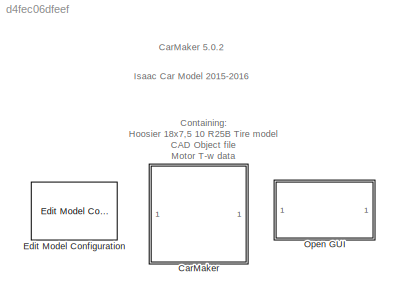
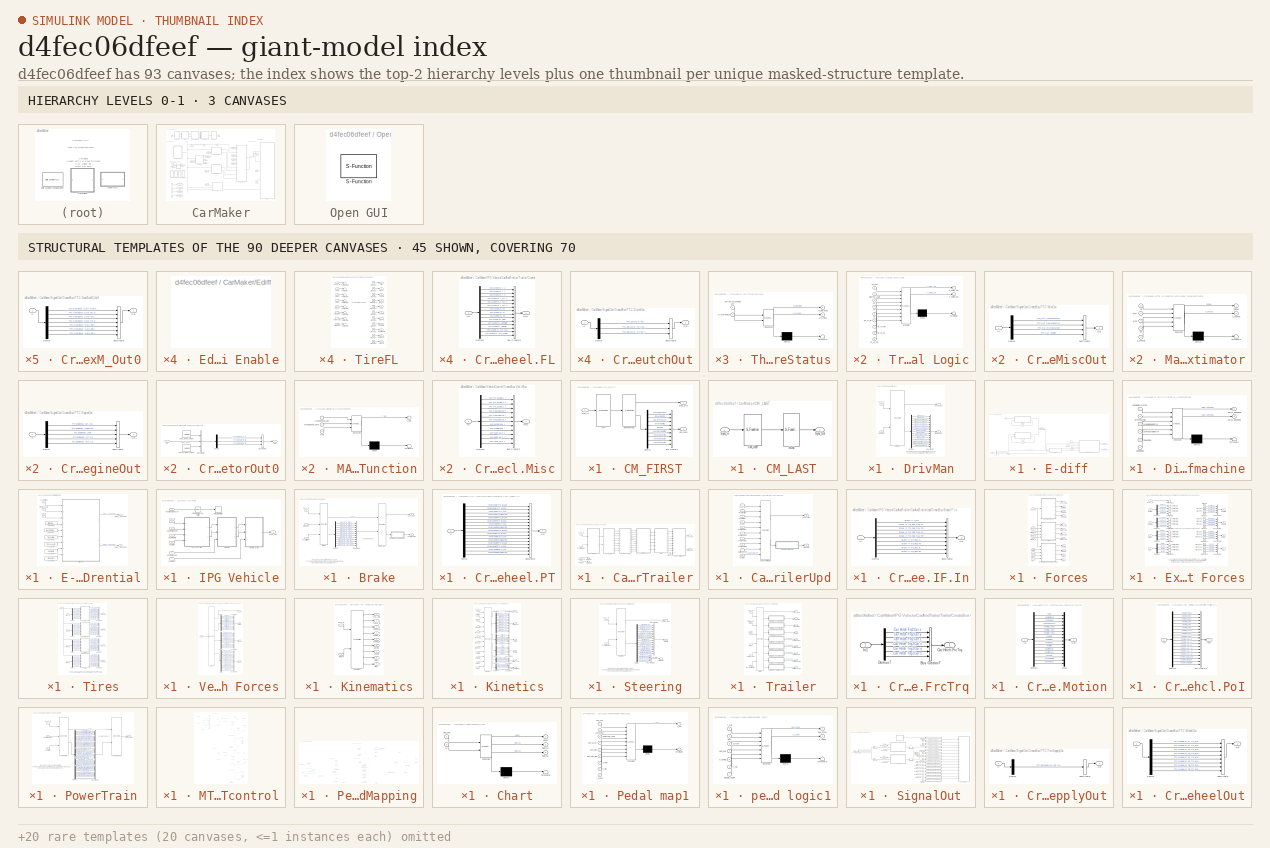
[diagram: thumbnail index - top-2 hierarchy levels (3 canvases) + 45 structural-template representatives of the remaining 90 canvases]
MODEL slx_d4fec06dfeef
KIND model
CONFIG AbsTol = auto
CONFIG FixedStep = 0.001
CONFIG MaxStep = auto
CONFIG MinStep = auto
CONFIG RelTol = 1e-3
CONFIG SampleTimeConstraint = Unconstrained
CONFIG Solver = ode3
CONFIG SolverMode = Auto
CONFIG SolverName = ode3
CONFIG StartTime = 0.0
CONFIG StopTime = inf
BLOCK [SubSystem] CarMaker
  Ports = []
  RequestExecContextInheritance = off
  TreatAsAtomicUnit = on
BLOCK [Abs] CarMaker/Abs
  SaturateOnIntegerOverflow = off
BLOCK [BusSelector] CarMaker/Bus Selector1
  OutputSignals = SensorBus.Read_Steering_angle_rad
  Ports = [1, 1]
BLOCK [SubSystem] CarMaker/CM_FIRST
  Ports = [1, 2]
  RequestExecContextInheritance = off
BLOCK [BusCreator] CarMaker/CM_FIRST/Bus Creator1
  DisplayOption = bar
  Inputs = 9
  Ports = [9, 1]
BLOCK [Demux] CarMaker/CM_FIRST/Demux
  Outputs = 9
  Ports = [1, 9]
BLOCK [Outport] CarMaker/CM_FIRST/Env.Misc
  IconDisplay = Port number
  Port = 2
BLOCK [S-Function] CarMaker/CM_FIRST/Environment
  FunctionName = CM_Sfun
  Parameters = 'Environment'
  Ports = [1, 2]
BLOCK [S-Function] CarMaker/CM_FIRST/IoIn
  FunctionName = CM_Sfun
  Parameters = 'IoIn'
  Ports = [1, 1]
BLOCK [Inport] CarMaker/CM_FIRST/Sync_In
  IconDisplay = Port number
BLOCK [Outport] CarMaker/CM_FIRST/Sync_Out
  IconDisplay = Port number
BLOCK [SubSystem] CarMaker/CM_LAST
  Ports = [1, 1]
  RequestExecContextInheritance = off
BLOCK [S-Function] CarMaker/CM_LAST/CM_User
  FunctionName = CM_Sfun
  Parameters = 'CM_User'
  Ports = [1, 1]
BLOCK [S-Function] CarMaker/CM_LAST/IoOut
  FunctionName = CM_Sfun
  Parameters = 'IoOut'
  Ports = [1, 1]
BLOCK [Inport] CarMaker/CM_LAST/Sync_In
  IconDisplay = Port number
BLOCK [Outport] CarMaker/CM_LAST/Sync_Out
  IconDisplay = Port number
BLOCK [Constant] CarMaker/Constant
  Value = 1500
BLOCK [Constant] CarMaker/Constant1
  Value = 1500
BLOCK [SubSystem] CarMaker/DrivMan
  Ports = [2, 2]
  RequestExecContextInheritance = off
BLOCK [BusCreator] CarMaker/DrivMan/BusCreator
  Inputs = 17
  Ports = [17, 1]
BLOCK [Demux] CarMaker/DrivMan/Demux
  Outputs = 17
  Ports = [1, 17]
BLOCK [S-Function] CarMaker/DrivMan/DrivMan
  FunctionName = CM_Sfun
  Parameters = 'DrivMan'
  Ports = [2, 2]
BLOCK [Outport] CarMaker/DrivMan/DrivMan.Out
  IconDisplay = Port number
  Port = 2
BLOCK [Inport] CarMaker/DrivMan/Env.Misc
  IconDisplay = Port number
  Port = 2
BLOCK [Inport] CarMaker/DrivMan/Sync_In
  IconDisplay = Port number
BLOCK [Outport] CarMaker/DrivMan/Sync_Out
  IconDisplay = Port number
BLOCK [SubSystem] CarMaker/E-diff
  Ports = [2, 2]
  RequestExecContextInheritance = off
BLOCK [BusSelector] CarMaker/E-diff/Bus Selector1
  OutputSignals = Vehicle_velocity_mps,SensorBus.Read_Steering_angle_rad
  Ports = [1, 2]
BLOCK [Constant] CarMaker/E-diff/Constant
BLOCK [Constant] CarMaker/E-diff/Constant1
  Value = 0
BLOCK [Constant] CarMaker/E-diff/Constant2
  Value = 0
BLOCK [Outport] CarMaker/E-diff/DMC1_SpeedRq
  IconDisplay = Port number
BLOCK [Outport] CarMaker/E-diff/DMC2_SpeedRq
  IconDisplay = Port number
  Port = 2
BLOCK [SubSystem] CarMaker/E-diff/Differential_Statemachine
  ErrorFcn = Stateflow.Translate.translate
  PermitHierarchicalResolution = ExplicitOnly
  Ports = [6, 2]
  RequestExecContextInheritance = off
  SFBlockType = Chart
  TreatAsAtomicUnit = on
BLOCK [Demux] CarMaker/E-diff/Differential_Statemachine/ Demux 
  Outputs = 1
  Ports = [1, 1]
BLOCK [S-Function] CarMaker/E-diff/Differential_Statemachine/ SFunction 
  EnableBusSupport = on
  FunctionName = sf_sfun
  PortCounts = [6 3]
  Ports = [6, 3]
  Tag = Stateflow S-Function generic_IsaacV3 14
BLOCK [Terminator] CarMaker/E-diff/Differential_Statemachine/ Terminator 
BLOCK [Outport] CarMaker/E-diff/Differential_Statemachine/DMC1_SpeedRq
  IconDisplay = Port number
BLOCK [Outport] CarMaker/E-diff/Differential_Statemachine/DMC2_SpeedRq
  IconDisplay = Port number
  Port = 2
BLOCK [Inport] CarMaker/E-diff/Differential_Statemachine/EnableDifferential
  IconDisplay = Port number
BLOCK [Inport] CarMaker/E-diff/Differential_Statemachine/SpeedRq1
  IconDisplay = Port number
  Port = 5
BLOCK [Inport] CarMaker/E-diff/Differential_Statemachine/SpeedRq2
  IconDisplay = Port number
  Port = 6
BLOCK [Inport] CarMaker/E-diff/Differential_Statemachine/SteeringAngle
  IconDisplay = Port number
  Port = 2
BLOCK [Inport] CarMaker/E-diff/Differential_Statemachine/SteeringAngleError
  IconDisplay = Port number
  Port = 4
BLOCK [Inport] CarMaker/E-diff/Differential_Statemachine/WheelSpeedError
  IconDisplay = Port number
  Port = 3
BLOCK [SubSystem] CarMaker/E-diff/E-Differential
  Ports = [3, 2]
  RequestExecContextInheritance = off
BLOCK [Inport] CarMaker/E-diff/E-Differential/Accelerating
  IconDisplay = Port number
BLOCK [Constant] CarMaker/E-diff/E-Differential/Constant
  Value = MaxSteeringAngle
BLOCK [Constant] CarMaker/E-diff/E-Differential/Constant1
  Value = TrackWidth
BLOCK [Constant] CarMaker/E-diff/E-Differential/Constant2
  Value = DifferentialFactor
BLOCK [Constant] CarMaker/E-diff/E-Differential/Constant3
  Value = TrackLength
BLOCK [Constant] CarMaker/E-diff/E-Differential/Constant4
  Value = GearRatio
BLOCK [Constant] CarMaker/E-diff/E-Differential/Constant5
  Value = TireRadius
BLOCK [Outport] CarMaker/E-diff/E-Differential/DMC1_SpeedRq
  IconDisplay = Port number
BLOCK [Outport] CarMaker/E-diff/E-Differential/DMC2_SpeedRq
  IconDisplay = Port number
  Port = 2
BLOCK [SubSystem] CarMaker/E-diff/E-Differential/Differential
  ErrorFcn = Stateflow.Translate.translate
  PermitHierarchicalResolution = ExplicitOnly
  Ports = [9, 2]
  RequestExecContextInheritance = off
  SFBlockType = MATLAB Function
  TreatAsAtomicUnit = on
BLOCK [Demux] CarMaker/E-diff/E-Differential/Differential/ Demux 
  Outputs = 1
  Ports = [1, 1]
BLOCK [S-Function] CarMaker/E-diff/E-Differential/Differential/ SFunction 
  EnableBusSupport = on
  FunctionName = sf_sfun
  PortCounts = [9 3]
  Ports = [9, 3]
  Tag = Stateflow S-Function generic_IsaacV3 15
BLOCK [Terminator] CarMaker/E-diff/E-Differential/Differential/ Terminator 
BLOCK [Inport] CarMaker/E-diff/E-Differential/Differential/Accelerating
  IconDisplay = Port number
BLOCK [Inport] CarMaker/E-diff/E-Differential/Differential/DifferentialFactor
  IconDisplay = Port number
  Port = 4
BLOCK [Inport] CarMaker/E-diff/E-Differential/Differential/GearRatio
  IconDisplay = Port number
  Port = 8
BLOCK [Outport] CarMaker/E-diff/E-Differential/Differential/MaxSpeedLeft_rpm
  IconDisplay = Port number
  Port = 2
BLOCK [Outport] CarMaker/E-diff/E-Differential/Differential/MaxSpeedRight_rpm
  IconDisplay = Port number
BLOCK [Inport] CarMaker/E-diff/E-Differential/Differential/MaxSteeringAngle
  IconDisplay = Port number
  Port = 5
BLOCK [Inport] CarMaker/E-diff/E-Differential/Differential/SteeringAngle
  IconDisplay = Port number
  Port = 2
BLOCK [Inport] CarMaker/E-diff/E-Differential/Differential/TireRadius
  IconDisplay = Port number
  Port = 9
BLOCK [Inport] CarMaker/E-diff/E-Differential/Differential/TrackLength
  IconDisplay = Port number
  Port = 7
BLOCK [Inport] CarMaker/E-diff/E-Differential/Differential/TrackWidth
  IconDisplay = Port number
  Port = 6
BLOCK [Inport] CarMaker/E-diff/E-Differential/Differential/Velocity
  IconDisplay = Port number
  Port = 3
BLOCK [Inport] CarMaker/E-diff/E-Differential/SteeringAngle
  IconDisplay = Port number
  Port = 3
BLOCK [Inport] CarMaker/E-diff/E-Differential/Velocity
  IconDisplay = Port number
  Port = 2
BLOCK [Gain] CarMaker/E-diff/Gain
  Gain = 180/pi
  OutDataTypeStr = Inherit: Inherit via internal rule
  ParamDataTypeStr = Inherit: Inherit via internal rule
  SaturateOnIntegerOverflow = off
BLOCK [Logic] CarMaker/E-diff/Logical Operator1
  AllPortsSameDT = off
  Operator = OR
  OutDataTypeStr = boolean
  Ports = [2, 1]
BLOCK [Memory] CarMaker/E-diff/Memory
  InheritSampleTime = on
  X0 = zeros(10,1)
BLOCK [Memory] CarMaker/E-diff/Memory1
  InheritSampleTime = on
  X0 = zeros(10,1)
BLOCK [Inport] CarMaker/E-diff/Sensorbus
  IconDisplay = Port number
  Port = 2
BLOCK [SubSystem] CarMaker/E-diff/ThrottleStatus
  ErrorFcn = Stateflow.Translate.translate
  PermitHierarchicalResolution = ExplicitOnly
  Ports = [2, 2]
  RequestExecContextInheritance = off
  SFBlockType = MATLAB Function
  TreatAsAtomicUnit = on
BLOCK [Demux] CarMaker/E-diff/ThrottleStatus/ Demux 
  Outputs = 1
  Ports = [1, 1]
BLOCK [S-Function] CarMaker/E-diff/ThrottleStatus/ SFunction 
  EnableBusSupport = on
  FunctionName = sf_sfun
  PortCounts = [2 3]
  Ports = [2, 3]
  Tag = Stateflow S-Function generic_IsaacV3 10
BLOCK [Terminator] CarMaker/E-diff/ThrottleStatus/ Terminator 
BLOCK [Outport] CarMaker/E-diff/ThrottleStatus/Accelerating
  IconDisplay = Port number
BLOCK [Outport] CarMaker/E-diff/ThrottleStatus/ArrayNext
  IconDisplay = Port number
  Port = 2
BLOCK [Inport] CarMaker/E-diff/ThrottleStatus/ArrayPrevious
  IconDisplay = Port number
  Port = 2
BLOCK [Inport] CarMaker/E-diff/ThrottleStatus/CurrentTorqueRequest
  IconDisplay = Port number
BLOCK [Inport] CarMaker/E-diff/Trequest
  IconDisplay = Port number
BLOCK [SubSystem] CarMaker/E-diff/VelocityStatus
  ErrorFcn = Stateflow.Translate.translate
  PermitHierarchicalResolution = ExplicitOnly
  Ports = [2, 2]
  RequestExecContextInheritance = off
  SFBlockType = MATLAB Function
  TreatAsAtomicUnit = on
BLOCK [Demux] CarMaker/E-diff/VelocityStatus/ Demux 
  Outputs = 1
  Ports = [1, 1]
BLOCK [S-Function] CarMaker/E-diff/VelocityStatus/ SFunction 
  EnableBusSupport = on
  FunctionName = sf_sfun
  PortCounts = [2 3]
  Ports = [2, 3]
  Tag = Stateflow S-Function generic_IsaacV3 16
BLOCK [Terminator] CarMaker/E-diff/VelocityStatus/ Terminator 
BLOCK [Outport] CarMaker/E-diff/VelocityStatus/Accelerating
  IconDisplay = Port number
BLOCK [Outport] CarMaker/E-diff/VelocityStatus/ArrayNext
  IconDisplay = Port number
  Port = 2
BLOCK [Inport] CarMaker/E-diff/VelocityStatus/ArrayPrevious
  IconDisplay = Port number
  Port = 2
BLOCK [Inport] CarMaker/E-diff/VelocityStatus/CurrentVelocity
  IconDisplay = Port number
BLOCK [Constant] CarMaker/Ediff
  Value = 0
BLOCK [SubSystem] CarMaker/Ediff Enable
  DialogController = hmiCreateDDGDialog
  IsWebBlock = on
  MaskHideContents = on
  Ports = []
  RequestExecContextInheritance = off
BLOCK [From] CarMaker/From
  GotoTag = GasIn_Nm
BLOCK [From] CarMaker/From1
  GotoTag = GasIn_Nm
BLOCK [From] CarMaker/From2
  GotoTag = Torque_req_Nm
BLOCK [From] CarMaker/From3
  GotoTag = GasIn_Nm
BLOCK [From] CarMaker/From4
  GotoTag = EnableLC
BLOCK [From] CarMaker/From5
  GotoTag = Torque_req_Nm
BLOCK [From] CarMaker/From6
  GotoTag = EnableTV
BLOCK [From] CarMaker/From7
  GotoTag = EnableLC
BLOCK [From] CarMaker/From8
  GotoTag = EnableSC
BLOCK [Gain] CarMaker/Gain
  Gain = 360/(2*pi)
  OutDataTypeStr = Inherit: Inherit via internal rule
  ParamDataTypeStr = Inherit: Inherit via internal rule
  SaturateOnIntegerOverflow = off
BLOCK [ManualSwitch] CarMaker/Gas selection
  CurrentSetting = 0
BLOCK [Goto] CarMaker/Goto
  GotoTag = GasIn_Nm
BLOCK [Goto] CarMaker/Goto1
  GotoTag = Torque_req_Nm
BLOCK [Goto] CarMaker/Goto2
  GotoTag = EnableLC
BLOCK [Goto] CarMaker/Goto3
  GotoTag = EnableTV
BLOCK [Goto] CarMaker/Goto4
  GotoTag = EnableSC
BLOCK [Goto] CarMaker/Goto5
  GotoTag = EnableEdiff
BLOCK [Ground] CarMaker/Ground
BLOCK [SubSystem] CarMaker/IPG Vehicle
  Ports = [7, 1]
  RequestExecContextInheritance = off
  TreatAsAtomicUnit = on
BLOCK [SubSystem] CarMaker/IPG Vehicle/Brake
  Ports = [3, 2]
  RequestExecContextInheritance = off
BLOCK [S-Function] CarMaker/IPG Vehicle/Brake/Brake
  FunctionName = CM_Sfun
  Parameters = 'Brake'
  Ports = [3, 2]
BLOCK [Inport] CarMaker/IPG Vehicle/Brake/Brake.IF.In
  IconDisplay = Port number
  Port = 2
BLOCK [S-Function] CarMaker/IPG Vehicle/Brake/BrakeUpd
  FunctionName = CM_Sfun
  Parameters = 'BrakeUpd'
  Ports = [2, 2]
BLOCK [BusCreator] CarMaker/IPG Vehicle/Brake/BusCreator
  Inputs = 12
  Ports = [12, 1]
BLOCK [SubSystem] CarMaker/IPG Vehicle/Brake/CreateBus Vhcl.Wheel.PT
  Ports = [1, 1]
  RequestExecContextInheritance = off
BLOCK [BusCreator] CarMaker/IPG Vehicle/Brake/CreateBus Vhcl.Wheel.PT/BusCreator
  Inputs = 16
  Ports = [16, 1]
BLOCK [Demux] CarMaker/IPG Vehicle/Brake/CreateBus Vhcl.Wheel.PT/Demux
  Outputs = 16
  Ports = [1, 16]
BLOCK [Inport] CarMaker/IPG Vehicle/Brake/CreateBus Vhcl.Wheel.PT/In
  IconDisplay = Port number
BLOCK [Outport] CarMaker/IPG Vehicle/Brake/CreateBus Vhcl.Wheel.PT/Out
  IconDisplay = Port number
BLOCK [Demux] CarMaker/IPG Vehicle/Brake/Demux
  Outputs = 12
  Ports = [1, 12]
BLOCK [Inport] CarMaker/IPG Vehicle/Brake/Sync_In
  IconDisplay = Port number
BLOCK [Outport] CarMaker/IPG Vehicle/Brake/Sync_Out
  IconDisplay = Port number
BLOCK [Outport] CarMaker/IPG Vehicle/Brake/Vhcl.Wheel.PT
  IconDisplay = Port number
  Port = 2
BLOCK [Inport] CarMaker/IPG Vehicle/Brake/VhclCtrl.Brake
  IconDisplay = Port number
  Port = 3
BLOCK [SubSystem] CarMaker/IPG Vehicle/CarAndTrailer
  Ports = [4, 2]
  RequestExecContextInheritance = off
BLOCK [Outport] CarMaker/IPG Vehicle/CarAndTrailer/Brake.IF.In
  IconDisplay = Port number
  Port = 2
BLOCK [SubSystem] CarMaker/IPG Vehicle/CarAndTrailer/CarAndTrailerUpd
  Ports = [10, 2]
  RequestExecContextInheritance = off
BLOCK [Outport] CarMaker/IPG Vehicle/CarAndTrailer/CarAndTrailerUpd/Brake.IF.In
  IconDisplay = Port number
  Port = 2
BLOCK [Inport] CarMaker/IPG Vehicle/CarAndTrailer/CarAndTrailerUpd/Car.Hitch.FrcTrq
  IconDisplay = Port number
  Port = 9
BLOCK [S-Function] CarMaker/IPG Vehicle/CarAndTrailer/CarAndTrailerUpd/CarAndTrailerUpd
  FunctionName = CM_Sfun
  Parameters = 'CarAndTrUpd'
  Ports = [10, 2]
BLOCK [SubSystem] CarMaker/IPG Vehicle/CarAndTrailer/CarAndTrailerUpd/CreateBus Brake.IF.In
  Ports = [1, 1]
  RequestExecContextInheritance = off
BLOCK [BusCreator] CarMaker/IPG Vehicle/CarAndTrailer/CarAndTrailerUpd/CreateBus Brake.IF.In/BusCreator
  Inputs = 9
  Ports = [9, 1]
BLOCK [Demux] CarMaker/IPG Vehicle/CarAndTrailer/CarAndTrailerUpd/CreateBus Brake.IF.In/Demux
  Outputs = 9
  Ports = [1, 9]
BLOCK [Inport] CarMaker/IPG Vehicle/CarAndTrailer/CarAndTrailerUpd/CreateBus Brake.IF.In/In
  IconDisplay = Port number
BLOCK [Outport] CarMaker/IPG Vehicle/CarAndTrailer/CarAndTrailerUpd/CreateBus Brake.IF.In/Out
  IconDisplay = Port number
BLOCK [Inport] CarMaker/IPG Vehicle/CarAndTrailer/CarAndTrailerUpd/Sync_In
  IconDisplay = Port number
BLOCK [Outport] CarMaker/IPG Vehicle/CarAndTrailer/CarAndTrailerUpd/Sync_Out
  IconDisplay = Port number
BLOCK [Inport] CarMaker/IPG Vehicle/CarAndTrailer/CarAndTrailerUpd/Vhcl.Fr1A
  IconDisplay = Port number
  Port = 10
BLOCK [Inport] CarMaker/IPG Vehicle/CarAndTrailer/CarAndTrailerUpd/Vhcl.Motion
  IconDisplay = Port number
  Port = 3
BLOCK [Inport] CarMaker/IPG Vehicle/CarAndTrailer/CarAndTrailerUpd/Vhcl.PoI
  IconDisplay = Port number
  Port = 4
BLOCK [Inport] CarMaker/IPG Vehicle/CarAndTrailer/CarAndTrailerUpd/Vhcl.Steering
  IconDisplay = Port number
  Port = 2
BLOCK [Inport] CarMaker/IPG Vehicle/CarAndTrailer/CarAndTrailerUpd/Vhcl.Wheel.FL
  IconDisplay = Port number
  Port = 5
BLOCK [Inport] CarMaker/IPG Vehicle/CarAndTrailer/CarAndTrailerUpd/Vhcl.Wheel.FR
  IconDisplay = Port number
  Port = 6
BLOCK [Inport] CarMaker/IPG Vehicle/CarAndTrailer/CarAndTrailerUpd/Vhcl.Wheel.RL
  IconDisplay = Port number
  Port = 7
BLOCK [Inport] CarMaker/IPG Vehicle/CarAndTrailer/CarAndTrailerUpd/Vhcl.Wheel.RR
  IconDisplay = Port number
  Port = 8
BLOCK [SubSystem] CarMaker/IPG Vehicle/CarAndTrailer/Forces
  Ports = [9, 12]
  RequestExecContextInheritance = off
BLOCK [Outport] CarMaker/IPG Vehicle/CarAndTrailer/Forces/Car.Aero
  IconDisplay = Port number
  Port = 3
BLOCK [Outport] CarMaker/IPG Vehicle/CarAndTrailer/Forces/Car.Load
  IconDisplay = Port number
  Port = 4
BLOCK [Outport] CarMaker/IPG Vehicle/CarAndTrailer/Forces/Car.Virtual
  IconDisplay = Port number
  Port = 2
BLOCK [SubSystem] CarMaker/IPG Vehicle/CarAndTrailer/Forces/External Suspension Forces
  Ports = [5, 4]
  RequestExecContextInheritance = off
BLOCK [BusCreator] CarMaker/IPG Vehicle/CarAndTrailer/Forces/External Suspension Forces/Bus Creator1
  DisplayOption = bar
  Ports = [4, 1]
BLOCK [BusCreator] CarMaker/IPG Vehicle/CarAndTrailer/Forces/External Suspension Forces/Bus Creator2
  DisplayOption = bar
  Ports = [4, 1]
BLOCK [BusCreator] CarMaker/IPG Vehicle/CarAndTrailer/Forces/External Suspension Forces/Bus Creator3
  DisplayOption = bar
  Ports = [4, 1]
BLOCK [BusCreator] CarMaker/IPG Vehicle/CarAndTrailer/Forces/External Suspension Forces/Bus Creator4
  DisplayOption = bar
  Ports = [4, 1]
BLOCK [Demux] CarMaker/IPG Vehicle/CarAndTrailer/Forces/External Suspension Forces/Demux1
  Ports = [1, 4]
BLOCK [Demux] CarMaker/IPG Vehicle/CarAndTrailer/Forces/External Suspension Forces/Demux2
  Ports = [1, 4]
BLOCK [Demux] CarMaker/IPG Vehicle/CarAndTrailer/Forces/External Suspension Forces/Demux3
  Ports = [1, 4]
BLOCK [Demux] CarMaker/IPG Vehicle/CarAndTrailer/Forces/External Suspension Forces/Demux4
  Ports = [1, 4]
BLOCK [Outport] CarMaker/IPG Vehicle/CarAndTrailer/Forces/External Suspension Forces/FBuf
  IconDisplay = Port number
  Port = 4
BLOCK [Outport] CarMaker/IPG Vehicle/CarAndTrailer/Forces/External Suspension Forces/FDamp
  IconDisplay = Port number
  Port = 2
BLOCK [Outport] CarMaker/IPG Vehicle/CarAndTrailer/Forces/External Suspension Forces/FSpring
  IconDisplay = Port number
BLOCK [Outport] CarMaker/IPG Vehicle/CarAndTrailer/Forces/External Suspension Forces/FStabi
  IconDisplay = Port number
  Port = 3
BLOCK [Ground] CarMaker/IPG Vehicle/CarAndTrailer/Forces/External Suspension Forces/Ground
BLOCK [Ground] CarMaker/IPG Vehicle/CarAndTrailer/Forces/External Suspension Forces/Ground1
BLOCK [Ground] CarMaker/IPG Vehicle/CarAndTrailer/Forces/External Suspension Forces/Ground10
BLOCK [Ground] CarMaker/IPG Vehicle/CarAndTrailer/Forces/External Suspension Forces/Ground11
BLOCK [Ground] CarMaker/IPG Vehicle/CarAndTrailer/Forces/External Suspension Forces/Ground12
BLOCK [Ground] CarMaker/IPG Vehicle/CarAndTrailer/Forces/External Suspension Forces/Ground13
BLOCK [Ground] CarMaker/IPG Vehicle/CarAndTrailer/Forces/External Suspension Forces/Ground14
BLOCK [Ground] CarMaker/IPG Vehicle/CarAndTrailer/Forces/External Suspension Forces/Ground15
BLOCK [Ground] CarMaker/IPG Vehicle/CarAndTrailer/Forces/External Suspension Forces/Ground2
BLOCK [Ground] CarMaker/IPG Vehicle/CarAndTrailer/Forces/External Suspension Forces/Ground3
BLOCK [Ground] CarMaker/IPG Vehicle/CarAndTrailer/Forces/External Suspension Forces/Ground4
BLOCK [Ground] CarMaker/IPG Vehicle/CarAndTrailer/Forces/External Suspension Forces/Ground5
BLOCK [Ground] CarMaker/IPG Vehicle/CarAndTrailer/Forces/External Suspension Forces/Ground6
BLOCK [Ground] CarMaker/IPG Vehicle/CarAndTrailer/Forces/External Suspension Forces/Ground7
BLOCK [Ground] CarMaker/IPG Vehicle/CarAndTrailer/Forces/External Suspension Forces/Ground8
BLOCK [Ground] CarMaker/IPG Vehicle/CarAndTrailer/Forces/External Suspension Forces/Ground9
BLOCK [Inport] CarMaker/IPG Vehicle/CarAndTrailer/Forces/External Suspension Forces/Sync_In
  IconDisplay = Port number
BLOCK [Terminator] CarMaker/IPG Vehicle/CarAndTrailer/Forces/External Suspension Forces/Terminator
BLOCK [Terminator] CarMaker/IPG Vehicle/CarAndTrailer/Forces/External Suspension Forces/Terminator1
BLOCK [Terminator] CarMaker/IPG Vehicle/CarAndTrailer/Forces/External Suspension Forces/Terminator10
BLOCK [Terminator] CarMaker/IPG Vehicle/CarAndTrailer/Forces/External Suspension Forces/Terminator11
BLOCK [Terminator] CarMaker/IPG Vehicle/CarAndTrailer/Forces/External Suspension Forces/Terminator12
BLOCK [Terminator] CarMaker/IPG Vehicle/CarAndTrailer/Forces/External Suspension Forces/Terminator13
BLOCK [Terminator] CarMaker/IPG Vehicle/CarAndTrailer/Forces/External Suspension Forces/Terminator14
BLOCK [Terminator] CarMaker/IPG Vehicle/CarAndTrailer/Forces/External Suspension Forces/Terminator15
BLOCK [Terminator] CarMaker/IPG Vehicle/CarAndTrailer/Forces/External Suspension Forces/Terminator16
BLOCK [Terminator] CarMaker/IPG Vehicle/CarAndTrailer/Forces/External Suspension Forces/Terminator2
BLOCK [Terminator] CarMaker/IPG Vehicle/CarAndTrailer/Forces/External Suspension Forces/Terminator3
BLOCK [Terminator] CarMaker/IPG Vehicle/CarAndTrailer/Forces/External Suspension Forces/Terminator4
BLOCK [Terminator] CarMaker/IPG Vehicle/CarAndTrailer/Forces/External Suspension Forces/Terminator5
BLOCK [Terminator] CarMaker/IPG Vehicle/CarAndTrailer/Forces/External Suspension Forces/Terminator6
BLOCK [Terminator] CarMaker/IPG Vehicle/CarAndTrailer/Forces/External Suspension Forces/Terminator7
BLOCK [Terminator] CarMaker/IPG Vehicle/CarAndTrailer/Forces/External Suspension Forces/Terminator8
BLOCK [Terminator] CarMaker/IPG Vehicle/CarAndTrailer/Forces/External Suspension Forces/Terminator9
BLOCK [Inport] CarMaker/IPG Vehicle/CarAndTrailer/Forces/External Suspension Forces/lBuf
  IconDisplay = Port number
  Port = 5
BLOCK [Inport] CarMaker/IPG Vehicle/CarAndTrailer/Forces/External Suspension Forces/lSpring
  IconDisplay = Port number
  Port = 2
BLOCK [Inport] CarMaker/IPG Vehicle/CarAndTrailer/Forces/External Suspension Forces/lStabi
  IconDisplay = Port number
  Port = 4
BLOCK [Inport] CarMaker/IPG Vehicle/CarAndTrailer/Forces/External Suspension Forces/vDamp
  IconDisplay = Port number
  Port = 3
BLOCK [Outport] CarMaker/IPG Vehicle/CarAndTrailer/Forces/FBuf
  IconDisplay = Port number
  Port = 12
BLOCK [Outport] CarMaker/IPG Vehicle/CarAndTrailer/Forces/FDamp
  IconDisplay = Port number
  Port = 10
BLOCK [Outport] CarMaker/IPG Vehicle/CarAndTrailer/Forces/FSpring
  IconDisplay = Port number
  Port = 9
BLOCK [Outport] CarMaker/IPG Vehicle/CarAndTrailer/Forces/FStabi
  IconDisplay = Port number
  Port = 11
BLOCK [Inport] CarMaker/IPG Vehicle/CarAndTrailer/Forces/Sync_In
  IconDisplay = Port number
BLOCK [Outport] CarMaker/IPG Vehicle/CarAndTrailer/Forces/Sync_Out
  IconDisplay = Port number
BLOCK [Inport] CarMaker/IPG Vehicle/CarAndTrailer/Forces/TireFL_In
  IconDisplay = Port number
  Port = 2
BLOCK [Outport] CarMaker/IPG Vehicle/CarAndTrailer/Forces/TireFL_Out
  IconDisplay = Port number
  Port = 5
BLOCK [Inport] CarMaker/IPG Vehicle/CarAndTrailer/Forces/TireFR_In
  IconDisplay = Port number
  Port = 3
BLOCK [Outport] CarMaker/IPG Vehicle/CarAndTrailer/Forces/TireFR_Out
  IconDisplay = Port number
  Port = 6
BLOCK [Inport] CarMaker/IPG Vehicle/CarAndTrailer/Forces/TireRL_In
  IconDisplay = Port number
  Port = 4
BLOCK [Outport] CarMaker/IPG Vehicle/CarAndTrailer/Forces/TireRL_Out
  IconDisplay = Port number
  Port = 7
BLOCK [Inport] CarMaker/IPG Vehicle/CarAndTrailer/Forces/TireRR_In
  IconDisplay = Port number
  Port = 5
BLOCK [Outport] CarMaker/IPG Vehicle/CarAndTrailer/Forces/TireRR_Out
  IconDisplay = Port number
  Port = 8
BLOCK [SubSystem] CarMaker/IPG Vehicle/CarAndTrailer/Forces/Tires
  Ports = [5, 4]
  RequestExecContextInheritance = off
BLOCK [BusCreator] CarMaker/IPG Vehicle/CarAndTrailer/Forces/Tires/Bus Creator1
  DisplayOption = bar
  Inputs = 11
  Ports = [11, 1]
BLOCK [BusCreator] CarMaker/IPG Vehicle/CarAndTrailer/Forces/Tires/Bus Creator2
  DisplayOption = bar
  Inputs = 11
  Ports = [11, 1]
BLOCK [BusCreator] CarMaker/IPG Vehicle/CarAndTrailer/Forces/Tires/Bus Creator3
  DisplayOption = bar
  Inputs = 11
  Ports = [11, 1]
BLOCK [BusCreator] CarMaker/IPG Vehicle/CarAndTrailer/Forces/Tires/Bus Creator4
  DisplayOption = bar
  Inputs = 11
  Ports = [11, 1]
BLOCK [Demux] CarMaker/IPG Vehicle/CarAndTrailer/Forces/Tires/Demux1
  Outputs = 7
  Ports = [1, 7]
BLOCK [Demux] CarMaker/IPG Vehicle/CarAndTrailer/Forces/Tires/Demux2
  Outputs = 7
  Ports = [1, 7]
BLOCK [Demux] CarMaker/IPG Vehicle/CarAndTrailer/Forces/Tires/Demux3
  Outputs = 7
  Ports = [1, 7]
BLOCK [Demux] CarMaker/IPG Vehicle/CarAndTrailer/Forces/Tires/Demux8
  Outputs = 7
  Ports = [1, 7]
BLOCK [Inport] CarMaker/IPG Vehicle/CarAndTrailer/Forces/Tires/Sync_In
  IconDisplay = Port number
BLOCK [SubSystem] CarMaker/IPG Vehicle/CarAndTrailer/Forces/Tires/TireFL
  Ports = [8, 11]
  RequestExecContextInheritance = off
BLOCK [Outport] CarMaker/IPG Vehicle/CarAndTrailer/Forces/Tires/TireFL/AlignTrq
  IconDisplay = Port number
  Port = 11
BLOCK [Outport] CarMaker/IPG Vehicle/CarAndTrailer/Forces/Tires/TireFL/Alpha
  IconDisplay = Port number
  Port = 2
BLOCK [Ground] CarMaker/IPG Vehicle/CarAndTrailer/Forces/Tires/TireFL/Ground1
BLOCK [Ground] CarMaker/IPG Vehicle/CarAndTrailer/Forces/Tires/TireFL/Ground10
BLOCK [Ground] CarMaker/IPG Vehicle/CarAndTrailer/Forces/Tires/TireFL/Ground11
BLOCK [Ground] CarMaker/IPG Vehicle/CarAndTrailer/Forces/Tires/TireFL/Ground2
BLOCK [Ground] CarMaker/IPG Vehicle/CarAndTrailer/Forces/Tires/TireFL/Ground3
BLOCK [Ground] CarMaker/IPG Vehicle/CarAndTrailer/Forces/Tires/TireFL/Ground4
BLOCK [Ground] CarMaker/IPG Vehicle/CarAndTrailer/Forces/Tires/TireFL/Ground5
BLOCK [Ground] CarMaker/IPG Vehicle/CarAndTrailer/Forces/Tires/TireFL/Ground6
BLOCK [Ground] CarMaker/IPG Vehicle/CarAndTrailer/Forces/Tires/TireFL/Ground7
BLOCK [Ground] CarMaker/IPG Vehicle/CarAndTrailer/Forces/Tires/TireFL/Ground8
BLOCK [Ground] CarMaker/IPG Vehicle/CarAndTrailer/Forces/Tires/TireFL/Ground9
BLOCK [Inport] CarMaker/IPG Vehicle/CarAndTrailer/Forces/Tires/TireFL/InclinAngle
  IconDisplay = Port number
  Port = 7
BLOCK [Inport] CarMaker/IPG Vehicle/CarAndTrailer/Forces/Tires/TireFL/Load
  IconDisplay = Port number
  Port = 2
BLOCK [Outport] CarMaker/IPG Vehicle/CarAndTrailer/Forces/Tires/TireFL/LoadFrc
  IconDisplay = Port number
  Port = 8
BLOCK [Outport] CarMaker/IPG Vehicle/CarAndTrailer/Forces/Tires/TireFL/LongFrc
  IconDisplay = Port number
  Port = 6
BLOCK [Outport] CarMaker/IPG Vehicle/CarAndTrailer/Forces/Tires/TireFL/OverturnTrq
  IconDisplay = Port number
  Port = 9
BLOCK [Inport] CarMaker/IPG Vehicle/CarAndTrailer/Forces/Tires/TireFL/Rim_rotv
  IconDisplay = Port number
  Port = 5
BLOCK [Inport] CarMaker/IPG Vehicle/CarAndTrailer/Forces/Tires/TireFL/Rim_turnv
  IconDisplay = Port number
  Port = 6
BLOCK [Outport] CarMaker/IPG Vehicle/CarAndTrailer/Forces/Tires/TireFL/RollResist
  IconDisplay = Port number
  Port = 10
BLOCK [Outport] CarMaker/IPG Vehicle/CarAndTrailer/Forces/Tires/TireFL/SideFrc
  IconDisplay = Port number
  Port = 7
BLOCK [Outport] CarMaker/IPG Vehicle/CarAndTrailer/Forces/Tires/TireFL/Slp
  IconDisplay = Port number
BLOCK [Inport] CarMaker/IPG Vehicle/CarAndTrailer/Forces/Tires/TireFL/Sync_In
  IconDisplay = Port number
BLOCK [Terminator] CarMaker/IPG Vehicle/CarAndTrailer/Forces/Tires/TireFL/Terminator
BLOCK [Terminator] CarMaker/IPG Vehicle/CarAndTrailer/Forces/Tires/TireFL/Terminator1
BLOCK [Terminator] CarMaker/IPG Vehicle/CarAndTrailer/Forces/Tires/TireFL/Terminator12
BLOCK [Terminator] CarMaker/IPG Vehicle/CarAndTrailer/Forces/Tires/TireFL/Terminator2
BLOCK [Terminator] CarMaker/IPG Vehicle/CarAndTrailer/Forces/Tires/TireFL/Terminator3
BLOCK [Terminator] CarMaker/IPG Vehicle/CarAndTrailer/Forces/Tires/TireFL/Terminator4
BLOCK [Terminator] CarMaker/IPG Vehicle/CarAndTrailer/Forces/Tires/TireFL/Terminator5
BLOCK [Terminator] CarMaker/IPG Vehicle/CarAndTrailer/Forces/Tires/TireFL/Terminator6
BLOCK [Outport] CarMaker/IPG Vehicle/CarAndTrailer/Forces/Tires/TireFL/TurnSlp
  IconDisplay = Port number
  Port = 3
BLOCK [Inport] CarMaker/IPG Vehicle/CarAndTrailer/Forces/Tires/TireFL/muRoad
  IconDisplay = Port number
  Port = 8
BLOCK [Outport] CarMaker/IPG Vehicle/CarAndTrailer/Forces/Tires/TireFL/rBelt_eff
  IconDisplay = Port number
  Port = 4
BLOCK [Outport] CarMaker/IPG Vehicle/CarAndTrailer/Forces/Tires/TireFL/vBelt
  IconDisplay = Port number
  Port = 5
BLOCK [Inport] CarMaker/IPG Vehicle/CarAndTrailer/Forces/Tires/TireFL/vxtrans
  IconDisplay = Port number
  Port = 3
BLOCK [Inport] CarMaker/IPG Vehicle/CarAndTrailer/Forces/Tires/TireFL/vytrans
  IconDisplay = Port number
  Port = 4
BLOCK [Inport] CarMaker/IPG Vehicle/CarAndTrailer/Forces/Tires/TireFL_In
  IconDisplay = Port number
  Port = 5
BLOCK [Outport] CarMaker/IPG Vehicle/CarAndTrailer/Forces/Tires/TireFL_Out
  IconDisplay = Port number
  Port = 4
BLOCK [SubSystem] CarMaker/IPG Vehicle/CarAndTrailer/Forces/Tires/TireFR
  Ports = [8, 11]
  RequestExecContextInheritance = off
BLOCK [Outport] CarMaker/IPG Vehicle/CarAndTrailer/Forces/Tires/TireFR/AlignTrq
  IconDisplay = Port number
  Port = 11
BLOCK [Outport] CarMaker/IPG Vehicle/CarAndTrailer/Forces/Tires/TireFR/Alpha
  IconDisplay = Port number
  Port = 2
BLOCK [Ground] CarMaker/IPG Vehicle/CarAndTrailer/Forces/Tires/TireFR/Ground1
BLOCK [Ground] CarMaker/IPG Vehicle/CarAndTrailer/Forces/Tires/TireFR/Ground10
BLOCK [Ground] CarMaker/IPG Vehicle/CarAndTrailer/Forces/Tires/TireFR/Ground11
BLOCK [Ground] CarMaker/IPG Vehicle/CarAndTrailer/Forces/Tires/TireFR/Ground2
BLOCK [Ground] CarMaker/IPG Vehicle/CarAndTrailer/Forces/Tires/TireFR/Ground3
BLOCK [Ground] CarMaker/IPG Vehicle/CarAndTrailer/Forces/Tires/TireFR/Ground4
BLOCK [Ground] CarMaker/IPG Vehicle/CarAndTrailer/Forces/Tires/TireFR/Ground5
BLOCK [Ground] CarMaker/IPG Vehicle/CarAndTrailer/Forces/Tires/TireFR/Ground6
BLOCK [Ground] CarMaker/IPG Vehicle/CarAndTrailer/Forces/Tires/TireFR/Ground7
BLOCK [Ground] CarMaker/IPG Vehicle/CarAndTrailer/Forces/Tires/TireFR/Ground8
BLOCK [Ground] CarMaker/IPG Vehicle/CarAndTrailer/Forces/Tires/TireFR/Ground9
BLOCK [Inport] CarMaker/IPG Vehicle/CarAndTrailer/Forces/Tires/TireFR/InclinAngle
  IconDisplay = Port number
  Port = 7
BLOCK [Inport] CarMaker/IPG Vehicle/CarAndTrailer/Forces/Tires/TireFR/Load
  IconDisplay = Port number
  Port = 2
BLOCK [Outport] CarMaker/IPG Vehicle/CarAndTrailer/Forces/Tires/TireFR/LoadFrc
  IconDisplay = Port number
  Port = 8
BLOCK [Outport] CarMaker/IPG Vehicle/CarAndTrailer/Forces/Tires/TireFR/LongFrc
  IconDisplay = Port number
  Port = 6
BLOCK [Outport] CarMaker/IPG Vehicle/CarAndTrailer/Forces/Tires/TireFR/OverturnTrq
  IconDisplay = Port number
  Port = 9
BLOCK [Inport] CarMaker/IPG Vehicle/CarAndTrailer/Forces/Tires/TireFR/Rim_rotv
  IconDisplay = Port number
  Port = 5
BLOCK [Inport] CarMaker/IPG Vehicle/CarAndTrailer/Forces/Tires/TireFR/Rim_turnv
  IconDisplay = Port number
  Port = 6
BLOCK [Outport] CarMaker/IPG Vehicle/CarAndTrailer/Forces/Tires/TireFR/RollResist
  IconDisplay = Port number
  Port = 10
BLOCK [Outport] CarMaker/IPG Vehicle/CarAndTrailer/Forces/Tires/TireFR/SideFrc
  IconDisplay = Port number
  Port = 7
BLOCK [Outport] CarMaker/IPG Vehicle/CarAndTrailer/Forces/Tires/TireFR/Slp
  IconDisplay = Port number
BLOCK [Inport] CarMaker/IPG Vehicle/CarAndTrailer/Forces/Tires/TireFR/Sync_In
  IconDisplay = Port number
BLOCK [Terminator] CarMaker/IPG Vehicle/CarAndTrailer/Forces/Tires/TireFR/Terminator
BLOCK [Terminator] CarMaker/IPG Vehicle/CarAndTrailer/Forces/Tires/TireFR/Terminator1
BLOCK [Terminator] CarMaker/IPG Vehicle/CarAndTrailer/Forces/Tires/TireFR/Terminator12
BLOCK [Terminator] CarMaker/IPG Vehicle/CarAndTrailer/Forces/Tires/TireFR/Terminator2
BLOCK [Terminator] CarMaker/IPG Vehicle/CarAndTrailer/Forces/Tires/TireFR/Terminator3
BLOCK [Terminator] CarMaker/IPG Vehicle/CarAndTrailer/Forces/Tires/TireFR/Terminator4
BLOCK [Terminator] CarMaker/IPG Vehicle/CarAndTrailer/Forces/Tires/TireFR/Terminator5
BLOCK [Terminator] CarMaker/IPG Vehicle/CarAndTrailer/Forces/Tires/TireFR/Terminator6
BLOCK [Outport] CarMaker/IPG Vehicle/CarAndTrailer/Forces/Tires/TireFR/TurnSlp
  IconDisplay = Port number
  Port = 3
BLOCK [Inport] CarMaker/IPG Vehicle/CarAndTrailer/Forces/Tires/TireFR/muRoad
  IconDisplay = Port number
  Port = 8
BLOCK [Outport] CarMaker/IPG Vehicle/CarAndTrailer/Forces/Tires/TireFR/rBelt_eff
  IconDisplay = Port number
  Port = 4
BLOCK [Outport] CarMaker/IPG Vehicle/CarAndTrailer/Forces/Tires/TireFR/vBelt
  IconDisplay = Port number
  Port = 5
BLOCK [Inport] CarMaker/IPG Vehicle/CarAndTrailer/Forces/Tires/TireFR/vxtrans
  IconDisplay = Port number
  Port = 3
BLOCK [Inport] CarMaker/IPG Vehicle/CarAndTrailer/Forces/Tires/TireFR/vytrans
  IconDisplay = Port number
  Port = 4
BLOCK [Inport] CarMaker/IPG Vehicle/CarAndTrailer/Forces/Tires/TireFR_In
  IconDisplay = Port number
  Port = 2
BLOCK [Outport] CarMaker/IPG Vehicle/CarAndTrailer/Forces/Tires/TireFR_Out
  IconDisplay = Port number
BLOCK [SubSystem] CarMaker/IPG Vehicle/CarAndTrailer/Forces/Tires/TireRL
  Ports = [8, 11]
  RequestExecContextInheritance = off
BLOCK [Outport] CarMaker/IPG Vehicle/CarAndTrailer/Forces/Tires/TireRL/AlignTrq
  IconDisplay = Port number
  Port = 11
BLOCK [Outport] CarMaker/IPG Vehicle/CarAndTrailer/Forces/Tires/TireRL/Alpha
  IconDisplay = Port number
  Port = 2
BLOCK [Ground] CarMaker/IPG Vehicle/CarAndTrailer/Forces/Tires/TireRL/Ground1
BLOCK [Ground] CarMaker/IPG Vehicle/CarAndTrailer/Forces/Tires/TireRL/Ground10
BLOCK [Ground] CarMaker/IPG Vehicle/CarAndTrailer/Forces/Tires/TireRL/Ground11
BLOCK [Ground] CarMaker/IPG Vehicle/CarAndTrailer/Forces/Tires/TireRL/Ground2
BLOCK [Ground] CarMaker/IPG Vehicle/CarAndTrailer/Forces/Tires/TireRL/Ground3
BLOCK [Ground] CarMaker/IPG Vehicle/CarAndTrailer/Forces/Tires/TireRL/Ground4
BLOCK [Ground] CarMaker/IPG Vehicle/CarAndTrailer/Forces/Tires/TireRL/Ground5
BLOCK [Ground] CarMaker/IPG Vehicle/CarAndTrailer/Forces/Tires/TireRL/Ground6
BLOCK [Ground] CarMaker/IPG Vehicle/CarAndTrailer/Forces/Tires/TireRL/Ground7
BLOCK [Ground] CarMaker/IPG Vehicle/CarAndTrailer/Forces/Tires/TireRL/Ground8
BLOCK [Ground] CarMaker/IPG Vehicle/CarAndTrailer/Forces/Tires/TireRL/Ground9
BLOCK [Inport] CarMaker/IPG Vehicle/CarAndTrailer/Forces/Tires/TireRL/InclinAngle
  IconDisplay = Port number
  Port = 7
BLOCK [Inport] CarMaker/IPG Vehicle/CarAndTrailer/Forces/Tires/TireRL/Load
  IconDisplay = Port number
  Port = 2
BLOCK [Outport] CarMaker/IPG Vehicle/CarAndTrailer/Forces/Tires/TireRL/LoadFrc
  IconDisplay = Port number
  Port = 8
BLOCK [Outport] CarMaker/IPG Vehicle/CarAndTrailer/Forces/Tires/TireRL/LongFrc
  IconDisplay = Port number
  Port = 6
BLOCK [Outport] CarMaker/IPG Vehicle/CarAndTrailer/Forces/Tires/TireRL/OverturnTrq
  IconDisplay = Port number
  Port = 9
BLOCK [Inport] CarMaker/IPG Vehicle/CarAndTrailer/Forces/Tires/TireRL/Rim_rotv
  IconDisplay = Port number
  Port = 5
BLOCK [Inport] CarMaker/IPG Vehicle/CarAndTrailer/Forces/Tires/TireRL/Rim_turnv
  IconDisplay = Port number
  Port = 6
BLOCK [Outport] CarMaker/IPG Vehicle/CarAndTrailer/Forces/Tires/TireRL/RollResist
  IconDisplay = Port number
  Port = 10
BLOCK [Outport] CarMaker/IPG Vehicle/CarAndTrailer/Forces/Tires/TireRL/SideFrc
  IconDisplay = Port number
  Port = 7
BLOCK [Outport] CarMaker/IPG Vehicle/CarAndTrailer/Forces/Tires/TireRL/Slp
  IconDisplay = Port number
BLOCK [Inport] CarMaker/IPG Vehicle/CarAndTrailer/Forces/Tires/TireRL/Sync_In
  IconDisplay = Port number
BLOCK [Terminator] CarMaker/IPG Vehicle/CarAndTrailer/Forces/Tires/TireRL/Terminator
BLOCK [Terminator] CarMaker/IPG Vehicle/CarAndTrailer/Forces/Tires/TireRL/Terminator1
BLOCK [Terminator] CarMaker/IPG Vehicle/CarAndTrailer/Forces/Tires/TireRL/Terminator12
BLOCK [Terminator] CarMaker/IPG Vehicle/CarAndTrailer/Forces/Tires/TireRL/Terminator2
BLOCK [Terminator] CarMaker/IPG Vehicle/CarAndTrailer/Forces/Tires/TireRL/Terminator3
BLOCK [Terminator] CarMaker/IPG Vehicle/CarAndTrailer/Forces/Tires/TireRL/Terminator4
BLOCK [Terminator] CarMaker/IPG Vehicle/CarAndTrailer/Forces/Tires/TireRL/Terminator5
BLOCK [Terminator] CarMaker/IPG Vehicle/CarAndTrailer/Forces/Tires/TireRL/Terminator6
BLOCK [Outport] CarMaker/IPG Vehicle/CarAndTrailer/Forces/Tires/TireRL/TurnSlp
  IconDisplay = Port number
  Port = 3
BLOCK [Inport] CarMaker/IPG Vehicle/CarAndTrailer/Forces/Tires/TireRL/muRoad
  IconDisplay = Port number
  Port = 8
BLOCK [Outport] CarMaker/IPG Vehicle/CarAndTrailer/Forces/Tires/TireRL/rBelt_eff
  IconDisplay = Port number
  Port = 4
BLOCK [Outport] CarMaker/IPG Vehicle/CarAndTrailer/Forces/Tires/TireRL/vBelt
  IconDisplay = Port number
  Port = 5
BLOCK [Inport] CarMaker/IPG Vehicle/CarAndTrailer/Forces/Tires/TireRL/vxtrans
  IconDisplay = Port number
  Port = 3
BLOCK [Inport] CarMaker/IPG Vehicle/CarAndTrailer/Forces/Tires/TireRL/vytrans
  IconDisplay = Port number
  Port = 4
BLOCK [Inport] CarMaker/IPG Vehicle/CarAndTrailer/Forces/Tires/TireRL_In
  IconDisplay = Port number
  Port = 3
BLOCK [Outport] CarMaker/IPG Vehicle/CarAndTrailer/Forces/Tires/TireRL_Out
  IconDisplay = Port number
  Port = 2
BLOCK [SubSystem] CarMaker/IPG Vehicle/CarAndTrailer/Forces/Tires/TireRR
  Ports = [8, 11]
  RequestExecContextInheritance = off
BLOCK [Outport] CarMaker/IPG Vehicle/CarAndTrailer/Forces/Tires/TireRR/AlignTrq
  IconDisplay = Port number
  Port = 11
BLOCK [Outport] CarMaker/IPG Vehicle/CarAndTrailer/Forces/Tires/TireRR/Alpha
  IconDisplay = Port number
  Port = 2
BLOCK [Ground] CarMaker/IPG Vehicle/CarAndTrailer/Forces/Tires/TireRR/Ground1
BLOCK [Ground] CarMaker/IPG Vehicle/CarAndTrailer/Forces/Tires/TireRR/Ground10
BLOCK [Ground] CarMaker/IPG Vehicle/CarAndTrailer/Forces/Tires/TireRR/Ground11
BLOCK [Ground] CarMaker/IPG Vehicle/CarAndTrailer/Forces/Tires/TireRR/Ground2
BLOCK [Ground] CarMaker/IPG Vehicle/CarAndTrailer/Forces/Tires/TireRR/Ground3
BLOCK [Ground] CarMaker/IPG Vehicle/CarAndTrailer/Forces/Tires/TireRR/Ground4
BLOCK [Ground] CarMaker/IPG Vehicle/CarAndTrailer/Forces/Tires/TireRR/Ground5
BLOCK [Ground] CarMaker/IPG Vehicle/CarAndTrailer/Forces/Tires/TireRR/Ground6
BLOCK [Ground] CarMaker/IPG Vehicle/CarAndTrailer/Forces/Tires/TireRR/Ground7
BLOCK [Ground] CarMaker/IPG Vehicle/CarAndTrailer/Forces/Tires/TireRR/Ground8
BLOCK [Ground] CarMaker/IPG Vehicle/CarAndTrailer/Forces/Tires/TireRR/Ground9
BLOCK [Inport] CarMaker/IPG Vehicle/CarAndTrailer/Forces/Tires/TireRR/InclinAngle
  IconDisplay = Port number
  Port = 7
BLOCK [Inport] CarMaker/IPG Vehicle/CarAndTrailer/Forces/Tires/TireRR/Load
  IconDisplay = Port number
  Port = 2
BLOCK [Outport] CarMaker/IPG Vehicle/CarAndTrailer/Forces/Tires/TireRR/LoadFrc
  IconDisplay = Port number
  Port = 8
BLOCK [Outport] CarMaker/IPG Vehicle/CarAndTrailer/Forces/Tires/TireRR/LongFrc
  IconDisplay = Port number
  Port = 6
BLOCK [Outport] CarMaker/IPG Vehicle/CarAndTrailer/Forces/Tires/TireRR/OverturnTrq
  IconDisplay = Port number
  Port = 9
BLOCK [Inport] CarMaker/IPG Vehicle/CarAndTrailer/Forces/Tires/TireRR/Rim_rotv
  IconDisplay = Port number
  Port = 5
BLOCK [Inport] CarMaker/IPG Vehicle/CarAndTrailer/Forces/Tires/TireRR/Rim_turnv
  IconDisplay = Port number
  Port = 6
BLOCK [Outport] CarMaker/IPG Vehicle/CarAndTrailer/Forces/Tires/TireRR/RollResist
  IconDisplay = Port number
  Port = 10
BLOCK [Outport] CarMaker/IPG Vehicle/CarAndTrailer/Forces/Tires/TireRR/SideFrc
  IconDisplay = Port number
  Port = 7
BLOCK [Outport] CarMaker/IPG Vehicle/CarAndTrailer/Forces/Tires/TireRR/Slp
  IconDisplay = Port number
BLOCK [Inport] CarMaker/IPG Vehicle/CarAndTrailer/Forces/Tires/TireRR/Sync_In
  IconDisplay = Port number
BLOCK [Terminator] CarMaker/IPG Vehicle/CarAndTrailer/Forces/Tires/TireRR/Terminator
BLOCK [Terminator] CarMaker/IPG Vehicle/CarAndTrailer/Forces/Tires/TireRR/Terminator1
BLOCK [Terminator] CarMaker/IPG Vehicle/CarAndTrailer/Forces/Tires/TireRR/Terminator12
BLOCK [Terminator] CarMaker/IPG Vehicle/CarAndTrailer/Forces/Tires/TireRR/Terminator2
BLOCK [Terminator] CarMaker/IPG Vehicle/CarAndTrailer/Forces/Tires/TireRR/Terminator3
BLOCK [Terminator] CarMaker/IPG Vehicle/CarAndTrailer/Forces/Tires/TireRR/Terminator4
BLOCK [Terminator] CarMaker/IPG Vehicle/CarAndTrailer/Forces/Tires/TireRR/Terminator5
BLOCK [Terminator] CarMaker/IPG Vehicle/CarAndTrailer/Forces/Tires/TireRR/Terminator6
BLOCK [Outport] CarMaker/IPG Vehicle/CarAndTrailer/Forces/Tires/TireRR/TurnSlp
  IconDisplay = Port number
  Port = 3
BLOCK [Inport] CarMaker/IPG Vehicle/CarAndTrailer/Forces/Tires/TireRR/muRoad
  IconDisplay = Port number
  Port = 8
BLOCK [Outport] CarMaker/IPG Vehicle/CarAndTrailer/Forces/Tires/TireRR/rBelt_eff
  IconDisplay = Port number
  Port = 4
BLOCK [Outport] CarMaker/IPG Vehicle/CarAndTrailer/Forces/Tires/TireRR/vBelt
  IconDisplay = Port number
  Port = 5
BLOCK [Inport] CarMaker/IPG Vehicle/CarAndTrailer/Forces/Tires/TireRR/vxtrans
  IconDisplay = Port number
  Port = 3
BLOCK [Inport] CarMaker/IPG Vehicle/CarAndTrailer/Forces/Tires/TireRR/vytrans
  IconDisplay = Port number
  Port = 4
BLOCK [Inport] CarMaker/IPG Vehicle/CarAndTrailer/Forces/Tires/TireRR_In
  IconDisplay = Port number
  Port = 4
BLOCK [Outport] CarMaker/IPG Vehicle/CarAndTrailer/Forces/Tires/TireRR_Out
  IconDisplay = Port number
  Port = 3
BLOCK [SubSystem] CarMaker/IPG Vehicle/CarAndTrailer/Forces/Vehicle Forces
  Ports = [1, 4]
  RequestExecContextInheritance = off
BLOCK [BusCreator] CarMaker/IPG Vehicle/CarAndTrailer/Forces/Vehicle Forces/Bus Creator1
  DisplayOption = bar
  Inputs = 12
  Ports = [12, 1]
BLOCK [BusCreator] CarMaker/IPG Vehicle/CarAndTrailer/Forces/Vehicle Forces/Bus Creator5
  DisplayOption = bar
  Inputs = 13
  Ports = [13, 1]
BLOCK [BusCreator] CarMaker/IPG Vehicle/CarAndTrailer/Forces/Vehicle Forces/Bus Creator8
  DisplayOption = bar
  Inputs = 16
  Ports = [16, 1]
BLOCK [Outport] CarMaker/IPG Vehicle/CarAndTrailer/Forces/Vehicle Forces/Car.Aero
  IconDisplay = Port number
  Port = 3
BLOCK [Outport] CarMaker/IPG Vehicle/CarAndTrailer/Forces/Vehicle Forces/Car.Load
  IconDisplay = Port number
  Port = 4
BLOCK [Outport] CarMaker/IPG Vehicle/CarAndTrailer/Forces/Vehicle Forces/Car.Virtual
  IconDisplay = Port number
  Port = 2
BLOCK [Demux] CarMaker/IPG Vehicle/CarAndTrailer/Forces/Vehicle Forces/Demux
  Outputs = 16
  Ports = [1, 16]
BLOCK [Demux] CarMaker/IPG Vehicle/CarAndTrailer/Forces/Vehicle Forces/Demux1
  Outputs = 12
  Ports = [1, 12]
BLOCK [Demux] CarMaker/IPG Vehicle/CarAndTrailer/Forces/Vehicle Forces/Demux5
  Outputs = 13
  Ports = [1, 13]
BLOCK [S-Function] CarMaker/IPG Vehicle/CarAndTrailer/Forces/Vehicle Forces/Forces
  FunctionName = CM_Sfun
  Parameters = 'Forces'
  Ports = [1, 4]
BLOCK [Inport] CarMaker/IPG Vehicle/CarAndTrailer/Forces/Vehicle Forces/Sync_In
  IconDisplay = Port number
BLOCK [Outport] CarMaker/IPG Vehicle/CarAndTrailer/Forces/Vehicle Forces/Sync_Out
  IconDisplay = Port number
BLOCK [Inport] CarMaker/IPG Vehicle/CarAndTrailer/Forces/lBuf
  IconDisplay = Port number
  Port = 9
BLOCK [Inport] CarMaker/IPG Vehicle/CarAndTrailer/Forces/lSpring
  IconDisplay = Port number
  Port = 6
BLOCK [Inport] CarMaker/IPG Vehicle/CarAndTrailer/Forces/lStabi
  IconDisplay = Port number
  Port = 8
BLOCK [Inport] CarMaker/IPG Vehicle/CarAndTrailer/Forces/vDamp
  IconDisplay = Port number
  Port = 7
BLOCK [Ground] CarMaker/IPG Vehicle/CarAndTrailer/Ground
BLOCK [SubSystem] CarMaker/IPG Vehicle/CarAndTrailer/Kinematics
  Ports = [2, 9]
  RequestExecContextInheritance = off
BLOCK [S-Function] CarMaker/IPG Vehicle/CarAndTrailer/Kinematics/Kinematics
  FunctionName = CM_Sfun
  Parameters = 'Kinematics'
  Ports = [2, 9]
BLOCK [Inport] CarMaker/IPG Vehicle/CarAndTrailer/Kinematics/Steer.IF
  IconDisplay = Port number
  Port = 2
BLOCK [Inport] CarMaker/IPG Vehicle/CarAndTrailer/Kinematics/Sync_In
  IconDisplay = Port number
BLOCK [Outport] CarMaker/IPG Vehicle/CarAndTrailer/Kinematics/Sync_Out
  IconDisplay = Port number
BLOCK [Outport] CarMaker/IPG Vehicle/CarAndTrailer/Kinematics/TireFL_In
  IconDisplay = Port number
  Port = 2
BLOCK [Outport] CarMaker/IPG Vehicle/CarAndTrailer/Kinematics/TireFR_In
  IconDisplay = Port number
  Port = 3
BLOCK [Outport] CarMaker/IPG Vehicle/CarAndTrailer/Kinematics/TireRL_In
  IconDisplay = Port number
  Port = 4
BLOCK [Outport] CarMaker/IPG Vehicle/CarAndTrailer/Kinematics/TireRR_In
  IconDisplay = Port number
  Port = 5
BLOCK [Outport] CarMaker/IPG Vehicle/CarAndTrailer/Kinematics/lBuf
  IconDisplay = Port number
  Port = 9
BLOCK [Outport] CarMaker/IPG Vehicle/CarAndTrailer/Kinematics/lSpring
  IconDisplay = Port number
  Port = 6
BLOCK [Outport] CarMaker/IPG Vehicle/CarAndTrailer/Kinematics/lStabi
  IconDisplay = Port number
  Port = 8
BLOCK [Outport] CarMaker/IPG Vehicle/CarAndTrailer/Kinematics/vDamp
  IconDisplay = Port number
  Port = 7
BLOCK [SubSystem] CarMaker/IPG Vehicle/CarAndTrailer/Kinetics
  Ports = [12, 6]
  RequestExecContextInheritance = off
BLOCK [BusCreator] CarMaker/IPG Vehicle/CarAndTrailer/Kinetics/Bus Creator
  DisplayOption = bar
  Ports = [4, 1]
BLOCK [BusCreator] CarMaker/IPG Vehicle/CarAndTrailer/Kinetics/Bus Creator1
  DisplayOption = bar
  Inputs = 12
  Ports = [12, 1]
BLOCK [BusCreator] CarMaker/IPG Vehicle/CarAndTrailer/Kinetics/Bus Creator2
  DisplayOption = bar
  Inputs = 6
  Ports = [6, 1]
BLOCK [BusCreator] CarMaker/IPG Vehicle/CarAndTrailer/Kinetics/Bus Creator3
  DisplayOption = bar
  Inputs = 6
  Ports = [6, 1]
BLOCK [BusCreator] CarMaker/IPG Vehicle/CarAndTrailer/Kinetics/Bus Creator4
  DisplayOption = bar
  Ports = [4, 1]
BLOCK [Inport] CarMaker/IPG Vehicle/CarAndTrailer/Kinetics/Car.Aero
  IconDisplay = Port number
  Port = 3
BLOCK [Outport] CarMaker/IPG Vehicle/CarAndTrailer/Kinetics/Car.Fr1
  IconDisplay = Port number
  Port = 4
BLOCK [Outport] CarMaker/IPG Vehicle/CarAndTrailer/Kinetics/Car.Hitch
  IconDisplay = Port number
  Port = 3
BLOCK [Inport] CarMaker/IPG Vehicle/CarAndTrailer/Kinetics/Car.Load
  IconDisplay = Port number
  Port = 4
BLOCK [Outport] CarMaker/IPG Vehicle/CarAndTrailer/Kinetics/Car.Trq_T2W
  IconDisplay = Port number
  Port = 5
BLOCK [Inport] CarMaker/IPG Vehicle/CarAndTrailer/Kinetics/Car.Virtual
  IconDisplay = Port number
  Port = 2
BLOCK [Demux] CarMaker/IPG Vehicle/CarAndTrailer/Kinetics/Demux
  Outputs = 12
  Ports = [1, 12]
BLOCK [Demux] CarMaker/IPG Vehicle/CarAndTrailer/Kinetics/Demux1
  Outputs = 6
  Ports = [1, 6]
BLOCK [Demux] CarMaker/IPG Vehicle/CarAndTrailer/Kinetics/Demux2
  Outputs = 6
  Ports = [1, 6]
BLOCK [Demux] CarMaker/IPG Vehicle/CarAndTrailer/Kinetics/Demux3
  Ports = [1, 4]
BLOCK [Demux] CarMaker/IPG Vehicle/CarAndTrailer/Kinetics/Demux4
  Ports = [1, 4]
BLOCK [Inport] CarMaker/IPG Vehicle/CarAndTrailer/Kinetics/FBuf
  IconDisplay = Port number
  Port = 12
BLOCK [Inport] CarMaker/IPG Vehicle/CarAndTrailer/Kinetics/FDamp
  IconDisplay = Port number
  Port = 10
BLOCK [Inport] CarMaker/IPG Vehicle/CarAndTrailer/Kinetics/FSpring
  IconDisplay = Port number
  Port = 9
BLOCK [Inport] CarMaker/IPG Vehicle/CarAndTrailer/Kinetics/FStabi
  IconDisplay = Port number
  Port = 11
BLOCK [S-Function] CarMaker/IPG Vehicle/CarAndTrailer/Kinetics/Kinetics
  FunctionName = CM_Sfun
  Parameters = 'Kinetics'
  Ports = [12, 6]
BLOCK [Inport] CarMaker/IPG Vehicle/CarAndTrailer/Kinetics/Sync_In
  IconDisplay = Port number
BLOCK [Outport] CarMaker/IPG Vehicle/CarAndTrailer/Kinetics/Sync_Out
  IconDisplay = Port number
BLOCK [Inport] CarMaker/IPG Vehicle/CarAndTrailer/Kinetics/TireFL.Out
  IconDisplay = Port number
  Port = 5
BLOCK [Inport] CarMaker/IPG Vehicle/CarAndTrailer/Kinetics/TireFR.Out
  IconDisplay = Port number
  Port = 6
BLOCK [Inport] CarMaker/IPG Vehicle/CarAndTrailer/Kinetics/TireRL.Out
  IconDisplay = Port number
  Port = 7
BLOCK [Inport] CarMaker/IPG Vehicle/CarAndTrailer/Kinetics/TireRR.Out
  IconDisplay = Port number
  Port = 8
BLOCK [Outport] CarMaker/IPG Vehicle/CarAndTrailer/Kinetics/Trailer.Load
  IconDisplay = Port number
  Port = 2
BLOCK [Outport] CarMaker/IPG Vehicle/CarAndTrailer/Kinetics/WheelCarrier.Misc
  IconDisplay = Port number
  Port = 6
BLOCK [SubSystem] CarMaker/IPG Vehicle/CarAndTrailer/Steering
  Ports = [2, 2]
  RequestExecContextInheritance = off
BLOCK [BusCreator] CarMaker/IPG Vehicle/CarAndTrailer/Steering/Bus Creator1
  DisplayOption = bar
  Inputs = 16
  Ports = [16, 1]
BLOCK [BusCreator] CarMaker/IPG Vehicle/CarAndTrailer/Steering/Bus Creator2
  DisplayOption = bar
  Ports = [4, 1]
BLOCK [Demux] CarMaker/IPG Vehicle/CarAndTrailer/Steering/Demux
  Outputs = 20
  Ports = [1, 20]
BLOCK [Outport] CarMaker/IPG Vehicle/CarAndTrailer/Steering/Steer.IF
  IconDisplay = Port number
  Port = 2
BLOCK [S-Function] CarMaker/IPG Vehicle/CarAndTrailer/Steering/Steering
  FunctionName = CM_Sfun
  Parameters = 'Steering'
  Ports = [2, 2]
BLOCK [Inport] CarMaker/IPG Vehicle/CarAndTrailer/Steering/Sync_In
  IconDisplay = Port number
BLOCK [Outport] CarMaker/IPG Vehicle/CarAndTrailer/Steering/Sync_Out
  IconDisplay = Port number
BLOCK [Terminator] CarMaker/IPG Vehicle/CarAndTrailer/Steering/Terminator
BLOCK [Inport] CarMaker/IPG Vehicle/CarAndTrailer/Steering/VhclCtrl.Steering
  IconDisplay = Port number
  Port = 2
BLOCK [Inport] CarMaker/IPG Vehicle/CarAndTrailer/Sync_In
  IconDisplay = Port number
BLOCK [Outport] CarMaker/IPG Vehicle/CarAndTrailer/Sync_Out
  IconDisplay = Port number
BLOCK [Terminator] CarMaker/IPG Vehicle/CarAndTrailer/Terminator
BLOCK [Terminator] CarMaker/IPG Vehicle/CarAndTrailer/Terminator1
BLOCK [SubSystem] CarMaker/IPG Vehicle/CarAndTrailer/Trailer
  Ports = [6, 9]
  RequestExecContextInheritance = off
BLOCK [Inport] CarMaker/IPG Vehicle/CarAndTrailer/Trailer/Car.Fr1
  IconDisplay = Port number
  Port = 4
BLOCK [Inport] CarMaker/IPG Vehicle/CarAndTrailer/Trailer/Car.Hitch
  IconDisplay = Port number
  Port = 3
BLOCK [Outport] CarMaker/IPG Vehicle/CarAndTrailer/Trailer/Car.Hitch.FrcTrq
  IconDisplay = Port number
  Port = 9
BLOCK [Inport] CarMaker/IPG Vehicle/CarAndTrailer/Trailer/Car.Trq_T2W
  IconDisplay = Port number
  Port = 5
BLOCK [SubSystem] CarMaker/IPG Vehicle/CarAndTrailer/Trailer/CreateBus Car.Hitch.FrcTrq
  Ports = [1, 1]
  RequestExecContextInheritance = off
BLOCK [BusCreator] CarMaker/IPG Vehicle/CarAndTrailer/Trailer/CreateBus Car.Hitch.FrcTrq/Bus Creator7
  DisplayOption = bar
  Inputs = 6
  Ports = [6, 1]
BLOCK [Outport] CarMaker/IPG Vehicle/CarAndTrailer/Trailer/CreateBus Car.Hitch.FrcTrq/Car.Hitch.FrcTrq
  IconDisplay = Port number
BLOCK [Demux] CarMaker/IPG Vehicle/CarAndTrailer/Trailer/CreateBus Car.Hitch.FrcTrq/Demux7
  Outputs = 6
  Ports = [1, 6]
BLOCK [Inport] CarMaker/IPG Vehicle/CarAndTrailer/Trailer/CreateBus Car.Hitch.FrcTrq/In1
  IconDisplay = Port number
BLOCK [SubSystem] CarMaker/IPG Vehicle/CarAndTrailer/Trailer/CreateBus Vhcl.Motion
  Ports = [1, 1]
  RequestExecContextInheritance = off
BLOCK [Demux] CarMaker/IPG Vehicle/CarAndTrailer/Trailer/CreateBus Vhcl.Motion/Demux1
  Outputs = 16
  Ports = [1, 16]
BLOCK [Inport] CarMaker/IPG Vehicle/CarAndTrailer/Trailer/CreateBus Vhcl.Motion/In1
  IconDisplay = Port number
BLOCK [Mux] CarMaker/IPG Vehicle/CarAndTrailer/Trailer/CreateBus Vhcl.Motion/Mux1
  DisplayOption = bar
  Inputs = 16
  Ports = [16, 1]
BLOCK [Outport] CarMaker/IPG Vehicle/CarAndTrailer/Trailer/CreateBus Vhcl.Motion/Out1
  IconDisplay = Port number
BLOCK [SubSystem] CarMaker/IPG Vehicle/CarAndTrailer/Trailer/CreateBus Vhcl.PoI
  Ports = [1, 1]
  RequestExecContextInheritance = off
BLOCK [BusCreator] CarMaker/IPG Vehicle/CarAndTrailer/Trailer/CreateBus Vhcl.PoI/Bus Creator3
  DisplayOption = bar
  Inputs = 18
  Ports = [18, 1]
BLOCK [Demux] CarMaker/IPG Vehicle/CarAndTrailer/Trailer/CreateBus Vhcl.PoI/Demux3
  Outputs = 18
  Ports = [1, 18]
BLOCK [Inport] CarMaker/IPG Vehicle/CarAndTrailer/Trailer/CreateBus Vhcl.PoI/In1
  IconDisplay = Port number
BLOCK [Outport] CarMaker/IPG Vehicle/CarAndTrailer/Trailer/CreateBus Vhcl.PoI/Out1
  IconDisplay = Port number
BLOCK [SubSystem] CarMaker/IPG Vehicle/CarAndTrailer/Trailer/CreateBus Vhcl.Steering
  Ports = [1, 1]
  RequestExecContextInheritance = off
BLOCK [BusCreator] CarMaker/IPG Vehicle/CarAndTrailer/Trailer/CreateBus Vhcl.Steering/Bus Creator3
  DisplayOption = bar
  Ports = [4, 1]
BLOCK [Demux] CarMaker/IPG Vehicle/CarAndTrailer/Trailer/CreateBus Vhcl.Steering/Demux
  Ports = [1, 4]
BLOCK [Inport] CarMaker/IPG Vehicle/CarAndTrailer/Trailer/CreateBus Vhcl.Steering/In1
  IconDisplay = Port number
BLOCK [Outport] CarMaker/IPG Vehicle/CarAndTrailer/Trailer/CreateBus Vhcl.Steering/Out1
  IconDisplay = Port number
BLOCK [SubSystem] CarMaker/IPG Vehicle/CarAndTrailer/Trailer/CreateBus Vhcl.Wheel.FL
  Ports = [1, 1]
  RequestExecContextInheritance = off
BLOCK [BusCreator] CarMaker/IPG Vehicle/CarAndTrailer/Trailer/CreateBus Vhcl.Wheel.FL/Bus Creator3
  DisplayOption = bar
  Inputs = 14
  Ports = [14, 1]
BLOCK [Demux] CarMaker/IPG Vehicle/CarAndTrailer/Trailer/CreateBus Vhcl.Wheel.FL/Demux3
  Outputs = 14
  Ports = [1, 14]
BLOCK [Inport] CarMaker/IPG Vehicle/CarAndTrailer/Trailer/CreateBus Vhcl.Wheel.FL/In1
  IconDisplay = Port number
BLOCK [Outport] CarMaker/IPG Vehicle/CarAndTrailer/Trailer/CreateBus Vhcl.Wheel.FL/Out1
  IconDisplay = Port number
BLOCK [SubSystem] CarMaker/IPG Vehicle/CarAndTrailer/Trailer/CreateBus Vhcl.Wheel.FR
  Ports = [1, 1]
  RequestExecContextInheritance = off
BLOCK [BusCreator] CarMaker/IPG Vehicle/CarAndTrailer/Trailer/CreateBus Vhcl.Wheel.FR/Bus Creator3
  DisplayOption = bar
  Inputs = 14
  Ports = [14, 1]
BLOCK [Demux] CarMaker/IPG Vehicle/CarAndTrailer/Trailer/CreateBus Vhcl.Wheel.FR/Demux3
  Outputs = 14
  Ports = [1, 14]
BLOCK [Inport] CarMaker/IPG Vehicle/CarAndTrailer/Trailer/CreateBus Vhcl.Wheel.FR/In1
  IconDisplay = Port number
BLOCK [Outport] CarMaker/IPG Vehicle/CarAndTrailer/Trailer/CreateBus Vhcl.Wheel.FR/Out1
  IconDisplay = Port number
BLOCK [SubSystem] CarMaker/IPG Vehicle/CarAndTrailer/Trailer/CreateBus Vhcl.Wheel.RL
  Ports = [1, 1]
  RequestExecContextInheritance = off
BLOCK [BusCreator] CarMaker/IPG Vehicle/CarAndTrailer/Trailer/CreateBus Vhcl.Wheel.RL/Bus Creator3
  DisplayOption = bar
  Inputs = 14
  Ports = [14, 1]
BLOCK [Demux] CarMaker/IPG Vehicle/CarAndTrailer/Trailer/CreateBus Vhcl.Wheel.RL/Demux3
  Outputs = 14
  Ports = [1, 14]
BLOCK [Inport] CarMaker/IPG Vehicle/CarAndTrailer/Trailer/CreateBus Vhcl.Wheel.RL/In1
  IconDisplay = Port number
BLOCK [Outport] CarMaker/IPG Vehicle/CarAndTrailer/Trailer/CreateBus Vhcl.Wheel.RL/Out1
  IconDisplay = Port number
BLOCK [SubSystem] CarMaker/IPG Vehicle/CarAndTrailer/Trailer/CreateBus Vhcl.Wheel.RR
  Ports = [1, 1]
  RequestExecContextInheritance = off
BLOCK [BusCreator] CarMaker/IPG Vehicle/CarAndTrailer/Trailer/CreateBus Vhcl.Wheel.RR/Bus Creator3
  DisplayOption = bar
  Inputs = 14
  Ports = [14, 1]
BLOCK [Demux] CarMaker/IPG Vehicle/CarAndTrailer/Trailer/CreateBus Vhcl.Wheel.RR/Demux3
  Outputs = 14
  Ports = [1, 14]
BLOCK [Inport] CarMaker/IPG Vehicle/CarAndTrailer/Trailer/CreateBus Vhcl.Wheel.RR/In1
  IconDisplay = Port number
BLOCK [Outport] CarMaker/IPG Vehicle/CarAndTrailer/Trailer/CreateBus Vhcl.Wheel.RR/Out1
  IconDisplay = Port number
BLOCK [Inport] CarMaker/IPG Vehicle/CarAndTrailer/Trailer/Sync_In
  IconDisplay = Port number
BLOCK [Outport] CarMaker/IPG Vehicle/CarAndTrailer/Trailer/Sync_Out
  IconDisplay = Port number
BLOCK [S-Function] CarMaker/IPG Vehicle/CarAndTrailer/Trailer/Trailer
  FunctionName = CM_Sfun
  Parameters = 'Trailer'
  Ports = [6, 9]
BLOCK [Inport] CarMaker/IPG Vehicle/CarAndTrailer/Trailer/Trailer.Load
  IconDisplay = Port number
  Port = 2
BLOCK [Outport] CarMaker/IPG Vehicle/CarAndTrailer/Trailer/Vhcl.Motion
  IconDisplay = Port number
  Port = 3
BLOCK [Outport] CarMaker/IPG Vehicle/CarAndTrailer/Trailer/Vhcl.PoI
  IconDisplay = Port number
  Port = 4
BLOCK [Outport] CarMaker/IPG Vehicle/CarAndTrailer/Trailer/Vhcl.Steering
  IconDisplay = Port number
  Port = 2
BLOCK [Outport] CarMaker/IPG Vehicle/CarAndTrailer/Trailer/Vhcl.Wheel.FL
  IconDisplay = Port number
  Port = 5
BLOCK [Outport] CarMaker/IPG Vehicle/CarAndTrailer/Trailer/Vhcl.Wheel.FR
  IconDisplay = Port number
  Port = 6
BLOCK [Outport] CarMaker/IPG Vehicle/CarAndTrailer/Trailer/Vhcl.Wheel.RL
  IconDisplay = Port number
  Port = 7
BLOCK [Outport] CarMaker/IPG Vehicle/CarAndTrailer/Trailer/Vhcl.Wheel.RR
  IconDisplay = Port number
  Port = 8
BLOCK [Inport] CarMaker/IPG Vehicle/CarAndTrailer/Trailer/WheelCarrier.Misc
  IconDisplay = Port number
  Port = 6
BLOCK [Inport] CarMaker/IPG Vehicle/CarAndTrailer/Vhcl.Misc
  IconDisplay = Port number
  Port = 4
BLOCK [Inport] CarMaker/IPG Vehicle/CarAndTrailer/Vhcl.Wheel.In
  IconDisplay = Port number
  Port = 3
BLOCK [Inport] CarMaker/IPG Vehicle/CarAndTrailer/VhclCtrl.Steering
  IconDisplay = Port number
  Port = 2
BLOCK [SubSystem] CarMaker/IPG Vehicle/PowerTrain
  Ports = [3, 1]
  RequestExecContextInheritance = off
BLOCK [BusCreator] CarMaker/IPG Vehicle/PowerTrain/BusCreator
  Inputs = 40
  Ports = [40, 1]
BLOCK [Demux] CarMaker/IPG Vehicle/PowerTrain/Demux
  Outputs = 40
  Ports = [1, 40]
BLOCK [S-Function] CarMaker/IPG Vehicle/PowerTrain/PowerTrain
  FunctionName = CM_Sfun
  Parameters = 'PowerTrain'
  Ports = [3, 2]
BLOCK [S-Function] CarMaker/IPG Vehicle/PowerTrain/PowerTrainUpd
  FunctionName = CM_Sfun
  Parameters = 'PowerTrainUpd'
  Ports = [2, 1]
BLOCK [Inport] CarMaker/IPG Vehicle/PowerTrain/Sync_In
  IconDisplay = Port number
BLOCK [Outport] CarMaker/IPG Vehicle/PowerTrain/Sync_Out
  IconDisplay = Port number
BLOCK [Inport] CarMaker/IPG Vehicle/PowerTrain/Vhcl.Wheel.PT
  IconDisplay = Port number
  Port = 2
BLOCK [Inport] CarMaker/IPG Vehicle/PowerTrain/VhclCtrl.PT
  IconDisplay = Port number
  Port = 3
BLOCK [Stop] CarMaker/IPG Vehicle/Stop Simulation
BLOCK [Inport] CarMaker/IPG Vehicle/Sync_In
  IconDisplay = Port number
BLOCK [Outport] CarMaker/IPG Vehicle/Sync_Out
  IconDisplay = Port number
BLOCK [Reference] CarMaker/IPG Vehicle/VehicleSource_BuiltIn  REF=simulink/Logic and Bit
Operations/Compare
To Constant
  OutDataTypeStr = boolean
  Ports = [1, 1]
  SourceBlock = simulink/Logic and Bit\nOperations/Compare\nTo Constant
  SourceType = Compare To Constant
  ZeroCross = off
  const = 1
  relop = ~=
BLOCK [Inport] CarMaker/IPG Vehicle/Vhcl.Misc
  IconDisplay = Port number
  Port = 5
BLOCK [Inport] CarMaker/IPG Vehicle/Vhcl.Model.Source
  IconDisplay = Port number
  Port = 2
BLOCK [Inport] CarMaker/IPG Vehicle/Vhcl.Wheel.In
  IconDisplay = Port number
  Port = 4
BLOCK [Inport] CarMaker/IPG Vehicle/VhclCtrl.Brake
  IconDisplay = Port number
  Port = 6
BLOCK [Inport] CarMaker/IPG Vehicle/VhclCtrl.PT
  IconDisplay = Port number
  Port = 7
BLOCK [Inport] CarMaker/IPG Vehicle/VhclCtrl.Steering
  IconDisplay = Port number
  Port = 3
BLOCK [Constant] CarMaker/LC
  Value = 0
BLOCK [SubSystem] CarMaker/LC Enable
  DialogController = hmiCreateDDGDialog
  IsWebBlock = on
  MaskHideContents = on
  Ports = []
  RequestExecContextInheritance = off
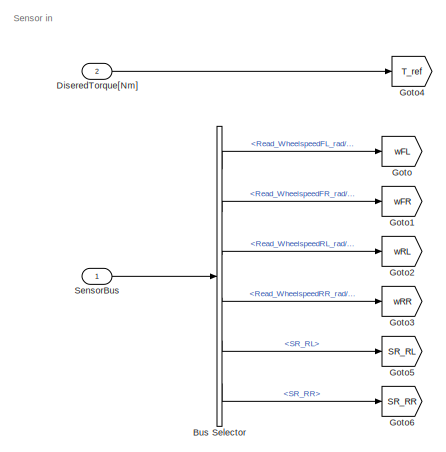
[diagram: CarMaker/MTTE Slipcontrol - part 1/3, top left region]
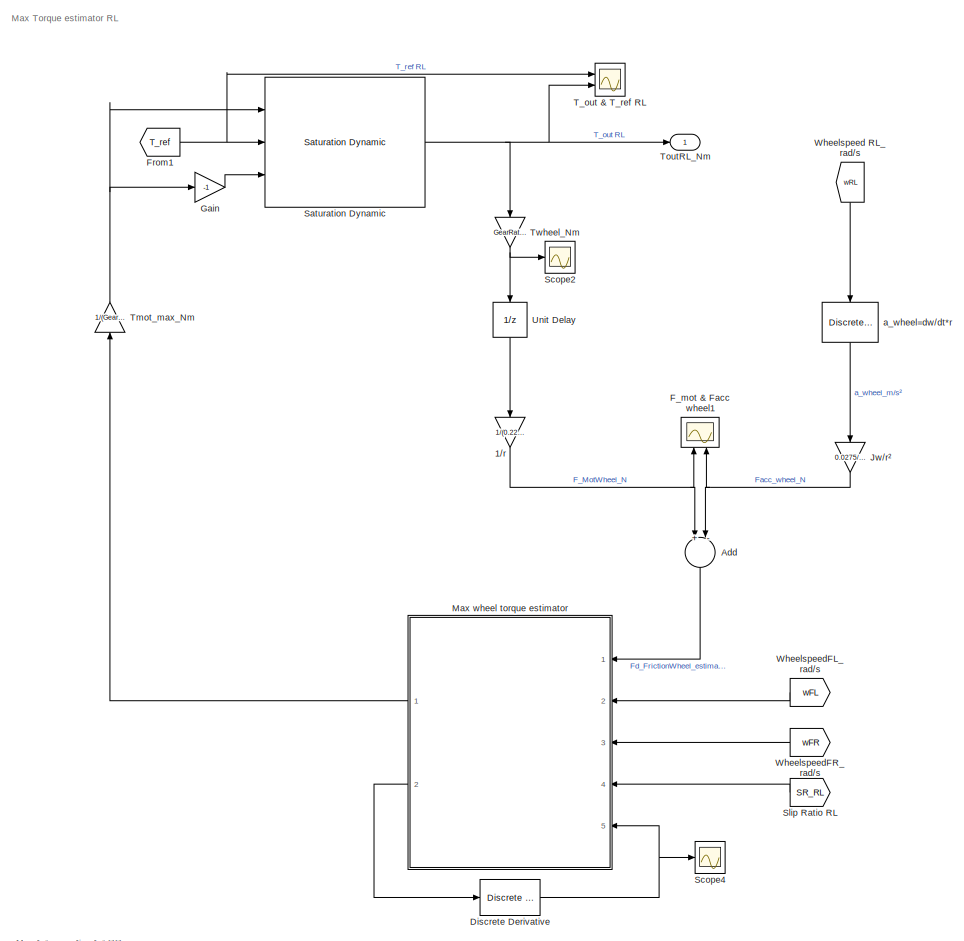
[diagram: CarMaker/MTTE Slipcontrol - part 2/3, top center region]
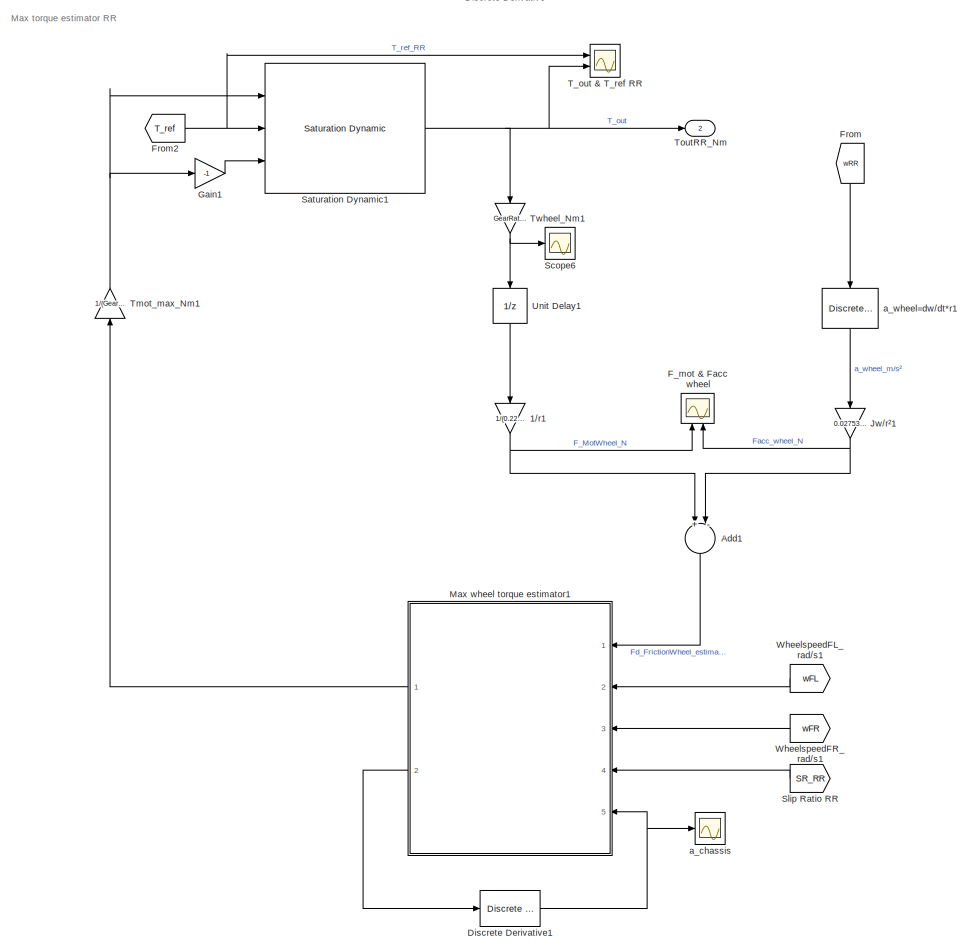
[diagram: CarMaker/MTTE Slipcontrol - part 3/3, bottom center region]
BLOCK [SubSystem] CarMaker/MTTE Slipcontrol
  Ports = [2, 2]
  RequestExecContextInheritance = off
BLOCK [Gain] CarMaker/MTTE Slipcontrol/1//r
  Gain = 1/(0.2289)
  OutDataTypeStr = Inherit: Inherit via internal rule
  ParamDataTypeStr = Inherit: Inherit via internal rule
  SaturateOnIntegerOverflow = off
BLOCK [Gain] CarMaker/MTTE Slipcontrol/1//r1
  Gain = 1/(0.2289)
  OutDataTypeStr = Inherit: Inherit via internal rule
  ParamDataTypeStr = Inherit: Inherit via internal rule
  SaturateOnIntegerOverflow = off
BLOCK [Sum] CarMaker/MTTE Slipcontrol/Add
  InputSameDT = off
  Inputs = +|-
  OutDataTypeStr = Inherit: Inherit via internal rule
  Ports = [2, 1]
  SaturateOnIntegerOverflow = off
BLOCK [Sum] CarMaker/MTTE Slipcontrol/Add1
  InputSameDT = off
  Inputs = +|-
  OutDataTypeStr = Inherit: Inherit via internal rule
  Ports = [2, 1]
  SaturateOnIntegerOverflow = off
BLOCK [BusSelector] CarMaker/MTTE Slipcontrol/Bus Selector
  OutputSignals = SensorBus.Read_WheelspeedFL_rad/s,SensorBus.Read_WheelspeedFR_rad/s,SensorBus.Read_WheelspeedRL_rad/s,SensorBus.Read_WheelspeedRR_rad/s,SR_RL,SR_RR
  Ports = [1, 6]
BLOCK [Reference] CarMaker/MTTE Slipcontrol/Discrete Derivative  REF=simulink/Discrete/Discrete Derivative
  DoSatur = off
  ICPrevScaledInput = 0.0
  InputProcessing = Inherited
  LockScale = off
  OutDataType = fixdt(1, 16)
  OutDataTypeStr = Inherit: Inherit via internal rule
  OutMax = []
  OutMin = []
  OutScaling = 2^-10
  OutputDataTypeScalingMode = Inherit via internal rule
  Ports = [1, 1]
  RndMeth = Floor
  SourceBlock = simulink/Discrete/Discrete Derivative
  SourceType = Discrete Derivative
  gainval = 1.0
BLOCK [Reference] CarMaker/MTTE Slipcontrol/Discrete Derivative1  REF=simulink/Discrete/Discrete Derivative
  DoSatur = off
  ICPrevScaledInput = 0.0
  InputProcessing = Inherited
  LockScale = off
  OutDataType = fixdt(1, 16)
  OutDataTypeStr = Inherit: Inherit via internal rule
  OutMax = []
  OutMin = []
  OutScaling = 2^-10
  OutputDataTypeScalingMode = Inherit via internal rule
  Ports = [1, 1]
  RndMeth = Floor
  SourceBlock = simulink/Discrete/Discrete Derivative
  SourceType = Discrete Derivative
  gainval = 1.0
BLOCK [Inport] CarMaker/MTTE Slipcontrol/DiseredTorque[Nm]
  IconDisplay = Port number
  Port = 2
BLOCK [Scope] CarMaker/MTTE Slipcontrol/F_mot & Facc wheel
  Floating = off
  NumInputPorts = 2
  Ports = [2]
  SaveName = ScopeData23
  YMax = 600~1755
  YMin = -300~-1755
  ZoomMode = xonly
BLOCK [Scope] CarMaker/MTTE Slipcontrol/F_mot & Facc wheel1
  Floating = off
  NumInputPorts = 2
  Ports = [2]
  SaveName = ScopeData18
  YMax = 1750~22
  YMin = 250~10
  ZoomMode = xonly
BLOCK [From] CarMaker/MTTE Slipcontrol/From
  GotoTag = wRR
BLOCK [From] CarMaker/MTTE Slipcontrol/From1
  GotoTag = T_ref
BLOCK [From] CarMaker/MTTE Slipcontrol/From2
  GotoTag = T_ref
BLOCK [Gain] CarMaker/MTTE Slipcontrol/Gain
  Gain = -1
  OutDataTypeStr = Inherit: Inherit via internal rule
  ParamDataTypeStr = Inherit: Inherit via internal rule
  SaturateOnIntegerOverflow = off
BLOCK [Gain] CarMaker/MTTE Slipcontrol/Gain1
  Gain = -1
  OutDataTypeStr = Inherit: Inherit via internal rule
  ParamDataTypeStr = Inherit: Inherit via internal rule
  SaturateOnIntegerOverflow = off
BLOCK [Goto] CarMaker/MTTE Slipcontrol/Goto
  GotoTag = wFL
BLOCK [Goto] CarMaker/MTTE Slipcontrol/Goto1
  GotoTag = wFR
BLOCK [Goto] CarMaker/MTTE Slipcontrol/Goto2
  GotoTag = wRL
BLOCK [Goto] CarMaker/MTTE Slipcontrol/Goto3
  GotoTag = wRR
BLOCK [Goto] CarMaker/MTTE Slipcontrol/Goto4
  GotoTag = T_ref
BLOCK [Goto] CarMaker/MTTE Slipcontrol/Goto5
  GotoTag = SR_RL
BLOCK [Goto] CarMaker/MTTE Slipcontrol/Goto6
  GotoTag = SR_RR
BLOCK [Gain] CarMaker/MTTE Slipcontrol/Jw//r²
  Gain = 0.0275/(0.2289)^2
  OutDataTypeStr = Inherit: Inherit via internal rule
  ParamDataTypeStr = Inherit: Inherit via internal rule
  SaturateOnIntegerOverflow = off
BLOCK [Gain] CarMaker/MTTE Slipcontrol/Jw//r²1
  Gain = 0.02753003/(0.2289)^2
  OutDataTypeStr = Inherit: Inherit via internal rule
  ParamDataTypeStr = Inherit: Inherit via internal rule
  SaturateOnIntegerOverflow = off
BLOCK [SubSystem] CarMaker/MTTE Slipcontrol/Max wheel torque estimator
  ErrorFcn = Stateflow.Translate.translate
  PermitHierarchicalResolution = ExplicitOnly
  Ports = [5, 2]
  RequestExecContextInheritance = off
  SFBlockType = MATLAB Function
  TreatAsAtomicUnit = on
BLOCK [Demux] CarMaker/MTTE Slipcontrol/Max wheel torque estimator/ Demux 
  Outputs = 1
  Ports = [1, 1]
BLOCK [S-Function] CarMaker/MTTE Slipcontrol/Max wheel torque estimator/ SFunction 
  EnableBusSupport = on
  FunctionName = sf_sfun
  PortCounts = [5 3]
  Ports = [5, 3]
  Tag = Stateflow S-Function generic_IsaacV3 8
BLOCK [Terminator] CarMaker/MTTE Slipcontrol/Max wheel torque estimator/ Terminator 
BLOCK [Inport] CarMaker/MTTE Slipcontrol/Max wheel torque estimator/Fd
  IconDisplay = Port number
BLOCK [Inport] CarMaker/MTTE Slipcontrol/Max wheel torque estimator/SR
  IconDisplay = Port number
  Port = 4
BLOCK [Outport] CarMaker/MTTE Slipcontrol/Max wheel torque estimator/Twheel
  IconDisplay = Port number
BLOCK [Inport] CarMaker/MTTE Slipcontrol/Max wheel torque estimator/a_chassis
  IconDisplay = Port number
  Port = 5
BLOCK [Outport] CarMaker/MTTE Slipcontrol/Max wheel torque estimator/v_chassis
  IconDisplay = Port number
  Port = 2
BLOCK [Inport] CarMaker/MTTE Slipcontrol/Max wheel torque estimator/w_FL
  IconDisplay = Port number
  Port = 2
BLOCK [Inport] CarMaker/MTTE Slipcontrol/Max wheel torque estimator/w_FR
  IconDisplay = Port number
  Port = 3
BLOCK [SubSystem] CarMaker/MTTE Slipcontrol/Max wheel torque estimator1
  ErrorFcn = Stateflow.Translate.translate
  PermitHierarchicalResolution = ExplicitOnly
  Ports = [5, 2]
  RequestExecContextInheritance = off
  SFBlockType = MATLAB Function
  TreatAsAtomicUnit = on
BLOCK [Demux] CarMaker/MTTE Slipcontrol/Max wheel torque estimator1/ Demux 
  Outputs = 1
  Ports = [1, 1]
BLOCK [S-Function] CarMaker/MTTE Slipcontrol/Max wheel torque estimator1/ SFunction 
  EnableBusSupport = on
  FunctionName = sf_sfun
  PortCounts = [5 3]
  Ports = [5, 3]
  Tag = Stateflow S-Function generic_IsaacV3 7
BLOCK [Terminator] CarMaker/MTTE Slipcontrol/Max wheel torque estimator1/ Terminator 
BLOCK [Inport] CarMaker/MTTE Slipcontrol/Max wheel torque estimator1/Fd
  IconDisplay = Port number
BLOCK [Inport] CarMaker/MTTE Slipcontrol/Max wheel torque estimator1/SR
  IconDisplay = Port number
  Port = 4
BLOCK [Outport] CarMaker/MTTE Slipcontrol/Max wheel torque estimator1/Twheel
  IconDisplay = Port number
BLOCK [Inport] CarMaker/MTTE Slipcontrol/Max wheel torque estimator1/a_chassis
  IconDisplay = Port number
  Port = 5
BLOCK [Outport] CarMaker/MTTE Slipcontrol/Max wheel torque estimator1/v_chassis
  IconDisplay = Port number
  Port = 2
BLOCK [Inport] CarMaker/MTTE Slipcontrol/Max wheel torque estimator1/w_FL
  IconDisplay = Port number
  Port = 2
BLOCK [Inport] CarMaker/MTTE Slipcontrol/Max wheel torque estimator1/w_FR
  IconDisplay = Port number
  Port = 3
BLOCK [Reference] CarMaker/MTTE Slipcontrol/Saturation Dynamic  REF=simulink/Discontinuities/Saturation
Dynamic
  DoSatur = off
  LockScale = off
  OutDataType = fixdt(1, 16)
  OutDataTypeStr = Inherit: Same as second input
  OutMax = []
  OutMin = []
  OutScaling = 2^-10
  OutputDataTypeScalingMode = Same as second input
  Ports = [3, 1]
  RndMeth = Floor
  SourceBlock = simulink/Discontinuities/Saturation\nDynamic
  SourceType = Saturation Dynamic
BLOCK [Reference] CarMaker/MTTE Slipcontrol/Saturation Dynamic1  REF=simulink/Discontinuities/Saturation
Dynamic
  DoSatur = off
  LockScale = off
  OutDataType = fixdt(1, 16)
  OutDataTypeStr = Inherit: Same as second input
  OutMax = []
  OutMin = []
  OutScaling = 2^-10
  OutputDataTypeScalingMode = Same as second input
  Ports = [3, 1]
  RndMeth = Floor
  SourceBlock = simulink/Discontinuities/Saturation\nDynamic
  SourceType = Saturation Dynamic
BLOCK [Scope] CarMaker/MTTE Slipcontrol/Scope2
  Floating = off
  NumInputPorts = 1
  Ports = [1]
  SaveName = ScopeData22
BLOCK [Scope] CarMaker/MTTE Slipcontrol/Scope4
  Floating = off
  NumInputPorts = 1
  Ports = [1]
  SaveName = ScopeData24
  YMax = 10
  YMin = -10
  ZoomMode = yonly
BLOCK [Scope] CarMaker/MTTE Slipcontrol/Scope6
  Floating = off
  NumInputPorts = 1
  Ports = [1]
  SaveName = ScopeData26
BLOCK [Inport] CarMaker/MTTE Slipcontrol/SensorBus
  IconDisplay = Port number
BLOCK [From] CarMaker/MTTE Slipcontrol/Slip Ratio RL
  GotoTag = SR_RL
BLOCK [From] CarMaker/MTTE Slipcontrol/Slip Ratio RR
  GotoTag = SR_RR
BLOCK [Scope] CarMaker/MTTE Slipcontrol/T_out & T_ref RL
  Floating = off
  NumInputPorts = 2
  Ports = [2]
  SaveName = ScopeData17
  YMax = 50~50
  YMin = -50~-50
  ZoomMode = xonly
BLOCK [Scope] CarMaker/MTTE Slipcontrol/T_out & T_ref RR
  Floating = off
  NumInputPorts = 2
  Ports = [2]
  SaveName = ScopeData28
  YMax = 50~50
  YMin = -50~-50
BLOCK [Gain] CarMaker/MTTE Slipcontrol/Tmot_max_Nm
  Gain = 1/(GearRatio)
  OutDataTypeStr = Inherit: Inherit via internal rule
  ParamDataTypeStr = Inherit: Inherit via internal rule
  SaturateOnIntegerOverflow = off
BLOCK [Gain] CarMaker/MTTE Slipcontrol/Tmot_max_Nm1
  Gain = 1/(GearRatio)
  OutDataTypeStr = Inherit: Inherit via internal rule
  ParamDataTypeStr = Inherit: Inherit via internal rule
  SaturateOnIntegerOverflow = off
BLOCK [Outport] CarMaker/MTTE Slipcontrol/ToutRL_Nm
  IconDisplay = Port number
BLOCK [Outport] CarMaker/MTTE Slipcontrol/ToutRR_Nm
  IconDisplay = Port number
  Port = 2
BLOCK [Gain] CarMaker/MTTE Slipcontrol/Twheel_Nm
  Gain = GearRatio
  OutDataTypeStr = Inherit: Inherit via internal rule
  ParamDataTypeStr = Inherit: Inherit via internal rule
  SaturateOnIntegerOverflow = off
BLOCK [Gain] CarMaker/MTTE Slipcontrol/Twheel_Nm1
  Gain = GearRatio
  OutDataTypeStr = Inherit: Inherit via internal rule
  ParamDataTypeStr = Inherit: Inherit via internal rule
  SaturateOnIntegerOverflow = off
BLOCK [UnitDelay] CarMaker/MTTE Slipcontrol/Unit Delay
  InputProcessing = Elements as channels (sample based)
  SampleTime = -1
BLOCK [UnitDelay] CarMaker/MTTE Slipcontrol/Unit Delay1
  InputProcessing = Elements as channels (sample based)
  SampleTime = -1
BLOCK [From] CarMaker/MTTE Slipcontrol/Wheelspeed RL_rad//s
  GotoTag = wRL
BLOCK [From] CarMaker/MTTE Slipcontrol/WheelspeedFL_rad//s
  GotoTag = wFL
BLOCK [From] CarMaker/MTTE Slipcontrol/WheelspeedFL_rad//s1
  GotoTag = wFL
BLOCK [From] CarMaker/MTTE Slipcontrol/WheelspeedFR_rad//s
  GotoTag = wFR
BLOCK [From] CarMaker/MTTE Slipcontrol/WheelspeedFR_rad//s1
  GotoTag = wFR
BLOCK [Scope] CarMaker/MTTE Slipcontrol/a_chassis
  Floating = off
  NumInputPorts = 1
  Ports = [1]
  SaveName = ScopeData27
  YMax = 10
  YMin = -10
  ZoomMode = yonly
BLOCK [Reference] CarMaker/MTTE Slipcontrol/a_wheel=dw//dt*r  REF=simulink/Discrete/Discrete Derivative
  DoSatur = off
  ICPrevScaledInput = 0.0
  InputProcessing = Inherited
  LockScale = off
  OutDataType = fixdt(1, 16)
  OutDataTypeStr = Inherit: Inherit via internal rule
  OutMax = []
  OutMin = []
  OutScaling = 2^-10
  OutputDataTypeScalingMode = Inherit via internal rule
  Ports = [1, 1]
  RndMeth = Floor
  SourceBlock = simulink/Discrete/Discrete Derivative
  SourceType = Discrete Derivative
  gainval = 0.2289
BLOCK [Reference] CarMaker/MTTE Slipcontrol/a_wheel=dw//dt*r1  REF=simulink/Discrete/Discrete Derivative
  DoSatur = off
  ICPrevScaledInput = 0.0
  InputProcessing = Inherited
  LockScale = off
  OutDataType = fixdt(1, 16)
  OutDataTypeStr = Inherit: Inherit via internal rule
  OutMax = []
  OutMin = []
  OutScaling = 2^-10
  OutputDataTypeScalingMode = Inherit via internal rule
  Ports = [1, 1]
  RndMeth = Floor
  SourceBlock = simulink/Discrete/Discrete Derivative
  SourceType = Discrete Derivative
  gainval = 0.2289
BLOCK [SubSystem] CarMaker/PedalMapping
  Ports = [2, 3]
  RequestExecContextInheritance = off
BLOCK [Lookup_n-D] CarMaker/PedalMapping/1-D Pedal-LaunchControl
  BreakpointsForDimension1 = [0,0.1,0.8,1]
  InternalRulePriority = Speed
  NumberOfTableDimensions = 1
  Ports = [1, 1]
  RndMeth = Simplest
  Table = [0,0,T_max_Nm,T_max_Nm]
BLOCK [BusSelector] CarMaker/PedalMapping/Bus Selector
  OutputSignals = SensorBus.Read_Driver_gas_0/1,SensorBus.Read_WheelspeedFL_rad/s,SensorBus.Read_WheelspeedFR_rad/s
  Ports = [1, 3]
BLOCK [SubSystem] CarMaker/PedalMapping/Chart
  ErrorFcn = Stateflow.Translate.translate
  PermitHierarchicalResolution = ExplicitOnly
  Ports = [2, 3]
  RequestExecContextInheritance = off
  SFBlockType = Chart
  TreatAsAtomicUnit = on
BLOCK [Demux] CarMaker/PedalMapping/Chart/ Demux 
  Outputs = 1
  Ports = [1, 1]
BLOCK [S-Function] CarMaker/PedalMapping/Chart/ SFunction 
  EnableBusSupport = on
  FunctionName = sf_sfun
  PortCounts = [2 4]
  Ports = [2, 4]
  Tag = Stateflow S-Function generic_IsaacV3 1
BLOCK [Terminator] CarMaker/PedalMapping/Chart/ Terminator 
BLOCK [Outport] CarMaker/PedalMapping/Chart/DRS_S2
  IconDisplay = Port number
  Port = 2
BLOCK [Outport] CarMaker/PedalMapping/Chart/DRS_S3
  IconDisplay = Port number
  Port = 3
BLOCK [Inport] CarMaker/PedalMapping/Chart/LC
  IconDisplay = Port number
  Port = 2
BLOCK [Inport] CarMaker/PedalMapping/Chart/ped_pos
  IconDisplay = Port number
BLOCK [Outport] CarMaker/PedalMapping/Chart/pedal
  IconDisplay = Port number
BLOCK [Outport] CarMaker/PedalMapping/DRS_S2
  IconDisplay = Port number
  Port = 2
BLOCK [Outport] CarMaker/PedalMapping/DRS_S3
  IconDisplay = Port number
  Port = 3
BLOCK [Inport] CarMaker/PedalMapping/EnableLaunchControl
  IconDisplay = Port number
  Port = 2
BLOCK [Constant] CarMaker/PedalMapping/Enable_regen
BLOCK [From] CarMaker/PedalMapping/From
  GotoTag = LC_Enable
BLOCK [From] CarMaker/PedalMapping/From1
  GotoTag = ped_pos
BLOCK [From] CarMaker/PedalMapping/From2
  GotoTag = ped_pos
BLOCK [From] CarMaker/PedalMapping/From3
  GotoTag = LC_Enable
BLOCK [Goto] CarMaker/PedalMapping/Goto
  GotoTag = ped_pos
BLOCK [Goto] CarMaker/PedalMapping/LC
  GotoTag = LC_Enable
BLOCK [SubSystem] CarMaker/PedalMapping/Pedal map1
  ErrorFcn = Stateflow.Translate.translate
  PermitHierarchicalResolution = ExplicitOnly
  Ports = [9, 1]
  RequestExecContextInheritance = off
  SFBlockType = MATLAB Function
  TreatAsAtomicUnit = on
BLOCK [Demux] CarMaker/PedalMapping/Pedal map1/ Demux 
  Outputs = 1
  Ports = [1, 1]
BLOCK [S-Function] CarMaker/PedalMapping/Pedal map1/ SFunction 
  EnableBusSupport = on
  FunctionName = sf_sfun
  PortCounts = [9 2]
  Ports = [9, 2]
  Tag = Stateflow S-Function generic_IsaacV3 17
BLOCK [Terminator] CarMaker/PedalMapping/Pedal map1/ Terminator 
BLOCK [Inport] CarMaker/PedalMapping/Pedal map1/T_coast
  IconDisplay = Port number
  Port = 9
BLOCK [Inport] CarMaker/PedalMapping/Pedal map1/T_max
  IconDisplay = Port number
  Port = 7
BLOCK [Inport] CarMaker/PedalMapping/Pedal map1/T_min
  IconDisplay = Port number
  Port = 8
BLOCK [Outport] CarMaker/PedalMapping/Pedal map1/T_out
  IconDisplay = Port number
BLOCK [Inport] CarMaker/PedalMapping/Pedal map1/coast_dom
  IconDisplay = Port number
  Port = 2
BLOCK [Inport] CarMaker/PedalMapping/Pedal map1/ped_accel
  IconDisplay = Port number
  Port = 4
BLOCK [Inport] CarMaker/PedalMapping/Pedal map1/ped_max
  IconDisplay = Port number
  Port = 5
BLOCK [Inport] CarMaker/PedalMapping/Pedal map1/ped_max_limit
  IconDisplay = Port number
  Port = 6
BLOCK [Inport] CarMaker/PedalMapping/Pedal map1/ped_pos
  IconDisplay = Port number
BLOCK [Inport] CarMaker/PedalMapping/Pedal map1/slewbreak_dom
  IconDisplay = Port number
  Port = 3
BLOCK [RateLimiter] CarMaker/PedalMapping/Rate Limiter2
  FallingSlewLimit = -2000
  RisingSlewLimit = 2000
  SampleTimeMode = inherited
BLOCK [Saturate] CarMaker/PedalMapping/Saturation Tout2
  InputPortMap = u0
  LowerLimit = 0
  Ports = [1, 1]
  UpperLimit = T_max_Nm
BLOCK [Saturate] CarMaker/PedalMapping/Saturation Tout3
  InputPortMap = u0
  LowerLimit = -40
  Ports = [1, 1]
  UpperLimit = 40
BLOCK [Inport] CarMaker/PedalMapping/Sensor in
  IconDisplay = Port number
BLOCK [Constant] CarMaker/PedalMapping/SoC_%1
  Value = 0.4671532846715328
BLOCK [Switch] CarMaker/PedalMapping/SwitchLC_Normal
  Criteria = u2 ~= 0
  InputSameDT = off
  SaturateOnIntegerOverflow = off
BLOCK [Scope] CarMaker/PedalMapping/T_OutLC
  Floating = off
  NumInputPorts = 1
  Ports = [1]
  SaveName = ScopeData8
  YMax = 50
  YMin = -50
BLOCK [Outport] CarMaker/PedalMapping/T_Out_Nm
  IconDisplay = Port number
BLOCK [Constant] CarMaker/PedalMapping/T_cell_°C
  Value = 30
BLOCK [Constant] CarMaker/PedalMapping/T_min_Nm1
  Value = T_min_Nm
BLOCK [Scope] CarMaker/PedalMapping/T_out
  Floating = off
  NumInputPorts = 1
  Ports = [1]
  SaveName = ScopeData10
  YMax = 50
  YMin = -50
BLOCK [Scope] CarMaker/PedalMapping/T_out_regen
  Floating = off
  NumInputPorts = 1
  Ports = [1]
  YMax = 50
  YMin = -50
BLOCK [Constant] CarMaker/PedalMapping/coast_domain
  Value = coast_domain
BLOCK [Constant] CarMaker/PedalMapping/max_coast_Nm
  Value = max_coast_Nm
BLOCK [Constant] CarMaker/PedalMapping/max_torque_Nm
  Value = T_max_Nm
BLOCK [Constant] CarMaker/PedalMapping/ped_max_limiet
  Value = ped_max_limiet
BLOCK [From] CarMaker/PedalMapping/ped_pos
  GotoTag = ped_pos
BLOCK [SubSystem] CarMaker/PedalMapping/pedal logic1
  ErrorFcn = Stateflow.Translate.translate
  PermitHierarchicalResolution = ExplicitOnly
  Ports = [7, 2]
  RequestExecContextInheritance = off
  SFBlockType = Chart
  TreatAsAtomicUnit = on
BLOCK [Demux] CarMaker/PedalMapping/pedal logic1/ Demux 
  Outputs = 1
  Ports = [1, 1]
BLOCK [S-Function] CarMaker/PedalMapping/pedal logic1/ SFunction 
  EnableBusSupport = on
  FunctionName = sf_sfun
  PortCounts = [7 3]
  Ports = [7, 3]
  Tag = Stateflow S-Function generic_IsaacV3 18
BLOCK [Terminator] CarMaker/PedalMapping/pedal logic1/ Terminator 
BLOCK [Inport] CarMaker/PedalMapping/pedal logic1/Enable_regen
  IconDisplay = Port number
  Port = 7
BLOCK [Inport] CarMaker/PedalMapping/pedal logic1/SoC
  IconDisplay = Port number
  Port = 2
BLOCK [Inport] CarMaker/PedalMapping/pedal logic1/T_cell
  IconDisplay = Port number
  Port = 6
BLOCK [Inport] CarMaker/PedalMapping/pedal logic1/T_min
  IconDisplay = Port number
BLOCK [Outport] CarMaker/PedalMapping/pedal logic1/T_regen
  IconDisplay = Port number
  Port = 2
BLOCK [Outport] CarMaker/PedalMapping/pedal logic1/ped_accel
  IconDisplay = Port number
BLOCK [Inport] CarMaker/PedalMapping/pedal logic1/ped_pos
  IconDisplay = Port number
  Port = 4
BLOCK [Inport] CarMaker/PedalMapping/pedal logic1/v_max
  IconDisplay = Port number
  Port = 3
BLOCK [Inport] CarMaker/PedalMapping/pedal logic1/v_vehicle
  IconDisplay = Port number
  Port = 5
BLOCK [Constant] CarMaker/PedalMapping/pedal_position_maxacc
  Value = pedal_position_maxacc
BLOCK [Constant] CarMaker/PedalMapping/regen_activation_kph
  Value = regen_activation_kph
BLOCK [Constant] CarMaker/PedalMapping/slewbreak_domain
  Value = slewbreak_domain
BLOCK [SubSystem] CarMaker/PedalMapping/vehicle velocity fun
  ErrorFcn = Stateflow.Translate.translate
  PermitHierarchicalResolution = ExplicitOnly
  Ports = [2, 2]
  RequestExecContextInheritance = off
  SFBlockType = MATLAB Function
  TreatAsAtomicUnit = on
BLOCK [Demux] CarMaker/PedalMapping/vehicle velocity fun/ Demux 
  Outputs = 1
  Ports = [1, 1]
BLOCK [S-Function] CarMaker/PedalMapping/vehicle velocity fun/ SFunction 
  EnableBusSupport = on
  FunctionName = sf_sfun
  PortCounts = [2 3]
  Ports = [2, 3]
  Tag = Stateflow S-Function generic_IsaacV3 4
BLOCK [Terminator] CarMaker/PedalMapping/vehicle velocity fun/ Terminator 
BLOCK [Outport] CarMaker/PedalMapping/vehicle velocity fun/v_vehicle_kph
  IconDisplay = Port number
  Port = 2
BLOCK [Outport] CarMaker/PedalMapping/vehicle velocity fun/v_vehicle_mps
  IconDisplay = Port number
BLOCK [Inport] CarMaker/PedalMapping/vehicle velocity fun/wheelspeedfl
  IconDisplay = Port number
BLOCK [Inport] CarMaker/PedalMapping/vehicle velocity fun/wheelspeedfr
  IconDisplay = Port number
  Port = 2
BLOCK [Constant] CarMaker/PedalToTheMetal
  Value = 40
BLOCK [Constant] CarMaker/SC
BLOCK [SubSystem] CarMaker/SC Enable
  DialogController = hmiCreateDDGDialog
  IsWebBlock = on
  MaskHideContents = on
  Ports = []
  RequestExecContextInheritance = off
BLOCK [Scope] CarMaker/Scope
  Floating = off
  NumInputPorts = 2
  Ports = [2]
  SaveName = ScopeData7
  YMax = 50~50
  YMin = -20~-20
BLOCK [SubSystem] CarMaker/SignalOut
  Ports = [5]
  RequestExecContextInheritance = off
BLOCK [BusSelector] CarMaker/SignalOut/Bus Selector
  OutputSignals = SensorBus.Read_WheelspeedRL_rad/s,SensorBus.Read_WheelspeedRR_rad/s
  Ports = [1, 2]
BLOCK [Gain] CarMaker/SignalOut/Convert
  Gain = 60/(2*pi)
  OutDataTypeStr = Inherit: Inherit via internal rule
  ParamDataTypeStr = Inherit: Inherit via internal rule
  SaturateOnIntegerOverflow = off
BLOCK [Gain] CarMaker/SignalOut/Convert1
  Gain = 60/(2*pi)
  OutDataTypeStr = Inherit: Inherit via internal rule
  ParamDataTypeStr = Inherit: Inherit via internal rule
  SaturateOnIntegerOverflow = off
BLOCK [SubSystem] CarMaker/SignalOut/CreateBus PTC ClutchOut
  Ports = [1, 1]
  RequestExecContextInheritance = off
BLOCK [BusCreator] CarMaker/SignalOut/CreateBus PTC ClutchOut/BusCreator
  Inputs = 3
  Ports = [3, 1]
BLOCK [Demux] CarMaker/SignalOut/CreateBus PTC ClutchOut/Demux
  Outputs = 3
  Ports = [1, 3]
BLOCK [Inport] CarMaker/SignalOut/CreateBus PTC ClutchOut/In
  IconDisplay = Port number
BLOCK [Outport] CarMaker/SignalOut/CreateBus PTC ClutchOut/Out
  IconDisplay = Port number
BLOCK [SubSystem] CarMaker/SignalOut/CreateBus PTC EngineOut
  Ports = [1, 1]
  RequestExecContextInheritance = off
BLOCK [BusCreator] CarMaker/SignalOut/CreateBus PTC EngineOut/BusCreator
  Inputs = 5
  Ports = [5, 1]
BLOCK [Demux] CarMaker/SignalOut/CreateBus PTC EngineOut/Demux
  Outputs = 5
  Ports = [1, 5]
BLOCK [Inport] CarMaker/SignalOut/CreateBus PTC EngineOut/In
  IconDisplay = Port number
BLOCK [Outport] CarMaker/SignalOut/CreateBus PTC EngineOut/Out
  IconDisplay = Port number
BLOCK [SubSystem] CarMaker/SignalOut/CreateBus PTC GearBoxM_Out0
  Ports = [1, 1]
  RequestExecContextInheritance = off
BLOCK [BusCreator] CarMaker/SignalOut/CreateBus PTC GearBoxM_Out0/BusCreator
  Inputs = 7
  Ports = [7, 1]
BLOCK [Demux] CarMaker/SignalOut/CreateBus PTC GearBoxM_Out0/Demux
  Outputs = 7
  Ports = [1, 7]
BLOCK [Inport] CarMaker/SignalOut/CreateBus PTC GearBoxM_Out0/In
  IconDisplay = Port number
BLOCK [Outport] CarMaker/SignalOut/CreateBus PTC GearBoxM_Out0/Out
  IconDisplay = Port number
BLOCK [SubSystem] CarMaker/SignalOut/CreateBus PTC GearBoxM_Out1
  Ports = [1, 1]
  RequestExecContextInheritance = off
BLOCK [BusCreator] CarMaker/SignalOut/CreateBus PTC GearBoxM_Out1/BusCreator
  Inputs = 7
  Ports = [7, 1]
BLOCK [Demux] CarMaker/SignalOut/CreateBus PTC GearBoxM_Out1/Demux
  Outputs = 7
  Ports = [1, 7]
BLOCK [Inport] CarMaker/SignalOut/CreateBus PTC GearBoxM_Out1/In
  IconDisplay = Port number
BLOCK [Outport] CarMaker/SignalOut/CreateBus PTC GearBoxM_Out1/Out
  IconDisplay = Port number
BLOCK [SubSystem] CarMaker/SignalOut/CreateBus PTC GearBoxM_Out2
  Ports = [1, 1]
  RequestExecContextInheritance = off
BLOCK [BusCreator] CarMaker/SignalOut/CreateBus PTC GearBoxM_Out2/BusCreator
  Inputs = 7
  Ports = [7, 1]
BLOCK [Demux] CarMaker/SignalOut/CreateBus PTC GearBoxM_Out2/Demux
  Outputs = 7
  Ports = [1, 7]
BLOCK [Inport] CarMaker/SignalOut/CreateBus PTC GearBoxM_Out2/In
  IconDisplay = Port number
BLOCK [Outport] CarMaker/SignalOut/CreateBus PTC GearBoxM_Out2/Out
  IconDisplay = Port number
BLOCK [SubSystem] CarMaker/SignalOut/CreateBus PTC GearBoxM_Out3
  Ports = [1, 1]
  RequestExecContextInheritance = off
BLOCK [BusCreator] CarMaker/SignalOut/CreateBus PTC GearBoxM_Out3/BusCreator
  Inputs = 7
  Ports = [7, 1]
BLOCK [Demux] CarMaker/SignalOut/CreateBus PTC GearBoxM_Out3/Demux
  Outputs = 7
  Ports = [1, 7]
BLOCK [Inport] CarMaker/SignalOut/CreateBus PTC GearBoxM_Out3/In
  IconDisplay = Port number
BLOCK [Outport] CarMaker/SignalOut/CreateBus PTC GearBoxM_Out3/Out
  IconDisplay = Port number
BLOCK [SubSystem] CarMaker/SignalOut/CreateBus PTC GearBoxOut
  Ports = [1, 1]
  RequestExecContextInheritance = off
BLOCK [BusCreator] CarMaker/SignalOut/CreateBus PTC GearBoxOut/BusCreator
  Inputs = 7
  Ports = [7, 1]
BLOCK [Demux] CarMaker/SignalOut/CreateBus PTC GearBoxOut/Demux
  Outputs = 7
  Ports = [1, 7]
BLOCK [Inport] CarMaker/SignalOut/CreateBus PTC GearBoxOut/In
  IconDisplay = Port number
BLOCK [Outport] CarMaker/SignalOut/CreateBus PTC GearBoxOut/Out
  IconDisplay = Port number
BLOCK [SubSystem] CarMaker/SignalOut/CreateBus PTC ISGOut
  Ports = [1, 1]
  RequestExecContextInheritance = off
BLOCK [BusCreator] CarMaker/SignalOut/CreateBus PTC ISGOut/BusCreator
  Inputs = 3
  Ports = [3, 1]
BLOCK [Demux] CarMaker/SignalOut/CreateBus PTC ISGOut/Demux
  Outputs = 3
  Ports = [1, 3]
BLOCK [Inport] CarMaker/SignalOut/CreateBus PTC ISGOut/In
  IconDisplay = Port number
BLOCK [Outport] CarMaker/SignalOut/CreateBus PTC ISGOut/Out
  IconDisplay = Port number
BLOCK [SubSystem] CarMaker/SignalOut/CreateBus PTC MiscOut
  Ports = [1, 1]
  RequestExecContextInheritance = off
BLOCK [BusCreator] CarMaker/SignalOut/CreateBus PTC MiscOut/BusCreator
  Ports = [4, 1]
BLOCK [Demux] CarMaker/SignalOut/CreateBus PTC MiscOut/Demux
  Ports = [1, 4]
BLOCK [Inport] CarMaker/SignalOut/CreateBus PTC MiscOut/In
  IconDisplay = Port number
BLOCK [Outport] CarMaker/SignalOut/CreateBus PTC MiscOut/Out
  IconDisplay = Port number
BLOCK [SubSystem] CarMaker/SignalOut/CreateBus PTC MotorOut0
  Ports = [1, 1]
  RequestExecContextInheritance = off
BLOCK [BusCreator] CarMaker/SignalOut/CreateBus PTC MotorOut0/Bus Creator
  DisplayOption = bar
  Inputs = 3
  Ports = [3, 1]
BLOCK [BusCreator] CarMaker/SignalOut/CreateBus PTC MotorOut0/BusCreator
  Inputs = 3
  Ports = [3, 1]
BLOCK [Demux] CarMaker/SignalOut/CreateBus PTC MotorOut0/Demux
  Outputs = 3
  Ports = [1, 3]
BLOCK [Inport] CarMaker/SignalOut/CreateBus PTC MotorOut0/In
  IconDisplay = Port number
BLOCK [Constant] CarMaker/SignalOut/CreateBus PTC MotorOut0/Load_mode_Not set 
  Value = -99999
BLOCK [Outport] CarMaker/SignalOut/CreateBus PTC MotorOut0/Out
  IconDisplay = Port number
BLOCK [Constant] CarMaker/SignalOut/CreateBus PTC MotorOut0/Speed_mode_notSet 
  Value = -99999
BLOCK [SubSystem] CarMaker/SignalOut/CreateBus PTC MotorOut1
  Ports = [1, 1]
  RequestExecContextInheritance = off
BLOCK [BusCreator] CarMaker/SignalOut/CreateBus PTC MotorOut1/Bus Creator
  DisplayOption = bar
  Inputs = 3
  Ports = [3, 1]
BLOCK [BusCreator] CarMaker/SignalOut/CreateBus PTC MotorOut1/BusCreator
  Inputs = 3
  Ports = [3, 1]
BLOCK [Demux] CarMaker/SignalOut/CreateBus PTC MotorOut1/Demux
  Outputs = 3
  Ports = [1, 3]
BLOCK [Inport] CarMaker/SignalOut/CreateBus PTC MotorOut1/In
  IconDisplay = Port number
BLOCK [Constant] CarMaker/SignalOut/CreateBus PTC MotorOut1/Load_mode_Not set 
  Value = -99999
BLOCK [Outport] CarMaker/SignalOut/CreateBus PTC MotorOut1/Out
  IconDisplay = Port number
BLOCK [Constant] CarMaker/SignalOut/CreateBus PTC MotorOut1/Speed_mode_notSet 
  Value = -99999
BLOCK [SubSystem] CarMaker/SignalOut/CreateBus PTC MotorOut2
  Ports = [1, 1]
  RequestExecContextInheritance = off
BLOCK [BusCreator] CarMaker/SignalOut/CreateBus PTC MotorOut2/BusCreator
  Inputs = 3
  Ports = [3, 1]
BLOCK [Demux] CarMaker/SignalOut/CreateBus PTC MotorOut2/Demux
  Outputs = 3
  Ports = [1, 3]
BLOCK [Inport] CarMaker/SignalOut/CreateBus PTC MotorOut2/In
  IconDisplay = Port number
BLOCK [Outport] CarMaker/SignalOut/CreateBus PTC MotorOut2/Out
  IconDisplay = Port number
BLOCK [SubSystem] CarMaker/SignalOut/CreateBus PTC MotorOut3
  Ports = [1, 1]
  RequestExecContextInheritance = off
BLOCK [BusCreator] CarMaker/SignalOut/CreateBus PTC MotorOut3/BusCreator
  Inputs = 3
  Ports = [3, 1]
BLOCK [Demux] CarMaker/SignalOut/CreateBus PTC MotorOut3/Demux
  Outputs = 3
  Ports = [1, 3]
BLOCK [Inport] CarMaker/SignalOut/CreateBus PTC MotorOut3/In
  IconDisplay = Port number
BLOCK [Outport] CarMaker/SignalOut/CreateBus PTC MotorOut3/Out
  IconDisplay = Port number
BLOCK [SubSystem] CarMaker/SignalOut/CreateBus PTC PwrSupplyOut
  Ports = [1, 1]
  RequestExecContextInheritance = off
BLOCK [BusCreator] CarMaker/SignalOut/CreateBus PTC PwrSupplyOut/BusCreator
  Inputs = 1
  Ports = [1, 1]
BLOCK [Demux] CarMaker/SignalOut/CreateBus PTC PwrSupplyOut/Demux
  Outputs = 1
  Ports = [1, 1]
BLOCK [Inport] CarMaker/SignalOut/CreateBus PTC PwrSupplyOut/In
  IconDisplay = Port number
BLOCK [Outport] CarMaker/SignalOut/CreateBus PTC PwrSupplyOut/Out
  IconDisplay = Port number
BLOCK [SubSystem] CarMaker/SignalOut/CreateBus PTC WheelOut
  Ports = [1, 1]
  RequestExecContextInheritance = off
BLOCK [BusCreator] CarMaker/SignalOut/CreateBus PTC WheelOut/BusCreator
  Inputs = 8
  Ports = [8, 1]
BLOCK [Demux] CarMaker/SignalOut/CreateBus PTC WheelOut/Demux
  Outputs = 8
  Ports = [1, 8]
BLOCK [Inport] CarMaker/SignalOut/CreateBus PTC WheelOut/In
  IconDisplay = Port number
BLOCK [Outport] CarMaker/SignalOut/CreateBus PTC WheelOut/Out
  IconDisplay = Port number
BLOCK [Ground] CarMaker/SignalOut/Ground PTC ClutchOut
BLOCK [Ground] CarMaker/SignalOut/Ground PTC ClutchOut1
BLOCK [Ground] CarMaker/SignalOut/Ground PTC ClutchOut2
BLOCK [Ground] CarMaker/SignalOut/Ground PTC GearBoxM_Out0
BLOCK [Ground] CarMaker/SignalOut/Ground PTC GearBoxM_Out1
BLOCK [Ground] CarMaker/SignalOut/Ground PTC GearBoxM_Out2
BLOCK [Ground] CarMaker/SignalOut/Ground PTC GearBoxM_Out3
BLOCK [Ground] CarMaker/SignalOut/Ground PTC GearBoxOut
BLOCK [Ground] CarMaker/SignalOut/Ground PTC MotorOut1
BLOCK [Ground] CarMaker/SignalOut/Ground PTC MotorOut4
BLOCK [Ground] CarMaker/SignalOut/Ground PTC PwrSupplyOut
BLOCK [Ground] CarMaker/SignalOut/Ground PTC WheelOut
BLOCK [SubSystem] CarMaker/SignalOut/MATLAB Function
  ErrorFcn = Stateflow.Translate.translate
  PermitHierarchicalResolution = ExplicitOnly
  Ports = [3, 1]
  RequestExecContextInheritance = off
  SFBlockType = MATLAB Function
  TreatAsAtomicUnit = on
BLOCK [Demux] CarMaker/SignalOut/MATLAB Function/ Demux 
  Outputs = 1
  Ports = [1, 1]
BLOCK [S-Function] CarMaker/SignalOut/MATLAB Function/ SFunction 
  EnableBusSupport = on
  FunctionName = sf_sfun
  PortCounts = [3 2]
  Ports = [3, 2]
  Tag = Stateflow S-Function generic_IsaacV3 3
BLOCK [Terminator] CarMaker/SignalOut/MATLAB Function/ Terminator 
BLOCK [Outport] CarMaker/SignalOut/MATLAB Function/T_mot
  IconDisplay = Port number
BLOCK [Inport] CarMaker/SignalOut/MATLAB Function/Treq
  IconDisplay = Port number
  Port = 3
BLOCK [Inport] CarMaker/SignalOut/MATLAB Function/Wheelspeed_Max
  IconDisplay = Port number
BLOCK [Inport] CarMaker/SignalOut/MATLAB Function/Wheelspeed_Sens
  IconDisplay = Port number
  Port = 2
BLOCK [SubSystem] CarMaker/SignalOut/MATLAB Function1
  ErrorFcn = Stateflow.Translate.translate
  PermitHierarchicalResolution = ExplicitOnly
  Ports = [3, 1]
  RequestExecContextInheritance = off
  SFBlockType = MATLAB Function
  TreatAsAtomicUnit = on
BLOCK [Demux] CarMaker/SignalOut/MATLAB Function1/ Demux 
  Outputs = 1
  Ports = [1, 1]
BLOCK [S-Function] CarMaker/SignalOut/MATLAB Function1/ SFunction 
  EnableBusSupport = on
  FunctionName = sf_sfun
  PortCounts = [3 2]
  Ports = [3, 2]
  Tag = Stateflow S-Function generic_IsaacV3 6
BLOCK [Terminator] CarMaker/SignalOut/MATLAB Function1/ Terminator 
BLOCK [Outport] CarMaker/SignalOut/MATLAB Function1/T_mot
  IconDisplay = Port number
BLOCK [Inport] CarMaker/SignalOut/MATLAB Function1/Treq
  IconDisplay = Port number
  Port = 3
BLOCK [Inport] CarMaker/SignalOut/MATLAB Function1/Wheelspeed_Max
  IconDisplay = Port number
BLOCK [Inport] CarMaker/SignalOut/MATLAB Function1/Wheelspeed_Sens
  IconDisplay = Port number
  Port = 2
BLOCK [Scope] CarMaker/SignalOut/Motor Torque
  Floating = off
  NumInputPorts = 2
  Ports = [2]
  SaveName = ScopeData13
  YMax = 0.5~0.5
  YMin = 0~0
BLOCK [SubSystem] CarMaker/SignalOut/PTC
  Ports = [0, 1]
  RequestExecContextInheritance = off
BLOCK [Constant] CarMaker/SignalOut/PTC/Constant2
BLOCK [Ground] CarMaker/SignalOut/PTC/Ground
BLOCK [Constant] CarMaker/SignalOut/PTC/Mode_EngineDrive
  Value = 4
BLOCK [Mux] CarMaker/SignalOut/PTC/Mux
  DisplayOption = bar
  Ports = [4, 1]
BLOCK [Constant] CarMaker/SignalOut/PTC/OperState_Driving
  Value = 4
BLOCK [Outport] CarMaker/SignalOut/PTC/PTC MiscOut
  IconDisplay = Port number
BLOCK [SubSystem] CarMaker/SignalOut/PTControl_Out
  Ports = [15]
  RequestExecContextInheritance = off
BLOCK [Inport] CarMaker/SignalOut/PTControl_Out/PTC ClutchOut
  IconDisplay = Port number
  Port = 8
BLOCK [Inport] CarMaker/SignalOut/PTControl_Out/PTC EngineOut
  IconDisplay = Port number
  Port = 2
BLOCK [Inport] CarMaker/SignalOut/PTControl_Out/PTC GearBoxM_Out0
  IconDisplay = Port number
  Port = 10
BLOCK [Inport] CarMaker/SignalOut/PTControl_Out/PTC GearBoxM_Out1
  IconDisplay = Port number
  Port = 11
BLOCK [Inport] CarMaker/SignalOut/PTControl_Out/PTC GearBoxM_Out2
  IconDisplay = Port number
  Port = 12
BLOCK [Inport] CarMaker/SignalOut/PTControl_Out/PTC GearBoxM_Out3
  IconDisplay = Port number
  Port = 13
BLOCK [Inport] CarMaker/SignalOut/PTControl_Out/PTC GearBoxOut
  IconDisplay = Port number
  Port = 9
BLOCK [Inport] CarMaker/SignalOut/PTControl_Out/PTC ISGOut
  IconDisplay = Port number
  Port = 3
BLOCK [Inport] CarMaker/SignalOut/PTControl_Out/PTC MiscOut
  IconDisplay = Port number
BLOCK [Inport] CarMaker/SignalOut/PTControl_Out/PTC MotorOut0
  IconDisplay = Port number
  Port = 4
BLOCK [Inport] CarMaker/SignalOut/PTControl_Out/PTC MotorOut1
  IconDisplay = Port number
  Port = 5
BLOCK [Inport] CarMaker/SignalOut/PTControl_Out/PTC MotorOut2
  IconDisplay = Port number
  Port = 6
BLOCK [Inport] CarMaker/SignalOut/PTControl_Out/PTC MotorOut3
  IconDisplay = Port number
  Port = 7
BLOCK [Inport] CarMaker/SignalOut/PTControl_Out/PTC PwrSupplyOut
  IconDisplay = Port number
  Port = 14
BLOCK [Inport] CarMaker/SignalOut/PTControl_Out/PTC WheelOut
  IconDisplay = Port number
  Port = 15
BLOCK [S-Function] CarMaker/SignalOut/PTControl_Out/PTControl_Out
  FunctionName = cm_ptcontrol_out
  Ports = [15]
BLOCK [RateLimiter] CarMaker/SignalOut/Rate Limiter
  FallingSlewLimit = -1000
  RisingSlewLimit = 1000
BLOCK [RateLimiter] CarMaker/SignalOut/Rate Limiter1
  FallingSlewLimit = -1000
  RisingSlewLimit = 1000
BLOCK [Inport] CarMaker/SignalOut/SensorBus
  IconDisplay = Port number
  Port = 5
BLOCK [Inport] CarMaker/SignalOut/Torque_MotRL
  IconDisplay = Port number
BLOCK [Inport] CarMaker/SignalOut/Torque_MotRR
  IconDisplay = Port number
  Port = 2
BLOCK [Inport] CarMaker/SignalOut/WheelspeedLimitRL_RPM
  IconDisplay = Port number
  Port = 3
BLOCK [Inport] CarMaker/SignalOut/WheelspeedLimitRR_RPM
  IconDisplay = Port number
  Port = 4
BLOCK [Constant] CarMaker/TV
BLOCK [SubSystem] CarMaker/TV Enable
  DialogController = hmiCreateDDGDialog
  IsWebBlock = on
  MaskHideContents = on
  Ports = []
  RequestExecContextInheritance = off
BLOCK [Terminator] CarMaker/Terminator
BLOCK [Terminator] CarMaker/Terminator1
BLOCK [Terminator] CarMaker/Terminator2
BLOCK [SubSystem] CarMaker/TorqueVectoring
  Ports = [2, 2]
  RequestExecContextInheritance = off
BLOCK [Lookup_n-D] CarMaker/TorqueVectoring/2-D Lookup Table1
  BreakpointsForDimension1 = [-15,-14,-13,-12,-11,-10,-9,-8,-7,-6,-5,-4,-3,-2,-1,0,1,2,3,4,5,6,7,8,9,10,11,12,13,14,15]
  BreakpointsForDimension2 = [200,425,650,875,1100]
  InternalRulePriority = Speed
  Ports = [2, 1]
  RndMeth = Simplest
  Table = reshape([-510,-510,-510,-510,-500,-500,-460,-460,-460,-420,-420,-380,-340,-270,-150,0,150,270,340,380,420,420,460,460,460,500,500,500,500,500,500,-1020,-1020,-1020,-1020,-1000,-1000,-1000,-960,-960,-920,-880,-800,-690,-540,-350,0,350,540,690,800,880,920,960,960,1000,1000,1000,1020,1020,1020,1020,-1540,-1540,-1540,-1540,-1500,-1500,-1500,-1460,-1420,-1360,-1300,-1230,-1040,-800,-500,0,500,800,1040,...<+394ch>
BLOCK [Lookup_n-D] CarMaker/TorqueVectoring/2-D Lookup Table2
  BreakpointsForDimension1 = [-15,-14,-13,-12,-11,-10,-9,-8,-7,-6,-5,-4,-3,-2,-1,0,1,2,3,4,5,6,7,8,9,10,11,12,13,14,15]
  BreakpointsForDimension2 = [200,425,650,875,1100]
  InternalRulePriority = Speed
  Ports = [2, 1]
  RndMeth = Simplest
  Table = reshape([-510,-510,-510,-510,-500,-500,-460,-460,-460,-420,-420,-380,-340,-270,-150,0,150,270,340,380,420,420,460,460,460,500,500,500,500,500,500,-1020,-1020,-1020,-1020,-1000,-1000,-1000,-960,-960,-920,-880,-800,-690,-540,-350,0,350,540,690,800,880,920,960,960,1000,1000,1000,1020,1020,1020,1020,-1540,-1540,-1540,-1540,-1500,-1500,-1500,-1460,-1420,-1360,-1300,-1230,-1040,-800,-500,0,500,800,1040,...<+394ch>
BLOCK [BusSelector] CarMaker/TorqueVectoring/Bus Selector
  OutputSignals = SensorBus.Read_ay_m/s²,Vehicle_velocity_mps,SensorBus.Read_Vhcl_YawRate,SensorBus.Read_ax_m/s²,SensorBus.Read_Mean_Steering_Angle_Wheels,SensorBus.Read_Steering_angle_rad
  Ports = [1, 6]
BLOCK [Inport] CarMaker/TorqueVectoring/Inputs
  IconDisplay = Port number
BLOCK [Memory] CarMaker/TorqueVectoring/Memory
  X0 = 0.001
BLOCK [Memory] CarMaker/TorqueVectoring/Memory1
  X0 = 0.001
BLOCK [Constant] CarMaker/TorqueVectoring/Mu_ DroogWegdek
  Value = mu_max
BLOCK [SubSystem] CarMaker/TorqueVectoring/PI_CONTROLLER1
  Ports = [2, 1]
  RequestExecContextInheritance = off
BLOCK [SubSystem] CarMaker/TorqueVectoring/PI_CONTROLLER1/Clamping circuit
  Ports = [2, 1]
  RequestExecContextInheritance = off
BLOCK [Logic] CarMaker/TorqueVectoring/PI_CONTROLLER1/Clamping circuit/AND
  DisableCoverage = on
  Ports = [2, 1]
BLOCK [Outport] CarMaker/TorqueVectoring/PI_CONTROLLER1/Clamping circuit/Clamp
  DisableCoverage = on
  IconDisplay = Port number
BLOCK [DataTypeConversion] CarMaker/TorqueVectoring/PI_CONTROLLER1/Clamping circuit/DataTypeConv1
  DisableCoverage = on
  LockScale = on
  OutDataTypeStr = int8
BLOCK [DataTypeConversion] CarMaker/TorqueVectoring/PI_CONTROLLER1/Clamping circuit/DataTypeConv2
  DisableCoverage = on
  LockScale = on
  OutDataTypeStr = int8
BLOCK [DeadZone] CarMaker/TorqueVectoring/PI_CONTROLLER1/Clamping circuit/DeadZone
  DisableCoverage = on
  LowerValue = -100
  UpperValue = 100
BLOCK [RelationalOperator] CarMaker/TorqueVectoring/PI_CONTROLLER1/Clamping circuit/Equal
  DisableCoverage = on
  Operator = ==
  Ports = [2, 1]
BLOCK [Memory] CarMaker/TorqueVectoring/PI_CONTROLLER1/Clamping circuit/Memory
  DisableCoverage = on
BLOCK [RelationalOperator] CarMaker/TorqueVectoring/PI_CONTROLLER1/Clamping circuit/NotEqual
  DisableCoverage = on
  Operator = ~=
  Ports = [2, 1]
BLOCK [Signum] CarMaker/TorqueVectoring/PI_CONTROLLER1/Clamping circuit/SignDeltaU
  DisableCoverage = on
BLOCK [Signum] CarMaker/TorqueVectoring/PI_CONTROLLER1/Clamping circuit/SignPreIntegrator
  DisableCoverage = on
BLOCK [Gain] CarMaker/TorqueVectoring/PI_CONTROLLER1/Clamping circuit/ZeroGain
  DisableCoverage = on
  Gain = 0
BLOCK [Inport] CarMaker/TorqueVectoring/PI_CONTROLLER1/Clamping circuit/preIntegrator
  DisableCoverage = on
  IconDisplay = Port number
  Port = 2
BLOCK [Inport] CarMaker/TorqueVectoring/PI_CONTROLLER1/Clamping circuit/preSat
  DisableCoverage = on
  IconDisplay = Port number
BLOCK [Constant] CarMaker/TorqueVectoring/PI_CONTROLLER1/Constant
  DisableCoverage = on
  OutDataTypeStr = Inherit: Inherit via back propagation
  PreserveConstantTs = on
  Value = 0
BLOCK [DiscreteIntegrator] CarMaker/TorqueVectoring/PI_CONTROLLER1/Discrete-Time Integrator
  InitialConditionSetting = State (most efficient)
  LimitOutput = on
  LowerSaturationLimit = -100
  Ports = [1, 1]
  SampleTime = 0.001
  UpperSaturationLimit = 100
BLOCK [Gain] CarMaker/TorqueVectoring/PI_CONTROLLER1/Gain1
  Gain = 1/10
  OutDataTypeStr = Inherit: Inherit via internal rule
  ParamDataTypeStr = Inherit: Inherit via internal rule
  SaturateOnIntegerOverflow = off
BLOCK [Gain] CarMaker/TorqueVectoring/PI_CONTROLLER1/Gain2
  Gain = 1/1000
  OutDataTypeStr = Inherit: Inherit via internal rule
  ParamDataTypeStr = Inherit: Inherit via internal rule
  SaturateOnIntegerOverflow = off
BLOCK [Product] CarMaker/TorqueVectoring/PI_CONTROLLER1/I
  InputSameDT = off
  OutDataTypeStr = Inherit: Inherit via internal rule
  Ports = [2, 1]
  SaturateOnIntegerOverflow = off
BLOCK [Lookup] CarMaker/TorqueVectoring/PI_CONTROLLER1/Lookup Table IifV
  InputValues = [-1 1 3 5 7 8 10 12 13 15 18 22 26 30 35 40]
  SaturateOnIntegerOverflow = off
  Table = [50352886.7892156 50352886.7892156 5589135.45551528 1921428.35851846 975393.735493402 705695.225360316 447460.758905211 279243.629097448 236454.771525978 158654.332416002 94344.5016145154 48661.6461191947 26632.8595225856 13884.3621478696 5589.69756030357 1773.78141835761]
BLOCK [Lookup] CarMaker/TorqueVectoring/PI_CONTROLLER1/Lookup Table PifV
  InputValues = [-1 1 3 5 7 8 10 12 13 15 18 22 26 30 35 40]
  SaturateOnIntegerOverflow = off
  Table = [34635.2718980569 34635.2718980569 11590.7926431014 6627.38536761836 4783.12358808128 3932.42492202412 3196.93917901615 2407.06272090184 2253.13792386493 1777.83703218778 1346.39413645714 954.27715290151 744.973517942164 573.513734145603 406.894553185122 261.731683767634]
BLOCK [Product] CarMaker/TorqueVectoring/PI_CONTROLLER1/P
  InputSameDT = off
  OutDataTypeStr = Inherit: Inherit via internal rule
  Ports = [2, 1]
  SaturateOnIntegerOverflow = off
BLOCK [Outport] CarMaker/TorqueVectoring/PI_CONTROLLER1/PI_out
  IconDisplay = Port number
BLOCK [Saturate] CarMaker/TorqueVectoring/PI_CONTROLLER1/Saturation
  InputPortMap = u0
  LowerLimit = -500
  Ports = [1, 1]
  UpperLimit = 500
BLOCK [Sum] CarMaker/TorqueVectoring/PI_CONTROLLER1/Sum1
  IconShape = round
  InputSameDT = off
  OutDataTypeStr = Inherit: Inherit via internal rule
  Ports = [2, 1]
  SaturateOnIntegerOverflow = off
BLOCK [Switch] CarMaker/TorqueVectoring/PI_CONTROLLER1/Switch
  Criteria = u2 > Threshold
BLOCK [Inport] CarMaker/TorqueVectoring/PI_CONTROLLER1/Vzwp
  IconDisplay = Port number
  Port = 2
BLOCK [Inport] CarMaker/TorqueVectoring/PI_CONTROLLER1/YawRate-Error
  IconDisplay = Port number
BLOCK [SubSystem] CarMaker/TorqueVectoring/Post-processor
  Ports = [6, 4]
  RequestExecContextInheritance = off
BLOCK [SubSystem] CarMaker/TorqueVectoring/Post-processor/Fysische beperkingen
  Ports = [4, 2]
  RequestExecContextInheritance = off
BLOCK [Constant] CarMaker/TorqueVectoring/Post-processor/Fysische beperkingen/Constant
  Value = Gr
BLOCK [Constant] CarMaker/TorqueVectoring/Post-processor/Fysische beperkingen/Constant1
  Value = Reff
BLOCK [Constant] CarMaker/TorqueVectoring/Post-processor/Fysische beperkingen/Constant2
  Value = Sr
BLOCK [Constant] CarMaker/TorqueVectoring/Post-processor/Fysische beperkingen/Constant3
  Value = 2
BLOCK [Constant] CarMaker/TorqueVectoring/Post-processor/Fysische beperkingen/Constant4
  Value = Gr
BLOCK [Product] CarMaker/TorqueVectoring/Post-processor/Fysische beperkingen/Divide
  InputSameDT = off
  Inputs = /*
  OutDataTypeStr = Inherit: Inherit via internal rule
  Ports = [2, 1]
  RndMeth = Floor
  SaturateOnIntegerOverflow = off
BLOCK [Product] CarMaker/TorqueVectoring/Post-processor/Fysische beperkingen/Divide1
  InputSameDT = off
  Inputs = */
  OutDataTypeStr = Inherit: Inherit via internal rule
  Ports = [2, 1]
  RndMeth = Floor
  SaturateOnIntegerOverflow = off
BLOCK [Product] CarMaker/TorqueVectoring/Post-processor/Fysische beperkingen/Divide2
  InputSameDT = off
  Inputs = */
  OutDataTypeStr = Inherit: Inherit via internal rule
  Ports = [2, 1]
  RndMeth = Floor
  SaturateOnIntegerOverflow = off
BLOCK [Gain] CarMaker/TorqueVectoring/Post-processor/Fysische beperkingen/Gain
  Gain = -1
  OutDataTypeStr = Inherit: Inherit via internal rule
  ParamDataTypeStr = Inherit: Inherit via internal rule
  SaturateOnIntegerOverflow = off
BLOCK [SubSystem] CarMaker/TorqueVectoring/Post-processor/Fysische beperkingen/Lineaire programmering code
  Ports = []
  RequestExecContextInheritance = off
BLOCK [Ground] CarMaker/TorqueVectoring/Post-processor/Fysische beperkingen/Lineaire programmering code/Ground
BLOCK [Ground] CarMaker/TorqueVectoring/Post-processor/Fysische beperkingen/Lineaire programmering code/Ground1
BLOCK [Ground] CarMaker/TorqueVectoring/Post-processor/Fysische beperkingen/Lineaire programmering code/Ground2
BLOCK [Ground] CarMaker/TorqueVectoring/Post-processor/Fysische beperkingen/Lineaire programmering code/Ground3
BLOCK [SubSystem] CarMaker/TorqueVectoring/Post-processor/Fysische beperkingen/Lineaire programmering code/Lineaire programering
  ErrorFcn = Stateflow.Translate.translate
  PermitHierarchicalResolution = ExplicitOnly
  Ports = [4, 2]
  RequestExecContextInheritance = off
  SFBlockType = MATLAB Function
  TreatAsAtomicUnit = on
BLOCK [Demux] CarMaker/TorqueVectoring/Post-processor/Fysische beperkingen/Lineaire programmering code/Lineaire programering/ Demux 
  Outputs = 1
  Ports = [1, 1]
BLOCK [S-Function] CarMaker/TorqueVectoring/Post-processor/Fysische beperkingen/Lineaire programmering code/Lineaire programering/ SFunction 
  EnableBusSupport = on
  FunctionName = sf_sfun
  PortCounts = [4 3]
  Ports = [4, 3]
  Tag = Stateflow S-Function generic_IsaacV3 11
BLOCK [Terminator] CarMaker/TorqueVectoring/Post-processor/Fysische beperkingen/Lineaire programmering code/Lineaire programering/ Terminator 
BLOCK [Inport] CarMaker/TorqueVectoring/Post-processor/Fysische beperkingen/Lineaire programmering code/Lineaire programering/Mz
  IconDisplay = Port number
  Port = 3
BLOCK [Inport] CarMaker/TorqueVectoring/Post-processor/Fysische beperkingen/Lineaire programmering code/Lineaire programering/Tgevraagd
  IconDisplay = Port number
  Port = 4
BLOCK [Outport] CarMaker/TorqueVectoring/Post-processor/Fysische beperkingen/Lineaire programmering code/Lineaire programering/Trl
  IconDisplay = Port number
BLOCK [Inport] CarMaker/TorqueVectoring/Post-processor/Fysische beperkingen/Lineaire programmering code/Lineaire programering/Trl_maxB
  IconDisplay = Port number
BLOCK [Outport] CarMaker/TorqueVectoring/Post-processor/Fysische beperkingen/Lineaire programmering code/Lineaire programering/Trr
  IconDisplay = Port number
  Port = 2
BLOCK [Inport] CarMaker/TorqueVectoring/Post-processor/Fysische beperkingen/Lineaire programmering code/Lineaire programering/Trr_maxB
  IconDisplay = Port number
  Port = 2
BLOCK [Terminator] CarMaker/TorqueVectoring/Post-processor/Fysische beperkingen/Lineaire programmering code/Terminator
BLOCK [Terminator] CarMaker/TorqueVectoring/Post-processor/Fysische beperkingen/Lineaire programmering code/Terminator1
BLOCK [MinMax] CarMaker/TorqueVectoring/Post-processor/Fysische beperkingen/MinMax
  InputSameDT = off
  Inputs = 2
  Ports = [2, 1]
  SaturateOnIntegerOverflow = off
BLOCK [MinMax] CarMaker/TorqueVectoring/Post-processor/Fysische beperkingen/MinMax1
  InputSameDT = off
  Inputs = 2
  Ports = [2, 1]
  SaturateOnIntegerOverflow = off
BLOCK [Inport] CarMaker/TorqueVectoring/Post-processor/Fysische beperkingen/Mz
  IconDisplay = Port number
  Port = 3
BLOCK [Product] CarMaker/TorqueVectoring/Post-processor/Fysische beperkingen/Product
  InputSameDT = off
  OutDataTypeStr = Inherit: Inherit via internal rule
  Ports = [2, 1]
  RndMeth = Floor
  SaturateOnIntegerOverflow = off
BLOCK [Product] CarMaker/TorqueVectoring/Post-processor/Fysische beperkingen/Product1
  InputSameDT = off
  Inputs = 3
  OutDataTypeStr = Inherit: Inherit via internal rule
  Ports = [3, 1]
  RndMeth = Floor
  SaturateOnIntegerOverflow = off
BLOCK [Saturate] CarMaker/TorqueVectoring/Post-processor/Fysische beperkingen/Saturation1
  InputPortMap = u0
  LowerLimit = -Tmax
  Ports = [1, 1]
  UpperLimit = Tmax
BLOCK [Saturate] CarMaker/TorqueVectoring/Post-processor/Fysische beperkingen/Saturation2
  InputPortMap = u0
  LowerLimit = -Tmax
  Ports = [1, 1]
  UpperLimit = Tmax
BLOCK [Sum] CarMaker/TorqueVectoring/Post-processor/Fysische beperkingen/Sum
  InputSameDT = off
  OutDataTypeStr = Inherit: Inherit via internal rule
  Ports = [2, 1]
  SaturateOnIntegerOverflow = off
BLOCK [Sum] CarMaker/TorqueVectoring/Post-processor/Fysische beperkingen/Sum1
  InputSameDT = off
  OutDataTypeStr = Inherit: Inherit via internal rule
  Ports = [2, 1]
  SaturateOnIntegerOverflow = off
BLOCK [Inport] CarMaker/TorqueVectoring/Post-processor/Fysische beperkingen/Tgevraagd
  IconDisplay = Port number
  Port = 4
BLOCK [Outport] CarMaker/TorqueVectoring/Post-processor/Fysische beperkingen/Trl
  IconDisplay = Port number
BLOCK [Inport] CarMaker/TorqueVectoring/Post-processor/Fysische beperkingen/Trl_maxB
  IconDisplay = Port number
BLOCK [Outport] CarMaker/TorqueVectoring/Post-processor/Fysische beperkingen/Trr
  IconDisplay = Port number
  Port = 2
BLOCK [Inport] CarMaker/TorqueVectoring/Post-processor/Fysische beperkingen/Trr_maxB
  IconDisplay = Port number
  Port = 2
BLOCK [Inport] CarMaker/TorqueVectoring/Post-processor/Mz
  IconDisplay = Port number
  Port = 5
BLOCK [Gain] CarMaker/TorqueVectoring/Post-processor/Reff
  Gain = Reff
  OutDataTypeStr = Inherit: Inherit via internal rule
  ParamDataTypeStr = Inherit: Inherit via internal rule
  SaturateOnIntegerOverflow = off
BLOCK [Gain] CarMaker/TorqueVectoring/Post-processor/Reff1
  Gain = Reff
  OutDataTypeStr = Inherit: Inherit via internal rule
  ParamDataTypeStr = Inherit: Inherit via internal rule
  SaturateOnIntegerOverflow = off
BLOCK [Saturate] CarMaker/TorqueVectoring/Post-processor/Saturation
  InputPortMap = u0
  LowerLimit = -Gr*Tmax*mu_max
  Ports = [1, 1]
  UpperLimit = Gr*Tmax*mu_max
BLOCK [Saturate] CarMaker/TorqueVectoring/Post-processor/Saturation1
  InputPortMap = u0
  LowerLimit = -Gr*Tmax*mu_max
  Ports = [1, 1]
  UpperLimit = Gr*Tmax*mu_max
BLOCK [SubSystem] CarMaker/TorqueVectoring/Post-processor/Slip-controle 
  ErrorFcn = Stateflow.Translate.translate
  PermitHierarchicalResolution = ExplicitOnly
  Ports = [4, 6]
  RequestExecContextInheritance = off
  SFBlockType = MATLAB Function
  TreatAsAtomicUnit = on
BLOCK [Demux] CarMaker/TorqueVectoring/Post-processor/Slip-controle / Demux 
  Outputs = 1
  Ports = [1, 1]
BLOCK [S-Function] CarMaker/TorqueVectoring/Post-processor/Slip-controle / SFunction 
  EnableBusSupport = on
  FunctionName = sf_sfun
  PortCounts = [4 7]
  Ports = [4, 7]
  Tag = Stateflow S-Function generic_IsaacV3 12
BLOCK [Terminator] CarMaker/TorqueVectoring/Post-processor/Slip-controle / Terminator 
BLOCK [Outport] CarMaker/TorqueVectoring/Post-processor/Slip-controle /A
  IconDisplay = Port number
BLOCK [Outport] CarMaker/TorqueVectoring/Post-processor/Slip-controle /B
  IconDisplay = Port number
  Port = 2
BLOCK [Outport] CarMaker/TorqueVectoring/Post-processor/Slip-controle /C
  IconDisplay = Port number
  Port = 3
BLOCK [Outport] CarMaker/TorqueVectoring/Post-processor/Slip-controle /D
  IconDisplay = Port number
  Port = 4
BLOCK [Inport] CarMaker/TorqueVectoring/Post-processor/Slip-controle /Vzwp
  IconDisplay = Port number
  Port = 4
BLOCK [Outport] CarMaker/TorqueVectoring/Post-processor/Slip-controle /Wf
  IconDisplay = Port number
  Port = 5
BLOCK [Outport] CarMaker/TorqueVectoring/Post-processor/Slip-controle /Wr
  IconDisplay = Port number
  Port = 6
BLOCK [Inport] CarMaker/TorqueVectoring/Post-processor/Slip-controle /ax
  IconDisplay = Port number
BLOCK [Inport] CarMaker/TorqueVectoring/Post-processor/Slip-controle /ay
  IconDisplay = Port number
  Port = 2
BLOCK [Inport] CarMaker/TorqueVectoring/Post-processor/Slip-controle /mu_max
  IconDisplay = Port number
  Port = 3
BLOCK [Sqrt] CarMaker/TorqueVectoring/Post-processor/Sqrt
BLOCK [Sqrt] CarMaker/TorqueVectoring/Post-processor/Sqrt1
BLOCK [Sum] CarMaker/TorqueVectoring/Post-processor/Sum
  IconShape = round
  InputSameDT = off
  Inputs = |++
  OutDataTypeStr = Inherit: Inherit via internal rule
  Ports = [2, 1]
  SaturateOnIntegerOverflow = off
BLOCK [Sum] CarMaker/TorqueVectoring/Post-processor/Sum1
  IconShape = round
  InputSameDT = off
  Inputs = |++
  OutDataTypeStr = Inherit: Inherit via internal rule
  Ports = [2, 1]
  SaturateOnIntegerOverflow = off
BLOCK [Inport] CarMaker/TorqueVectoring/Post-processor/Tgevraagd
  IconDisplay = Port number
  Port = 6
BLOCK [Outport] CarMaker/TorqueVectoring/Post-processor/Trl
  IconDisplay = Port number
BLOCK [Outport] CarMaker/TorqueVectoring/Post-processor/Trr
  IconDisplay = Port number
  Port = 2
BLOCK [Inport] CarMaker/TorqueVectoring/Post-processor/Vzwp
  IconDisplay = Port number
  Port = 4
BLOCK [Outport] CarMaker/TorqueVectoring/Post-processor/Wf
  IconDisplay = Port number
  Port = 3
BLOCK [Outport] CarMaker/TorqueVectoring/Post-processor/Wr
  IconDisplay = Port number
  Port = 4
BLOCK [Inport] CarMaker/TorqueVectoring/Post-processor/ax
  IconDisplay = Port number
BLOCK [Inport] CarMaker/TorqueVectoring/Post-processor/ay
  IconDisplay = Port number
  Port = 2
BLOCK [Inport] CarMaker/TorqueVectoring/Post-processor/mu_max
  IconDisplay = Port number
  Port = 3
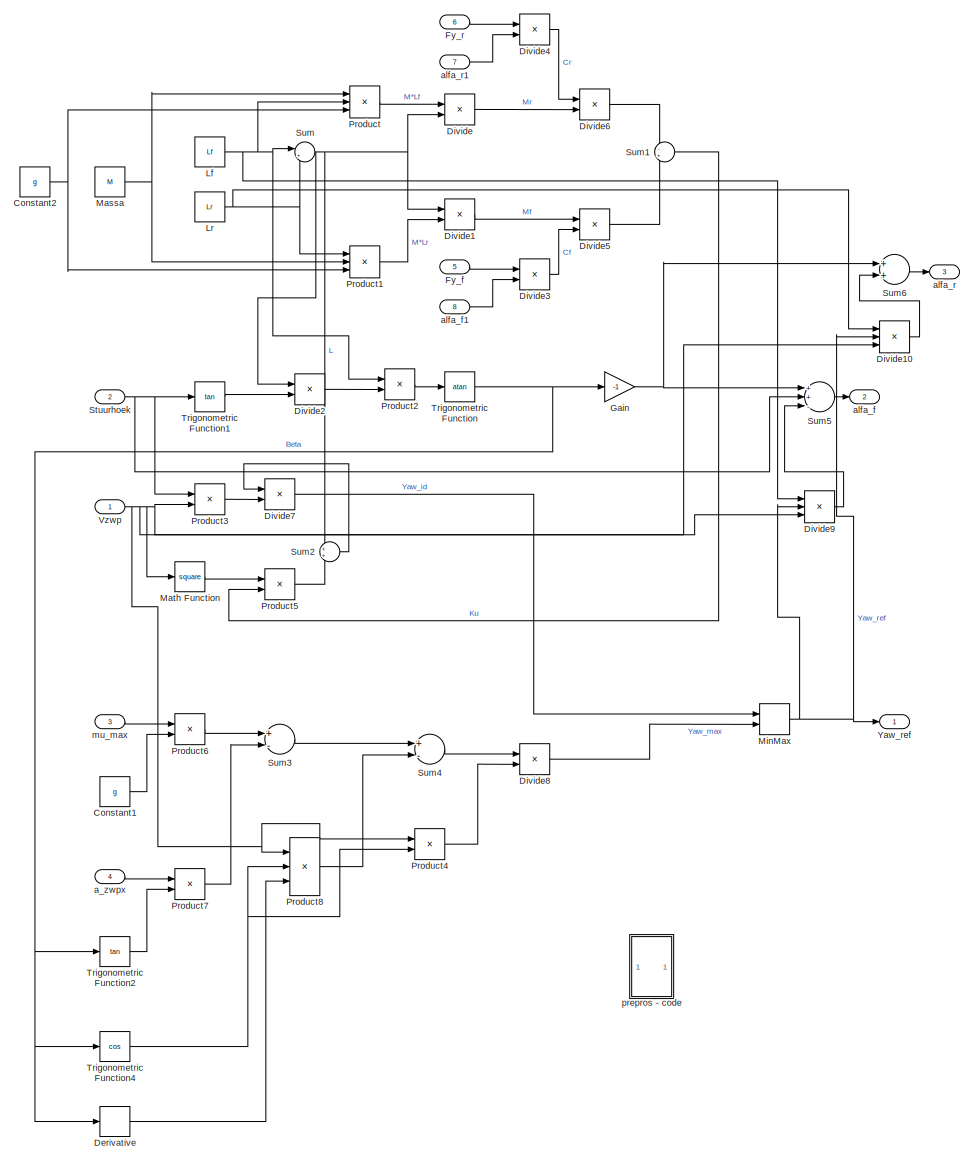
[diagram: CarMaker/TorqueVectoring/Pre-processor - part 1/1, most of the canvas]
BLOCK [SubSystem] CarMaker/TorqueVectoring/Pre-processor
  Ports = [8, 3]
  RequestExecContextInheritance = off
BLOCK [Constant] CarMaker/TorqueVectoring/Pre-processor/Constant1
  Value = g
BLOCK [Constant] CarMaker/TorqueVectoring/Pre-processor/Constant2
  Value = g
BLOCK [Derivative] CarMaker/TorqueVectoring/Pre-processor/Derivative
BLOCK [Product] CarMaker/TorqueVectoring/Pre-processor/Divide
  InputSameDT = off
  Inputs = */
  OutDataTypeStr = Inherit: Inherit via internal rule
  Ports = [2, 1]
  RndMeth = Floor
  SaturateOnIntegerOverflow = off
BLOCK [Product] CarMaker/TorqueVectoring/Pre-processor/Divide1
  InputSameDT = off
  Inputs = /*
  OutDataTypeStr = Inherit: Inherit via internal rule
  Ports = [2, 1]
  RndMeth = Floor
  SaturateOnIntegerOverflow = off
BLOCK [Product] CarMaker/TorqueVectoring/Pre-processor/Divide10
  InputSameDT = off
  Inputs = **/
  OutDataTypeStr = Inherit: Inherit via internal rule
  Ports = [3, 1]
  RndMeth = Floor
  SaturateOnIntegerOverflow = off
BLOCK [Product] CarMaker/TorqueVectoring/Pre-processor/Divide2
  InputSameDT = off
  Inputs = /*
  OutDataTypeStr = Inherit: Inherit via internal rule
  Ports = [2, 1]
  RndMeth = Floor
  SaturateOnIntegerOverflow = off
BLOCK [Product] CarMaker/TorqueVectoring/Pre-processor/Divide3
  InputSameDT = off
  Inputs = */
  OutDataTypeStr = Inherit: Inherit via internal rule
  Ports = [2, 1]
  RndMeth = Floor
  SaturateOnIntegerOverflow = off
BLOCK [Product] CarMaker/TorqueVectoring/Pre-processor/Divide4
  InputSameDT = off
  Inputs = */
  OutDataTypeStr = Inherit: Inherit via internal rule
  Ports = [2, 1]
  RndMeth = Floor
  SaturateOnIntegerOverflow = off
BLOCK [Product] CarMaker/TorqueVectoring/Pre-processor/Divide5
  InputSameDT = off
  Inputs = */
  OutDataTypeStr = Inherit: Inherit via internal rule
  Ports = [2, 1]
  RndMeth = Floor
  SaturateOnIntegerOverflow = off
BLOCK [Product] CarMaker/TorqueVectoring/Pre-processor/Divide6
  InputSameDT = off
  Inputs = /*
  OutDataTypeStr = Inherit: Inherit via internal rule
  Ports = [2, 1]
  RndMeth = Floor
  SaturateOnIntegerOverflow = off
BLOCK [Product] CarMaker/TorqueVectoring/Pre-processor/Divide7
  InputSameDT = off
  Inputs = /*
  OutDataTypeStr = Inherit: Inherit via internal rule
  Ports = [2, 1]
  RndMeth = Floor
  SaturateOnIntegerOverflow = off
BLOCK [Product] CarMaker/TorqueVectoring/Pre-processor/Divide8
  InputSameDT = off
  Inputs = */
  OutDataTypeStr = Inherit: Inherit via internal rule
  Ports = [2, 1]
  RndMeth = Floor
  SaturateOnIntegerOverflow = off
BLOCK [Product] CarMaker/TorqueVectoring/Pre-processor/Divide9
  InputSameDT = off
  Inputs = **/
  OutDataTypeStr = Inherit: Inherit via internal rule
  Ports = [3, 1]
  RndMeth = Floor
  SaturateOnIntegerOverflow = off
BLOCK [Inport] CarMaker/TorqueVectoring/Pre-processor/Fy_f
  IconDisplay = Port number
  Port = 5
BLOCK [Inport] CarMaker/TorqueVectoring/Pre-processor/Fy_r
  IconDisplay = Port number
  Port = 6
BLOCK [Gain] CarMaker/TorqueVectoring/Pre-processor/Gain
  Gain = -1
  OutDataTypeStr = Inherit: Inherit via internal rule
  ParamDataTypeStr = Inherit: Inherit via internal rule
  SaturateOnIntegerOverflow = off
BLOCK [Constant] CarMaker/TorqueVectoring/Pre-processor/Lf
  Value = Lf
BLOCK [Constant] CarMaker/TorqueVectoring/Pre-processor/Lr
  Value = Lr
BLOCK [Constant] CarMaker/TorqueVectoring/Pre-processor/Massa
  Value = M
BLOCK [Math] CarMaker/TorqueVectoring/Pre-processor/Math Function
  Operator = square
  Ports = [1, 1]
BLOCK [MinMax] CarMaker/TorqueVectoring/Pre-processor/MinMax
  InputSameDT = off
  Inputs = 2
  Ports = [2, 1]
  SaturateOnIntegerOverflow = off
BLOCK [Product] CarMaker/TorqueVectoring/Pre-processor/Product
  InputSameDT = off
  Inputs = 3
  OutDataTypeStr = Inherit: Inherit via internal rule
  Ports = [3, 1]
  RndMeth = Floor
  SaturateOnIntegerOverflow = off
BLOCK [Product] CarMaker/TorqueVectoring/Pre-processor/Product1
  InputSameDT = off
  Inputs = 3
  OutDataTypeStr = Inherit: Inherit via internal rule
  Ports = [3, 1]
  RndMeth = Floor
  SaturateOnIntegerOverflow = off
BLOCK [Product] CarMaker/TorqueVectoring/Pre-processor/Product2
  InputSameDT = off
  OutDataTypeStr = Inherit: Inherit via internal rule
  Ports = [2, 1]
  RndMeth = Floor
  SaturateOnIntegerOverflow = off
BLOCK [Product] CarMaker/TorqueVectoring/Pre-processor/Product3
  InputSameDT = off
  OutDataTypeStr = Inherit: Inherit via internal rule
  Ports = [2, 1]
  RndMeth = Floor
  SaturateOnIntegerOverflow = off
BLOCK [Product] CarMaker/TorqueVectoring/Pre-processor/Product4
  InputSameDT = off
  OutDataTypeStr = Inherit: Inherit via internal rule
  Ports = [2, 1]
  RndMeth = Floor
  SaturateOnIntegerOverflow = off
BLOCK [Product] CarMaker/TorqueVectoring/Pre-processor/Product5
  InputSameDT = off
  OutDataTypeStr = Inherit: Inherit via internal rule
  Ports = [2, 1]
  RndMeth = Floor
  SaturateOnIntegerOverflow = off
BLOCK [Product] CarMaker/TorqueVectoring/Pre-processor/Product6
  InputSameDT = off
  OutDataTypeStr = Inherit: Inherit via internal rule
  Ports = [2, 1]
  RndMeth = Floor
  SaturateOnIntegerOverflow = off
BLOCK [Product] CarMaker/TorqueVectoring/Pre-processor/Product7
  InputSameDT = off
  OutDataTypeStr = Inherit: Inherit via internal rule
  Ports = [2, 1]
  RndMeth = Floor
  SaturateOnIntegerOverflow = off
BLOCK [Product] CarMaker/TorqueVectoring/Pre-processor/Product8
  InputSameDT = off
  Inputs = 3
  OutDataTypeStr = Inherit: Inherit via internal rule
  Ports = [3, 1]
  RndMeth = Floor
  SaturateOnIntegerOverflow = off
BLOCK [Inport] CarMaker/TorqueVectoring/Pre-processor/Stuurhoek
  IconDisplay = Port number
  Port = 2
BLOCK [Sum] CarMaker/TorqueVectoring/Pre-processor/Sum
  IconShape = round
  InputSameDT = off
  Inputs = |++
  OutDataTypeStr = Inherit: Inherit via internal rule
  Ports = [2, 1]
  SaturateOnIntegerOverflow = off
BLOCK [Sum] CarMaker/TorqueVectoring/Pre-processor/Sum1
  IconShape = round
  InputSameDT = off
  Inputs = -+
  OutDataTypeStr = Inherit: Inherit via internal rule
  Ports = [2, 1]
  SaturateOnIntegerOverflow = off
BLOCK [Sum] CarMaker/TorqueVectoring/Pre-processor/Sum2
  IconShape = round
  InputSameDT = off
  OutDataTypeStr = Inherit: Inherit via internal rule
  Ports = [2, 1]
  SaturateOnIntegerOverflow = off
BLOCK [Sum] CarMaker/TorqueVectoring/Pre-processor/Sum3
  InputSameDT = off
  Inputs = +-
  OutDataTypeStr = Inherit: Inherit via internal rule
  Ports = [2, 1]
  SaturateOnIntegerOverflow = off
BLOCK [Sum] CarMaker/TorqueVectoring/Pre-processor/Sum4
  InputSameDT = off
  Inputs = +-
  OutDataTypeStr = Inherit: Inherit via internal rule
  Ports = [2, 1]
  SaturateOnIntegerOverflow = off
BLOCK [Sum] CarMaker/TorqueVectoring/Pre-processor/Sum5
  InputSameDT = off
  Inputs = ++-
  OutDataTypeStr = Inherit: Inherit via internal rule
  Ports = [3, 1]
  SaturateOnIntegerOverflow = off
BLOCK [Sum] CarMaker/TorqueVectoring/Pre-processor/Sum6
  InputSameDT = off
  OutDataTypeStr = Inherit: Inherit via internal rule
  Ports = [2, 1]
  SaturateOnIntegerOverflow = off
BLOCK [Trigonometry] CarMaker/TorqueVectoring/Pre-processor/Trigonometric Function
  Operator = atan
  Ports = [1, 1]
BLOCK [Trigonometry] CarMaker/TorqueVectoring/Pre-processor/Trigonometric Function1
  Operator = tan
  Ports = [1, 1]
BLOCK [Trigonometry] CarMaker/TorqueVectoring/Pre-processor/Trigonometric Function2
  Operator = tan
  Ports = [1, 1]
BLOCK [Trigonometry] CarMaker/TorqueVectoring/Pre-processor/Trigonometric Function4
  Operator = cos
  Ports = [1, 1]
BLOCK [Inport] CarMaker/TorqueVectoring/Pre-processor/Vzwp
  IconDisplay = Port number
BLOCK [Outport] CarMaker/TorqueVectoring/Pre-processor/Yaw_ref
  IconDisplay = Port number
BLOCK [Inport] CarMaker/TorqueVectoring/Pre-processor/a_zwpx
  IconDisplay = Port number
  Port = 4
BLOCK [Outport] CarMaker/TorqueVectoring/Pre-processor/alfa_f
  IconDisplay = Port number
  Port = 2
BLOCK [Inport] CarMaker/TorqueVectoring/Pre-processor/alfa_f1
  IconDisplay = Port number
  Port = 8
BLOCK [Outport] CarMaker/TorqueVectoring/Pre-processor/alfa_r
  IconDisplay = Port number
  Port = 3
BLOCK [Inport] CarMaker/TorqueVectoring/Pre-processor/alfa_r1
  IconDisplay = Port number
  Port = 7
BLOCK [Inport] CarMaker/TorqueVectoring/Pre-processor/mu_max
  IconDisplay = Port number
  Port = 3
BLOCK [SubSystem] CarMaker/TorqueVectoring/Pre-processor/prepros - code
  Ports = []
  RequestExecContextInheritance = off
BLOCK [Ground] CarMaker/TorqueVectoring/Pre-processor/prepros - code/Ground
BLOCK [Ground] CarMaker/TorqueVectoring/Pre-processor/prepros - code/Ground1
BLOCK [Ground] CarMaker/TorqueVectoring/Pre-processor/prepros - code/Ground2
BLOCK [Ground] CarMaker/TorqueVectoring/Pre-processor/prepros - code/Ground3
BLOCK [Ground] CarMaker/TorqueVectoring/Pre-processor/prepros - code/Ground4
BLOCK [Ground] CarMaker/TorqueVectoring/Pre-processor/prepros - code/Ground5
BLOCK [Ground] CarMaker/TorqueVectoring/Pre-processor/prepros - code/Ground6
BLOCK [Ground] CarMaker/TorqueVectoring/Pre-processor/prepros - code/Ground7
BLOCK [SubSystem] CarMaker/TorqueVectoring/Pre-processor/prepros - code/Pre-processor
  ErrorFcn = Stateflow.Translate.translate
  PermitHierarchicalResolution = ExplicitOnly
  Ports = [8, 3]
  RequestExecContextInheritance = off
  SFBlockType = MATLAB Function
  TreatAsAtomicUnit = on
BLOCK [Demux] CarMaker/TorqueVectoring/Pre-processor/prepros - code/Pre-processor/ Demux 
  Outputs = 1
  Ports = [1, 1]
BLOCK [S-Function] CarMaker/TorqueVectoring/Pre-processor/prepros - code/Pre-processor/ SFunction 
  EnableBusSupport = on
  FunctionName = sf_sfun
  PortCounts = [8 4]
  Ports = [8, 4]
  Tag = Stateflow S-Function generic_IsaacV3 13
BLOCK [Terminator] CarMaker/TorqueVectoring/Pre-processor/prepros - code/Pre-processor/ Terminator 
BLOCK [Inport] CarMaker/TorqueVectoring/Pre-processor/prepros - code/Pre-processor/Fy_f
  IconDisplay = Port number
  Port = 5
BLOCK [Inport] CarMaker/TorqueVectoring/Pre-processor/prepros - code/Pre-processor/Fy_r
  IconDisplay = Port number
  Port = 6
BLOCK [Inport] CarMaker/TorqueVectoring/Pre-processor/prepros - code/Pre-processor/Vzwp
  IconDisplay = Port number
BLOCK [Outport] CarMaker/TorqueVectoring/Pre-processor/prepros - code/Pre-processor/Yaw_ref
  IconDisplay = Port number
BLOCK [Inport] CarMaker/TorqueVectoring/Pre-processor/prepros - code/Pre-processor/a_zwpx
  IconDisplay = Port number
  Port = 4
BLOCK [Outport] CarMaker/TorqueVectoring/Pre-processor/prepros - code/Pre-processor/alfa_f
  IconDisplay = Port number
  Port = 2
BLOCK [Inport] CarMaker/TorqueVectoring/Pre-processor/prepros - code/Pre-processor/alfa_f1
  IconDisplay = Port number
  Port = 8
BLOCK [Outport] CarMaker/TorqueVectoring/Pre-processor/prepros - code/Pre-processor/alfa_r
  IconDisplay = Port number
  Port = 3
BLOCK [Inport] CarMaker/TorqueVectoring/Pre-processor/prepros - code/Pre-processor/alfa_r1
  IconDisplay = Port number
  Port = 7
BLOCK [Inport] CarMaker/TorqueVectoring/Pre-processor/prepros - code/Pre-processor/mu_max
  IconDisplay = Port number
  Port = 3
BLOCK [Inport] CarMaker/TorqueVectoring/Pre-processor/prepros - code/Pre-processor/stuurhoek
  IconDisplay = Port number
  Port = 2
BLOCK [Terminator] CarMaker/TorqueVectoring/Pre-processor/prepros - code/Terminator
BLOCK [Terminator] CarMaker/TorqueVectoring/Pre-processor/prepros - code/Terminator1
BLOCK [Terminator] CarMaker/TorqueVectoring/Pre-processor/prepros - code/Terminator2
BLOCK [Scope] CarMaker/TorqueVectoring/Scope
  Floating = off
  NumInputPorts = 2
  Ports = [2]
  SaveName = ScopeData11
  YMax = 25~1.5
  YMin = -175~-1.5
BLOCK [SignalSpecification] CarMaker/TorqueVectoring/Signal Specification
  Dimensions = 1
BLOCK [SignalSpecification] CarMaker/TorqueVectoring/Signal Specification1
  Dimensions = 1
BLOCK [Sum] CarMaker/TorqueVectoring/Sum4
  IconShape = round
  InputSameDT = off
  Inputs = |+-
  OutDataTypeStr = Inherit: Inherit via internal rule
  Ports = [2, 1]
  SaturateOnIntegerOverflow = off
BLOCK [Inport] CarMaker/TorqueVectoring/Tgevraagd
  IconDisplay = Port number
  Port = 2
BLOCK [Outport] CarMaker/TorqueVectoring/Trl
  IconDisplay = Port number
BLOCK [Outport] CarMaker/TorqueVectoring/Trr
  IconDisplay = Port number
  Port = 2
BLOCK [SubSystem] CarMaker/Traction Control Logic
  ErrorFcn = Stateflow.Translate.translate
  PermitHierarchicalResolution = ExplicitOnly
  Ports = [9, 2]
  RequestExecContextInheritance = off
  SFBlockType = Chart
  TreatAsAtomicUnit = on
BLOCK [Demux] CarMaker/Traction Control Logic/ Demux 
  Outputs = 1
  Ports = [1, 1]
BLOCK [S-Function] CarMaker/Traction Control Logic/ SFunction 
  EnableBusSupport = on
  FunctionName = sf_sfun
  PortCounts = [9 3]
  Ports = [9, 3]
  Tag = Stateflow S-Function generic_IsaacV3 2
BLOCK [Terminator] CarMaker/Traction Control Logic/ Terminator 
BLOCK [Inport] CarMaker/Traction Control Logic/LC
  IconDisplay = Port number
  Port = 5
BLOCK [Inport] CarMaker/Traction Control Logic/SC
  IconDisplay = Port number
  Port = 3
BLOCK [Inport] CarMaker/Traction Control Logic/Steering_Angle
  IconDisplay = Port number
  Port = 2
BLOCK [Inport] CarMaker/Traction Control Logic/TV
  IconDisplay = Port number
  Port = 4
BLOCK [Outport] CarMaker/Traction Control Logic/T_OutRL_Nm
  IconDisplay = Port number
BLOCK [Outport] CarMaker/Traction Control Logic/T_OutRR_Nm
  IconDisplay = Port number
  Port = 2
BLOCK [Inport] CarMaker/Traction Control Logic/Tin_SC_RL
  IconDisplay = Port number
  Port = 8
BLOCK [Inport] CarMaker/Traction Control Logic/Tin_SC_RR
  IconDisplay = Port number
  Port = 9
BLOCK [Inport] CarMaker/Traction Control Logic/Tin_TV_RL
  IconDisplay = Port number
  Port = 6
BLOCK [Inport] CarMaker/Traction Control Logic/Tin_TV_RR
  IconDisplay = Port number
  Port = 7
BLOCK [Inport] CarMaker/Traction Control Logic/Tin_ped
  IconDisplay = Port number
BLOCK [SubSystem] CarMaker/Vehicle Sensors
  Ports = [0, 1]
  RequestExecContextInheritance = off
BLOCK [BusCreator] CarMaker/Vehicle Sensors/Bus Creator
  DisplayOption = bar
  Inputs = 19
  Ports = [19, 1]
BLOCK [Gain] CarMaker/Vehicle Sensors/Gain
  Gain = 1/2
  OutDataTypeStr = Inherit: Inherit via internal rule
  ParamDataTypeStr = Inherit: Inherit via internal rule
  SaturateOnIntegerOverflow = off
BLOCK [SubSystem] CarMaker/Vehicle Sensors/PreProcessor
  Ports = [1, 1]
  RequestExecContextInheritance = off
BLOCK [BusCreator] CarMaker/Vehicle Sensors/PreProcessor/Bus Creator
  DisplayOption = bar
  Inputs = 5
  Ports = [5, 1]
BLOCK [BusSelector] CarMaker/Vehicle Sensors/PreProcessor/Bus Selector
  OutputSignals = Read_WheelspeedFL_rad/s,Read_WheelspeedFR_rad/s,Read_WheelspeedRL_rad/s,Read_WheelspeedRR_rad/s
  Ports = [1, 4]
BLOCK [SubSystem] CarMaker/Vehicle Sensors/PreProcessor/MATLAB Function
  ErrorFcn = Stateflow.Translate.translate
  PermitHierarchicalResolution = ExplicitOnly
  Ports = [4, 4]
  RequestExecContextInheritance = off
  SFBlockType = MATLAB Function
  TreatAsAtomicUnit = on
BLOCK [Demux] CarMaker/Vehicle Sensors/PreProcessor/MATLAB Function/ Demux 
  Outputs = 1
  Ports = [1, 1]
BLOCK [S-Function] CarMaker/Vehicle Sensors/PreProcessor/MATLAB Function/ SFunction 
  EnableBusSupport = on
  FunctionName = sf_sfun
  PortCounts = [4 5]
  Ports = [4, 5]
  Tag = Stateflow S-Function generic_IsaacV3 9
BLOCK [Terminator] CarMaker/Vehicle Sensors/PreProcessor/MATLAB Function/ Terminator 
BLOCK [Outport] CarMaker/Vehicle Sensors/PreProcessor/MATLAB Function/slip_ratio_RL
  IconDisplay = Port number
  Port = 3
BLOCK [Outport] CarMaker/Vehicle Sensors/PreProcessor/MATLAB Function/slip_ratio_RR
  IconDisplay = Port number
  Port = 4
BLOCK [Outport] CarMaker/Vehicle Sensors/PreProcessor/MATLAB Function/slip_ratio_gem
  IconDisplay = Port number
BLOCK [Inport] CarMaker/Vehicle Sensors/PreProcessor/MATLAB Function/speedfl
  IconDisplay = Port number
BLOCK [Inport] CarMaker/Vehicle Sensors/PreProcessor/MATLAB Function/speedfr
  IconDisplay = Port number
  Port = 2
BLOCK [Inport] CarMaker/Vehicle Sensors/PreProcessor/MATLAB Function/speedrl
  IconDisplay = Port number
  Port = 3
BLOCK [Inport] CarMaker/Vehicle Sensors/PreProcessor/MATLAB Function/speedrr
  IconDisplay = Port number
  Port = 4
BLOCK [Outport] CarMaker/Vehicle Sensors/PreProcessor/MATLAB Function/vehicle_speed_mps
  IconDisplay = Port number
  Port = 2
BLOCK [Inport] CarMaker/Vehicle Sensors/PreProcessor/SensorBus
  IconDisplay = Port number
BLOCK [Outport] CarMaker/Vehicle Sensors/PreProcessor/SensorBusOut
  IconDisplay = Port number
BLOCK [Reference] CarMaker/Vehicle Sensors/Read_BatteryHV_Current_A  REF=CarMaker4SL/Read CM Dict
  Ports = [0, 1]
  SourceBlock = CarMaker4SL/Read CM Dict
  SourceType = Read CarMaker Dictionary Variable(s)
  xname = PT.BattHV.Current
  xsync = off
BLOCK [Reference] CarMaker/Vehicle Sensors/Read_Driver_brake_0//1  REF=CarMaker4SL/Read CM Dict
  Ports = [0, 1]
  SourceBlock = CarMaker4SL/Read CM Dict
  SourceType = Read CarMaker Dictionary Variable(s)
  xname = DM.Brake
  xsync = off
BLOCK [Reference] CarMaker/Vehicle Sensors/Read_Driver_gas_0//1  REF=CarMaker4SL/Read CM Dict
  Ports = [0, 1]
  SourceBlock = CarMaker4SL/Read CM Dict
  SourceType = Read CarMaker Dictionary Variable(s)
  xname = DM.Gas
  xsync = off
BLOCK [Reference] CarMaker/Vehicle Sensors/Read_ElecMotorPowerRL_W  REF=CarMaker4SL/Read CM Dict
  Ports = [0, 1]
  SourceBlock = CarMaker4SL/Read CM Dict
  SourceType = Read CarMaker Dictionary Variable(s)
  xname = PT.Motor.PwrElec
  xsync = off
BLOCK [Reference] CarMaker/Vehicle Sensors/Read_ElecMotorPowerRR_W  REF=CarMaker4SL/Read CM Dict
  Ports = [0, 1]
  SourceBlock = CarMaker4SL/Read CM Dict
  SourceType = Read CarMaker Dictionary Variable(s)
  xname = PT.Motor1.PwrElec
  xsync = off
BLOCK [Reference] CarMaker/Vehicle Sensors/Read_SpringLenghtFL_m  REF=CarMaker4SL/Read CM Dict
  Ports = [0, 1]
  SourceBlock = CarMaker4SL/Read CM Dict
  SourceType = Read CarMaker Dictionary Variable(s)
  xname = Car.SpringFL.l
  xsync = off
BLOCK [Reference] CarMaker/Vehicle Sensors/Read_SpringLenghtFR_m  REF=CarMaker4SL/Read CM Dict
  Ports = [0, 1]
  SourceBlock = CarMaker4SL/Read CM Dict
  SourceType = Read CarMaker Dictionary Variable(s)
  xname = Car.SpringFR.l
  xsync = off
BLOCK [Reference] CarMaker/Vehicle Sensors/Read_SpringLenghtRL_m  REF=CarMaker4SL/Read CM Dict
  Ports = [0, 1]
  SourceBlock = CarMaker4SL/Read CM Dict
  SourceType = Read CarMaker Dictionary Variable(s)
  xname = Car.SpringRL.l
  xsync = off
BLOCK [Reference] CarMaker/Vehicle Sensors/Read_SpringLenghtRR_m  REF=CarMaker4SL/Read CM Dict
  Ports = [0, 1]
  SourceBlock = CarMaker4SL/Read CM Dict
  SourceType = Read CarMaker Dictionary Variable(s)
  xname = Car.SpringRR.l
  xsync = off
BLOCK [Reference] CarMaker/Vehicle Sensors/Read_Steering_angle_rad  REF=CarMaker4SL/Read CM Dict
  Ports = [0, 1]
  SourceBlock = CarMaker4SL/Read CM Dict
  SourceType = Read CarMaker Dictionary Variable(s)
  xname = Steer.WhlAng
  xsync = off
BLOCK [Reference] CarMaker/Vehicle Sensors/Read_Vhcl_SteerAngleFL  REF=CarMaker4SL/Read CM Dict
  Ports = [0, 1]
  SourceBlock = CarMaker4SL/Read CM Dict
  SourceType = Read CarMaker Dictionary Variable(s)
  xname = Car.SteerAngleFL
  xsync = off
BLOCK [Reference] CarMaker/Vehicle Sensors/Read_Vhcl_SteerAngleFR  REF=CarMaker4SL/Read CM Dict
  Ports = [0, 1]
  SourceBlock = CarMaker4SL/Read CM Dict
  SourceType = Read CarMaker Dictionary Variable(s)
  xname = Car.SteerAngleFR
  xsync = off
BLOCK [Reference] CarMaker/Vehicle Sensors/Read_Vhcl_YawRate  REF=CarMaker4SL/Read CM Dict
  Ports = [0, 1]
  SourceBlock = CarMaker4SL/Read CM Dict
  SourceType = Read CarMaker Dictionary Variable(s)
  xname = Vhcl.YawRate
  xsync = off
BLOCK [Reference] CarMaker/Vehicle Sensors/Read_WheelspeedFL_rad//s  REF=CarMaker4SL/Read CM Dict
  Ports = [0, 1]
  SourceBlock = CarMaker4SL/Read CM Dict
  SourceType = Read CarMaker Dictionary Variable(s)
  xname = Vhcl.FL.rotv
  xsync = off
BLOCK [Reference] CarMaker/Vehicle Sensors/Read_WheelspeedFR_rad//s  REF=CarMaker4SL/Read CM Dict
  Ports = [0, 1]
  SourceBlock = CarMaker4SL/Read CM Dict
  SourceType = Read CarMaker Dictionary Variable(s)
  xname = Vhcl.FR.rotv
  xsync = off
BLOCK [Reference] CarMaker/Vehicle Sensors/Read_WheelspeedRL_rad//s  REF=CarMaker4SL/Read CM Dict
  Ports = [0, 1]
  SourceBlock = CarMaker4SL/Read CM Dict
  SourceType = Read CarMaker Dictionary Variable(s)
  xname = Vhcl.RL.rotv
  xsync = off
BLOCK [Reference] CarMaker/Vehicle Sensors/Read_WheelspeedRR_rad//s  REF=CarMaker4SL/Read CM Dict
  Ports = [0, 1]
  SourceBlock = CarMaker4SL/Read CM Dict
  SourceType = Read CarMaker Dictionary Variable(s)
  xname = Vhcl.RR.rotv
  xsync = off
BLOCK [Reference] CarMaker/Vehicle Sensors/Read_Yawacc_rad//s²  REF=CarMaker4SL/Read CM Dict
  Ports = [0, 1]
  SourceBlock = CarMaker4SL/Read CM Dict
  SourceType = Read CarMaker Dictionary Variable(s)
  xname = Vhcl.YawAcc
  xsync = off
BLOCK [Reference] CarMaker/Vehicle Sensors/Read_ax_m//s²  REF=CarMaker4SL/Read CM Dict
  Ports = [0, 1]
  SourceBlock = CarMaker4SL/Read CM Dict
  SourceType = Read CarMaker Dictionary Variable(s)
  xname = Car.Con.ax_1
  xsync = off
BLOCK [Reference] CarMaker/Vehicle Sensors/Read_ay_m//s²  REF=CarMaker4SL/Read CM Dict
  Ports = [0, 1]
  SourceBlock = CarMaker4SL/Read CM Dict
  SourceType = Read CarMaker Dictionary Variable(s)
  xname = Car.Con.ay_1
  xsync = off
BLOCK [Outport] CarMaker/Vehicle Sensors/Sensor inputs
  IconDisplay = Port number
BLOCK [SubSystem] CarMaker/Vehicle Sensors/SensorIn Plots
  Ports = [1]
  RequestExecContextInheritance = off
BLOCK [BusSelector] CarMaker/Vehicle Sensors/SensorIn Plots/Bus Selector
  OutputSignals = SensorBus.Read_ElecMotorPowerRL_kW,SensorBus.Read_ElecMotorPowerRR_kW
  Ports = [1, 2]
BLOCK [BusSelector] CarMaker/Vehicle Sensors/SensorIn Plots/Bus Selector1
  OutputSignals = SensorBus.Read_WheelspeedFL_rad/s,SensorBus.Read_WheelspeedFR_rad/s,SensorBus.Read_WheelspeedRL_rad/s,SensorBus.Read_WheelspeedRR_rad/s
  Ports = [1, 4]
BLOCK [BusSelector] CarMaker/Vehicle Sensors/SensorIn Plots/Bus Selector2
  OutputSignals = SensorBus.Read_Steering_angle_rad
  Ports = [1, 1]
BLOCK [BusSelector] CarMaker/Vehicle Sensors/SensorIn Plots/Bus Selector3
  OutputSignals = SR_RL,SR_RR
  Ports = [1, 2]
BLOCK [Gain] CarMaker/Vehicle Sensors/SensorIn Plots/Gain
  Gain = 60/(2*pi)
  OutDataTypeStr = Inherit: Inherit via internal rule
  ParamDataTypeStr = Inherit: Inherit via internal rule
  SaturateOnIntegerOverflow = off
BLOCK [Gain] CarMaker/Vehicle Sensors/SensorIn Plots/Gain1
  Gain = 60/(2*pi)
  OutDataTypeStr = Inherit: Inherit via internal rule
  ParamDataTypeStr = Inherit: Inherit via internal rule
  SaturateOnIntegerOverflow = off
BLOCK [Gain] CarMaker/Vehicle Sensors/SensorIn Plots/Gain2
  Gain = 60/(2*pi)
  OutDataTypeStr = Inherit: Inherit via internal rule
  ParamDataTypeStr = Inherit: Inherit via internal rule
  SaturateOnIntegerOverflow = off
BLOCK [Gain] CarMaker/Vehicle Sensors/SensorIn Plots/Gain3
  Gain = 60/(2*pi)
  OutDataTypeStr = Inherit: Inherit via internal rule
  ParamDataTypeStr = Inherit: Inherit via internal rule
  SaturateOnIntegerOverflow = off
BLOCK [Gain] CarMaker/Vehicle Sensors/SensorIn Plots/Gain4
  Gain = 360/(2*pi)
  OutDataTypeStr = Inherit: Inherit via internal rule
  ParamDataTypeStr = Inherit: Inherit via internal rule
  SaturateOnIntegerOverflow = off
BLOCK [Scope] CarMaker/Vehicle Sensors/SensorIn Plots/MotorPower_kW
  Floating = off
  NumInputPorts = 2
  Ports = [2]
  SaveName = ScopeData9
  YMax = 65~65
  YMin = -40~-20
  ZoomMode = yonly
BLOCK [Scope] CarMaker/Vehicle Sensors/SensorIn Plots/Rear Slip Ratio
  Floating = off
  NumInputPorts = 2
  Ports = [2]
  SaveName = ScopeData19
  YMax = 1~1
  YMin = -0.5~-0.5
  ZoomMode = xonly
BLOCK [Inport] CarMaker/Vehicle Sensors/SensorIn Plots/SensorBus
  IconDisplay = Port number
BLOCK [Scope] CarMaker/Vehicle Sensors/SensorIn Plots/SteeringAngle_degrees
  Floating = off
  NumInputPorts = 1
  Ports = [1]
  SaveName = ScopeData15
  YMax = 2
  YMin = -2
BLOCK [Scope] CarMaker/Vehicle Sensors/SensorIn Plots/Wheelspeed_RPM
  Floating = off
  NumInputPorts = 4
  Ports = [4]
  SaveName = ScopeData12
  YMax = 2400~2400~2400~2400
  YMin = -100~-100~-100~-100
  ZoomMode = xonly
BLOCK [Sum] CarMaker/Vehicle Sensors/Sum
  IconShape = round
  InputSameDT = off
  Inputs = |++
  OutDataTypeStr = Inherit: Inherit via internal rule
  Ports = [2, 1]
  SaturateOnIntegerOverflow = off
BLOCK [Gain] CarMaker/Vehicle Sensors/convert
  Gain = 1/1000
  OutDataTypeStr = Inherit: Inherit via internal rule
  ParamDataTypeStr = Inherit: Inherit via internal rule
  SaturateOnIntegerOverflow = off
BLOCK [Gain] CarMaker/Vehicle Sensors/convert1
  Gain = 1/1000
  OutDataTypeStr = Inherit: Inherit via internal rule
  ParamDataTypeStr = Inherit: Inherit via internal rule
  SaturateOnIntegerOverflow = off
BLOCK [SubSystem] CarMaker/VehicleControl
  Ports = [2, 7]
  RequestExecContextInheritance = off
BLOCK [BusCreator] CarMaker/VehicleControl/Bus Creator2
  DisplayOption = bar
  Inputs = 2
  Ports = [2, 1]
BLOCK [SubSystem] CarMaker/VehicleControl/CreateBus Vhcl.Misc
  Ports = [1, 1]
  RequestExecContextInheritance = off
BLOCK [BusCreator] CarMaker/VehicleControl/CreateBus Vhcl.Misc/Bus Creator5
  DisplayOption = bar
  Inputs = 11
  Ports = [11, 1]
BLOCK [Demux] CarMaker/VehicleControl/CreateBus Vhcl.Misc/Demux5
  Outputs = 11
  Ports = [1, 11]
BLOCK [Inport] CarMaker/VehicleControl/CreateBus Vhcl.Misc/In1
  IconDisplay = Port number
BLOCK [Outport] CarMaker/VehicleControl/CreateBus Vhcl.Misc/Out1
  IconDisplay = Port number
BLOCK [SubSystem] CarMaker/VehicleControl/CreateBus Vhcl.Wheel.In
  Ports = [1, 1]
  RequestExecContextInheritance = off
BLOCK [BusCreator] CarMaker/VehicleControl/CreateBus Vhcl.Wheel.In/Bus Creator1
  DisplayOption = bar
  Inputs = 12
  Ports = [12, 1]
BLOCK [Demux] CarMaker/VehicleControl/CreateBus Vhcl.Wheel.In/Demux1
  Outputs = 12
  Ports = [1, 12]
BLOCK [Inport] CarMaker/VehicleControl/CreateBus Vhcl.Wheel.In/In1
  IconDisplay = Port number
BLOCK [Outport] CarMaker/VehicleControl/CreateBus Vhcl.Wheel.In/Out1
  IconDisplay = Port number
BLOCK [Scope] CarMaker/VehicleControl/CreateBus Vhcl.Wheel.In/Scope
  Floating = off
  NumInputPorts = 1
  Ports = [1]
  SaveName = ScopeData1
BLOCK [Scope] CarMaker/VehicleControl/CreateBus Vhcl.Wheel.In/Scope1
  Floating = off
  NumInputPorts = 1
  Ports = [1]
  SaveName = ScopeData2
  YMax = 400
  YMin = -400
BLOCK [Scope] CarMaker/VehicleControl/CreateBus Vhcl.Wheel.In/Scope2
  Floating = off
  NumInputPorts = 1
  Ports = [1]
  SaveName = ScopeData3
  YMax = 400
  YMin = -10
BLOCK [Scope] CarMaker/VehicleControl/CreateBus Vhcl.Wheel.In/Scope3
  Floating = off
  NumInputPorts = 1
  Ports = [1]
  SaveName = ScopeData4
  YMax = 400
  YMin = -400
BLOCK [Scope] CarMaker/VehicleControl/CreateBus Vhcl.Wheel.In/Scope4
  Floating = off
  NumInputPorts = 1
  Ports = [1]
  SaveName = ScopeData5
  YMax = 400
  YMin = -400
BLOCK [Scope] CarMaker/VehicleControl/CreateBus Vhcl.Wheel.In/Scope5
  Floating = off
  NumInputPorts = 1
  Ports = [1]
  SaveName = ScopeData6
BLOCK [SubSystem] CarMaker/VehicleControl/CreateBus VhclCtrl
  Ports = [1, 1]
  RequestExecContextInheritance = off
BLOCK [SubSystem] CarMaker/VehicleControl/CreateBus VhclCtrl.PT
  Ports = [1, 1]
  RequestExecContextInheritance = off
BLOCK [BusCreator] CarMaker/VehicleControl/CreateBus VhclCtrl.PT/BusCreator
  Inputs = 11
  Ports = [11, 1]
BLOCK [Demux] CarMaker/VehicleControl/CreateBus VhclCtrl.PT/Demux
  Outputs = 11
  Ports = [1, 11]
BLOCK [Inport] CarMaker/VehicleControl/CreateBus VhclCtrl.PT/In1
  IconDisplay = Port number
BLOCK [Outport] CarMaker/VehicleControl/CreateBus VhclCtrl.PT/Out1
  IconDisplay = Port number
BLOCK [SubSystem] CarMaker/VehicleControl/CreateBus VhclCtrl.Steering
  Ports = [1, 1]
  RequestExecContextInheritance = off
BLOCK [BusCreator] CarMaker/VehicleControl/CreateBus VhclCtrl.Steering/Bus Creator
  DisplayOption = bar
  Inputs = 5
  Ports = [5, 1]
BLOCK [Demux] CarMaker/VehicleControl/CreateBus VhclCtrl.Steering/Demux
  Outputs = 5
  Ports = [1, 5]
BLOCK [Inport] CarMaker/VehicleControl/CreateBus VhclCtrl.Steering/In1
  IconDisplay = Port number
BLOCK [Outport] CarMaker/VehicleControl/CreateBus VhclCtrl.Steering/Out1
  IconDisplay = Port number
BLOCK [BusCreator] CarMaker/VehicleControl/CreateBus VhclCtrl/BusCreator
  Inputs = 29
  Ports = [29, 1]
BLOCK [Demux] CarMaker/VehicleControl/CreateBus VhclCtrl/Demux
  Outputs = 29
  Ports = [1, 29]
BLOCK [Inport] CarMaker/VehicleControl/CreateBus VhclCtrl/In
  IconDisplay = Port number
BLOCK [Outport] CarMaker/VehicleControl/CreateBus VhclCtrl/Out
  IconDisplay = Port number
BLOCK [Demux] CarMaker/VehicleControl/Demux2
  Outputs = 2
  Ports = [1, 2]
BLOCK [Inport] CarMaker/VehicleControl/DrivMan.In
  IconDisplay = Port number
  Port = 2
BLOCK [Inport] CarMaker/VehicleControl/Sync_In
  IconDisplay = Port number
BLOCK [Outport] CarMaker/VehicleControl/Sync_Out
  IconDisplay = Port number
BLOCK [S-Function] CarMaker/VehicleControl/VehicleControl
  FunctionName = CM_Sfun
  Parameters = 'VehicleControl'
  Ports = [2, 2]
BLOCK [S-Function] CarMaker/VehicleControl/VehicleControlUpd
  FunctionName = CM_Sfun
  Parameters = 'VehicleControlUpd'
  Ports = [2, 7]
BLOCK [Outport] CarMaker/VehicleControl/Vhcl.Misc
  IconDisplay = Port number
  Port = 5
BLOCK [Outport] CarMaker/VehicleControl/Vhcl.Model.Source
  IconDisplay = Port number
  Port = 2
BLOCK [Outport] CarMaker/VehicleControl/Vhcl.Wheel.In
  IconDisplay = Port number
  Port = 4
BLOCK [Outport] CarMaker/VehicleControl/VhclCtrl.Brake
  IconDisplay = Port number
  Port = 6
BLOCK [Outport] CarMaker/VehicleControl/VhclCtrl.PT
  IconDisplay = Port number
  Port = 7
BLOCK [Outport] CarMaker/VehicleControl/VhclCtrl.Steering
  IconDisplay = Port number
  Port = 3
BLOCK [Reference] Edit Model Configuration  REF=CarMaker4SL/Edit Model
Configuration
  Ports = []
  SourceBlock = CarMaker4SL/Edit Model\nConfiguration
  UserDataPersistent = on
BLOCK [SubSystem] Open GUI
  LoadFcn = if ~length(which('cmcmd')), cmenv; end
  OpenFcn = cmblockmagic('gui_fix_display'); CM_Simulink
  Ports = []
  RequestExecContextInheritance = off
BLOCK [S-Function] Open GUI/S-Function
  FunctionName = cm_gui
  Ports = []
ANNOTATION (root): CarMaker 5.0.2
ANNOTATION (root): Containing: Hoosier 18x7,5 10 R25B Tire model CAD Object file Motor T-w data
ANNOTATION (root): Isaac Car Model 2015-2016
ANNOTATION CarMaker: Controller
ANNOTATION CarMaker: PTControl: CM4SL MTControl: Basic
ANNOTATION CarMaker: Sensor input signals
ANNOTATION CarMaker: Sensor output signals
ANNOTATION CarMaker/DrivMan: There's rarely a reason to override DrivMan signals. Use the VehicleControl interface for this purpose.
ANNOTATION CarMaker/IPG Vehicle/Brake: When replacing the entire braking system, be sure to add '-disablebrake' to the command line arguments in the CarMaker Model Configuration block.
ANNOTATION CarMaker/IPG Vehicle/CarAndTrailer/Forces/External Suspension Forces: Insert your suspension forces model here.
ANNOTATION CarMaker/IPG Vehicle/CarAndTrailer/Forces/External Suspension Forces: The FSpring/FDamp/FStabi/FBuf outputs of this subsystem will be active if the SuspExtFrcs.Kind entry in the vehicle parameter file is either not present or is empty or has the value "CM4SL".
ANNOTATION CarMaker/IPG Vehicle/CarAndTrailer/Forces/Tires: The TireXX_Out signals will only be used if FileIdent is "CarMaker-Tire-CM4SL" in the tire parameter file! An example parameter file can be found in Data/Tire/DT_CM4SL_UserTire.
ANNOTATION CarMaker/IPG Vehicle/CarAndTrailer/Forces/Tires/TireFL: Insert your tire model here.
ANNOTATION CarMaker/IPG Vehicle/CarAndTrailer/Forces/Tires/TireFR: Insert your tire model here.
ANNOTATION CarMaker/IPG Vehicle/CarAndTrailer/Forces/Tires/TireRL: Insert your tire model here.
ANNOTATION CarMaker/IPG Vehicle/CarAndTrailer/Forces/Tires/TireRR: Insert your tire model here.
ANNOTATION CarMaker/IPG Vehicle/CarAndTrailer/Steering: When replacing the entire steering system, be sure to add '-disablesteering' to the command line arguments in the CarMaker Model Configuration block.
ANNOTATION CarMaker/IPG Vehicle/PowerTrain: When replacing the entire powertrain, be sure to add '-disablepowertrain' to the command line arguments in the CarMaker Model Configuration block.
ANNOTATION CarMaker/MTTE Slipcontrol: Max Torque estimator RL
ANNOTATION CarMaker/MTTE Slipcontrol: Max torque estimator RR
ANNOTATION CarMaker/MTTE Slipcontrol: Sensor in
ANNOTATION CarMaker/PedalMapping: Control logic pedal
ANNOTATION CarMaker/PedalMapping: Pedal Torque map - regen
ANNOTATION CarMaker/PedalMapping: Simple pedalMap Launch Control
ANNOTATION CarMaker/VehicleControl: When implementing a vehicle control model, be sure to add '-disablevehiclecontrol' to the command line arguments in the CarMaker Model Configuration block. Otherwise your model will possibly not see the original DrivMan signals on its inputs, but those of a currently activated C-coded vehicle control model instead.
LINE CarMaker/Abs:1 -> CarMaker/Traction Control Logic:2
LINE CarMaker/Bus Selector1:1 -> CarMaker/Gain:1
LINE CarMaker/CM_FIRST/Bus Creator1:1 -> CarMaker/CM_FIRST/Env.Misc:1
LINE CarMaker/CM_FIRST/Demux:1 -> CarMaker/CM_FIRST/Bus Creator1:1
LINE CarMaker/CM_FIRST/Demux:2 -> CarMaker/CM_FIRST/Bus Creator1:2
LINE CarMaker/CM_FIRST/Demux:3 -> CarMaker/CM_FIRST/Bus Creator1:3
LINE CarMaker/CM_FIRST/Demux:4 -> CarMaker/CM_FIRST/Bus Creator1:4
LINE CarMaker/CM_FIRST/Demux:5 -> CarMaker/CM_FIRST/Bus Creator1:5
LINE CarMaker/CM_FIRST/Demux:6 -> CarMaker/CM_FIRST/Bus Creator1:6
LINE CarMaker/CM_FIRST/Demux:7 -> CarMaker/CM_FIRST/Bus Creator1:7
LINE CarMaker/CM_FIRST/Demux:8 -> CarMaker/CM_FIRST/Bus Creator1:8
LINE CarMaker/CM_FIRST/Demux:9 -> CarMaker/CM_FIRST/Bus Creator1:9
LINE CarMaker/CM_FIRST/Environment:1 -> CarMaker/CM_FIRST/Sync_Out:1
LINE CarMaker/CM_FIRST/Environment:2 -> CarMaker/CM_FIRST/Demux:1
LINE CarMaker/CM_FIRST/IoIn:1 -> CarMaker/CM_FIRST/Environment:1
LINE CarMaker/CM_FIRST/Sync_In:1 -> CarMaker/CM_FIRST/IoIn:1
LINE CarMaker/CM_FIRST:1 -> CarMaker/DrivMan:1
LINE CarMaker/CM_FIRST:2 -> CarMaker/DrivMan:2
LINE CarMaker/CM_LAST/CM_User:1 -> CarMaker/CM_LAST/IoOut:1
LINE CarMaker/CM_LAST/IoOut:1 -> CarMaker/CM_LAST/Sync_Out:1
LINE CarMaker/CM_LAST/Sync_In:1 -> CarMaker/CM_LAST/CM_User:1
LINE CarMaker/CM_LAST:1 -> CarMaker/Terminator:1
LINE CarMaker/Constant1:1 -> CarMaker/SignalOut:4
LINE CarMaker/Constant:1 -> CarMaker/SignalOut:3
LINE CarMaker/DrivMan/BusCreator:1 -> CarMaker/DrivMan/DrivMan.Out:1
LINE CarMaker/DrivMan/Demux:1 -> CarMaker/DrivMan/BusCreator:1
LINE CarMaker/DrivMan/Demux:10 -> CarMaker/DrivMan/BusCreator:10
LINE CarMaker/DrivMan/Demux:11 -> CarMaker/DrivMan/BusCreator:11
LINE CarMaker/DrivMan/Demux:12 -> CarMaker/DrivMan/BusCreator:12
LINE CarMaker/DrivMan/Demux:13 -> CarMaker/DrivMan/BusCreator:13
LINE CarMaker/DrivMan/Demux:14 -> CarMaker/DrivMan/BusCreator:14
LINE CarMaker/DrivMan/Demux:15 -> CarMaker/DrivMan/BusCreator:15
LINE CarMaker/DrivMan/Demux:16 -> CarMaker/DrivMan/BusCreator:16
LINE CarMaker/DrivMan/Demux:17 -> CarMaker/DrivMan/BusCreator:17
LINE CarMaker/DrivMan/Demux:2 -> CarMaker/DrivMan/BusCreator:2
LINE CarMaker/DrivMan/Demux:3 -> CarMaker/DrivMan/BusCreator:3
LINE CarMaker/DrivMan/Demux:4 -> CarMaker/DrivMan/BusCreator:4
LINE CarMaker/DrivMan/Demux:5 -> CarMaker/DrivMan/BusCreator:5
LINE CarMaker/DrivMan/Demux:6 -> CarMaker/DrivMan/BusCreator:6
LINE CarMaker/DrivMan/Demux:7 -> CarMaker/DrivMan/BusCreator:7
LINE CarMaker/DrivMan/Demux:8 -> CarMaker/DrivMan/BusCreator:8
LINE CarMaker/DrivMan/Demux:9 -> CarMaker/DrivMan/BusCreator:9
LINE CarMaker/DrivMan/DrivMan:1 -> CarMaker/DrivMan/Sync_Out:1
LINE CarMaker/DrivMan/DrivMan:2 -> CarMaker/DrivMan/Demux:1
LINE CarMaker/DrivMan/Env.Misc:1 -> CarMaker/DrivMan/DrivMan:2
LINE CarMaker/DrivMan/Sync_In:1 -> CarMaker/DrivMan/DrivMan:1
LINE CarMaker/DrivMan:1 -> CarMaker/VehicleControl:1
LINE CarMaker/DrivMan:2 -> CarMaker/VehicleControl:2
NET CarMaker/E-diff/Bus Selector1:1 -> CarMaker/E-diff/E-Differential:2, CarMaker/E-diff/VelocityStatus:1
LINE CarMaker/E-diff/Bus Selector1:2 -> CarMaker/E-diff/Gain:1
LINE CarMaker/E-diff/Constant1:1 -> CarMaker/E-diff/Differential_Statemachine:3
LINE CarMaker/E-diff/Constant2:1 -> CarMaker/E-diff/Differential_Statemachine:4
LINE CarMaker/E-diff/Constant:1 -> CarMaker/E-diff/Differential_Statemachine:1
LINE CarMaker/E-diff/Differential_Statemachine:1 -> CarMaker/E-diff/DMC1_SpeedRq:1
LINE CarMaker/E-diff/Differential_Statemachine:2 -> CarMaker/E-diff/DMC2_SpeedRq:1
LINE CarMaker/E-diff/E-Differential/Accelerating:1 -> CarMaker/E-diff/E-Differential/Differential:1
LINE CarMaker/E-diff/E-Differential/Constant1:1 -> CarMaker/E-diff/E-Differential/Differential:6
LINE CarMaker/E-diff/E-Differential/Constant2:1 -> CarMaker/E-diff/E-Differential/Differential:4
LINE CarMaker/E-diff/E-Differential/Constant3:1 -> CarMaker/E-diff/E-Differential/Differential:7
LINE CarMaker/E-diff/E-Differential/Constant4:1 -> CarMaker/E-diff/E-Differential/Differential:8
LINE CarMaker/E-diff/E-Differential/Constant5:1 -> CarMaker/E-diff/E-Differential/Differential:9
LINE CarMaker/E-diff/E-Differential/Constant:1 -> CarMaker/E-diff/E-Differential/Differential:5
LINE CarMaker/E-diff/E-Differential/Differential:1 -> CarMaker/E-diff/E-Differential/DMC1_SpeedRq:1
LINE CarMaker/E-diff/E-Differential/Differential:2 -> CarMaker/E-diff/E-Differential/DMC2_SpeedRq:1
LINE CarMaker/E-diff/E-Differential/SteeringAngle:1 -> CarMaker/E-diff/E-Differential/Differential:2
LINE CarMaker/E-diff/E-Differential/Velocity:1 -> CarMaker/E-diff/E-Differential/Differential:3
LINE CarMaker/E-diff/E-Differential:1 -> CarMaker/E-diff/Differential_Statemachine:5
LINE CarMaker/E-diff/E-Differential:2 -> CarMaker/E-diff/Differential_Statemachine:6
NET CarMaker/E-diff/Gain:1 -> CarMaker/E-diff/Differential_Statemachine:2, CarMaker/E-diff/E-Differential:3
LINE CarMaker/E-diff/Logical Operator1:1 -> CarMaker/E-diff/E-Differential:1
LINE CarMaker/E-diff/Memory1:1 -> CarMaker/E-diff/VelocityStatus:2
LINE CarMaker/E-diff/Memory:1 -> CarMaker/E-diff/ThrottleStatus:2
LINE CarMaker/E-diff/Sensorbus:1 -> CarMaker/E-diff/Bus Selector1:1
LINE CarMaker/E-diff/ThrottleStatus:1 -> CarMaker/E-diff/Logical Operator1:1
LINE CarMaker/E-diff/ThrottleStatus:2 -> CarMaker/E-diff/Memory:1
LINE CarMaker/E-diff/Trequest:1 -> CarMaker/E-diff/ThrottleStatus:1
LINE CarMaker/E-diff/VelocityStatus:1 -> CarMaker/E-diff/Logical Operator1:2
LINE CarMaker/E-diff/VelocityStatus:2 -> CarMaker/E-diff/Memory1:1
LINE CarMaker/Ediff:1 -> CarMaker/Goto5:1
LINE CarMaker/From1:1 -> CarMaker/MTTE Slipcontrol:2
LINE CarMaker/From2:1 -> CarMaker/Gas selection:2
LINE CarMaker/From3:1 -> CarMaker/E-diff:1
LINE CarMaker/From4:1 -> CarMaker/PedalMapping:2
LINE CarMaker/From5:1 -> CarMaker/Traction Control Logic:1
LINE CarMaker/From6:1 -> CarMaker/Traction Control Logic:4
LINE CarMaker/From7:1 -> CarMaker/Traction Control Logic:5
LINE CarMaker/From8:1 -> CarMaker/Traction Control Logic:3
LINE CarMaker/From:1 -> CarMaker/TorqueVectoring:2
LINE CarMaker/Gain:1 -> CarMaker/Abs:1
LINE CarMaker/Gas selection:1 -> CarMaker/Goto:1
LINE CarMaker/Ground:1 -> CarMaker/CM_FIRST:1
LINE CarMaker/IPG Vehicle/Brake/Brake.IF.In:1 -> CarMaker/IPG Vehicle/Brake/Brake:2
LINE CarMaker/IPG Vehicle/Brake/Brake:1 -> CarMaker/IPG Vehicle/Brake/BrakeUpd:1
LINE CarMaker/IPG Vehicle/Brake/Brake:2 -> CarMaker/IPG Vehicle/Brake/Demux:1
LINE CarMaker/IPG Vehicle/Brake/BrakeUpd:1 -> CarMaker/IPG Vehicle/Brake/Sync_Out:1
LINE CarMaker/IPG Vehicle/Brake/BrakeUpd:2 -> CarMaker/IPG Vehicle/Brake/CreateBus Vhcl.Wheel.PT:1
LINE CarMaker/IPG Vehicle/Brake/BusCreator:1 -> CarMaker/IPG Vehicle/Brake/BrakeUpd:2
LINE CarMaker/IPG Vehicle/Brake/CreateBus Vhcl.Wheel.PT/BusCreator:1 -> CarMaker/IPG Vehicle/Brake/CreateBus Vhcl.Wheel.PT/Out:1
LINE CarMaker/IPG Vehicle/Brake/CreateBus Vhcl.Wheel.PT/Demux:1 -> CarMaker/IPG Vehicle/Brake/CreateBus Vhcl.Wheel.PT/BusCreator:1
LINE CarMaker/IPG Vehicle/Brake/CreateBus Vhcl.Wheel.PT/Demux:10 -> CarMaker/IPG Vehicle/Brake/CreateBus Vhcl.Wheel.PT/BusCreator:10
LINE CarMaker/IPG Vehicle/Brake/CreateBus Vhcl.Wheel.PT/Demux:11 -> CarMaker/IPG Vehicle/Brake/CreateBus Vhcl.Wheel.PT/BusCreator:11
LINE CarMaker/IPG Vehicle/Brake/CreateBus Vhcl.Wheel.PT/Demux:12 -> CarMaker/IPG Vehicle/Brake/CreateBus Vhcl.Wheel.PT/BusCreator:12
LINE CarMaker/IPG Vehicle/Brake/CreateBus Vhcl.Wheel.PT/Demux:13 -> CarMaker/IPG Vehicle/Brake/CreateBus Vhcl.Wheel.PT/BusCreator:13
LINE CarMaker/IPG Vehicle/Brake/CreateBus Vhcl.Wheel.PT/Demux:14 -> CarMaker/IPG Vehicle/Brake/CreateBus Vhcl.Wheel.PT/BusCreator:14
LINE CarMaker/IPG Vehicle/Brake/CreateBus Vhcl.Wheel.PT/Demux:15 -> CarMaker/IPG Vehicle/Brake/CreateBus Vhcl.Wheel.PT/BusCreator:15
LINE CarMaker/IPG Vehicle/Brake/CreateBus Vhcl.Wheel.PT/Demux:16 -> CarMaker/IPG Vehicle/Brake/CreateBus Vhcl.Wheel.PT/BusCreator:16
LINE CarMaker/IPG Vehicle/Brake/CreateBus Vhcl.Wheel.PT/Demux:2 -> CarMaker/IPG Vehicle/Brake/CreateBus Vhcl.Wheel.PT/BusCreator:2
LINE CarMaker/IPG Vehicle/Brake/CreateBus Vhcl.Wheel.PT/Demux:3 -> CarMaker/IPG Vehicle/Brake/CreateBus Vhcl.Wheel.PT/BusCreator:3
LINE CarMaker/IPG Vehicle/Brake/CreateBus Vhcl.Wheel.PT/Demux:4 -> CarMaker/IPG Vehicle/Brake/CreateBus Vhcl.Wheel.PT/BusCreator:4
LINE CarMaker/IPG Vehicle/Brake/CreateBus Vhcl.Wheel.PT/Demux:5 -> CarMaker/IPG Vehicle/Brake/CreateBus Vhcl.Wheel.PT/BusCreator:5
LINE CarMaker/IPG Vehicle/Brake/CreateBus Vhcl.Wheel.PT/Demux:6 -> CarMaker/IPG Vehicle/Brake/CreateBus Vhcl.Wheel.PT/BusCreator:6
LINE CarMaker/IPG Vehicle/Brake/CreateBus Vhcl.Wheel.PT/Demux:7 -> CarMaker/IPG Vehicle/Brake/CreateBus Vhcl.Wheel.PT/BusCreator:7
LINE CarMaker/IPG Vehicle/Brake/CreateBus Vhcl.Wheel.PT/Demux:8 -> CarMaker/IPG Vehicle/Brake/CreateBus Vhcl.Wheel.PT/BusCreator:8
LINE CarMaker/IPG Vehicle/Brake/CreateBus Vhcl.Wheel.PT/Demux:9 -> CarMaker/IPG Vehicle/Brake/CreateBus Vhcl.Wheel.PT/BusCreator:9
LINE CarMaker/IPG Vehicle/Brake/CreateBus Vhcl.Wheel.PT/In:1 -> CarMaker/IPG Vehicle/Brake/CreateBus Vhcl.Wheel.PT/Demux:1
LINE CarMaker/IPG Vehicle/Brake/CreateBus Vhcl.Wheel.PT:1 -> CarMaker/IPG Vehicle/Brake/Vhcl.Wheel.PT:1
LINE CarMaker/IPG Vehicle/Brake/Demux:1 -> CarMaker/IPG Vehicle/Brake/BusCreator:1
LINE CarMaker/IPG Vehicle/Brake/Demux:10 -> CarMaker/IPG Vehicle/Brake/BusCreator:10
LINE CarMaker/IPG Vehicle/Brake/Demux:11 -> CarMaker/IPG Vehicle/Brake/BusCreator:11
LINE CarMaker/IPG Vehicle/Brake/Demux:12 -> CarMaker/IPG Vehicle/Brake/BusCreator:12
LINE CarMaker/IPG Vehicle/Brake/Demux:2 -> CarMaker/IPG Vehicle/Brake/BusCreator:2
LINE CarMaker/IPG Vehicle/Brake/Demux:3 -> CarMaker/IPG Vehicle/Brake/BusCreator:3
LINE CarMaker/IPG Vehicle/Brake/Demux:4 -> CarMaker/IPG Vehicle/Brake/BusCreator:4
LINE CarMaker/IPG Vehicle/Brake/Demux:5 -> CarMaker/IPG Vehicle/Brake/BusCreator:5
LINE CarMaker/IPG Vehicle/Brake/Demux:6 -> CarMaker/IPG Vehicle/Brake/BusCreator:6
LINE CarMaker/IPG Vehicle/Brake/Demux:7 -> CarMaker/IPG Vehicle/Brake/BusCreator:7
LINE CarMaker/IPG Vehicle/Brake/Demux:8 -> CarMaker/IPG Vehicle/Brake/BusCreator:8
LINE CarMaker/IPG Vehicle/Brake/Demux:9 -> CarMaker/IPG Vehicle/Brake/BusCreator:9
LINE CarMaker/IPG Vehicle/Brake/Sync_In:1 -> CarMaker/IPG Vehicle/Brake/Brake:1
LINE CarMaker/IPG Vehicle/Brake/VhclCtrl.Brake:1 -> CarMaker/IPG Vehicle/Brake/Brake:3
LINE CarMaker/IPG Vehicle/Brake:1 -> CarMaker/IPG Vehicle/PowerTrain:1
LINE CarMaker/IPG Vehicle/Brake:2 -> CarMaker/IPG Vehicle/PowerTrain:2
LINE CarMaker/IPG Vehicle/CarAndTrailer/CarAndTrailerUpd/Car.Hitch.FrcTrq:1 -> CarMaker/IPG Vehicle/CarAndTrailer/CarAndTrailerUpd/CarAndTrailerUpd:9
LINE CarMaker/IPG Vehicle/CarAndTrailer/CarAndTrailerUpd/CarAndTrailerUpd:1 -> CarMaker/IPG Vehicle/CarAndTrailer/CarAndTrailerUpd/Sync_Out:1
LINE CarMaker/IPG Vehicle/CarAndTrailer/CarAndTrailerUpd/CarAndTrailerUpd:2 -> CarMaker/IPG Vehicle/CarAndTrailer/CarAndTrailerUpd/CreateBus Brake.IF.In:1
LINE CarMaker/IPG Vehicle/CarAndTrailer/CarAndTrailerUpd/CreateBus Brake.IF.In/BusCreator:1 -> CarMaker/IPG Vehicle/CarAndTrailer/CarAndTrailerUpd/CreateBus Brake.IF.In/Out:1
LINE CarMaker/IPG Vehicle/CarAndTrailer/CarAndTrailerUpd/CreateBus Brake.IF.In/Demux:1 -> CarMaker/IPG Vehicle/CarAndTrailer/CarAndTrailerUpd/CreateBus Brake.IF.In/BusCreator:1
LINE CarMaker/IPG Vehicle/CarAndTrailer/CarAndTrailerUpd/CreateBus Brake.IF.In/Demux:2 -> CarMaker/IPG Vehicle/CarAndTrailer/CarAndTrailerUpd/CreateBus Brake.IF.In/BusCreator:2
LINE CarMaker/IPG Vehicle/CarAndTrailer/CarAndTrailerUpd/CreateBus Brake.IF.In/Demux:3 -> CarMaker/IPG Vehicle/CarAndTrailer/CarAndTrailerUpd/CreateBus Brake.IF.In/BusCreator:3
LINE CarMaker/IPG Vehicle/CarAndTrailer/CarAndTrailerUpd/CreateBus Brake.IF.In/Demux:4 -> CarMaker/IPG Vehicle/CarAndTrailer/CarAndTrailerUpd/CreateBus Brake.IF.In/BusCreator:4
LINE CarMaker/IPG Vehicle/CarAndTrailer/CarAndTrailerUpd/CreateBus Brake.IF.In/Demux:5 -> CarMaker/IPG Vehicle/CarAndTrailer/CarAndTrailerUpd/CreateBus Brake.IF.In/BusCreator:5
LINE CarMaker/IPG Vehicle/CarAndTrailer/CarAndTrailerUpd/CreateBus Brake.IF.In/Demux:6 -> CarMaker/IPG Vehicle/CarAndTrailer/CarAndTrailerUpd/CreateBus Brake.IF.In/BusCreator:6
LINE CarMaker/IPG Vehicle/CarAndTrailer/CarAndTrailerUpd/CreateBus Brake.IF.In/Demux:7 -> CarMaker/IPG Vehicle/CarAndTrailer/CarAndTrailerUpd/CreateBus Brake.IF.In/BusCreator:7
LINE CarMaker/IPG Vehicle/CarAndTrailer/CarAndTrailerUpd/CreateBus Brake.IF.In/Demux:8 -> CarMaker/IPG Vehicle/CarAndTrailer/CarAndTrailerUpd/CreateBus Brake.IF.In/BusCreator:8
LINE CarMaker/IPG Vehicle/CarAndTrailer/CarAndTrailerUpd/CreateBus Brake.IF.In/Demux:9 -> CarMaker/IPG Vehicle/CarAndTrailer/CarAndTrailerUpd/CreateBus Brake.IF.In/BusCreator:9
LINE CarMaker/IPG Vehicle/CarAndTrailer/CarAndTrailerUpd/CreateBus Brake.IF.In/In:1 -> CarMaker/IPG Vehicle/CarAndTrailer/CarAndTrailerUpd/CreateBus Brake.IF.In/Demux:1
LINE CarMaker/IPG Vehicle/CarAndTrailer/CarAndTrailerUpd/CreateBus Brake.IF.In:1 -> CarMaker/IPG Vehicle/CarAndTrailer/CarAndTrailerUpd/Brake.IF.In:1
LINE CarMaker/IPG Vehicle/CarAndTrailer/CarAndTrailerUpd/Sync_In:1 -> CarMaker/IPG Vehicle/CarAndTrailer/CarAndTrailerUpd/CarAndTrailerUpd:1
LINE CarMaker/IPG Vehicle/CarAndTrailer/CarAndTrailerUpd/Vhcl.Fr1A:1 -> CarMaker/IPG Vehicle/CarAndTrailer/CarAndTrailerUpd/CarAndTrailerUpd:10
LINE CarMaker/IPG Vehicle/CarAndTrailer/CarAndTrailerUpd/Vhcl.Motion:1 -> CarMaker/IPG Vehicle/CarAndTrailer/CarAndTrailerUpd/CarAndTrailerUpd:3
LINE CarMaker/IPG Vehicle/CarAndTrailer/CarAndTrailerUpd/Vhcl.PoI:1 -> CarMaker/IPG Vehicle/CarAndTrailer/CarAndTrailerUpd/CarAndTrailerUpd:4
LINE CarMaker/IPG Vehicle/CarAndTrailer/CarAndTrailerUpd/Vhcl.Steering:1 -> CarMaker/IPG Vehicle/CarAndTrailer/CarAndTrailerUpd/CarAndTrailerUpd:2
LINE CarMaker/IPG Vehicle/CarAndTrailer/CarAndTrailerUpd/Vhcl.Wheel.FL:1 -> CarMaker/IPG Vehicle/CarAndTrailer/CarAndTrailerUpd/CarAndTrailerUpd:5
LINE CarMaker/IPG Vehicle/CarAndTrailer/CarAndTrailerUpd/Vhcl.Wheel.FR:1 -> CarMaker/IPG Vehicle/CarAndTrailer/CarAndTrailerUpd/CarAndTrailerUpd:6
LINE CarMaker/IPG Vehicle/CarAndTrailer/CarAndTrailerUpd/Vhcl.Wheel.RL:1 -> CarMaker/IPG Vehicle/CarAndTrailer/CarAndTrailerUpd/CarAndTrailerUpd:7
LINE CarMaker/IPG Vehicle/CarAndTrailer/CarAndTrailerUpd/Vhcl.Wheel.RR:1 -> CarMaker/IPG Vehicle/CarAndTrailer/CarAndTrailerUpd/CarAndTrailerUpd:8
LINE CarMaker/IPG Vehicle/CarAndTrailer/CarAndTrailerUpd:1 -> CarMaker/IPG Vehicle/CarAndTrailer/Sync_Out:1
LINE CarMaker/IPG Vehicle/CarAndTrailer/CarAndTrailerUpd:2 -> CarMaker/IPG Vehicle/CarAndTrailer/Brake.IF.In:1
LINE CarMaker/IPG Vehicle/CarAndTrailer/Forces/External Suspension Forces/Bus Creator1:1 -> CarMaker/IPG Vehicle/CarAndTrailer/Forces/External Suspension Forces/FDamp:1
LINE CarMaker/IPG Vehicle/CarAndTrailer/Forces/External Suspension Forces/Bus Creator2:1 -> CarMaker/IPG Vehicle/CarAndTrailer/Forces/External Suspension Forces/FSpring:1
LINE CarMaker/IPG Vehicle/CarAndTrailer/Forces/External Suspension Forces/Bus Creator3:1 -> CarMaker/IPG Vehicle/CarAndTrailer/Forces/External Suspension Forces/FStabi:1
LINE CarMaker/IPG Vehicle/CarAndTrailer/Forces/External Suspension Forces/Bus Creator4:1 -> CarMaker/IPG Vehicle/CarAndTrailer/Forces/External Suspension Forces/FBuf:1
LINE CarMaker/IPG Vehicle/CarAndTrailer/Forces/External Suspension Forces/Demux1:1 -> CarMaker/IPG Vehicle/CarAndTrailer/Forces/External Suspension Forces/Terminator:1
LINE CarMaker/IPG Vehicle/CarAndTrailer/Forces/External Suspension Forces/Demux1:2 -> CarMaker/IPG Vehicle/CarAndTrailer/Forces/External Suspension Forces/Terminator1:1
LINE CarMaker/IPG Vehicle/CarAndTrailer/Forces/External Suspension Forces/Demux1:3 -> CarMaker/IPG Vehicle/CarAndTrailer/Forces/External Suspension Forces/Terminator2:1
LINE CarMaker/IPG Vehicle/CarAndTrailer/Forces/External Suspension Forces/Demux1:4 -> CarMaker/IPG Vehicle/CarAndTrailer/Forces/External Suspension Forces/Terminator3:1
LINE CarMaker/IPG Vehicle/CarAndTrailer/Forces/External Suspension Forces/Demux2:1 -> CarMaker/IPG Vehicle/CarAndTrailer/Forces/External Suspension Forces/Terminator4:1
LINE CarMaker/IPG Vehicle/CarAndTrailer/Forces/External Suspension Forces/Demux2:2 -> CarMaker/IPG Vehicle/CarAndTrailer/Forces/External Suspension Forces/Terminator5:1
LINE CarMaker/IPG Vehicle/CarAndTrailer/Forces/External Suspension Forces/Demux2:3 -> CarMaker/IPG Vehicle/CarAndTrailer/Forces/External Suspension Forces/Terminator6:1
LINE CarMaker/IPG Vehicle/CarAndTrailer/Forces/External Suspension Forces/Demux2:4 -> CarMaker/IPG Vehicle/CarAndTrailer/Forces/External Suspension Forces/Terminator7:1
LINE CarMaker/IPG Vehicle/CarAndTrailer/Forces/External Suspension Forces/Demux3:1 -> CarMaker/IPG Vehicle/CarAndTrailer/Forces/External Suspension Forces/Terminator8:1
LINE CarMaker/IPG Vehicle/CarAndTrailer/Forces/External Suspension Forces/Demux3:2 -> CarMaker/IPG Vehicle/CarAndTrailer/Forces/External Suspension Forces/Terminator9:1
LINE CarMaker/IPG Vehicle/CarAndTrailer/Forces/External Suspension Forces/Demux3:3 -> CarMaker/IPG Vehicle/CarAndTrailer/Forces/External Suspension Forces/Terminator10:1
LINE CarMaker/IPG Vehicle/CarAndTrailer/Forces/External Suspension Forces/Demux3:4 -> CarMaker/IPG Vehicle/CarAndTrailer/Forces/External Suspension Forces/Terminator11:1
LINE CarMaker/IPG Vehicle/CarAndTrailer/Forces/External Suspension Forces/Demux4:1 -> CarMaker/IPG Vehicle/CarAndTrailer/Forces/External Suspension Forces/Terminator15:1
LINE CarMaker/IPG Vehicle/CarAndTrailer/Forces/External Suspension Forces/Demux4:2 -> CarMaker/IPG Vehicle/CarAndTrailer/Forces/External Suspension Forces/Terminator16:1
LINE CarMaker/IPG Vehicle/CarAndTrailer/Forces/External Suspension Forces/Demux4:3 -> CarMaker/IPG Vehicle/CarAndTrailer/Forces/External Suspension Forces/Terminator13:1
LINE CarMaker/IPG Vehicle/CarAndTrailer/Forces/External Suspension Forces/Demux4:4 -> CarMaker/IPG Vehicle/CarAndTrailer/Forces/External Suspension Forces/Terminator14:1
LINE CarMaker/IPG Vehicle/CarAndTrailer/Forces/External Suspension Forces/Ground10:1 -> CarMaker/IPG Vehicle/CarAndTrailer/Forces/External Suspension Forces/Bus Creator3:3
LINE CarMaker/IPG Vehicle/CarAndTrailer/Forces/External Suspension Forces/Ground11:1 -> CarMaker/IPG Vehicle/CarAndTrailer/Forces/External Suspension Forces/Bus Creator3:4
LINE CarMaker/IPG Vehicle/CarAndTrailer/Forces/External Suspension Forces/Ground12:1 -> CarMaker/IPG Vehicle/CarAndTrailer/Forces/External Suspension Forces/Bus Creator4:3
LINE CarMaker/IPG Vehicle/CarAndTrailer/Forces/External Suspension Forces/Ground13:1 -> CarMaker/IPG Vehicle/CarAndTrailer/Forces/External Suspension Forces/Bus Creator4:4
LINE CarMaker/IPG Vehicle/CarAndTrailer/Forces/External Suspension Forces/Ground14:1 -> CarMaker/IPG Vehicle/CarAndTrailer/Forces/External Suspension Forces/Bus Creator4:1
LINE CarMaker/IPG Vehicle/CarAndTrailer/Forces/External Suspension Forces/Ground15:1 -> CarMaker/IPG Vehicle/CarAndTrailer/Forces/External Suspension Forces/Bus Creator4:2
LINE CarMaker/IPG Vehicle/CarAndTrailer/Forces/External Suspension Forces/Ground1:1 -> CarMaker/IPG Vehicle/CarAndTrailer/Forces/External Suspension Forces/Bus Creator2:2
LINE CarMaker/IPG Vehicle/CarAndTrailer/Forces/External Suspension Forces/Ground2:1 -> CarMaker/IPG Vehicle/CarAndTrailer/Forces/External Suspension Forces/Bus Creator2:3
LINE CarMaker/IPG Vehicle/CarAndTrailer/Forces/External Suspension Forces/Ground3:1 -> CarMaker/IPG Vehicle/CarAndTrailer/Forces/External Suspension Forces/Bus Creator2:4
LINE CarMaker/IPG Vehicle/CarAndTrailer/Forces/External Suspension Forces/Ground4:1 -> CarMaker/IPG Vehicle/CarAndTrailer/Forces/External Suspension Forces/Bus Creator1:1
LINE CarMaker/IPG Vehicle/CarAndTrailer/Forces/External Suspension Forces/Ground5:1 -> CarMaker/IPG Vehicle/CarAndTrailer/Forces/External Suspension Forces/Bus Creator1:2
LINE CarMaker/IPG Vehicle/CarAndTrailer/Forces/External Suspension Forces/Ground6:1 -> CarMaker/IPG Vehicle/CarAndTrailer/Forces/External Suspension Forces/Bus Creator1:3
LINE CarMaker/IPG Vehicle/CarAndTrailer/Forces/External Suspension Forces/Ground7:1 -> CarMaker/IPG Vehicle/CarAndTrailer/Forces/External Suspension Forces/Bus Creator1:4
LINE CarMaker/IPG Vehicle/CarAndTrailer/Forces/External Suspension Forces/Ground8:1 -> CarMaker/IPG Vehicle/CarAndTrailer/Forces/External Suspension Forces/Bus Creator3:1
LINE CarMaker/IPG Vehicle/CarAndTrailer/Forces/External Suspension Forces/Ground9:1 -> CarMaker/IPG Vehicle/CarAndTrailer/Forces/External Suspension Forces/Bus Creator3:2
LINE CarMaker/IPG Vehicle/CarAndTrailer/Forces/External Suspension Forces/Ground:1 -> CarMaker/IPG Vehicle/CarAndTrailer/Forces/External Suspension Forces/Bus Creator2:1
LINE CarMaker/IPG Vehicle/CarAndTrailer/Forces/External Suspension Forces/Sync_In:1 -> CarMaker/IPG Vehicle/CarAndTrailer/Forces/External Suspension Forces/Terminator12:1
LINE CarMaker/IPG Vehicle/CarAndTrailer/Forces/External Suspension Forces/lBuf:1 -> CarMaker/IPG Vehicle/CarAndTrailer/Forces/External Suspension Forces/Demux4:1
LINE CarMaker/IPG Vehicle/CarAndTrailer/Forces/External Suspension Forces/lSpring:1 -> CarMaker/IPG Vehicle/CarAndTrailer/Forces/External Suspension Forces/Demux1:1
LINE CarMaker/IPG Vehicle/CarAndTrailer/Forces/External Suspension Forces/lStabi:1 -> CarMaker/IPG Vehicle/CarAndTrailer/Forces/External Suspension Forces/Demux3:1
LINE CarMaker/IPG Vehicle/CarAndTrailer/Forces/External Suspension Forces/vDamp:1 -> CarMaker/IPG Vehicle/CarAndTrailer/Forces/External Suspension Forces/Demux2:1
LINE CarMaker/IPG Vehicle/CarAndTrailer/Forces/External Suspension Forces:1 -> CarMaker/IPG Vehicle/CarAndTrailer/Forces/FSpring:1
LINE CarMaker/IPG Vehicle/CarAndTrailer/Forces/External Suspension Forces:2 -> CarMaker/IPG Vehicle/CarAndTrailer/Forces/FDamp:1
LINE CarMaker/IPG Vehicle/CarAndTrailer/Forces/External Suspension Forces:3 -> CarMaker/IPG Vehicle/CarAndTrailer/Forces/FStabi:1
LINE CarMaker/IPG Vehicle/CarAndTrailer/Forces/External Suspension Forces:4 -> CarMaker/IPG Vehicle/CarAndTrailer/Forces/FBuf:1
NET CarMaker/IPG Vehicle/CarAndTrailer/Forces/Sync_In:1 -> CarMaker/IPG Vehicle/CarAndTrailer/Forces/External Suspension Forces:1, CarMaker/IPG Vehicle/CarAndTrailer/Forces/Tires:1, CarMaker/IPG Vehicle/CarAndTrailer/Forces/Vehicle Forces:1
LINE CarMaker/IPG Vehicle/CarAndTrailer/Forces/TireFL_In:1 -> CarMaker/IPG Vehicle/CarAndTrailer/Forces/Tires:2
LINE CarMaker/IPG Vehicle/CarAndTrailer/Forces/TireFR_In:1 -> CarMaker/IPG Vehicle/CarAndTrailer/Forces/Tires:3
LINE CarMaker/IPG Vehicle/CarAndTrailer/Forces/TireRL_In:1 -> CarMaker/IPG Vehicle/CarAndTrailer/Forces/Tires:4
LINE CarMaker/IPG Vehicle/CarAndTrailer/Forces/TireRR_In:1 -> CarMaker/IPG Vehicle/CarAndTrailer/Forces/Tires:5
LINE CarMaker/IPG Vehicle/CarAndTrailer/Forces/Tires/Bus Creator1:1 -> CarMaker/IPG Vehicle/CarAndTrailer/Forces/Tires/TireFR_Out:1
LINE CarMaker/IPG Vehicle/CarAndTrailer/Forces/Tires/Bus Creator2:1 -> CarMaker/IPG Vehicle/CarAndTrailer/Forces/Tires/TireRL_Out:1
LINE CarMaker/IPG Vehicle/CarAndTrailer/Forces/Tires/Bus Creator3:1 -> CarMaker/IPG Vehicle/CarAndTrailer/Forces/Tires/TireFL_Out:1
LINE CarMaker/IPG Vehicle/CarAndTrailer/Forces/Tires/Bus Creator4:1 -> CarMaker/IPG Vehicle/CarAndTrailer/Forces/Tires/TireRR_Out:1
LINE CarMaker/IPG Vehicle/CarAndTrailer/Forces/Tires/Demux1:1 -> CarMaker/IPG Vehicle/CarAndTrailer/Forces/Tires/TireFR:2
LINE CarMaker/IPG Vehicle/CarAndTrailer/Forces/Tires/Demux1:2 -> CarMaker/IPG Vehicle/CarAndTrailer/Forces/Tires/TireFR:3
LINE CarMaker/IPG Vehicle/CarAndTrailer/Forces/Tires/Demux1:3 -> CarMaker/IPG Vehicle/CarAndTrailer/Forces/Tires/TireFR:4
LINE CarMaker/IPG Vehicle/CarAndTrailer/Forces/Tires/Demux1:4 -> CarMaker/IPG Vehicle/CarAndTrailer/Forces/Tires/TireFR:5
LINE CarMaker/IPG Vehicle/CarAndTrailer/Forces/Tires/Demux1:5 -> CarMaker/IPG Vehicle/CarAndTrailer/Forces/Tires/TireFR:6
LINE CarMaker/IPG Vehicle/CarAndTrailer/Forces/Tires/Demux1:6 -> CarMaker/IPG Vehicle/CarAndTrailer/Forces/Tires/TireFR:7
LINE CarMaker/IPG Vehicle/CarAndTrailer/Forces/Tires/Demux1:7 -> CarMaker/IPG Vehicle/CarAndTrailer/Forces/Tires/TireFR:8
LINE CarMaker/IPG Vehicle/CarAndTrailer/Forces/Tires/Demux2:1 -> CarMaker/IPG Vehicle/CarAndTrailer/Forces/Tires/TireRL:2
LINE CarMaker/IPG Vehicle/CarAndTrailer/Forces/Tires/Demux2:2 -> CarMaker/IPG Vehicle/CarAndTrailer/Forces/Tires/TireRL:3
LINE CarMaker/IPG Vehicle/CarAndTrailer/Forces/Tires/Demux2:3 -> CarMaker/IPG Vehicle/CarAndTrailer/Forces/Tires/TireRL:4
LINE CarMaker/IPG Vehicle/CarAndTrailer/Forces/Tires/Demux2:4 -> CarMaker/IPG Vehicle/CarAndTrailer/Forces/Tires/TireRL:5
LINE CarMaker/IPG Vehicle/CarAndTrailer/Forces/Tires/Demux2:5 -> CarMaker/IPG Vehicle/CarAndTrailer/Forces/Tires/TireRL:6
LINE CarMaker/IPG Vehicle/CarAndTrailer/Forces/Tires/Demux2:6 -> CarMaker/IPG Vehicle/CarAndTrailer/Forces/Tires/TireRL:7
LINE CarMaker/IPG Vehicle/CarAndTrailer/Forces/Tires/Demux2:7 -> CarMaker/IPG Vehicle/CarAndTrailer/Forces/Tires/TireRL:8
LINE CarMaker/IPG Vehicle/CarAndTrailer/Forces/Tires/Demux3:1 -> CarMaker/IPG Vehicle/CarAndTrailer/Forces/Tires/TireRR:2
LINE CarMaker/IPG Vehicle/CarAndTrailer/Forces/Tires/Demux3:2 -> CarMaker/IPG Vehicle/CarAndTrailer/Forces/Tires/TireRR:3
LINE CarMaker/IPG Vehicle/CarAndTrailer/Forces/Tires/Demux3:3 -> CarMaker/IPG Vehicle/CarAndTrailer/Forces/Tires/TireRR:4
LINE CarMaker/IPG Vehicle/CarAndTrailer/Forces/Tires/Demux3:4 -> CarMaker/IPG Vehicle/CarAndTrailer/Forces/Tires/TireRR:5
LINE CarMaker/IPG Vehicle/CarAndTrailer/Forces/Tires/Demux3:5 -> CarMaker/IPG Vehicle/CarAndTrailer/Forces/Tires/TireRR:6
LINE CarMaker/IPG Vehicle/CarAndTrailer/Forces/Tires/Demux3:6 -> CarMaker/IPG Vehicle/CarAndTrailer/Forces/Tires/TireRR:7
LINE CarMaker/IPG Vehicle/CarAndTrailer/Forces/Tires/Demux3:7 -> CarMaker/IPG Vehicle/CarAndTrailer/Forces/Tires/TireRR:8
LINE CarMaker/IPG Vehicle/CarAndTrailer/Forces/Tires/Demux8:1 -> CarMaker/IPG Vehicle/CarAndTrailer/Forces/Tires/TireFL:2
LINE CarMaker/IPG Vehicle/CarAndTrailer/Forces/Tires/Demux8:2 -> CarMaker/IPG Vehicle/CarAndTrailer/Forces/Tires/TireFL:3
LINE CarMaker/IPG Vehicle/CarAndTrailer/Forces/Tires/Demux8:3 -> CarMaker/IPG Vehicle/CarAndTrailer/Forces/Tires/TireFL:4
LINE CarMaker/IPG Vehicle/CarAndTrailer/Forces/Tires/Demux8:4 -> CarMaker/IPG Vehicle/CarAndTrailer/Forces/Tires/TireFL:5
LINE CarMaker/IPG Vehicle/CarAndTrailer/Forces/Tires/Demux8:5 -> CarMaker/IPG Vehicle/CarAndTrailer/Forces/Tires/TireFL:6
LINE CarMaker/IPG Vehicle/CarAndTrailer/Forces/Tires/Demux8:6 -> CarMaker/IPG Vehicle/CarAndTrailer/Forces/Tires/TireFL:7
LINE CarMaker/IPG Vehicle/CarAndTrailer/Forces/Tires/Demux8:7 -> CarMaker/IPG Vehicle/CarAndTrailer/Forces/Tires/TireFL:8
NET CarMaker/IPG Vehicle/CarAndTrailer/Forces/Tires/Sync_In:1 -> CarMaker/IPG Vehicle/CarAndTrailer/Forces/Tires/TireFL:1, CarMaker/IPG Vehicle/CarAndTrailer/Forces/Tires/TireFR:1, CarMaker/IPG Vehicle/CarAndTrailer/Forces/Tires/TireRL:1, CarMaker/IPG Vehicle/CarAndTrailer/Forces/Tires/TireRR:1
LINE CarMaker/IPG Vehicle/CarAndTrailer/Forces/Tires/TireFL/Ground10:1 -> CarMaker/IPG Vehicle/CarAndTrailer/Forces/Tires/TireFL/rBelt_eff:1
LINE CarMaker/IPG Vehicle/CarAndTrailer/Forces/Tires/TireFL/Ground11:1 -> CarMaker/IPG Vehicle/CarAndTrailer/Forces/Tires/TireFL/vBelt:1
LINE CarMaker/IPG Vehicle/CarAndTrailer/Forces/Tires/TireFL/Ground1:1 -> CarMaker/IPG Vehicle/CarAndTrailer/Forces/Tires/TireFL/Slp:1
LINE CarMaker/IPG Vehicle/CarAndTrailer/Forces/Tires/TireFL/Ground2:1 -> CarMaker/IPG Vehicle/CarAndTrailer/Forces/Tires/TireFL/Alpha:1
LINE CarMaker/IPG Vehicle/CarAndTrailer/Forces/Tires/TireFL/Ground3:1 -> CarMaker/IPG Vehicle/CarAndTrailer/Forces/Tires/TireFL/LongFrc:1
LINE CarMaker/IPG Vehicle/CarAndTrailer/Forces/Tires/TireFL/Ground4:1 -> CarMaker/IPG Vehicle/CarAndTrailer/Forces/Tires/TireFL/SideFrc:1
LINE CarMaker/IPG Vehicle/CarAndTrailer/Forces/Tires/TireFL/Ground5:1 -> CarMaker/IPG Vehicle/CarAndTrailer/Forces/Tires/TireFL/OverturnTrq:1
LINE CarMaker/IPG Vehicle/CarAndTrailer/Forces/Tires/TireFL/Ground6:1 -> CarMaker/IPG Vehicle/CarAndTrailer/Forces/Tires/TireFL/LoadFrc:1
LINE CarMaker/IPG Vehicle/CarAndTrailer/Forces/Tires/TireFL/Ground7:1 -> CarMaker/IPG Vehicle/CarAndTrailer/Forces/Tires/TireFL/RollResist:1
LINE CarMaker/IPG Vehicle/CarAndTrailer/Forces/Tires/TireFL/Ground8:1 -> CarMaker/IPG Vehicle/CarAndTrailer/Forces/Tires/TireFL/AlignTrq:1
LINE CarMaker/IPG Vehicle/CarAndTrailer/Forces/Tires/TireFL/Ground9:1 -> CarMaker/IPG Vehicle/CarAndTrailer/Forces/Tires/TireFL/TurnSlp:1
LINE CarMaker/IPG Vehicle/CarAndTrailer/Forces/Tires/TireFL/InclinAngle:1 -> CarMaker/IPG Vehicle/CarAndTrailer/Forces/Tires/TireFL/Terminator4:1
LINE CarMaker/IPG Vehicle/CarAndTrailer/Forces/Tires/TireFL/Load:1 -> CarMaker/IPG Vehicle/CarAndTrailer/Forces/Tires/TireFL/Terminator:1
LINE CarMaker/IPG Vehicle/CarAndTrailer/Forces/Tires/TireFL/Rim_rotv:1 -> CarMaker/IPG Vehicle/CarAndTrailer/Forces/Tires/TireFL/Terminator3:1
LINE CarMaker/IPG Vehicle/CarAndTrailer/Forces/Tires/TireFL/Rim_turnv:1 -> CarMaker/IPG Vehicle/CarAndTrailer/Forces/Tires/TireFL/Terminator6:1
LINE CarMaker/IPG Vehicle/CarAndTrailer/Forces/Tires/TireFL/Sync_In:1 -> CarMaker/IPG Vehicle/CarAndTrailer/Forces/Tires/TireFL/Terminator12:1
LINE CarMaker/IPG Vehicle/CarAndTrailer/Forces/Tires/TireFL/muRoad:1 -> CarMaker/IPG Vehicle/CarAndTrailer/Forces/Tires/TireFL/Terminator5:1
LINE CarMaker/IPG Vehicle/CarAndTrailer/Forces/Tires/TireFL/vxtrans:1 -> CarMaker/IPG Vehicle/CarAndTrailer/Forces/Tires/TireFL/Terminator1:1
LINE CarMaker/IPG Vehicle/CarAndTrailer/Forces/Tires/TireFL/vytrans:1 -> CarMaker/IPG Vehicle/CarAndTrailer/Forces/Tires/TireFL/Terminator2:1
LINE CarMaker/IPG Vehicle/CarAndTrailer/Forces/Tires/TireFL:1 -> CarMaker/IPG Vehicle/CarAndTrailer/Forces/Tires/Bus Creator3:1
LINE CarMaker/IPG Vehicle/CarAndTrailer/Forces/Tires/TireFL:10 -> CarMaker/IPG Vehicle/CarAndTrailer/Forces/Tires/Bus Creator3:10
LINE CarMaker/IPG Vehicle/CarAndTrailer/Forces/Tires/TireFL:11 -> CarMaker/IPG Vehicle/CarAndTrailer/Forces/Tires/Bus Creator3:11
LINE CarMaker/IPG Vehicle/CarAndTrailer/Forces/Tires/TireFL:2 -> CarMaker/IPG Vehicle/CarAndTrailer/Forces/Tires/Bus Creator3:2
LINE CarMaker/IPG Vehicle/CarAndTrailer/Forces/Tires/TireFL:3 -> CarMaker/IPG Vehicle/CarAndTrailer/Forces/Tires/Bus Creator3:3
LINE CarMaker/IPG Vehicle/CarAndTrailer/Forces/Tires/TireFL:4 -> CarMaker/IPG Vehicle/CarAndTrailer/Forces/Tires/Bus Creator3:4
LINE CarMaker/IPG Vehicle/CarAndTrailer/Forces/Tires/TireFL:5 -> CarMaker/IPG Vehicle/CarAndTrailer/Forces/Tires/Bus Creator3:5
LINE CarMaker/IPG Vehicle/CarAndTrailer/Forces/Tires/TireFL:6 -> CarMaker/IPG Vehicle/CarAndTrailer/Forces/Tires/Bus Creator3:6
LINE CarMaker/IPG Vehicle/CarAndTrailer/Forces/Tires/TireFL:7 -> CarMaker/IPG Vehicle/CarAndTrailer/Forces/Tires/Bus Creator3:7
LINE CarMaker/IPG Vehicle/CarAndTrailer/Forces/Tires/TireFL:8 -> CarMaker/IPG Vehicle/CarAndTrailer/Forces/Tires/Bus Creator3:8
LINE CarMaker/IPG Vehicle/CarAndTrailer/Forces/Tires/TireFL:9 -> CarMaker/IPG Vehicle/CarAndTrailer/Forces/Tires/Bus Creator3:9
LINE CarMaker/IPG Vehicle/CarAndTrailer/Forces/Tires/TireFL_In:1 -> CarMaker/IPG Vehicle/CarAndTrailer/Forces/Tires/Demux8:1
LINE CarMaker/IPG Vehicle/CarAndTrailer/Forces/Tires/TireFR/Ground10:1 -> CarMaker/IPG Vehicle/CarAndTrailer/Forces/Tires/TireFR/rBelt_eff:1
LINE CarMaker/IPG Vehicle/CarAndTrailer/Forces/Tires/TireFR/Ground11:1 -> CarMaker/IPG Vehicle/CarAndTrailer/Forces/Tires/TireFR/vBelt:1
LINE CarMaker/IPG Vehicle/CarAndTrailer/Forces/Tires/TireFR/Ground1:1 -> CarMaker/IPG Vehicle/CarAndTrailer/Forces/Tires/TireFR/Slp:1
LINE CarMaker/IPG Vehicle/CarAndTrailer/Forces/Tires/TireFR/Ground2:1 -> CarMaker/IPG Vehicle/CarAndTrailer/Forces/Tires/TireFR/Alpha:1
LINE CarMaker/IPG Vehicle/CarAndTrailer/Forces/Tires/TireFR/Ground3:1 -> CarMaker/IPG Vehicle/CarAndTrailer/Forces/Tires/TireFR/LongFrc:1
LINE CarMaker/IPG Vehicle/CarAndTrailer/Forces/Tires/TireFR/Ground4:1 -> CarMaker/IPG Vehicle/CarAndTrailer/Forces/Tires/TireFR/SideFrc:1
LINE CarMaker/IPG Vehicle/CarAndTrailer/Forces/Tires/TireFR/Ground5:1 -> CarMaker/IPG Vehicle/CarAndTrailer/Forces/Tires/TireFR/OverturnTrq:1
LINE CarMaker/IPG Vehicle/CarAndTrailer/Forces/Tires/TireFR/Ground6:1 -> CarMaker/IPG Vehicle/CarAndTrailer/Forces/Tires/TireFR/LoadFrc:1
LINE CarMaker/IPG Vehicle/CarAndTrailer/Forces/Tires/TireFR/Ground7:1 -> CarMaker/IPG Vehicle/CarAndTrailer/Forces/Tires/TireFR/RollResist:1
LINE CarMaker/IPG Vehicle/CarAndTrailer/Forces/Tires/TireFR/Ground8:1 -> CarMaker/IPG Vehicle/CarAndTrailer/Forces/Tires/TireFR/AlignTrq:1
LINE CarMaker/IPG Vehicle/CarAndTrailer/Forces/Tires/TireFR/Ground9:1 -> CarMaker/IPG Vehicle/CarAndTrailer/Forces/Tires/TireFR/TurnSlp:1
LINE CarMaker/IPG Vehicle/CarAndTrailer/Forces/Tires/TireFR/InclinAngle:1 -> CarMaker/IPG Vehicle/CarAndTrailer/Forces/Tires/TireFR/Terminator4:1
LINE CarMaker/IPG Vehicle/CarAndTrailer/Forces/Tires/TireFR/Load:1 -> CarMaker/IPG Vehicle/CarAndTrailer/Forces/Tires/TireFR/Terminator:1
LINE CarMaker/IPG Vehicle/CarAndTrailer/Forces/Tires/TireFR/Rim_rotv:1 -> CarMaker/IPG Vehicle/CarAndTrailer/Forces/Tires/TireFR/Terminator3:1
LINE CarMaker/IPG Vehicle/CarAndTrailer/Forces/Tires/TireFR/Rim_turnv:1 -> CarMaker/IPG Vehicle/CarAndTrailer/Forces/Tires/TireFR/Terminator6:1
LINE CarMaker/IPG Vehicle/CarAndTrailer/Forces/Tires/TireFR/Sync_In:1 -> CarMaker/IPG Vehicle/CarAndTrailer/Forces/Tires/TireFR/Terminator12:1
LINE CarMaker/IPG Vehicle/CarAndTrailer/Forces/Tires/TireFR/muRoad:1 -> CarMaker/IPG Vehicle/CarAndTrailer/Forces/Tires/TireFR/Terminator5:1
LINE CarMaker/IPG Vehicle/CarAndTrailer/Forces/Tires/TireFR/vxtrans:1 -> CarMaker/IPG Vehicle/CarAndTrailer/Forces/Tires/TireFR/Terminator1:1
LINE CarMaker/IPG Vehicle/CarAndTrailer/Forces/Tires/TireFR/vytrans:1 -> CarMaker/IPG Vehicle/CarAndTrailer/Forces/Tires/TireFR/Terminator2:1
LINE CarMaker/IPG Vehicle/CarAndTrailer/Forces/Tires/TireFR:1 -> CarMaker/IPG Vehicle/CarAndTrailer/Forces/Tires/Bus Creator1:1
LINE CarMaker/IPG Vehicle/CarAndTrailer/Forces/Tires/TireFR:10 -> CarMaker/IPG Vehicle/CarAndTrailer/Forces/Tires/Bus Creator1:10
LINE CarMaker/IPG Vehicle/CarAndTrailer/Forces/Tires/TireFR:11 -> CarMaker/IPG Vehicle/CarAndTrailer/Forces/Tires/Bus Creator1:11
LINE CarMaker/IPG Vehicle/CarAndTrailer/Forces/Tires/TireFR:2 -> CarMaker/IPG Vehicle/CarAndTrailer/Forces/Tires/Bus Creator1:2
LINE CarMaker/IPG Vehicle/CarAndTrailer/Forces/Tires/TireFR:3 -> CarMaker/IPG Vehicle/CarAndTrailer/Forces/Tires/Bus Creator1:3
LINE CarMaker/IPG Vehicle/CarAndTrailer/Forces/Tires/TireFR:4 -> CarMaker/IPG Vehicle/CarAndTrailer/Forces/Tires/Bus Creator1:4
LINE CarMaker/IPG Vehicle/CarAndTrailer/Forces/Tires/TireFR:5 -> CarMaker/IPG Vehicle/CarAndTrailer/Forces/Tires/Bus Creator1:5
LINE CarMaker/IPG Vehicle/CarAndTrailer/Forces/Tires/TireFR:6 -> CarMaker/IPG Vehicle/CarAndTrailer/Forces/Tires/Bus Creator1:6
LINE CarMaker/IPG Vehicle/CarAndTrailer/Forces/Tires/TireFR:7 -> CarMaker/IPG Vehicle/CarAndTrailer/Forces/Tires/Bus Creator1:7
LINE CarMaker/IPG Vehicle/CarAndTrailer/Forces/Tires/TireFR:8 -> CarMaker/IPG Vehicle/CarAndTrailer/Forces/Tires/Bus Creator1:8
LINE CarMaker/IPG Vehicle/CarAndTrailer/Forces/Tires/TireFR:9 -> CarMaker/IPG Vehicle/CarAndTrailer/Forces/Tires/Bus Creator1:9
LINE CarMaker/IPG Vehicle/CarAndTrailer/Forces/Tires/TireFR_In:1 -> CarMaker/IPG Vehicle/CarAndTrailer/Forces/Tires/Demux1:1
LINE CarMaker/IPG Vehicle/CarAndTrailer/Forces/Tires/TireRL/Ground10:1 -> CarMaker/IPG Vehicle/CarAndTrailer/Forces/Tires/TireRL/rBelt_eff:1
LINE CarMaker/IPG Vehicle/CarAndTrailer/Forces/Tires/TireRL/Ground11:1 -> CarMaker/IPG Vehicle/CarAndTrailer/Forces/Tires/TireRL/vBelt:1
LINE CarMaker/IPG Vehicle/CarAndTrailer/Forces/Tires/TireRL/Ground1:1 -> CarMaker/IPG Vehicle/CarAndTrailer/Forces/Tires/TireRL/Slp:1
LINE CarMaker/IPG Vehicle/CarAndTrailer/Forces/Tires/TireRL/Ground2:1 -> CarMaker/IPG Vehicle/CarAndTrailer/Forces/Tires/TireRL/Alpha:1
LINE CarMaker/IPG Vehicle/CarAndTrailer/Forces/Tires/TireRL/Ground3:1 -> CarMaker/IPG Vehicle/CarAndTrailer/Forces/Tires/TireRL/LongFrc:1
LINE CarMaker/IPG Vehicle/CarAndTrailer/Forces/Tires/TireRL/Ground4:1 -> CarMaker/IPG Vehicle/CarAndTrailer/Forces/Tires/TireRL/SideFrc:1
LINE CarMaker/IPG Vehicle/CarAndTrailer/Forces/Tires/TireRL/Ground5:1 -> CarMaker/IPG Vehicle/CarAndTrailer/Forces/Tires/TireRL/OverturnTrq:1
LINE CarMaker/IPG Vehicle/CarAndTrailer/Forces/Tires/TireRL/Ground6:1 -> CarMaker/IPG Vehicle/CarAndTrailer/Forces/Tires/TireRL/LoadFrc:1
LINE CarMaker/IPG Vehicle/CarAndTrailer/Forces/Tires/TireRL/Ground7:1 -> CarMaker/IPG Vehicle/CarAndTrailer/Forces/Tires/TireRL/RollResist:1
LINE CarMaker/IPG Vehicle/CarAndTrailer/Forces/Tires/TireRL/Ground8:1 -> CarMaker/IPG Vehicle/CarAndTrailer/Forces/Tires/TireRL/AlignTrq:1
LINE CarMaker/IPG Vehicle/CarAndTrailer/Forces/Tires/TireRL/Ground9:1 -> CarMaker/IPG Vehicle/CarAndTrailer/Forces/Tires/TireRL/TurnSlp:1
LINE CarMaker/IPG Vehicle/CarAndTrailer/Forces/Tires/TireRL/InclinAngle:1 -> CarMaker/IPG Vehicle/CarAndTrailer/Forces/Tires/TireRL/Terminator4:1
LINE CarMaker/IPG Vehicle/CarAndTrailer/Forces/Tires/TireRL/Load:1 -> CarMaker/IPG Vehicle/CarAndTrailer/Forces/Tires/TireRL/Terminator:1
LINE CarMaker/IPG Vehicle/CarAndTrailer/Forces/Tires/TireRL/Rim_rotv:1 -> CarMaker/IPG Vehicle/CarAndTrailer/Forces/Tires/TireRL/Terminator3:1
LINE CarMaker/IPG Vehicle/CarAndTrailer/Forces/Tires/TireRL/Rim_turnv:1 -> CarMaker/IPG Vehicle/CarAndTrailer/Forces/Tires/TireRL/Terminator6:1
LINE CarMaker/IPG Vehicle/CarAndTrailer/Forces/Tires/TireRL/Sync_In:1 -> CarMaker/IPG Vehicle/CarAndTrailer/Forces/Tires/TireRL/Terminator12:1
LINE CarMaker/IPG Vehicle/CarAndTrailer/Forces/Tires/TireRL/muRoad:1 -> CarMaker/IPG Vehicle/CarAndTrailer/Forces/Tires/TireRL/Terminator5:1
LINE CarMaker/IPG Vehicle/CarAndTrailer/Forces/Tires/TireRL/vxtrans:1 -> CarMaker/IPG Vehicle/CarAndTrailer/Forces/Tires/TireRL/Terminator1:1
LINE CarMaker/IPG Vehicle/CarAndTrailer/Forces/Tires/TireRL/vytrans:1 -> CarMaker/IPG Vehicle/CarAndTrailer/Forces/Tires/TireRL/Terminator2:1
LINE CarMaker/IPG Vehicle/CarAndTrailer/Forces/Tires/TireRL:1 -> CarMaker/IPG Vehicle/CarAndTrailer/Forces/Tires/Bus Creator2:1
LINE CarMaker/IPG Vehicle/CarAndTrailer/Forces/Tires/TireRL:10 -> CarMaker/IPG Vehicle/CarAndTrailer/Forces/Tires/Bus Creator2:10
LINE CarMaker/IPG Vehicle/CarAndTrailer/Forces/Tires/TireRL:11 -> CarMaker/IPG Vehicle/CarAndTrailer/Forces/Tires/Bus Creator2:11
LINE CarMaker/IPG Vehicle/CarAndTrailer/Forces/Tires/TireRL:2 -> CarMaker/IPG Vehicle/CarAndTrailer/Forces/Tires/Bus Creator2:2
LINE CarMaker/IPG Vehicle/CarAndTrailer/Forces/Tires/TireRL:3 -> CarMaker/IPG Vehicle/CarAndTrailer/Forces/Tires/Bus Creator2:3
LINE CarMaker/IPG Vehicle/CarAndTrailer/Forces/Tires/TireRL:4 -> CarMaker/IPG Vehicle/CarAndTrailer/Forces/Tires/Bus Creator2:4
LINE CarMaker/IPG Vehicle/CarAndTrailer/Forces/Tires/TireRL:5 -> CarMaker/IPG Vehicle/CarAndTrailer/Forces/Tires/Bus Creator2:5
LINE CarMaker/IPG Vehicle/CarAndTrailer/Forces/Tires/TireRL:6 -> CarMaker/IPG Vehicle/CarAndTrailer/Forces/Tires/Bus Creator2:6
LINE CarMaker/IPG Vehicle/CarAndTrailer/Forces/Tires/TireRL:7 -> CarMaker/IPG Vehicle/CarAndTrailer/Forces/Tires/Bus Creator2:7
LINE CarMaker/IPG Vehicle/CarAndTrailer/Forces/Tires/TireRL:8 -> CarMaker/IPG Vehicle/CarAndTrailer/Forces/Tires/Bus Creator2:8
LINE CarMaker/IPG Vehicle/CarAndTrailer/Forces/Tires/TireRL:9 -> CarMaker/IPG Vehicle/CarAndTrailer/Forces/Tires/Bus Creator2:9
LINE CarMaker/IPG Vehicle/CarAndTrailer/Forces/Tires/TireRL_In:1 -> CarMaker/IPG Vehicle/CarAndTrailer/Forces/Tires/Demux2:1
LINE CarMaker/IPG Vehicle/CarAndTrailer/Forces/Tires/TireRR/Ground10:1 -> CarMaker/IPG Vehicle/CarAndTrailer/Forces/Tires/TireRR/rBelt_eff:1
LINE CarMaker/IPG Vehicle/CarAndTrailer/Forces/Tires/TireRR/Ground11:1 -> CarMaker/IPG Vehicle/CarAndTrailer/Forces/Tires/TireRR/vBelt:1
LINE CarMaker/IPG Vehicle/CarAndTrailer/Forces/Tires/TireRR/Ground1:1 -> CarMaker/IPG Vehicle/CarAndTrailer/Forces/Tires/TireRR/Slp:1
LINE CarMaker/IPG Vehicle/CarAndTrailer/Forces/Tires/TireRR/Ground2:1 -> CarMaker/IPG Vehicle/CarAndTrailer/Forces/Tires/TireRR/Alpha:1
LINE CarMaker/IPG Vehicle/CarAndTrailer/Forces/Tires/TireRR/Ground3:1 -> CarMaker/IPG Vehicle/CarAndTrailer/Forces/Tires/TireRR/LongFrc:1
LINE CarMaker/IPG Vehicle/CarAndTrailer/Forces/Tires/TireRR/Ground4:1 -> CarMaker/IPG Vehicle/CarAndTrailer/Forces/Tires/TireRR/SideFrc:1
LINE CarMaker/IPG Vehicle/CarAndTrailer/Forces/Tires/TireRR/Ground5:1 -> CarMaker/IPG Vehicle/CarAndTrailer/Forces/Tires/TireRR/OverturnTrq:1
LINE CarMaker/IPG Vehicle/CarAndTrailer/Forces/Tires/TireRR/Ground6:1 -> CarMaker/IPG Vehicle/CarAndTrailer/Forces/Tires/TireRR/LoadFrc:1
LINE CarMaker/IPG Vehicle/CarAndTrailer/Forces/Tires/TireRR/Ground7:1 -> CarMaker/IPG Vehicle/CarAndTrailer/Forces/Tires/TireRR/RollResist:1
LINE CarMaker/IPG Vehicle/CarAndTrailer/Forces/Tires/TireRR/Ground8:1 -> CarMaker/IPG Vehicle/CarAndTrailer/Forces/Tires/TireRR/AlignTrq:1
LINE CarMaker/IPG Vehicle/CarAndTrailer/Forces/Tires/TireRR/Ground9:1 -> CarMaker/IPG Vehicle/CarAndTrailer/Forces/Tires/TireRR/TurnSlp:1
LINE CarMaker/IPG Vehicle/CarAndTrailer/Forces/Tires/TireRR/InclinAngle:1 -> CarMaker/IPG Vehicle/CarAndTrailer/Forces/Tires/TireRR/Terminator4:1
LINE CarMaker/IPG Vehicle/CarAndTrailer/Forces/Tires/TireRR/Load:1 -> CarMaker/IPG Vehicle/CarAndTrailer/Forces/Tires/TireRR/Terminator:1
LINE CarMaker/IPG Vehicle/CarAndTrailer/Forces/Tires/TireRR/Rim_rotv:1 -> CarMaker/IPG Vehicle/CarAndTrailer/Forces/Tires/TireRR/Terminator3:1
LINE CarMaker/IPG Vehicle/CarAndTrailer/Forces/Tires/TireRR/Rim_turnv:1 -> CarMaker/IPG Vehicle/CarAndTrailer/Forces/Tires/TireRR/Terminator6:1
LINE CarMaker/IPG Vehicle/CarAndTrailer/Forces/Tires/TireRR/Sync_In:1 -> CarMaker/IPG Vehicle/CarAndTrailer/Forces/Tires/TireRR/Terminator12:1
LINE CarMaker/IPG Vehicle/CarAndTrailer/Forces/Tires/TireRR/muRoad:1 -> CarMaker/IPG Vehicle/CarAndTrailer/Forces/Tires/TireRR/Terminator5:1
LINE CarMaker/IPG Vehicle/CarAndTrailer/Forces/Tires/TireRR/vxtrans:1 -> CarMaker/IPG Vehicle/CarAndTrailer/Forces/Tires/TireRR/Terminator1:1
LINE CarMaker/IPG Vehicle/CarAndTrailer/Forces/Tires/TireRR/vytrans:1 -> CarMaker/IPG Vehicle/CarAndTrailer/Forces/Tires/TireRR/Terminator2:1
LINE CarMaker/IPG Vehicle/CarAndTrailer/Forces/Tires/TireRR:1 -> CarMaker/IPG Vehicle/CarAndTrailer/Forces/Tires/Bus Creator4:1
LINE CarMaker/IPG Vehicle/CarAndTrailer/Forces/Tires/TireRR:10 -> CarMaker/IPG Vehicle/CarAndTrailer/Forces/Tires/Bus Creator4:10
LINE CarMaker/IPG Vehicle/CarAndTrailer/Forces/Tires/TireRR:11 -> CarMaker/IPG Vehicle/CarAndTrailer/Forces/Tires/Bus Creator4:11
LINE CarMaker/IPG Vehicle/CarAndTrailer/Forces/Tires/TireRR:2 -> CarMaker/IPG Vehicle/CarAndTrailer/Forces/Tires/Bus Creator4:2
LINE CarMaker/IPG Vehicle/CarAndTrailer/Forces/Tires/TireRR:3 -> CarMaker/IPG Vehicle/CarAndTrailer/Forces/Tires/Bus Creator4:3
LINE CarMaker/IPG Vehicle/CarAndTrailer/Forces/Tires/TireRR:4 -> CarMaker/IPG Vehicle/CarAndTrailer/Forces/Tires/Bus Creator4:4
LINE CarMaker/IPG Vehicle/CarAndTrailer/Forces/Tires/TireRR:5 -> CarMaker/IPG Vehicle/CarAndTrailer/Forces/Tires/Bus Creator4:5
LINE CarMaker/IPG Vehicle/CarAndTrailer/Forces/Tires/TireRR:6 -> CarMaker/IPG Vehicle/CarAndTrailer/Forces/Tires/Bus Creator4:6
LINE CarMaker/IPG Vehicle/CarAndTrailer/Forces/Tires/TireRR:7 -> CarMaker/IPG Vehicle/CarAndTrailer/Forces/Tires/Bus Creator4:7
LINE CarMaker/IPG Vehicle/CarAndTrailer/Forces/Tires/TireRR:8 -> CarMaker/IPG Vehicle/CarAndTrailer/Forces/Tires/Bus Creator4:8
LINE CarMaker/IPG Vehicle/CarAndTrailer/Forces/Tires/TireRR:9 -> CarMaker/IPG Vehicle/CarAndTrailer/Forces/Tires/Bus Creator4:9
LINE CarMaker/IPG Vehicle/CarAndTrailer/Forces/Tires/TireRR_In:1 -> CarMaker/IPG Vehicle/CarAndTrailer/Forces/Tires/Demux3:1
LINE CarMaker/IPG Vehicle/CarAndTrailer/Forces/Tires:1 -> CarMaker/IPG Vehicle/CarAndTrailer/Forces/TireFL_Out:1
LINE CarMaker/IPG Vehicle/CarAndTrailer/Forces/Tires:2 -> CarMaker/IPG Vehicle/CarAndTrailer/Forces/TireFR_Out:1
LINE CarMaker/IPG Vehicle/CarAndTrailer/Forces/Tires:3 -> CarMaker/IPG Vehicle/CarAndTrailer/Forces/TireRL_Out:1
LINE CarMaker/IPG Vehicle/CarAndTrailer/Forces/Tires:4 -> CarMaker/IPG Vehicle/CarAndTrailer/Forces/TireRR_Out:1
LINE CarMaker/IPG Vehicle/CarAndTrailer/Forces/Vehicle Forces/Bus Creator1:1 -> CarMaker/IPG Vehicle/CarAndTrailer/Forces/Vehicle Forces/Car.Virtual:1
LINE CarMaker/IPG Vehicle/CarAndTrailer/Forces/Vehicle Forces/Bus Creator5:1 -> CarMaker/IPG Vehicle/CarAndTrailer/Forces/Vehicle Forces/Car.Aero:1
LINE CarMaker/IPG Vehicle/CarAndTrailer/Forces/Vehicle Forces/Bus Creator8:1 -> CarMaker/IPG Vehicle/CarAndTrailer/Forces/Vehicle Forces/Car.Load:1
LINE CarMaker/IPG Vehicle/CarAndTrailer/Forces/Vehicle Forces/Demux1:1 -> CarMaker/IPG Vehicle/CarAndTrailer/Forces/Vehicle Forces/Bus Creator1:1
LINE CarMaker/IPG Vehicle/CarAndTrailer/Forces/Vehicle Forces/Demux1:10 -> CarMaker/IPG Vehicle/CarAndTrailer/Forces/Vehicle Forces/Bus Creator1:10
LINE CarMaker/IPG Vehicle/CarAndTrailer/Forces/Vehicle Forces/Demux1:11 -> CarMaker/IPG Vehicle/CarAndTrailer/Forces/Vehicle Forces/Bus Creator1:11
LINE CarMaker/IPG Vehicle/CarAndTrailer/Forces/Vehicle Forces/Demux1:12 -> CarMaker/IPG Vehicle/CarAndTrailer/Forces/Vehicle Forces/Bus Creator1:12
LINE CarMaker/IPG Vehicle/CarAndTrailer/Forces/Vehicle Forces/Demux1:2 -> CarMaker/IPG Vehicle/CarAndTrailer/Forces/Vehicle Forces/Bus Creator1:2
LINE CarMaker/IPG Vehicle/CarAndTrailer/Forces/Vehicle Forces/Demux1:3 -> CarMaker/IPG Vehicle/CarAndTrailer/Forces/Vehicle Forces/Bus Creator1:3
LINE CarMaker/IPG Vehicle/CarAndTrailer/Forces/Vehicle Forces/Demux1:4 -> CarMaker/IPG Vehicle/CarAndTrailer/Forces/Vehicle Forces/Bus Creator1:4
LINE CarMaker/IPG Vehicle/CarAndTrailer/Forces/Vehicle Forces/Demux1:5 -> CarMaker/IPG Vehicle/CarAndTrailer/Forces/Vehicle Forces/Bus Creator1:5
LINE CarMaker/IPG Vehicle/CarAndTrailer/Forces/Vehicle Forces/Demux1:6 -> CarMaker/IPG Vehicle/CarAndTrailer/Forces/Vehicle Forces/Bus Creator1:6
LINE CarMaker/IPG Vehicle/CarAndTrailer/Forces/Vehicle Forces/Demux1:7 -> CarMaker/IPG Vehicle/CarAndTrailer/Forces/Vehicle Forces/Bus Creator1:7
LINE CarMaker/IPG Vehicle/CarAndTrailer/Forces/Vehicle Forces/Demux1:8 -> CarMaker/IPG Vehicle/CarAndTrailer/Forces/Vehicle Forces/Bus Creator1:8
LINE CarMaker/IPG Vehicle/CarAndTrailer/Forces/Vehicle Forces/Demux1:9 -> CarMaker/IPG Vehicle/CarAndTrailer/Forces/Vehicle Forces/Bus Creator1:9
LINE CarMaker/IPG Vehicle/CarAndTrailer/Forces/Vehicle Forces/Demux5:1 -> CarMaker/IPG Vehicle/CarAndTrailer/Forces/Vehicle Forces/Bus Creator5:1
LINE CarMaker/IPG Vehicle/CarAndTrailer/Forces/Vehicle Forces/Demux5:10 -> CarMaker/IPG Vehicle/CarAndTrailer/Forces/Vehicle Forces/Bus Creator5:10
LINE CarMaker/IPG Vehicle/CarAndTrailer/Forces/Vehicle Forces/Demux5:11 -> CarMaker/IPG Vehicle/CarAndTrailer/Forces/Vehicle Forces/Bus Creator5:11
LINE CarMaker/IPG Vehicle/CarAndTrailer/Forces/Vehicle Forces/Demux5:12 -> CarMaker/IPG Vehicle/CarAndTrailer/Forces/Vehicle Forces/Bus Creator5:12
LINE CarMaker/IPG Vehicle/CarAndTrailer/Forces/Vehicle Forces/Demux5:13 -> CarMaker/IPG Vehicle/CarAndTrailer/Forces/Vehicle Forces/Bus Creator5:13
LINE CarMaker/IPG Vehicle/CarAndTrailer/Forces/Vehicle Forces/Demux5:2 -> CarMaker/IPG Vehicle/CarAndTrailer/Forces/Vehicle Forces/Bus Creator5:2
LINE CarMaker/IPG Vehicle/CarAndTrailer/Forces/Vehicle Forces/Demux5:3 -> CarMaker/IPG Vehicle/CarAndTrailer/Forces/Vehicle Forces/Bus Creator5:3
LINE CarMaker/IPG Vehicle/CarAndTrailer/Forces/Vehicle Forces/Demux5:4 -> CarMaker/IPG Vehicle/CarAndTrailer/Forces/Vehicle Forces/Bus Creator5:4
LINE CarMaker/IPG Vehicle/CarAndTrailer/Forces/Vehicle Forces/Demux5:5 -> CarMaker/IPG Vehicle/CarAndTrailer/Forces/Vehicle Forces/Bus Creator5:5
LINE CarMaker/IPG Vehicle/CarAndTrailer/Forces/Vehicle Forces/Demux5:6 -> CarMaker/IPG Vehicle/CarAndTrailer/Forces/Vehicle Forces/Bus Creator5:6
LINE CarMaker/IPG Vehicle/CarAndTrailer/Forces/Vehicle Forces/Demux5:7 -> CarMaker/IPG Vehicle/CarAndTrailer/Forces/Vehicle Forces/Bus Creator5:7
LINE CarMaker/IPG Vehicle/CarAndTrailer/Forces/Vehicle Forces/Demux5:8 -> CarMaker/IPG Vehicle/CarAndTrailer/Forces/Vehicle Forces/Bus Creator5:8
LINE CarMaker/IPG Vehicle/CarAndTrailer/Forces/Vehicle Forces/Demux5:9 -> CarMaker/IPG Vehicle/CarAndTrailer/Forces/Vehicle Forces/Bus Creator5:9
LINE CarMaker/IPG Vehicle/CarAndTrailer/Forces/Vehicle Forces/Demux:1 -> CarMaker/IPG Vehicle/CarAndTrailer/Forces/Vehicle Forces/Bus Creator8:1
LINE CarMaker/IPG Vehicle/CarAndTrailer/Forces/Vehicle Forces/Demux:10 -> CarMaker/IPG Vehicle/CarAndTrailer/Forces/Vehicle Forces/Bus Creator8:10
LINE CarMaker/IPG Vehicle/CarAndTrailer/Forces/Vehicle Forces/Demux:11 -> CarMaker/IPG Vehicle/CarAndTrailer/Forces/Vehicle Forces/Bus Creator8:11
LINE CarMaker/IPG Vehicle/CarAndTrailer/Forces/Vehicle Forces/Demux:12 -> CarMaker/IPG Vehicle/CarAndTrailer/Forces/Vehicle Forces/Bus Creator8:12
LINE CarMaker/IPG Vehicle/CarAndTrailer/Forces/Vehicle Forces/Demux:13 -> CarMaker/IPG Vehicle/CarAndTrailer/Forces/Vehicle Forces/Bus Creator8:13
LINE CarMaker/IPG Vehicle/CarAndTrailer/Forces/Vehicle Forces/Demux:14 -> CarMaker/IPG Vehicle/CarAndTrailer/Forces/Vehicle Forces/Bus Creator8:14
LINE CarMaker/IPG Vehicle/CarAndTrailer/Forces/Vehicle Forces/Demux:15 -> CarMaker/IPG Vehicle/CarAndTrailer/Forces/Vehicle Forces/Bus Creator8:15
LINE CarMaker/IPG Vehicle/CarAndTrailer/Forces/Vehicle Forces/Demux:16 -> CarMaker/IPG Vehicle/CarAndTrailer/Forces/Vehicle Forces/Bus Creator8:16
LINE CarMaker/IPG Vehicle/CarAndTrailer/Forces/Vehicle Forces/Demux:2 -> CarMaker/IPG Vehicle/CarAndTrailer/Forces/Vehicle Forces/Bus Creator8:2
LINE CarMaker/IPG Vehicle/CarAndTrailer/Forces/Vehicle Forces/Demux:3 -> CarMaker/IPG Vehicle/CarAndTrailer/Forces/Vehicle Forces/Bus Creator8:3
LINE CarMaker/IPG Vehicle/CarAndTrailer/Forces/Vehicle Forces/Demux:4 -> CarMaker/IPG Vehicle/CarAndTrailer/Forces/Vehicle Forces/Bus Creator8:4
LINE CarMaker/IPG Vehicle/CarAndTrailer/Forces/Vehicle Forces/Demux:5 -> CarMaker/IPG Vehicle/CarAndTrailer/Forces/Vehicle Forces/Bus Creator8:5
LINE CarMaker/IPG Vehicle/CarAndTrailer/Forces/Vehicle Forces/Demux:6 -> CarMaker/IPG Vehicle/CarAndTrailer/Forces/Vehicle Forces/Bus Creator8:6
LINE CarMaker/IPG Vehicle/CarAndTrailer/Forces/Vehicle Forces/Demux:7 -> CarMaker/IPG Vehicle/CarAndTrailer/Forces/Vehicle Forces/Bus Creator8:7
LINE CarMaker/IPG Vehicle/CarAndTrailer/Forces/Vehicle Forces/Demux:8 -> CarMaker/IPG Vehicle/CarAndTrailer/Forces/Vehicle Forces/Bus Creator8:8
LINE CarMaker/IPG Vehicle/CarAndTrailer/Forces/Vehicle Forces/Demux:9 -> CarMaker/IPG Vehicle/CarAndTrailer/Forces/Vehicle Forces/Bus Creator8:9
LINE CarMaker/IPG Vehicle/CarAndTrailer/Forces/Vehicle Forces/Forces:1 -> CarMaker/IPG Vehicle/CarAndTrailer/Forces/Vehicle Forces/Sync_Out:1
LINE CarMaker/IPG Vehicle/CarAndTrailer/Forces/Vehicle Forces/Forces:2 -> CarMaker/IPG Vehicle/CarAndTrailer/Forces/Vehicle Forces/Demux1:1
LINE CarMaker/IPG Vehicle/CarAndTrailer/Forces/Vehicle Forces/Forces:3 -> CarMaker/IPG Vehicle/CarAndTrailer/Forces/Vehicle Forces/Demux5:1
LINE CarMaker/IPG Vehicle/CarAndTrailer/Forces/Vehicle Forces/Forces:4 -> CarMaker/IPG Vehicle/CarAndTrailer/Forces/Vehicle Forces/Demux:1
LINE CarMaker/IPG Vehicle/CarAndTrailer/Forces/Vehicle Forces/Sync_In:1 -> CarMaker/IPG Vehicle/CarAndTrailer/Forces/Vehicle Forces/Forces:1
LINE CarMaker/IPG Vehicle/CarAndTrailer/Forces/Vehicle Forces:1 -> CarMaker/IPG Vehicle/CarAndTrailer/Forces/Sync_Out:1
LINE CarMaker/IPG Vehicle/CarAndTrailer/Forces/Vehicle Forces:2 -> CarMaker/IPG Vehicle/CarAndTrailer/Forces/Car.Virtual:1
LINE CarMaker/IPG Vehicle/CarAndTrailer/Forces/Vehicle Forces:3 -> CarMaker/IPG Vehicle/CarAndTrailer/Forces/Car.Aero:1
LINE CarMaker/IPG Vehicle/CarAndTrailer/Forces/Vehicle Forces:4 -> CarMaker/IPG Vehicle/CarAndTrailer/Forces/Car.Load:1
LINE CarMaker/IPG Vehicle/CarAndTrailer/Forces/lBuf:1 -> CarMaker/IPG Vehicle/CarAndTrailer/Forces/External Suspension Forces:5
LINE CarMaker/IPG Vehicle/CarAndTrailer/Forces/lSpring:1 -> CarMaker/IPG Vehicle/CarAndTrailer/Forces/External Suspension Forces:2
LINE CarMaker/IPG Vehicle/CarAndTrailer/Forces/lStabi:1 -> CarMaker/IPG Vehicle/CarAndTrailer/Forces/External Suspension Forces:4
LINE CarMaker/IPG Vehicle/CarAndTrailer/Forces/vDamp:1 -> CarMaker/IPG Vehicle/CarAndTrailer/Forces/External Suspension Forces:3
LINE CarMaker/IPG Vehicle/CarAndTrailer/Forces:1 -> CarMaker/IPG Vehicle/CarAndTrailer/Kinetics:1
LINE CarMaker/IPG Vehicle/CarAndTrailer/Forces:10 -> CarMaker/IPG Vehicle/CarAndTrailer/Kinetics:10
LINE CarMaker/IPG Vehicle/CarAndTrailer/Forces:11 -> CarMaker/IPG Vehicle/CarAndTrailer/Kinetics:11
LINE CarMaker/IPG Vehicle/CarAndTrailer/Forces:12 -> CarMaker/IPG Vehicle/CarAndTrailer/Kinetics:12
LINE CarMaker/IPG Vehicle/CarAndTrailer/Forces:2 -> CarMaker/IPG Vehicle/CarAndTrailer/Kinetics:2
LINE CarMaker/IPG Vehicle/CarAndTrailer/Forces:3 -> CarMaker/IPG Vehicle/CarAndTrailer/Kinetics:3
LINE CarMaker/IPG Vehicle/CarAndTrailer/Forces:4 -> CarMaker/IPG Vehicle/CarAndTrailer/Kinetics:4
LINE CarMaker/IPG Vehicle/CarAndTrailer/Forces:5 -> CarMaker/IPG Vehicle/CarAndTrailer/Kinetics:5
LINE CarMaker/IPG Vehicle/CarAndTrailer/Forces:6 -> CarMaker/IPG Vehicle/CarAndTrailer/Kinetics:6
LINE CarMaker/IPG Vehicle/CarAndTrailer/Forces:7 -> CarMaker/IPG Vehicle/CarAndTrailer/Kinetics:7
LINE CarMaker/IPG Vehicle/CarAndTrailer/Forces:8 -> CarMaker/IPG Vehicle/CarAndTrailer/Kinetics:8
LINE CarMaker/IPG Vehicle/CarAndTrailer/Forces:9 -> CarMaker/IPG Vehicle/CarAndTrailer/Kinetics:9
LINE CarMaker/IPG Vehicle/CarAndTrailer/Ground:1 -> CarMaker/IPG Vehicle/CarAndTrailer/CarAndTrailerUpd:10
LINE CarMaker/IPG Vehicle/CarAndTrailer/Kinematics/Kinematics:1 -> CarMaker/IPG Vehicle/CarAndTrailer/Kinematics/Sync_Out:1
LINE CarMaker/IPG Vehicle/CarAndTrailer/Kinematics/Kinematics:2 -> CarMaker/IPG Vehicle/CarAndTrailer/Kinematics/TireFL_In:1
LINE CarMaker/IPG Vehicle/CarAndTrailer/Kinematics/Kinematics:3 -> CarMaker/IPG Vehicle/CarAndTrailer/Kinematics/TireFR_In:1
LINE CarMaker/IPG Vehicle/CarAndTrailer/Kinematics/Kinematics:4 -> CarMaker/IPG Vehicle/CarAndTrailer/Kinematics/TireRL_In:1
LINE CarMaker/IPG Vehicle/CarAndTrailer/Kinematics/Kinematics:5 -> CarMaker/IPG Vehicle/CarAndTrailer/Kinematics/TireRR_In:1
LINE CarMaker/IPG Vehicle/CarAndTrailer/Kinematics/Kinematics:6 -> CarMaker/IPG Vehicle/CarAndTrailer/Kinematics/lSpring:1
LINE CarMaker/IPG Vehicle/CarAndTrailer/Kinematics/Kinematics:7 -> CarMaker/IPG Vehicle/CarAndTrailer/Kinematics/vDamp:1
LINE CarMaker/IPG Vehicle/CarAndTrailer/Kinematics/Kinematics:8 -> CarMaker/IPG Vehicle/CarAndTrailer/Kinematics/lStabi:1
LINE CarMaker/IPG Vehicle/CarAndTrailer/Kinematics/Kinematics:9 -> CarMaker/IPG Vehicle/CarAndTrailer/Kinematics/lBuf:1
LINE CarMaker/IPG Vehicle/CarAndTrailer/Kinematics/Steer.IF:1 -> CarMaker/IPG Vehicle/CarAndTrailer/Kinematics/Kinematics:2
LINE CarMaker/IPG Vehicle/CarAndTrailer/Kinematics/Sync_In:1 -> CarMaker/IPG Vehicle/CarAndTrailer/Kinematics/Kinematics:1
LINE CarMaker/IPG Vehicle/CarAndTrailer/Kinematics:1 -> CarMaker/IPG Vehicle/CarAndTrailer/Forces:1
LINE CarMaker/IPG Vehicle/CarAndTrailer/Kinematics:2 -> CarMaker/IPG Vehicle/CarAndTrailer/Forces:2
LINE CarMaker/IPG Vehicle/CarAndTrailer/Kinematics:3 -> CarMaker/IPG Vehicle/CarAndTrailer/Forces:3
LINE CarMaker/IPG Vehicle/CarAndTrailer/Kinematics:4 -> CarMaker/IPG Vehicle/CarAndTrailer/Forces:4
LINE CarMaker/IPG Vehicle/CarAndTrailer/Kinematics:5 -> CarMaker/IPG Vehicle/CarAndTrailer/Forces:5
LINE CarMaker/IPG Vehicle/CarAndTrailer/Kinematics:6 -> CarMaker/IPG Vehicle/CarAndTrailer/Forces:6
LINE CarMaker/IPG Vehicle/CarAndTrailer/Kinematics:7 -> CarMaker/IPG Vehicle/CarAndTrailer/Forces:7
LINE CarMaker/IPG Vehicle/CarAndTrailer/Kinematics:8 -> CarMaker/IPG Vehicle/CarAndTrailer/Forces:8
LINE CarMaker/IPG Vehicle/CarAndTrailer/Kinematics:9 -> CarMaker/IPG Vehicle/CarAndTrailer/Forces:9
LINE CarMaker/IPG Vehicle/CarAndTrailer/Kinetics/Bus Creator1:1 -> CarMaker/IPG Vehicle/CarAndTrailer/Kinetics/Trailer.Load:1
LINE CarMaker/IPG Vehicle/CarAndTrailer/Kinetics/Bus Creator2:1 -> CarMaker/IPG Vehicle/CarAndTrailer/Kinetics/Car.Hitch:1
LINE CarMaker/IPG Vehicle/CarAndTrailer/Kinetics/Bus Creator3:1 -> CarMaker/IPG Vehicle/CarAndTrailer/Kinetics/Car.Fr1:1
LINE CarMaker/IPG Vehicle/CarAndTrailer/Kinetics/Bus Creator4:1 -> CarMaker/IPG Vehicle/CarAndTrailer/Kinetics/WheelCarrier.Misc:1
LINE CarMaker/IPG Vehicle/CarAndTrailer/Kinetics/Bus Creator:1 -> CarMaker/IPG Vehicle/CarAndTrailer/Kinetics/Car.Trq_T2W:1
LINE CarMaker/IPG Vehicle/CarAndTrailer/Kinetics/Car.Aero:1 -> CarMaker/IPG Vehicle/CarAndTrailer/Kinetics/Kinetics:3
LINE CarMaker/IPG Vehicle/CarAndTrailer/Kinetics/Car.Load:1 -> CarMaker/IPG Vehicle/CarAndTrailer/Kinetics/Kinetics:4
LINE CarMaker/IPG Vehicle/CarAndTrailer/Kinetics/Car.Virtual:1 -> CarMaker/IPG Vehicle/CarAndTrailer/Kinetics/Kinetics:2
LINE CarMaker/IPG Vehicle/CarAndTrailer/Kinetics/Demux1:1 -> CarMaker/IPG Vehicle/CarAndTrailer/Kinetics/Bus Creator2:1
LINE CarMaker/IPG Vehicle/CarAndTrailer/Kinetics/Demux1:2 -> CarMaker/IPG Vehicle/CarAndTrailer/Kinetics/Bus Creator2:2
LINE CarMaker/IPG Vehicle/CarAndTrailer/Kinetics/Demux1:3 -> CarMaker/IPG Vehicle/CarAndTrailer/Kinetics/Bus Creator2:3
LINE CarMaker/IPG Vehicle/CarAndTrailer/Kinetics/Demux1:4 -> CarMaker/IPG Vehicle/CarAndTrailer/Kinetics/Bus Creator2:4
LINE CarMaker/IPG Vehicle/CarAndTrailer/Kinetics/Demux1:5 -> CarMaker/IPG Vehicle/CarAndTrailer/Kinetics/Bus Creator2:5
LINE CarMaker/IPG Vehicle/CarAndTrailer/Kinetics/Demux1:6 -> CarMaker/IPG Vehicle/CarAndTrailer/Kinetics/Bus Creator2:6
LINE CarMaker/IPG Vehicle/CarAndTrailer/Kinetics/Demux2:1 -> CarMaker/IPG Vehicle/CarAndTrailer/Kinetics/Bus Creator3:1
LINE CarMaker/IPG Vehicle/CarAndTrailer/Kinetics/Demux2:2 -> CarMaker/IPG Vehicle/CarAndTrailer/Kinetics/Bus Creator3:2
LINE CarMaker/IPG Vehicle/CarAndTrailer/Kinetics/Demux2:3 -> CarMaker/IPG Vehicle/CarAndTrailer/Kinetics/Bus Creator3:3
LINE CarMaker/IPG Vehicle/CarAndTrailer/Kinetics/Demux2:4 -> CarMaker/IPG Vehicle/CarAndTrailer/Kinetics/Bus Creator3:4
LINE CarMaker/IPG Vehicle/CarAndTrailer/Kinetics/Demux2:5 -> CarMaker/IPG Vehicle/CarAndTrailer/Kinetics/Bus Creator3:5
LINE CarMaker/IPG Vehicle/CarAndTrailer/Kinetics/Demux2:6 -> CarMaker/IPG Vehicle/CarAndTrailer/Kinetics/Bus Creator3:6
LINE CarMaker/IPG Vehicle/CarAndTrailer/Kinetics/Demux3:1 -> CarMaker/IPG Vehicle/CarAndTrailer/Kinetics/Bus Creator4:1
LINE CarMaker/IPG Vehicle/CarAndTrailer/Kinetics/Demux3:2 -> CarMaker/IPG Vehicle/CarAndTrailer/Kinetics/Bus Creator4:2
LINE CarMaker/IPG Vehicle/CarAndTrailer/Kinetics/Demux3:3 -> CarMaker/IPG Vehicle/CarAndTrailer/Kinetics/Bus Creator4:3
LINE CarMaker/IPG Vehicle/CarAndTrailer/Kinetics/Demux3:4 -> CarMaker/IPG Vehicle/CarAndTrailer/Kinetics/Bus Creator4:4
LINE CarMaker/IPG Vehicle/CarAndTrailer/Kinetics/Demux4:1 -> CarMaker/IPG Vehicle/CarAndTrailer/Kinetics/Bus Creator:1
LINE CarMaker/IPG Vehicle/CarAndTrailer/Kinetics/Demux4:2 -> CarMaker/IPG Vehicle/CarAndTrailer/Kinetics/Bus Creator:2
LINE CarMaker/IPG Vehicle/CarAndTrailer/Kinetics/Demux4:3 -> CarMaker/IPG Vehicle/CarAndTrailer/Kinetics/Bus Creator:3
LINE CarMaker/IPG Vehicle/CarAndTrailer/Kinetics/Demux4:4 -> CarMaker/IPG Vehicle/CarAndTrailer/Kinetics/Bus Creator:4
LINE CarMaker/IPG Vehicle/CarAndTrailer/Kinetics/Demux:1 -> CarMaker/IPG Vehicle/CarAndTrailer/Kinetics/Bus Creator1:1
LINE CarMaker/IPG Vehicle/CarAndTrailer/Kinetics/Demux:10 -> CarMaker/IPG Vehicle/CarAndTrailer/Kinetics/Bus Creator1:10
LINE CarMaker/IPG Vehicle/CarAndTrailer/Kinetics/Demux:11 -> CarMaker/IPG Vehicle/CarAndTrailer/Kinetics/Bus Creator1:11
LINE CarMaker/IPG Vehicle/CarAndTrailer/Kinetics/Demux:12 -> CarMaker/IPG Vehicle/CarAndTrailer/Kinetics/Bus Creator1:12
LINE CarMaker/IPG Vehicle/CarAndTrailer/Kinetics/Demux:2 -> CarMaker/IPG Vehicle/CarAndTrailer/Kinetics/Bus Creator1:2
LINE CarMaker/IPG Vehicle/CarAndTrailer/Kinetics/Demux:3 -> CarMaker/IPG Vehicle/CarAndTrailer/Kinetics/Bus Creator1:3
LINE CarMaker/IPG Vehicle/CarAndTrailer/Kinetics/Demux:4 -> CarMaker/IPG Vehicle/CarAndTrailer/Kinetics/Bus Creator1:4
LINE CarMaker/IPG Vehicle/CarAndTrailer/Kinetics/Demux:5 -> CarMaker/IPG Vehicle/CarAndTrailer/Kinetics/Bus Creator1:5
LINE CarMaker/IPG Vehicle/CarAndTrailer/Kinetics/Demux:6 -> CarMaker/IPG Vehicle/CarAndTrailer/Kinetics/Bus Creator1:6
LINE CarMaker/IPG Vehicle/CarAndTrailer/Kinetics/Demux:7 -> CarMaker/IPG Vehicle/CarAndTrailer/Kinetics/Bus Creator1:7
LINE CarMaker/IPG Vehicle/CarAndTrailer/Kinetics/Demux:8 -> CarMaker/IPG Vehicle/CarAndTrailer/Kinetics/Bus Creator1:8
LINE CarMaker/IPG Vehicle/CarAndTrailer/Kinetics/Demux:9 -> CarMaker/IPG Vehicle/CarAndTrailer/Kinetics/Bus Creator1:9
LINE CarMaker/IPG Vehicle/CarAndTrailer/Kinetics/FBuf:1 -> CarMaker/IPG Vehicle/CarAndTrailer/Kinetics/Kinetics:12
LINE CarMaker/IPG Vehicle/CarAndTrailer/Kinetics/FDamp:1 -> CarMaker/IPG Vehicle/CarAndTrailer/Kinetics/Kinetics:10
LINE CarMaker/IPG Vehicle/CarAndTrailer/Kinetics/FSpring:1 -> CarMaker/IPG Vehicle/CarAndTrailer/Kinetics/Kinetics:9
LINE CarMaker/IPG Vehicle/CarAndTrailer/Kinetics/FStabi:1 -> CarMaker/IPG Vehicle/CarAndTrailer/Kinetics/Kinetics:11
LINE CarMaker/IPG Vehicle/CarAndTrailer/Kinetics/Kinetics:1 -> CarMaker/IPG Vehicle/CarAndTrailer/Kinetics/Sync_Out:1
LINE CarMaker/IPG Vehicle/CarAndTrailer/Kinetics/Kinetics:2 -> CarMaker/IPG Vehicle/CarAndTrailer/Kinetics/Demux:1
LINE CarMaker/IPG Vehicle/CarAndTrailer/Kinetics/Kinetics:3 -> CarMaker/IPG Vehicle/CarAndTrailer/Kinetics/Demux1:1
LINE CarMaker/IPG Vehicle/CarAndTrailer/Kinetics/Kinetics:4 -> CarMaker/IPG Vehicle/CarAndTrailer/Kinetics/Demux2:1
LINE CarMaker/IPG Vehicle/CarAndTrailer/Kinetics/Kinetics:5 -> CarMaker/IPG Vehicle/CarAndTrailer/Kinetics/Demux4:1
LINE CarMaker/IPG Vehicle/CarAndTrailer/Kinetics/Kinetics:6 -> CarMaker/IPG Vehicle/CarAndTrailer/Kinetics/Demux3:1
LINE CarMaker/IPG Vehicle/CarAndTrailer/Kinetics/Sync_In:1 -> CarMaker/IPG Vehicle/CarAndTrailer/Kinetics/Kinetics:1
LINE CarMaker/IPG Vehicle/CarAndTrailer/Kinetics/TireFL.Out:1 -> CarMaker/IPG Vehicle/CarAndTrailer/Kinetics/Kinetics:5
LINE CarMaker/IPG Vehicle/CarAndTrailer/Kinetics/TireFR.Out:1 -> CarMaker/IPG Vehicle/CarAndTrailer/Kinetics/Kinetics:6
LINE CarMaker/IPG Vehicle/CarAndTrailer/Kinetics/TireRL.Out:1 -> CarMaker/IPG Vehicle/CarAndTrailer/Kinetics/Kinetics:7
LINE CarMaker/IPG Vehicle/CarAndTrailer/Kinetics/TireRR.Out:1 -> CarMaker/IPG Vehicle/CarAndTrailer/Kinetics/Kinetics:8
LINE CarMaker/IPG Vehicle/CarAndTrailer/Kinetics:1 -> CarMaker/IPG Vehicle/CarAndTrailer/Trailer:1
LINE CarMaker/IPG Vehicle/CarAndTrailer/Kinetics:2 -> CarMaker/IPG Vehicle/CarAndTrailer/Trailer:2
LINE CarMaker/IPG Vehicle/CarAndTrailer/Kinetics:3 -> CarMaker/IPG Vehicle/CarAndTrailer/Trailer:3
LINE CarMaker/IPG Vehicle/CarAndTrailer/Kinetics:4 -> CarMaker/IPG Vehicle/CarAndTrailer/Trailer:4
LINE CarMaker/IPG Vehicle/CarAndTrailer/Kinetics:5 -> CarMaker/IPG Vehicle/CarAndTrailer/Trailer:5
LINE CarMaker/IPG Vehicle/CarAndTrailer/Kinetics:6 -> CarMaker/IPG Vehicle/CarAndTrailer/Trailer:6
LINE CarMaker/IPG Vehicle/CarAndTrailer/Steering/Bus Creator1:1 -> CarMaker/IPG Vehicle/CarAndTrailer/Steering/Steer.IF:1
LINE CarMaker/IPG Vehicle/CarAndTrailer/Steering/Bus Creator2:1 -> CarMaker/IPG Vehicle/CarAndTrailer/Steering/Terminator:1
LINE CarMaker/IPG Vehicle/CarAndTrailer/Steering/Demux:1 -> CarMaker/IPG Vehicle/CarAndTrailer/Steering/Bus Creator1:1
LINE CarMaker/IPG Vehicle/CarAndTrailer/Steering/Demux:10 -> CarMaker/IPG Vehicle/CarAndTrailer/Steering/Bus Creator1:10
LINE CarMaker/IPG Vehicle/CarAndTrailer/Steering/Demux:11 -> CarMaker/IPG Vehicle/CarAndTrailer/Steering/Bus Creator1:11
LINE CarMaker/IPG Vehicle/CarAndTrailer/Steering/Demux:12 -> CarMaker/IPG Vehicle/CarAndTrailer/Steering/Bus Creator1:12
LINE CarMaker/IPG Vehicle/CarAndTrailer/Steering/Demux:13 -> CarMaker/IPG Vehicle/CarAndTrailer/Steering/Bus Creator1:13
LINE CarMaker/IPG Vehicle/CarAndTrailer/Steering/Demux:14 -> CarMaker/IPG Vehicle/CarAndTrailer/Steering/Bus Creator1:14
LINE CarMaker/IPG Vehicle/CarAndTrailer/Steering/Demux:15 -> CarMaker/IPG Vehicle/CarAndTrailer/Steering/Bus Creator1:15
LINE CarMaker/IPG Vehicle/CarAndTrailer/Steering/Demux:16 -> CarMaker/IPG Vehicle/CarAndTrailer/Steering/Bus Creator1:16
LINE CarMaker/IPG Vehicle/CarAndTrailer/Steering/Demux:17 -> CarMaker/IPG Vehicle/CarAndTrailer/Steering/Bus Creator2:1
LINE CarMaker/IPG Vehicle/CarAndTrailer/Steering/Demux:18 -> CarMaker/IPG Vehicle/CarAndTrailer/Steering/Bus Creator2:2
LINE CarMaker/IPG Vehicle/CarAndTrailer/Steering/Demux:19 -> CarMaker/IPG Vehicle/CarAndTrailer/Steering/Bus Creator2:3
LINE CarMaker/IPG Vehicle/CarAndTrailer/Steering/Demux:2 -> CarMaker/IPG Vehicle/CarAndTrailer/Steering/Bus Creator1:2
LINE CarMaker/IPG Vehicle/CarAndTrailer/Steering/Demux:20 -> CarMaker/IPG Vehicle/CarAndTrailer/Steering/Bus Creator2:4
LINE CarMaker/IPG Vehicle/CarAndTrailer/Steering/Demux:3 -> CarMaker/IPG Vehicle/CarAndTrailer/Steering/Bus Creator1:3
LINE CarMaker/IPG Vehicle/CarAndTrailer/Steering/Demux:4 -> CarMaker/IPG Vehicle/CarAndTrailer/Steering/Bus Creator1:4
LINE CarMaker/IPG Vehicle/CarAndTrailer/Steering/Demux:5 -> CarMaker/IPG Vehicle/CarAndTrailer/Steering/Bus Creator1:5
LINE CarMaker/IPG Vehicle/CarAndTrailer/Steering/Demux:6 -> CarMaker/IPG Vehicle/CarAndTrailer/Steering/Bus Creator1:6
LINE CarMaker/IPG Vehicle/CarAndTrailer/Steering/Demux:7 -> CarMaker/IPG Vehicle/CarAndTrailer/Steering/Bus Creator1:7
LINE CarMaker/IPG Vehicle/CarAndTrailer/Steering/Demux:8 -> CarMaker/IPG Vehicle/CarAndTrailer/Steering/Bus Creator1:8
LINE CarMaker/IPG Vehicle/CarAndTrailer/Steering/Demux:9 -> CarMaker/IPG Vehicle/CarAndTrailer/Steering/Bus Creator1:9
LINE CarMaker/IPG Vehicle/CarAndTrailer/Steering/Steering:1 -> CarMaker/IPG Vehicle/CarAndTrailer/Steering/Sync_Out:1
LINE CarMaker/IPG Vehicle/CarAndTrailer/Steering/Steering:2 -> CarMaker/IPG Vehicle/CarAndTrailer/Steering/Demux:1
LINE CarMaker/IPG Vehicle/CarAndTrailer/Steering/Sync_In:1 -> CarMaker/IPG Vehicle/CarAndTrailer/Steering/Steering:1
LINE CarMaker/IPG Vehicle/CarAndTrailer/Steering/VhclCtrl.Steering:1 -> CarMaker/IPG Vehicle/CarAndTrailer/Steering/Steering:2
LINE CarMaker/IPG Vehicle/CarAndTrailer/Steering:1 -> CarMaker/IPG Vehicle/CarAndTrailer/Kinematics:1
LINE CarMaker/IPG Vehicle/CarAndTrailer/Steering:2 -> CarMaker/IPG Vehicle/CarAndTrailer/Kinematics:2
LINE CarMaker/IPG Vehicle/CarAndTrailer/Sync_In:1 -> CarMaker/IPG Vehicle/CarAndTrailer/Steering:1
LINE CarMaker/IPG Vehicle/CarAndTrailer/Trailer/Car.Fr1:1 -> CarMaker/IPG Vehicle/CarAndTrailer/Trailer/Trailer:4
LINE CarMaker/IPG Vehicle/CarAndTrailer/Trailer/Car.Hitch:1 -> CarMaker/IPG Vehicle/CarAndTrailer/Trailer/Trailer:3
LINE CarMaker/IPG Vehicle/CarAndTrailer/Trailer/Car.Trq_T2W:1 -> CarMaker/IPG Vehicle/CarAndTrailer/Trailer/Trailer:5
LINE CarMaker/IPG Vehicle/CarAndTrailer/Trailer/CreateBus Car.Hitch.FrcTrq/Bus Creator7:1 -> CarMaker/IPG Vehicle/CarAndTrailer/Trailer/CreateBus Car.Hitch.FrcTrq/Car.Hitch.FrcTrq:1
LINE CarMaker/IPG Vehicle/CarAndTrailer/Trailer/CreateBus Car.Hitch.FrcTrq/Demux7:1 -> CarMaker/IPG Vehicle/CarAndTrailer/Trailer/CreateBus Car.Hitch.FrcTrq/Bus Creator7:1
LINE CarMaker/IPG Vehicle/CarAndTrailer/Trailer/CreateBus Car.Hitch.FrcTrq/Demux7:2 -> CarMaker/IPG Vehicle/CarAndTrailer/Trailer/CreateBus Car.Hitch.FrcTrq/Bus Creator7:2
LINE CarMaker/IPG Vehicle/CarAndTrailer/Trailer/CreateBus Car.Hitch.FrcTrq/Demux7:3 -> CarMaker/IPG Vehicle/CarAndTrailer/Trailer/CreateBus Car.Hitch.FrcTrq/Bus Creator7:3
LINE CarMaker/IPG Vehicle/CarAndTrailer/Trailer/CreateBus Car.Hitch.FrcTrq/Demux7:4 -> CarMaker/IPG Vehicle/CarAndTrailer/Trailer/CreateBus Car.Hitch.FrcTrq/Bus Creator7:4
LINE CarMaker/IPG Vehicle/CarAndTrailer/Trailer/CreateBus Car.Hitch.FrcTrq/Demux7:5 -> CarMaker/IPG Vehicle/CarAndTrailer/Trailer/CreateBus Car.Hitch.FrcTrq/Bus Creator7:5
LINE CarMaker/IPG Vehicle/CarAndTrailer/Trailer/CreateBus Car.Hitch.FrcTrq/Demux7:6 -> CarMaker/IPG Vehicle/CarAndTrailer/Trailer/CreateBus Car.Hitch.FrcTrq/Bus Creator7:6
LINE CarMaker/IPG Vehicle/CarAndTrailer/Trailer/CreateBus Car.Hitch.FrcTrq/In1:1 -> CarMaker/IPG Vehicle/CarAndTrailer/Trailer/CreateBus Car.Hitch.FrcTrq/Demux7:1
LINE CarMaker/IPG Vehicle/CarAndTrailer/Trailer/CreateBus Car.Hitch.FrcTrq:1 -> CarMaker/IPG Vehicle/CarAndTrailer/Trailer/Car.Hitch.FrcTrq:1
LINE CarMaker/IPG Vehicle/CarAndTrailer/Trailer/CreateBus Vhcl.Motion/Demux1:1 -> CarMaker/IPG Vehicle/CarAndTrailer/Trailer/CreateBus Vhcl.Motion/Mux1:1
LINE CarMaker/IPG Vehicle/CarAndTrailer/Trailer/CreateBus Vhcl.Motion/Demux1:10 -> CarMaker/IPG Vehicle/CarAndTrailer/Trailer/CreateBus Vhcl.Motion/Mux1:10
LINE CarMaker/IPG Vehicle/CarAndTrailer/Trailer/CreateBus Vhcl.Motion/Demux1:11 -> CarMaker/IPG Vehicle/CarAndTrailer/Trailer/CreateBus Vhcl.Motion/Mux1:11
LINE CarMaker/IPG Vehicle/CarAndTrailer/Trailer/CreateBus Vhcl.Motion/Demux1:12 -> CarMaker/IPG Vehicle/CarAndTrailer/Trailer/CreateBus Vhcl.Motion/Mux1:12
LINE CarMaker/IPG Vehicle/CarAndTrailer/Trailer/CreateBus Vhcl.Motion/Demux1:13 -> CarMaker/IPG Vehicle/CarAndTrailer/Trailer/CreateBus Vhcl.Motion/Mux1:13
LINE CarMaker/IPG Vehicle/CarAndTrailer/Trailer/CreateBus Vhcl.Motion/Demux1:14 -> CarMaker/IPG Vehicle/CarAndTrailer/Trailer/CreateBus Vhcl.Motion/Mux1:14
LINE CarMaker/IPG Vehicle/CarAndTrailer/Trailer/CreateBus Vhcl.Motion/Demux1:15 -> CarMaker/IPG Vehicle/CarAndTrailer/Trailer/CreateBus Vhcl.Motion/Mux1:15
LINE CarMaker/IPG Vehicle/CarAndTrailer/Trailer/CreateBus Vhcl.Motion/Demux1:16 -> CarMaker/IPG Vehicle/CarAndTrailer/Trailer/CreateBus Vhcl.Motion/Mux1:16
LINE CarMaker/IPG Vehicle/CarAndTrailer/Trailer/CreateBus Vhcl.Motion/Demux1:2 -> CarMaker/IPG Vehicle/CarAndTrailer/Trailer/CreateBus Vhcl.Motion/Mux1:2
LINE CarMaker/IPG Vehicle/CarAndTrailer/Trailer/CreateBus Vhcl.Motion/Demux1:3 -> CarMaker/IPG Vehicle/CarAndTrailer/Trailer/CreateBus Vhcl.Motion/Mux1:3
LINE CarMaker/IPG Vehicle/CarAndTrailer/Trailer/CreateBus Vhcl.Motion/Demux1:4 -> CarMaker/IPG Vehicle/CarAndTrailer/Trailer/CreateBus Vhcl.Motion/Mux1:4
LINE CarMaker/IPG Vehicle/CarAndTrailer/Trailer/CreateBus Vhcl.Motion/Demux1:5 -> CarMaker/IPG Vehicle/CarAndTrailer/Trailer/CreateBus Vhcl.Motion/Mux1:5
LINE CarMaker/IPG Vehicle/CarAndTrailer/Trailer/CreateBus Vhcl.Motion/Demux1:6 -> CarMaker/IPG Vehicle/CarAndTrailer/Trailer/CreateBus Vhcl.Motion/Mux1:6
LINE CarMaker/IPG Vehicle/CarAndTrailer/Trailer/CreateBus Vhcl.Motion/Demux1:7 -> CarMaker/IPG Vehicle/CarAndTrailer/Trailer/CreateBus Vhcl.Motion/Mux1:7
LINE CarMaker/IPG Vehicle/CarAndTrailer/Trailer/CreateBus Vhcl.Motion/Demux1:8 -> CarMaker/IPG Vehicle/CarAndTrailer/Trailer/CreateBus Vhcl.Motion/Mux1:8
LINE CarMaker/IPG Vehicle/CarAndTrailer/Trailer/CreateBus Vhcl.Motion/Demux1:9 -> CarMaker/IPG Vehicle/CarAndTrailer/Trailer/CreateBus Vhcl.Motion/Mux1:9
LINE CarMaker/IPG Vehicle/CarAndTrailer/Trailer/CreateBus Vhcl.Motion/In1:1 -> CarMaker/IPG Vehicle/CarAndTrailer/Trailer/CreateBus Vhcl.Motion/Demux1:1
LINE CarMaker/IPG Vehicle/CarAndTrailer/Trailer/CreateBus Vhcl.Motion/Mux1:1 -> CarMaker/IPG Vehicle/CarAndTrailer/Trailer/CreateBus Vhcl.Motion/Out1:1
LINE CarMaker/IPG Vehicle/CarAndTrailer/Trailer/CreateBus Vhcl.Motion:1 -> CarMaker/IPG Vehicle/CarAndTrailer/Trailer/Vhcl.Motion:1
LINE CarMaker/IPG Vehicle/CarAndTrailer/Trailer/CreateBus Vhcl.PoI/Bus Creator3:1 -> CarMaker/IPG Vehicle/CarAndTrailer/Trailer/CreateBus Vhcl.PoI/Out1:1
LINE CarMaker/IPG Vehicle/CarAndTrailer/Trailer/CreateBus Vhcl.PoI/Demux3:1 -> CarMaker/IPG Vehicle/CarAndTrailer/Trailer/CreateBus Vhcl.PoI/Bus Creator3:1
LINE CarMaker/IPG Vehicle/CarAndTrailer/Trailer/CreateBus Vhcl.PoI/Demux3:10 -> CarMaker/IPG Vehicle/CarAndTrailer/Trailer/CreateBus Vhcl.PoI/Bus Creator3:10
LINE CarMaker/IPG Vehicle/CarAndTrailer/Trailer/CreateBus Vhcl.PoI/Demux3:11 -> CarMaker/IPG Vehicle/CarAndTrailer/Trailer/CreateBus Vhcl.PoI/Bus Creator3:11
LINE CarMaker/IPG Vehicle/CarAndTrailer/Trailer/CreateBus Vhcl.PoI/Demux3:12 -> CarMaker/IPG Vehicle/CarAndTrailer/Trailer/CreateBus Vhcl.PoI/Bus Creator3:12
LINE CarMaker/IPG Vehicle/CarAndTrailer/Trailer/CreateBus Vhcl.PoI/Demux3:13 -> CarMaker/IPG Vehicle/CarAndTrailer/Trailer/CreateBus Vhcl.PoI/Bus Creator3:13
LINE CarMaker/IPG Vehicle/CarAndTrailer/Trailer/CreateBus Vhcl.PoI/Demux3:14 -> CarMaker/IPG Vehicle/CarAndTrailer/Trailer/CreateBus Vhcl.PoI/Bus Creator3:14
LINE CarMaker/IPG Vehicle/CarAndTrailer/Trailer/CreateBus Vhcl.PoI/Demux3:15 -> CarMaker/IPG Vehicle/CarAndTrailer/Trailer/CreateBus Vhcl.PoI/Bus Creator3:15
LINE CarMaker/IPG Vehicle/CarAndTrailer/Trailer/CreateBus Vhcl.PoI/Demux3:16 -> CarMaker/IPG Vehicle/CarAndTrailer/Trailer/CreateBus Vhcl.PoI/Bus Creator3:16
LINE CarMaker/IPG Vehicle/CarAndTrailer/Trailer/CreateBus Vhcl.PoI/Demux3:17 -> CarMaker/IPG Vehicle/CarAndTrailer/Trailer/CreateBus Vhcl.PoI/Bus Creator3:17
LINE CarMaker/IPG Vehicle/CarAndTrailer/Trailer/CreateBus Vhcl.PoI/Demux3:18 -> CarMaker/IPG Vehicle/CarAndTrailer/Trailer/CreateBus Vhcl.PoI/Bus Creator3:18
LINE CarMaker/IPG Vehicle/CarAndTrailer/Trailer/CreateBus Vhcl.PoI/Demux3:2 -> CarMaker/IPG Vehicle/CarAndTrailer/Trailer/CreateBus Vhcl.PoI/Bus Creator3:2
LINE CarMaker/IPG Vehicle/CarAndTrailer/Trailer/CreateBus Vhcl.PoI/Demux3:3 -> CarMaker/IPG Vehicle/CarAndTrailer/Trailer/CreateBus Vhcl.PoI/Bus Creator3:3
LINE CarMaker/IPG Vehicle/CarAndTrailer/Trailer/CreateBus Vhcl.PoI/Demux3:4 -> CarMaker/IPG Vehicle/CarAndTrailer/Trailer/CreateBus Vhcl.PoI/Bus Creator3:4
LINE CarMaker/IPG Vehicle/CarAndTrailer/Trailer/CreateBus Vhcl.PoI/Demux3:5 -> CarMaker/IPG Vehicle/CarAndTrailer/Trailer/CreateBus Vhcl.PoI/Bus Creator3:5
LINE CarMaker/IPG Vehicle/CarAndTrailer/Trailer/CreateBus Vhcl.PoI/Demux3:6 -> CarMaker/IPG Vehicle/CarAndTrailer/Trailer/CreateBus Vhcl.PoI/Bus Creator3:6
LINE CarMaker/IPG Vehicle/CarAndTrailer/Trailer/CreateBus Vhcl.PoI/Demux3:7 -> CarMaker/IPG Vehicle/CarAndTrailer/Trailer/CreateBus Vhcl.PoI/Bus Creator3:7
LINE CarMaker/IPG Vehicle/CarAndTrailer/Trailer/CreateBus Vhcl.PoI/Demux3:8 -> CarMaker/IPG Vehicle/CarAndTrailer/Trailer/CreateBus Vhcl.PoI/Bus Creator3:8
LINE CarMaker/IPG Vehicle/CarAndTrailer/Trailer/CreateBus Vhcl.PoI/Demux3:9 -> CarMaker/IPG Vehicle/CarAndTrailer/Trailer/CreateBus Vhcl.PoI/Bus Creator3:9
LINE CarMaker/IPG Vehicle/CarAndTrailer/Trailer/CreateBus Vhcl.PoI/In1:1 -> CarMaker/IPG Vehicle/CarAndTrailer/Trailer/CreateBus Vhcl.PoI/Demux3:1
LINE CarMaker/IPG Vehicle/CarAndTrailer/Trailer/CreateBus Vhcl.PoI:1 -> CarMaker/IPG Vehicle/CarAndTrailer/Trailer/Vhcl.PoI:1
LINE CarMaker/IPG Vehicle/CarAndTrailer/Trailer/CreateBus Vhcl.Steering/Bus Creator3:1 -> CarMaker/IPG Vehicle/CarAndTrailer/Trailer/CreateBus Vhcl.Steering/Out1:1
LINE CarMaker/IPG Vehicle/CarAndTrailer/Trailer/CreateBus Vhcl.Steering/Demux:1 -> CarMaker/IPG Vehicle/CarAndTrailer/Trailer/CreateBus Vhcl.Steering/Bus Creator3:1
LINE CarMaker/IPG Vehicle/CarAndTrailer/Trailer/CreateBus Vhcl.Steering/Demux:2 -> CarMaker/IPG Vehicle/CarAndTrailer/Trailer/CreateBus Vhcl.Steering/Bus Creator3:2
LINE CarMaker/IPG Vehicle/CarAndTrailer/Trailer/CreateBus Vhcl.Steering/Demux:3 -> CarMaker/IPG Vehicle/CarAndTrailer/Trailer/CreateBus Vhcl.Steering/Bus Creator3:3
LINE CarMaker/IPG Vehicle/CarAndTrailer/Trailer/CreateBus Vhcl.Steering/Demux:4 -> CarMaker/IPG Vehicle/CarAndTrailer/Trailer/CreateBus Vhcl.Steering/Bus Creator3:4
LINE CarMaker/IPG Vehicle/CarAndTrailer/Trailer/CreateBus Vhcl.Steering/In1:1 -> CarMaker/IPG Vehicle/CarAndTrailer/Trailer/CreateBus Vhcl.Steering/Demux:1
LINE CarMaker/IPG Vehicle/CarAndTrailer/Trailer/CreateBus Vhcl.Steering:1 -> CarMaker/IPG Vehicle/CarAndTrailer/Trailer/Vhcl.Steering:1
LINE CarMaker/IPG Vehicle/CarAndTrailer/Trailer/CreateBus Vhcl.Wheel.FL/Bus Creator3:1 -> CarMaker/IPG Vehicle/CarAndTrailer/Trailer/CreateBus Vhcl.Wheel.FL/Out1:1
LINE CarMaker/IPG Vehicle/CarAndTrailer/Trailer/CreateBus Vhcl.Wheel.FL/Demux3:1 -> CarMaker/IPG Vehicle/CarAndTrailer/Trailer/CreateBus Vhcl.Wheel.FL/Bus Creator3:1
LINE CarMaker/IPG Vehicle/CarAndTrailer/Trailer/CreateBus Vhcl.Wheel.FL/Demux3:10 -> CarMaker/IPG Vehicle/CarAndTrailer/Trailer/CreateBus Vhcl.Wheel.FL/Bus Creator3:10
LINE CarMaker/IPG Vehicle/CarAndTrailer/Trailer/CreateBus Vhcl.Wheel.FL/Demux3:11 -> CarMaker/IPG Vehicle/CarAndTrailer/Trailer/CreateBus Vhcl.Wheel.FL/Bus Creator3:11
LINE CarMaker/IPG Vehicle/CarAndTrailer/Trailer/CreateBus Vhcl.Wheel.FL/Demux3:12 -> CarMaker/IPG Vehicle/CarAndTrailer/Trailer/CreateBus Vhcl.Wheel.FL/Bus Creator3:12
LINE CarMaker/IPG Vehicle/CarAndTrailer/Trailer/CreateBus Vhcl.Wheel.FL/Demux3:13 -> CarMaker/IPG Vehicle/CarAndTrailer/Trailer/CreateBus Vhcl.Wheel.FL/Bus Creator3:13
LINE CarMaker/IPG Vehicle/CarAndTrailer/Trailer/CreateBus Vhcl.Wheel.FL/Demux3:14 -> CarMaker/IPG Vehicle/CarAndTrailer/Trailer/CreateBus Vhcl.Wheel.FL/Bus Creator3:14
LINE CarMaker/IPG Vehicle/CarAndTrailer/Trailer/CreateBus Vhcl.Wheel.FL/Demux3:2 -> CarMaker/IPG Vehicle/CarAndTrailer/Trailer/CreateBus Vhcl.Wheel.FL/Bus Creator3:2
LINE CarMaker/IPG Vehicle/CarAndTrailer/Trailer/CreateBus Vhcl.Wheel.FL/Demux3:3 -> CarMaker/IPG Vehicle/CarAndTrailer/Trailer/CreateBus Vhcl.Wheel.FL/Bus Creator3:3
LINE CarMaker/IPG Vehicle/CarAndTrailer/Trailer/CreateBus Vhcl.Wheel.FL/Demux3:4 -> CarMaker/IPG Vehicle/CarAndTrailer/Trailer/CreateBus Vhcl.Wheel.FL/Bus Creator3:4
LINE CarMaker/IPG Vehicle/CarAndTrailer/Trailer/CreateBus Vhcl.Wheel.FL/Demux3:5 -> CarMaker/IPG Vehicle/CarAndTrailer/Trailer/CreateBus Vhcl.Wheel.FL/Bus Creator3:5
LINE CarMaker/IPG Vehicle/CarAndTrailer/Trailer/CreateBus Vhcl.Wheel.FL/Demux3:6 -> CarMaker/IPG Vehicle/CarAndTrailer/Trailer/CreateBus Vhcl.Wheel.FL/Bus Creator3:6
LINE CarMaker/IPG Vehicle/CarAndTrailer/Trailer/CreateBus Vhcl.Wheel.FL/Demux3:7 -> CarMaker/IPG Vehicle/CarAndTrailer/Trailer/CreateBus Vhcl.Wheel.FL/Bus Creator3:7
LINE CarMaker/IPG Vehicle/CarAndTrailer/Trailer/CreateBus Vhcl.Wheel.FL/Demux3:8 -> CarMaker/IPG Vehicle/CarAndTrailer/Trailer/CreateBus Vhcl.Wheel.FL/Bus Creator3:8
LINE CarMaker/IPG Vehicle/CarAndTrailer/Trailer/CreateBus Vhcl.Wheel.FL/Demux3:9 -> CarMaker/IPG Vehicle/CarAndTrailer/Trailer/CreateBus Vhcl.Wheel.FL/Bus Creator3:9
LINE CarMaker/IPG Vehicle/CarAndTrailer/Trailer/CreateBus Vhcl.Wheel.FL/In1:1 -> CarMaker/IPG Vehicle/CarAndTrailer/Trailer/CreateBus Vhcl.Wheel.FL/Demux3:1
LINE CarMaker/IPG Vehicle/CarAndTrailer/Trailer/CreateBus Vhcl.Wheel.FL:1 -> CarMaker/IPG Vehicle/CarAndTrailer/Trailer/Vhcl.Wheel.FL:1
LINE CarMaker/IPG Vehicle/CarAndTrailer/Trailer/CreateBus Vhcl.Wheel.FR/Bus Creator3:1 -> CarMaker/IPG Vehicle/CarAndTrailer/Trailer/CreateBus Vhcl.Wheel.FR/Out1:1
LINE CarMaker/IPG Vehicle/CarAndTrailer/Trailer/CreateBus Vhcl.Wheel.FR/Demux3:1 -> CarMaker/IPG Vehicle/CarAndTrailer/Trailer/CreateBus Vhcl.Wheel.FR/Bus Creator3:1
LINE CarMaker/IPG Vehicle/CarAndTrailer/Trailer/CreateBus Vhcl.Wheel.FR/Demux3:10 -> CarMaker/IPG Vehicle/CarAndTrailer/Trailer/CreateBus Vhcl.Wheel.FR/Bus Creator3:10
LINE CarMaker/IPG Vehicle/CarAndTrailer/Trailer/CreateBus Vhcl.Wheel.FR/Demux3:11 -> CarMaker/IPG Vehicle/CarAndTrailer/Trailer/CreateBus Vhcl.Wheel.FR/Bus Creator3:11
LINE CarMaker/IPG Vehicle/CarAndTrailer/Trailer/CreateBus Vhcl.Wheel.FR/Demux3:12 -> CarMaker/IPG Vehicle/CarAndTrailer/Trailer/CreateBus Vhcl.Wheel.FR/Bus Creator3:12
LINE CarMaker/IPG Vehicle/CarAndTrailer/Trailer/CreateBus Vhcl.Wheel.FR/Demux3:13 -> CarMaker/IPG Vehicle/CarAndTrailer/Trailer/CreateBus Vhcl.Wheel.FR/Bus Creator3:13
LINE CarMaker/IPG Vehicle/CarAndTrailer/Trailer/CreateBus Vhcl.Wheel.FR/Demux3:14 -> CarMaker/IPG Vehicle/CarAndTrailer/Trailer/CreateBus Vhcl.Wheel.FR/Bus Creator3:14
LINE CarMaker/IPG Vehicle/CarAndTrailer/Trailer/CreateBus Vhcl.Wheel.FR/Demux3:2 -> CarMaker/IPG Vehicle/CarAndTrailer/Trailer/CreateBus Vhcl.Wheel.FR/Bus Creator3:2
LINE CarMaker/IPG Vehicle/CarAndTrailer/Trailer/CreateBus Vhcl.Wheel.FR/Demux3:3 -> CarMaker/IPG Vehicle/CarAndTrailer/Trailer/CreateBus Vhcl.Wheel.FR/Bus Creator3:3
LINE CarMaker/IPG Vehicle/CarAndTrailer/Trailer/CreateBus Vhcl.Wheel.FR/Demux3:4 -> CarMaker/IPG Vehicle/CarAndTrailer/Trailer/CreateBus Vhcl.Wheel.FR/Bus Creator3:4
LINE CarMaker/IPG Vehicle/CarAndTrailer/Trailer/CreateBus Vhcl.Wheel.FR/Demux3:5 -> CarMaker/IPG Vehicle/CarAndTrailer/Trailer/CreateBus Vhcl.Wheel.FR/Bus Creator3:5
LINE CarMaker/IPG Vehicle/CarAndTrailer/Trailer/CreateBus Vhcl.Wheel.FR/Demux3:6 -> CarMaker/IPG Vehicle/CarAndTrailer/Trailer/CreateBus Vhcl.Wheel.FR/Bus Creator3:6
LINE CarMaker/IPG Vehicle/CarAndTrailer/Trailer/CreateBus Vhcl.Wheel.FR/Demux3:7 -> CarMaker/IPG Vehicle/CarAndTrailer/Trailer/CreateBus Vhcl.Wheel.FR/Bus Creator3:7
LINE CarMaker/IPG Vehicle/CarAndTrailer/Trailer/CreateBus Vhcl.Wheel.FR/Demux3:8 -> CarMaker/IPG Vehicle/CarAndTrailer/Trailer/CreateBus Vhcl.Wheel.FR/Bus Creator3:8
LINE CarMaker/IPG Vehicle/CarAndTrailer/Trailer/CreateBus Vhcl.Wheel.FR/Demux3:9 -> CarMaker/IPG Vehicle/CarAndTrailer/Trailer/CreateBus Vhcl.Wheel.FR/Bus Creator3:9
LINE CarMaker/IPG Vehicle/CarAndTrailer/Trailer/CreateBus Vhcl.Wheel.FR/In1:1 -> CarMaker/IPG Vehicle/CarAndTrailer/Trailer/CreateBus Vhcl.Wheel.FR/Demux3:1
LINE CarMaker/IPG Vehicle/CarAndTrailer/Trailer/CreateBus Vhcl.Wheel.FR:1 -> CarMaker/IPG Vehicle/CarAndTrailer/Trailer/Vhcl.Wheel.FR:1
LINE CarMaker/IPG Vehicle/CarAndTrailer/Trailer/CreateBus Vhcl.Wheel.RL/Bus Creator3:1 -> CarMaker/IPG Vehicle/CarAndTrailer/Trailer/CreateBus Vhcl.Wheel.RL/Out1:1
LINE CarMaker/IPG Vehicle/CarAndTrailer/Trailer/CreateBus Vhcl.Wheel.RL/Demux3:1 -> CarMaker/IPG Vehicle/CarAndTrailer/Trailer/CreateBus Vhcl.Wheel.RL/Bus Creator3:1
LINE CarMaker/IPG Vehicle/CarAndTrailer/Trailer/CreateBus Vhcl.Wheel.RL/Demux3:10 -> CarMaker/IPG Vehicle/CarAndTrailer/Trailer/CreateBus Vhcl.Wheel.RL/Bus Creator3:10
LINE CarMaker/IPG Vehicle/CarAndTrailer/Trailer/CreateBus Vhcl.Wheel.RL/Demux3:11 -> CarMaker/IPG Vehicle/CarAndTrailer/Trailer/CreateBus Vhcl.Wheel.RL/Bus Creator3:11
LINE CarMaker/IPG Vehicle/CarAndTrailer/Trailer/CreateBus Vhcl.Wheel.RL/Demux3:12 -> CarMaker/IPG Vehicle/CarAndTrailer/Trailer/CreateBus Vhcl.Wheel.RL/Bus Creator3:12
LINE CarMaker/IPG Vehicle/CarAndTrailer/Trailer/CreateBus Vhcl.Wheel.RL/Demux3:13 -> CarMaker/IPG Vehicle/CarAndTrailer/Trailer/CreateBus Vhcl.Wheel.RL/Bus Creator3:13
LINE CarMaker/IPG Vehicle/CarAndTrailer/Trailer/CreateBus Vhcl.Wheel.RL/Demux3:14 -> CarMaker/IPG Vehicle/CarAndTrailer/Trailer/CreateBus Vhcl.Wheel.RL/Bus Creator3:14
LINE CarMaker/IPG Vehicle/CarAndTrailer/Trailer/CreateBus Vhcl.Wheel.RL/Demux3:2 -> CarMaker/IPG Vehicle/CarAndTrailer/Trailer/CreateBus Vhcl.Wheel.RL/Bus Creator3:2
LINE CarMaker/IPG Vehicle/CarAndTrailer/Trailer/CreateBus Vhcl.Wheel.RL/Demux3:3 -> CarMaker/IPG Vehicle/CarAndTrailer/Trailer/CreateBus Vhcl.Wheel.RL/Bus Creator3:3
LINE CarMaker/IPG Vehicle/CarAndTrailer/Trailer/CreateBus Vhcl.Wheel.RL/Demux3:4 -> CarMaker/IPG Vehicle/CarAndTrailer/Trailer/CreateBus Vhcl.Wheel.RL/Bus Creator3:4
LINE CarMaker/IPG Vehicle/CarAndTrailer/Trailer/CreateBus Vhcl.Wheel.RL/Demux3:5 -> CarMaker/IPG Vehicle/CarAndTrailer/Trailer/CreateBus Vhcl.Wheel.RL/Bus Creator3:5
LINE CarMaker/IPG Vehicle/CarAndTrailer/Trailer/CreateBus Vhcl.Wheel.RL/Demux3:6 -> CarMaker/IPG Vehicle/CarAndTrailer/Trailer/CreateBus Vhcl.Wheel.RL/Bus Creator3:6
LINE CarMaker/IPG Vehicle/CarAndTrailer/Trailer/CreateBus Vhcl.Wheel.RL/Demux3:7 -> CarMaker/IPG Vehicle/CarAndTrailer/Trailer/CreateBus Vhcl.Wheel.RL/Bus Creator3:7
LINE CarMaker/IPG Vehicle/CarAndTrailer/Trailer/CreateBus Vhcl.Wheel.RL/Demux3:8 -> CarMaker/IPG Vehicle/CarAndTrailer/Trailer/CreateBus Vhcl.Wheel.RL/Bus Creator3:8
LINE CarMaker/IPG Vehicle/CarAndTrailer/Trailer/CreateBus Vhcl.Wheel.RL/Demux3:9 -> CarMaker/IPG Vehicle/CarAndTrailer/Trailer/CreateBus Vhcl.Wheel.RL/Bus Creator3:9
LINE CarMaker/IPG Vehicle/CarAndTrailer/Trailer/CreateBus Vhcl.Wheel.RL/In1:1 -> CarMaker/IPG Vehicle/CarAndTrailer/Trailer/CreateBus Vhcl.Wheel.RL/Demux3:1
LINE CarMaker/IPG Vehicle/CarAndTrailer/Trailer/CreateBus Vhcl.Wheel.RL:1 -> CarMaker/IPG Vehicle/CarAndTrailer/Trailer/Vhcl.Wheel.RL:1
LINE CarMaker/IPG Vehicle/CarAndTrailer/Trailer/CreateBus Vhcl.Wheel.RR/Bus Creator3:1 -> CarMaker/IPG Vehicle/CarAndTrailer/Trailer/CreateBus Vhcl.Wheel.RR/Out1:1
LINE CarMaker/IPG Vehicle/CarAndTrailer/Trailer/CreateBus Vhcl.Wheel.RR/Demux3:1 -> CarMaker/IPG Vehicle/CarAndTrailer/Trailer/CreateBus Vhcl.Wheel.RR/Bus Creator3:1
LINE CarMaker/IPG Vehicle/CarAndTrailer/Trailer/CreateBus Vhcl.Wheel.RR/Demux3:10 -> CarMaker/IPG Vehicle/CarAndTrailer/Trailer/CreateBus Vhcl.Wheel.RR/Bus Creator3:10
LINE CarMaker/IPG Vehicle/CarAndTrailer/Trailer/CreateBus Vhcl.Wheel.RR/Demux3:11 -> CarMaker/IPG Vehicle/CarAndTrailer/Trailer/CreateBus Vhcl.Wheel.RR/Bus Creator3:11
LINE CarMaker/IPG Vehicle/CarAndTrailer/Trailer/CreateBus Vhcl.Wheel.RR/Demux3:12 -> CarMaker/IPG Vehicle/CarAndTrailer/Trailer/CreateBus Vhcl.Wheel.RR/Bus Creator3:12
LINE CarMaker/IPG Vehicle/CarAndTrailer/Trailer/CreateBus Vhcl.Wheel.RR/Demux3:13 -> CarMaker/IPG Vehicle/CarAndTrailer/Trailer/CreateBus Vhcl.Wheel.RR/Bus Creator3:13
LINE CarMaker/IPG Vehicle/CarAndTrailer/Trailer/CreateBus Vhcl.Wheel.RR/Demux3:14 -> CarMaker/IPG Vehicle/CarAndTrailer/Trailer/CreateBus Vhcl.Wheel.RR/Bus Creator3:14
LINE CarMaker/IPG Vehicle/CarAndTrailer/Trailer/CreateBus Vhcl.Wheel.RR/Demux3:2 -> CarMaker/IPG Vehicle/CarAndTrailer/Trailer/CreateBus Vhcl.Wheel.RR/Bus Creator3:2
LINE CarMaker/IPG Vehicle/CarAndTrailer/Trailer/CreateBus Vhcl.Wheel.RR/Demux3:3 -> CarMaker/IPG Vehicle/CarAndTrailer/Trailer/CreateBus Vhcl.Wheel.RR/Bus Creator3:3
LINE CarMaker/IPG Vehicle/CarAndTrailer/Trailer/CreateBus Vhcl.Wheel.RR/Demux3:4 -> CarMaker/IPG Vehicle/CarAndTrailer/Trailer/CreateBus Vhcl.Wheel.RR/Bus Creator3:4
LINE CarMaker/IPG Vehicle/CarAndTrailer/Trailer/CreateBus Vhcl.Wheel.RR/Demux3:5 -> CarMaker/IPG Vehicle/CarAndTrailer/Trailer/CreateBus Vhcl.Wheel.RR/Bus Creator3:5
LINE CarMaker/IPG Vehicle/CarAndTrailer/Trailer/CreateBus Vhcl.Wheel.RR/Demux3:6 -> CarMaker/IPG Vehicle/CarAndTrailer/Trailer/CreateBus Vhcl.Wheel.RR/Bus Creator3:6
LINE CarMaker/IPG Vehicle/CarAndTrailer/Trailer/CreateBus Vhcl.Wheel.RR/Demux3:7 -> CarMaker/IPG Vehicle/CarAndTrailer/Trailer/CreateBus Vhcl.Wheel.RR/Bus Creator3:7
LINE CarMaker/IPG Vehicle/CarAndTrailer/Trailer/CreateBus Vhcl.Wheel.RR/Demux3:8 -> CarMaker/IPG Vehicle/CarAndTrailer/Trailer/CreateBus Vhcl.Wheel.RR/Bus Creator3:8
LINE CarMaker/IPG Vehicle/CarAndTrailer/Trailer/CreateBus Vhcl.Wheel.RR/Demux3:9 -> CarMaker/IPG Vehicle/CarAndTrailer/Trailer/CreateBus Vhcl.Wheel.RR/Bus Creator3:9
LINE CarMaker/IPG Vehicle/CarAndTrailer/Trailer/CreateBus Vhcl.Wheel.RR/In1:1 -> CarMaker/IPG Vehicle/CarAndTrailer/Trailer/CreateBus Vhcl.Wheel.RR/Demux3:1
LINE CarMaker/IPG Vehicle/CarAndTrailer/Trailer/CreateBus Vhcl.Wheel.RR:1 -> CarMaker/IPG Vehicle/CarAndTrailer/Trailer/Vhcl.Wheel.RR:1
LINE CarMaker/IPG Vehicle/CarAndTrailer/Trailer/Sync_In:1 -> CarMaker/IPG Vehicle/CarAndTrailer/Trailer/Trailer:1
LINE CarMaker/IPG Vehicle/CarAndTrailer/Trailer/Trailer.Load:1 -> CarMaker/IPG Vehicle/CarAndTrailer/Trailer/Trailer:2
LINE CarMaker/IPG Vehicle/CarAndTrailer/Trailer/Trailer:1 -> CarMaker/IPG Vehicle/CarAndTrailer/Trailer/Sync_Out:1
LINE CarMaker/IPG Vehicle/CarAndTrailer/Trailer/Trailer:2 -> CarMaker/IPG Vehicle/CarAndTrailer/Trailer/CreateBus Vhcl.Steering:1
LINE CarMaker/IPG Vehicle/CarAndTrailer/Trailer/Trailer:3 -> CarMaker/IPG Vehicle/CarAndTrailer/Trailer/CreateBus Vhcl.Motion:1
LINE CarMaker/IPG Vehicle/CarAndTrailer/Trailer/Trailer:4 -> CarMaker/IPG Vehicle/CarAndTrailer/Trailer/CreateBus Vhcl.PoI:1
LINE CarMaker/IPG Vehicle/CarAndTrailer/Trailer/Trailer:5 -> CarMaker/IPG Vehicle/CarAndTrailer/Trailer/CreateBus Vhcl.Wheel.FL:1
LINE CarMaker/IPG Vehicle/CarAndTrailer/Trailer/Trailer:6 -> CarMaker/IPG Vehicle/CarAndTrailer/Trailer/CreateBus Vhcl.Wheel.FR:1
LINE CarMaker/IPG Vehicle/CarAndTrailer/Trailer/Trailer:7 -> CarMaker/IPG Vehicle/CarAndTrailer/Trailer/CreateBus Vhcl.Wheel.RL:1
LINE CarMaker/IPG Vehicle/CarAndTrailer/Trailer/Trailer:8 -> CarMaker/IPG Vehicle/CarAndTrailer/Trailer/CreateBus Vhcl.Wheel.RR:1
LINE CarMaker/IPG Vehicle/CarAndTrailer/Trailer/Trailer:9 -> CarMaker/IPG Vehicle/CarAndTrailer/Trailer/CreateBus Car.Hitch.FrcTrq:1
LINE CarMaker/IPG Vehicle/CarAndTrailer/Trailer/WheelCarrier.Misc:1 -> CarMaker/IPG Vehicle/CarAndTrailer/Trailer/Trailer:6
LINE CarMaker/IPG Vehicle/CarAndTrailer/Trailer:1 -> CarMaker/IPG Vehicle/CarAndTrailer/CarAndTrailerUpd:1
LINE CarMaker/IPG Vehicle/CarAndTrailer/Trailer:2 -> CarMaker/IPG Vehicle/CarAndTrailer/CarAndTrailerUpd:2
LINE CarMaker/IPG Vehicle/CarAndTrailer/Trailer:3 -> CarMaker/IPG Vehicle/CarAndTrailer/CarAndTrailerUpd:3
LINE CarMaker/IPG Vehicle/CarAndTrailer/Trailer:4 -> CarMaker/IPG Vehicle/CarAndTrailer/CarAndTrailerUpd:4
LINE CarMaker/IPG Vehicle/CarAndTrailer/Trailer:5 -> CarMaker/IPG Vehicle/CarAndTrailer/CarAndTrailerUpd:5
LINE CarMaker/IPG Vehicle/CarAndTrailer/Trailer:6 -> CarMaker/IPG Vehicle/CarAndTrailer/CarAndTrailerUpd:6
LINE CarMaker/IPG Vehicle/CarAndTrailer/Trailer:7 -> CarMaker/IPG Vehicle/CarAndTrailer/CarAndTrailerUpd:7
LINE CarMaker/IPG Vehicle/CarAndTrailer/Trailer:8 -> CarMaker/IPG Vehicle/CarAndTrailer/CarAndTrailerUpd:8
LINE CarMaker/IPG Vehicle/CarAndTrailer/Trailer:9 -> CarMaker/IPG Vehicle/CarAndTrailer/CarAndTrailerUpd:9
LINE CarMaker/IPG Vehicle/CarAndTrailer/Vhcl.Misc:1 -> CarMaker/IPG Vehicle/CarAndTrailer/Terminator1:1
LINE CarMaker/IPG Vehicle/CarAndTrailer/Vhcl.Wheel.In:1 -> CarMaker/IPG Vehicle/CarAndTrailer/Terminator:1
LINE CarMaker/IPG Vehicle/CarAndTrailer/VhclCtrl.Steering:1 -> CarMaker/IPG Vehicle/CarAndTrailer/Steering:2
LINE CarMaker/IPG Vehicle/CarAndTrailer:1 -> CarMaker/IPG Vehicle/Brake:1
LINE CarMaker/IPG Vehicle/CarAndTrailer:2 -> CarMaker/IPG Vehicle/Brake:2
LINE CarMaker/IPG Vehicle/PowerTrain/BusCreator:1 -> CarMaker/IPG Vehicle/PowerTrain/PowerTrainUpd:2
LINE CarMaker/IPG Vehicle/PowerTrain/Demux:1 -> CarMaker/IPG Vehicle/PowerTrain/BusCreator:1
LINE CarMaker/IPG Vehicle/PowerTrain/Demux:10 -> CarMaker/IPG Vehicle/PowerTrain/BusCreator:10
LINE CarMaker/IPG Vehicle/PowerTrain/Demux:11 -> CarMaker/IPG Vehicle/PowerTrain/BusCreator:11
LINE CarMaker/IPG Vehicle/PowerTrain/Demux:12 -> CarMaker/IPG Vehicle/PowerTrain/BusCreator:12
LINE CarMaker/IPG Vehicle/PowerTrain/Demux:13 -> CarMaker/IPG Vehicle/PowerTrain/BusCreator:13
LINE CarMaker/IPG Vehicle/PowerTrain/Demux:14 -> CarMaker/IPG Vehicle/PowerTrain/BusCreator:14
LINE CarMaker/IPG Vehicle/PowerTrain/Demux:15 -> CarMaker/IPG Vehicle/PowerTrain/BusCreator:15
LINE CarMaker/IPG Vehicle/PowerTrain/Demux:16 -> CarMaker/IPG Vehicle/PowerTrain/BusCreator:16
LINE CarMaker/IPG Vehicle/PowerTrain/Demux:17 -> CarMaker/IPG Vehicle/PowerTrain/BusCreator:17
LINE CarMaker/IPG Vehicle/PowerTrain/Demux:18 -> CarMaker/IPG Vehicle/PowerTrain/BusCreator:18
LINE CarMaker/IPG Vehicle/PowerTrain/Demux:19 -> CarMaker/IPG Vehicle/PowerTrain/BusCreator:19
LINE CarMaker/IPG Vehicle/PowerTrain/Demux:2 -> CarMaker/IPG Vehicle/PowerTrain/BusCreator:2
LINE CarMaker/IPG Vehicle/PowerTrain/Demux:20 -> CarMaker/IPG Vehicle/PowerTrain/BusCreator:20
LINE CarMaker/IPG Vehicle/PowerTrain/Demux:21 -> CarMaker/IPG Vehicle/PowerTrain/BusCreator:21
LINE CarMaker/IPG Vehicle/PowerTrain/Demux:22 -> CarMaker/IPG Vehicle/PowerTrain/BusCreator:22
LINE CarMaker/IPG Vehicle/PowerTrain/Demux:23 -> CarMaker/IPG Vehicle/PowerTrain/BusCreator:23
LINE CarMaker/IPG Vehicle/PowerTrain/Demux:24 -> CarMaker/IPG Vehicle/PowerTrain/BusCreator:24
LINE CarMaker/IPG Vehicle/PowerTrain/Demux:25 -> CarMaker/IPG Vehicle/PowerTrain/BusCreator:25
LINE CarMaker/IPG Vehicle/PowerTrain/Demux:26 -> CarMaker/IPG Vehicle/PowerTrain/BusCreator:26
LINE CarMaker/IPG Vehicle/PowerTrain/Demux:27 -> CarMaker/IPG Vehicle/PowerTrain/BusCreator:27
LINE CarMaker/IPG Vehicle/PowerTrain/Demux:28 -> CarMaker/IPG Vehicle/PowerTrain/BusCreator:28
LINE CarMaker/IPG Vehicle/PowerTrain/Demux:29 -> CarMaker/IPG Vehicle/PowerTrain/BusCreator:29
LINE CarMaker/IPG Vehicle/PowerTrain/Demux:3 -> CarMaker/IPG Vehicle/PowerTrain/BusCreator:3
LINE CarMaker/IPG Vehicle/PowerTrain/Demux:30 -> CarMaker/IPG Vehicle/PowerTrain/BusCreator:30
LINE CarMaker/IPG Vehicle/PowerTrain/Demux:31 -> CarMaker/IPG Vehicle/PowerTrain/BusCreator:31
LINE CarMaker/IPG Vehicle/PowerTrain/Demux:32 -> CarMaker/IPG Vehicle/PowerTrain/BusCreator:32
LINE CarMaker/IPG Vehicle/PowerTrain/Demux:33 -> CarMaker/IPG Vehicle/PowerTrain/BusCreator:33
LINE CarMaker/IPG Vehicle/PowerTrain/Demux:34 -> CarMaker/IPG Vehicle/PowerTrain/BusCreator:34
LINE CarMaker/IPG Vehicle/PowerTrain/Demux:35 -> CarMaker/IPG Vehicle/PowerTrain/BusCreator:35
LINE CarMaker/IPG Vehicle/PowerTrain/Demux:36 -> CarMaker/IPG Vehicle/PowerTrain/BusCreator:36
LINE CarMaker/IPG Vehicle/PowerTrain/Demux:37 -> CarMaker/IPG Vehicle/PowerTrain/BusCreator:37
LINE CarMaker/IPG Vehicle/PowerTrain/Demux:38 -> CarMaker/IPG Vehicle/PowerTrain/BusCreator:38
LINE CarMaker/IPG Vehicle/PowerTrain/Demux:39 -> CarMaker/IPG Vehicle/PowerTrain/BusCreator:39
LINE CarMaker/IPG Vehicle/PowerTrain/Demux:4 -> CarMaker/IPG Vehicle/PowerTrain/BusCreator:4
LINE CarMaker/IPG Vehicle/PowerTrain/Demux:40 -> CarMaker/IPG Vehicle/PowerTrain/BusCreator:40
LINE CarMaker/IPG Vehicle/PowerTrain/Demux:5 -> CarMaker/IPG Vehicle/PowerTrain/BusCreator:5
LINE CarMaker/IPG Vehicle/PowerTrain/Demux:6 -> CarMaker/IPG Vehicle/PowerTrain/BusCreator:6
LINE CarMaker/IPG Vehicle/PowerTrain/Demux:7 -> CarMaker/IPG Vehicle/PowerTrain/BusCreator:7
LINE CarMaker/IPG Vehicle/PowerTrain/Demux:8 -> CarMaker/IPG Vehicle/PowerTrain/BusCreator:8
LINE CarMaker/IPG Vehicle/PowerTrain/Demux:9 -> CarMaker/IPG Vehicle/PowerTrain/BusCreator:9
LINE CarMaker/IPG Vehicle/PowerTrain/PowerTrain:1 -> CarMaker/IPG Vehicle/PowerTrain/PowerTrainUpd:1
LINE CarMaker/IPG Vehicle/PowerTrain/PowerTrain:2 -> CarMaker/IPG Vehicle/PowerTrain/Demux:1
LINE CarMaker/IPG Vehicle/PowerTrain/PowerTrainUpd:1 -> CarMaker/IPG Vehicle/PowerTrain/Sync_Out:1
LINE CarMaker/IPG Vehicle/PowerTrain/Sync_In:1 -> CarMaker/IPG Vehicle/PowerTrain/PowerTrain:1
LINE CarMaker/IPG Vehicle/PowerTrain/Vhcl.Wheel.PT:1 -> CarMaker/IPG Vehicle/PowerTrain/PowerTrain:2
LINE CarMaker/IPG Vehicle/PowerTrain/VhclCtrl.PT:1 -> CarMaker/IPG Vehicle/PowerTrain/PowerTrain:3
LINE CarMaker/IPG Vehicle/PowerTrain:1 -> CarMaker/IPG Vehicle/Sync_Out:1
LINE CarMaker/IPG Vehicle/Sync_In:1 -> CarMaker/IPG Vehicle/CarAndTrailer:1
LINE CarMaker/IPG Vehicle/VehicleSource_BuiltIn:1 -> CarMaker/IPG Vehicle/Stop Simulation:1
LINE CarMaker/IPG Vehicle/Vhcl.Misc:1 -> CarMaker/IPG Vehicle/CarAndTrailer:4
LINE CarMaker/IPG Vehicle/Vhcl.Model.Source:1 -> CarMaker/IPG Vehicle/VehicleSource_BuiltIn:1
LINE CarMaker/IPG Vehicle/Vhcl.Wheel.In:1 -> CarMaker/IPG Vehicle/CarAndTrailer:3
LINE CarMaker/IPG Vehicle/VhclCtrl.Brake:1 -> CarMaker/IPG Vehicle/Brake:3
LINE CarMaker/IPG Vehicle/VhclCtrl.PT:1 -> CarMaker/IPG Vehicle/PowerTrain:3
LINE CarMaker/IPG Vehicle/VhclCtrl.Steering:1 -> CarMaker/IPG Vehicle/CarAndTrailer:2
LINE CarMaker/IPG Vehicle:1 -> CarMaker/CM_LAST:1
LINE CarMaker/LC:1 -> CarMaker/Goto2:1
NET CarMaker/MTTE Slipcontrol/1//r1:1 -> CarMaker/MTTE Slipcontrol/Add1:1, CarMaker/MTTE Slipcontrol/F_mot & Facc wheel:1
NET CarMaker/MTTE Slipcontrol/1//r:1 -> CarMaker/MTTE Slipcontrol/Add:1, CarMaker/MTTE Slipcontrol/F_mot & Facc wheel1:1
LINE CarMaker/MTTE Slipcontrol/Add1:1 -> CarMaker/MTTE Slipcontrol/Max wheel torque estimator1:1
LINE CarMaker/MTTE Slipcontrol/Add:1 -> CarMaker/MTTE Slipcontrol/Max wheel torque estimator:1
LINE CarMaker/MTTE Slipcontrol/Bus Selector:1 -> CarMaker/MTTE Slipcontrol/Goto:1
LINE CarMaker/MTTE Slipcontrol/Bus Selector:2 -> CarMaker/MTTE Slipcontrol/Goto1:1
LINE CarMaker/MTTE Slipcontrol/Bus Selector:3 -> CarMaker/MTTE Slipcontrol/Goto2:1
LINE CarMaker/MTTE Slipcontrol/Bus Selector:4 -> CarMaker/MTTE Slipcontrol/Goto3:1
LINE CarMaker/MTTE Slipcontrol/Bus Selector:5 -> CarMaker/MTTE Slipcontrol/Goto5:1
LINE CarMaker/MTTE Slipcontrol/Bus Selector:6 -> CarMaker/MTTE Slipcontrol/Goto6:1
NET CarMaker/MTTE Slipcontrol/Discrete Derivative1:1 -> CarMaker/MTTE Slipcontrol/Max wheel torque estimator1:5, CarMaker/MTTE Slipcontrol/a_chassis:1
NET CarMaker/MTTE Slipcontrol/Discrete Derivative:1 -> CarMaker/MTTE Slipcontrol/Max wheel torque estimator:5, CarMaker/MTTE Slipcontrol/Scope4:1
LINE CarMaker/MTTE Slipcontrol/DiseredTorque[Nm]:1 -> CarMaker/MTTE Slipcontrol/Goto4:1
NET CarMaker/MTTE Slipcontrol/From1:1 -> CarMaker/MTTE Slipcontrol/Saturation Dynamic:2, CarMaker/MTTE Slipcontrol/T_out & T_ref RL:1
NET CarMaker/MTTE Slipcontrol/From2:1 -> CarMaker/MTTE Slipcontrol/Saturation Dynamic1:2, CarMaker/MTTE Slipcontrol/T_out & T_ref RR:1
LINE CarMaker/MTTE Slipcontrol/From:1 -> CarMaker/MTTE Slipcontrol/a_wheel=dw//dt*r1:1
LINE CarMaker/MTTE Slipcontrol/Gain1:1 -> CarMaker/MTTE Slipcontrol/Saturation Dynamic1:3
LINE CarMaker/MTTE Slipcontrol/Gain:1 -> CarMaker/MTTE Slipcontrol/Saturation Dynamic:3
NET CarMaker/MTTE Slipcontrol/Jw//r²1:1 -> CarMaker/MTTE Slipcontrol/Add1:2, CarMaker/MTTE Slipcontrol/F_mot & Facc wheel:2
NET CarMaker/MTTE Slipcontrol/Jw//r²:1 -> CarMaker/MTTE Slipcontrol/Add:2, CarMaker/MTTE Slipcontrol/F_mot & Facc wheel1:2
LINE CarMaker/MTTE Slipcontrol/Max wheel torque estimator1:1 -> CarMaker/MTTE Slipcontrol/Tmot_max_Nm1:1
LINE CarMaker/MTTE Slipcontrol/Max wheel torque estimator1:2 -> CarMaker/MTTE Slipcontrol/Discrete Derivative1:1
LINE CarMaker/MTTE Slipcontrol/Max wheel torque estimator:1 -> CarMaker/MTTE Slipcontrol/Tmot_max_Nm:1
LINE CarMaker/MTTE Slipcontrol/Max wheel torque estimator:2 -> CarMaker/MTTE Slipcontrol/Discrete Derivative:1
NET CarMaker/MTTE Slipcontrol/Saturation Dynamic1:1 -> CarMaker/MTTE Slipcontrol/T_out & T_ref RR:2, CarMaker/MTTE Slipcontrol/ToutRR_Nm:1, CarMaker/MTTE Slipcontrol/Twheel_Nm1:1
NET CarMaker/MTTE Slipcontrol/Saturation Dynamic:1 -> CarMaker/MTTE Slipcontrol/T_out & T_ref RL:2, CarMaker/MTTE Slipcontrol/ToutRL_Nm:1, CarMaker/MTTE Slipcontrol/Twheel_Nm:1
LINE CarMaker/MTTE Slipcontrol/SensorBus:1 -> CarMaker/MTTE Slipcontrol/Bus Selector:1
LINE CarMaker/MTTE Slipcontrol/Slip Ratio RL:1 -> CarMaker/MTTE Slipcontrol/Max wheel torque estimator:4
LINE CarMaker/MTTE Slipcontrol/Slip Ratio RR:1 -> CarMaker/MTTE Slipcontrol/Max wheel torque estimator1:4
NET CarMaker/MTTE Slipcontrol/Tmot_max_Nm1:1 -> CarMaker/MTTE Slipcontrol/Gain1:1, CarMaker/MTTE Slipcontrol/Saturation Dynamic1:1
NET CarMaker/MTTE Slipcontrol/Tmot_max_Nm:1 -> CarMaker/MTTE Slipcontrol/Gain:1, CarMaker/MTTE Slipcontrol/Saturation Dynamic:1
NET CarMaker/MTTE Slipcontrol/Twheel_Nm1:1 -> CarMaker/MTTE Slipcontrol/Scope6:1, CarMaker/MTTE Slipcontrol/Unit Delay1:1
NET CarMaker/MTTE Slipcontrol/Twheel_Nm:1 -> CarMaker/MTTE Slipcontrol/Scope2:1, CarMaker/MTTE Slipcontrol/Unit Delay:1
LINE CarMaker/MTTE Slipcontrol/Unit Delay1:1 -> CarMaker/MTTE Slipcontrol/1//r1:1
LINE CarMaker/MTTE Slipcontrol/Unit Delay:1 -> CarMaker/MTTE Slipcontrol/1//r:1
LINE CarMaker/MTTE Slipcontrol/Wheelspeed RL_rad//s:1 -> CarMaker/MTTE Slipcontrol/a_wheel=dw//dt*r:1
LINE CarMaker/MTTE Slipcontrol/WheelspeedFL_rad//s1:1 -> CarMaker/MTTE Slipcontrol/Max wheel torque estimator1:2
LINE CarMaker/MTTE Slipcontrol/WheelspeedFL_rad//s:1 -> CarMaker/MTTE Slipcontrol/Max wheel torque estimator:2
LINE CarMaker/MTTE Slipcontrol/WheelspeedFR_rad//s1:1 -> CarMaker/MTTE Slipcontrol/Max wheel torque estimator1:3
LINE CarMaker/MTTE Slipcontrol/WheelspeedFR_rad//s:1 -> CarMaker/MTTE Slipcontrol/Max wheel torque estimator:3
LINE CarMaker/MTTE Slipcontrol/a_wheel=dw//dt*r1:1 -> CarMaker/MTTE Slipcontrol/Jw//r²1:1
LINE CarMaker/MTTE Slipcontrol/a_wheel=dw//dt*r:1 -> CarMaker/MTTE Slipcontrol/Jw//r²:1
LINE CarMaker/MTTE Slipcontrol:1 -> CarMaker/Traction Control Logic:8
LINE CarMaker/MTTE Slipcontrol:2 -> CarMaker/Traction Control Logic:9
LINE CarMaker/PedalMapping/1-D Pedal-LaunchControl:1 -> CarMaker/PedalMapping/Saturation Tout2:1
LINE CarMaker/PedalMapping/Bus Selector:1 -> CarMaker/PedalMapping/Goto:1
LINE CarMaker/PedalMapping/Bus Selector:2 -> CarMaker/PedalMapping/vehicle velocity fun:1
LINE CarMaker/PedalMapping/Bus Selector:3 -> CarMaker/PedalMapping/vehicle velocity fun:2
LINE CarMaker/PedalMapping/Chart:1 -> CarMaker/PedalMapping/1-D Pedal-LaunchControl:1
LINE CarMaker/PedalMapping/Chart:2 -> CarMaker/PedalMapping/DRS_S2:1
LINE CarMaker/PedalMapping/Chart:3 -> CarMaker/PedalMapping/DRS_S3:1
LINE CarMaker/PedalMapping/EnableLaunchControl:1 -> CarMaker/PedalMapping/LC:1
LINE CarMaker/PedalMapping/Enable_regen:1 -> CarMaker/PedalMapping/pedal logic1:7
LINE CarMaker/PedalMapping/From1:1 -> CarMaker/PedalMapping/Chart:1
LINE CarMaker/PedalMapping/From2:1 -> CarMaker/PedalMapping/Pedal map1:1
LINE CarMaker/PedalMapping/From3:1 -> CarMaker/PedalMapping/Chart:2
LINE CarMaker/PedalMapping/From:1 -> CarMaker/PedalMapping/SwitchLC_Normal:2
LINE CarMaker/PedalMapping/Pedal map1:1 -> CarMaker/PedalMapping/Rate Limiter2:1
LINE CarMaker/PedalMapping/Rate Limiter2:1 -> CarMaker/PedalMapping/Saturation Tout3:1
NET CarMaker/PedalMapping/Saturation Tout2:1 -> CarMaker/PedalMapping/SwitchLC_Normal:1, CarMaker/PedalMapping/T_OutLC:1
NET CarMaker/PedalMapping/Saturation Tout3:1 -> CarMaker/PedalMapping/SwitchLC_Normal:3, CarMaker/PedalMapping/T_out_regen:1
LINE CarMaker/PedalMapping/Sensor in:1 -> CarMaker/PedalMapping/Bus Selector:1
LINE CarMaker/PedalMapping/SoC_%1:1 -> CarMaker/PedalMapping/pedal logic1:2
NET CarMaker/PedalMapping/SwitchLC_Normal:1 -> CarMaker/PedalMapping/T_Out_Nm:1, CarMaker/PedalMapping/T_out:1
LINE CarMaker/PedalMapping/T_cell_°C:1 -> CarMaker/PedalMapping/pedal logic1:6
LINE CarMaker/PedalMapping/T_min_Nm1:1 -> CarMaker/PedalMapping/pedal logic1:1
LINE CarMaker/PedalMapping/coast_domain:1 -> CarMaker/PedalMapping/Pedal map1:2
LINE CarMaker/PedalMapping/max_coast_Nm:1 -> CarMaker/PedalMapping/Pedal map1:9
LINE CarMaker/PedalMapping/max_torque_Nm:1 -> CarMaker/PedalMapping/Pedal map1:7
LINE CarMaker/PedalMapping/ped_max_limiet:1 -> CarMaker/PedalMapping/Pedal map1:6
LINE CarMaker/PedalMapping/ped_pos:1 -> CarMaker/PedalMapping/pedal logic1:4
LINE CarMaker/PedalMapping/pedal logic1:1 -> CarMaker/PedalMapping/Pedal map1:4
LINE CarMaker/PedalMapping/pedal logic1:2 -> CarMaker/PedalMapping/Pedal map1:8
LINE CarMaker/PedalMapping/pedal_position_maxacc:1 -> CarMaker/PedalMapping/Pedal map1:5
LINE CarMaker/PedalMapping/regen_activation_kph:1 -> CarMaker/PedalMapping/pedal logic1:3
LINE CarMaker/PedalMapping/slewbreak_domain:1 -> CarMaker/PedalMapping/Pedal map1:3
LINE CarMaker/PedalMapping/vehicle velocity fun:2 -> CarMaker/PedalMapping/pedal logic1:5
LINE CarMaker/PedalMapping:1 -> CarMaker/Goto1:1
LINE CarMaker/PedalMapping:2 -> CarMaker/Terminator1:1
LINE CarMaker/PedalMapping:3 -> CarMaker/Terminator2:1
LINE CarMaker/PedalToTheMetal:1 -> CarMaker/Gas selection:1
LINE CarMaker/SC:1 -> CarMaker/Goto4:1
LINE CarMaker/SignalOut/Bus Selector:1 -> CarMaker/SignalOut/Convert:1
LINE CarMaker/SignalOut/Bus Selector:2 -> CarMaker/SignalOut/Convert1:1
LINE CarMaker/SignalOut/Convert1:1 -> CarMaker/SignalOut/MATLAB Function1:2
LINE CarMaker/SignalOut/Convert:1 -> CarMaker/SignalOut/MATLAB Function:2
LINE CarMaker/SignalOut/CreateBus PTC ClutchOut/BusCreator:1 -> CarMaker/SignalOut/CreateBus PTC ClutchOut/Out:1
LINE CarMaker/SignalOut/CreateBus PTC ClutchOut/Demux:1 -> CarMaker/SignalOut/CreateBus PTC ClutchOut/BusCreator:1
LINE CarMaker/SignalOut/CreateBus PTC ClutchOut/Demux:2 -> CarMaker/SignalOut/CreateBus PTC ClutchOut/BusCreator:2
LINE CarMaker/SignalOut/CreateBus PTC ClutchOut/Demux:3 -> CarMaker/SignalOut/CreateBus PTC ClutchOut/BusCreator:3
LINE CarMaker/SignalOut/CreateBus PTC ClutchOut/In:1 -> CarMaker/SignalOut/CreateBus PTC ClutchOut/Demux:1
LINE CarMaker/SignalOut/CreateBus PTC ClutchOut:1 -> CarMaker/SignalOut/PTControl_Out:8
LINE CarMaker/SignalOut/CreateBus PTC EngineOut/BusCreator:1 -> CarMaker/SignalOut/CreateBus PTC EngineOut/Out:1
LINE CarMaker/SignalOut/CreateBus PTC EngineOut/Demux:1 -> CarMaker/SignalOut/CreateBus PTC EngineOut/BusCreator:1
LINE CarMaker/SignalOut/CreateBus PTC EngineOut/Demux:2 -> CarMaker/SignalOut/CreateBus PTC EngineOut/BusCreator:2
LINE CarMaker/SignalOut/CreateBus PTC EngineOut/Demux:3 -> CarMaker/SignalOut/CreateBus PTC EngineOut/BusCreator:3
LINE CarMaker/SignalOut/CreateBus PTC EngineOut/Demux:4 -> CarMaker/SignalOut/CreateBus PTC EngineOut/BusCreator:4
LINE CarMaker/SignalOut/CreateBus PTC EngineOut/Demux:5 -> CarMaker/SignalOut/CreateBus PTC EngineOut/BusCreator:5
LINE CarMaker/SignalOut/CreateBus PTC EngineOut/In:1 -> CarMaker/SignalOut/CreateBus PTC EngineOut/Demux:1
LINE CarMaker/SignalOut/CreateBus PTC EngineOut:1 -> CarMaker/SignalOut/PTControl_Out:2
LINE CarMaker/SignalOut/CreateBus PTC GearBoxM_Out0/BusCreator:1 -> CarMaker/SignalOut/CreateBus PTC GearBoxM_Out0/Out:1
LINE CarMaker/SignalOut/CreateBus PTC GearBoxM_Out0/Demux:1 -> CarMaker/SignalOut/CreateBus PTC GearBoxM_Out0/BusCreator:1
LINE CarMaker/SignalOut/CreateBus PTC GearBoxM_Out0/Demux:2 -> CarMaker/SignalOut/CreateBus PTC GearBoxM_Out0/BusCreator:2
LINE CarMaker/SignalOut/CreateBus PTC GearBoxM_Out0/Demux:3 -> CarMaker/SignalOut/CreateBus PTC GearBoxM_Out0/BusCreator:3
LINE CarMaker/SignalOut/CreateBus PTC GearBoxM_Out0/Demux:4 -> CarMaker/SignalOut/CreateBus PTC GearBoxM_Out0/BusCreator:4
LINE CarMaker/SignalOut/CreateBus PTC GearBoxM_Out0/Demux:5 -> CarMaker/SignalOut/CreateBus PTC GearBoxM_Out0/BusCreator:5
LINE CarMaker/SignalOut/CreateBus PTC GearBoxM_Out0/Demux:6 -> CarMaker/SignalOut/CreateBus PTC GearBoxM_Out0/BusCreator:6
LINE CarMaker/SignalOut/CreateBus PTC GearBoxM_Out0/Demux:7 -> CarMaker/SignalOut/CreateBus PTC GearBoxM_Out0/BusCreator:7
LINE CarMaker/SignalOut/CreateBus PTC GearBoxM_Out0/In:1 -> CarMaker/SignalOut/CreateBus PTC GearBoxM_Out0/Demux:1
LINE CarMaker/SignalOut/CreateBus PTC GearBoxM_Out0:1 -> CarMaker/SignalOut/PTControl_Out:10
LINE CarMaker/SignalOut/CreateBus PTC GearBoxM_Out1/BusCreator:1 -> CarMaker/SignalOut/CreateBus PTC GearBoxM_Out1/Out:1
LINE CarMaker/SignalOut/CreateBus PTC GearBoxM_Out1/Demux:1 -> CarMaker/SignalOut/CreateBus PTC GearBoxM_Out1/BusCreator:1
LINE CarMaker/SignalOut/CreateBus PTC GearBoxM_Out1/Demux:2 -> CarMaker/SignalOut/CreateBus PTC GearBoxM_Out1/BusCreator:2
LINE CarMaker/SignalOut/CreateBus PTC GearBoxM_Out1/Demux:3 -> CarMaker/SignalOut/CreateBus PTC GearBoxM_Out1/BusCreator:3
LINE CarMaker/SignalOut/CreateBus PTC GearBoxM_Out1/Demux:4 -> CarMaker/SignalOut/CreateBus PTC GearBoxM_Out1/BusCreator:4
LINE CarMaker/SignalOut/CreateBus PTC GearBoxM_Out1/Demux:5 -> CarMaker/SignalOut/CreateBus PTC GearBoxM_Out1/BusCreator:5
LINE CarMaker/SignalOut/CreateBus PTC GearBoxM_Out1/Demux:6 -> CarMaker/SignalOut/CreateBus PTC GearBoxM_Out1/BusCreator:6
LINE CarMaker/SignalOut/CreateBus PTC GearBoxM_Out1/Demux:7 -> CarMaker/SignalOut/CreateBus PTC GearBoxM_Out1/BusCreator:7
LINE CarMaker/SignalOut/CreateBus PTC GearBoxM_Out1/In:1 -> CarMaker/SignalOut/CreateBus PTC GearBoxM_Out1/Demux:1
LINE CarMaker/SignalOut/CreateBus PTC GearBoxM_Out1:1 -> CarMaker/SignalOut/PTControl_Out:11
LINE CarMaker/SignalOut/CreateBus PTC GearBoxM_Out2/BusCreator:1 -> CarMaker/SignalOut/CreateBus PTC GearBoxM_Out2/Out:1
LINE CarMaker/SignalOut/CreateBus PTC GearBoxM_Out2/Demux:1 -> CarMaker/SignalOut/CreateBus PTC GearBoxM_Out2/BusCreator:1
LINE CarMaker/SignalOut/CreateBus PTC GearBoxM_Out2/Demux:2 -> CarMaker/SignalOut/CreateBus PTC GearBoxM_Out2/BusCreator:2
LINE CarMaker/SignalOut/CreateBus PTC GearBoxM_Out2/Demux:3 -> CarMaker/SignalOut/CreateBus PTC GearBoxM_Out2/BusCreator:3
LINE CarMaker/SignalOut/CreateBus PTC GearBoxM_Out2/Demux:4 -> CarMaker/SignalOut/CreateBus PTC GearBoxM_Out2/BusCreator:4
LINE CarMaker/SignalOut/CreateBus PTC GearBoxM_Out2/Demux:5 -> CarMaker/SignalOut/CreateBus PTC GearBoxM_Out2/BusCreator:5
LINE CarMaker/SignalOut/CreateBus PTC GearBoxM_Out2/Demux:6 -> CarMaker/SignalOut/CreateBus PTC GearBoxM_Out2/BusCreator:6
LINE CarMaker/SignalOut/CreateBus PTC GearBoxM_Out2/Demux:7 -> CarMaker/SignalOut/CreateBus PTC GearBoxM_Out2/BusCreator:7
LINE CarMaker/SignalOut/CreateBus PTC GearBoxM_Out2/In:1 -> CarMaker/SignalOut/CreateBus PTC GearBoxM_Out2/Demux:1
LINE CarMaker/SignalOut/CreateBus PTC GearBoxM_Out2:1 -> CarMaker/SignalOut/PTControl_Out:12
LINE CarMaker/SignalOut/CreateBus PTC GearBoxM_Out3/BusCreator:1 -> CarMaker/SignalOut/CreateBus PTC GearBoxM_Out3/Out:1
LINE CarMaker/SignalOut/CreateBus PTC GearBoxM_Out3/Demux:1 -> CarMaker/SignalOut/CreateBus PTC GearBoxM_Out3/BusCreator:1
LINE CarMaker/SignalOut/CreateBus PTC GearBoxM_Out3/Demux:2 -> CarMaker/SignalOut/CreateBus PTC GearBoxM_Out3/BusCreator:2
LINE CarMaker/SignalOut/CreateBus PTC GearBoxM_Out3/Demux:3 -> CarMaker/SignalOut/CreateBus PTC GearBoxM_Out3/BusCreator:3
LINE CarMaker/SignalOut/CreateBus PTC GearBoxM_Out3/Demux:4 -> CarMaker/SignalOut/CreateBus PTC GearBoxM_Out3/BusCreator:4
LINE CarMaker/SignalOut/CreateBus PTC GearBoxM_Out3/Demux:5 -> CarMaker/SignalOut/CreateBus PTC GearBoxM_Out3/BusCreator:5
LINE CarMaker/SignalOut/CreateBus PTC GearBoxM_Out3/Demux:6 -> CarMaker/SignalOut/CreateBus PTC GearBoxM_Out3/BusCreator:6
LINE CarMaker/SignalOut/CreateBus PTC GearBoxM_Out3/Demux:7 -> CarMaker/SignalOut/CreateBus PTC GearBoxM_Out3/BusCreator:7
LINE CarMaker/SignalOut/CreateBus PTC GearBoxM_Out3/In:1 -> CarMaker/SignalOut/CreateBus PTC GearBoxM_Out3/Demux:1
LINE CarMaker/SignalOut/CreateBus PTC GearBoxM_Out3:1 -> CarMaker/SignalOut/PTControl_Out:13
LINE CarMaker/SignalOut/CreateBus PTC GearBoxOut/BusCreator:1 -> CarMaker/SignalOut/CreateBus PTC GearBoxOut/Out:1
LINE CarMaker/SignalOut/CreateBus PTC GearBoxOut/Demux:1 -> CarMaker/SignalOut/CreateBus PTC GearBoxOut/BusCreator:1
LINE CarMaker/SignalOut/CreateBus PTC GearBoxOut/Demux:2 -> CarMaker/SignalOut/CreateBus PTC GearBoxOut/BusCreator:2
LINE CarMaker/SignalOut/CreateBus PTC GearBoxOut/Demux:3 -> CarMaker/SignalOut/CreateBus PTC GearBoxOut/BusCreator:3
LINE CarMaker/SignalOut/CreateBus PTC GearBoxOut/Demux:4 -> CarMaker/SignalOut/CreateBus PTC GearBoxOut/BusCreator:4
LINE CarMaker/SignalOut/CreateBus PTC GearBoxOut/Demux:5 -> CarMaker/SignalOut/CreateBus PTC GearBoxOut/BusCreator:5
LINE CarMaker/SignalOut/CreateBus PTC GearBoxOut/Demux:6 -> CarMaker/SignalOut/CreateBus PTC GearBoxOut/BusCreator:6
LINE CarMaker/SignalOut/CreateBus PTC GearBoxOut/Demux:7 -> CarMaker/SignalOut/CreateBus PTC GearBoxOut/BusCreator:7
LINE CarMaker/SignalOut/CreateBus PTC GearBoxOut/In:1 -> CarMaker/SignalOut/CreateBus PTC GearBoxOut/Demux:1
LINE CarMaker/SignalOut/CreateBus PTC GearBoxOut:1 -> CarMaker/SignalOut/PTControl_Out:9
LINE CarMaker/SignalOut/CreateBus PTC ISGOut/BusCreator:1 -> CarMaker/SignalOut/CreateBus PTC ISGOut/Out:1
LINE CarMaker/SignalOut/CreateBus PTC ISGOut/Demux:1 -> CarMaker/SignalOut/CreateBus PTC ISGOut/BusCreator:1
LINE CarMaker/SignalOut/CreateBus PTC ISGOut/Demux:2 -> CarMaker/SignalOut/CreateBus PTC ISGOut/BusCreator:2
LINE CarMaker/SignalOut/CreateBus PTC ISGOut/Demux:3 -> CarMaker/SignalOut/CreateBus PTC ISGOut/BusCreator:3
LINE CarMaker/SignalOut/CreateBus PTC ISGOut/In:1 -> CarMaker/SignalOut/CreateBus PTC ISGOut/Demux:1
LINE CarMaker/SignalOut/CreateBus PTC ISGOut:1 -> CarMaker/SignalOut/PTControl_Out:3
LINE CarMaker/SignalOut/CreateBus PTC MiscOut/BusCreator:1 -> CarMaker/SignalOut/CreateBus PTC MiscOut/Out:1
LINE CarMaker/SignalOut/CreateBus PTC MiscOut/Demux:1 -> CarMaker/SignalOut/CreateBus PTC MiscOut/BusCreator:1
LINE CarMaker/SignalOut/CreateBus PTC MiscOut/Demux:2 -> CarMaker/SignalOut/CreateBus PTC MiscOut/BusCreator:2
LINE CarMaker/SignalOut/CreateBus PTC MiscOut/Demux:3 -> CarMaker/SignalOut/CreateBus PTC MiscOut/BusCreator:3
LINE CarMaker/SignalOut/CreateBus PTC MiscOut/Demux:4 -> CarMaker/SignalOut/CreateBus PTC MiscOut/BusCreator:4
LINE CarMaker/SignalOut/CreateBus PTC MiscOut/In:1 -> CarMaker/SignalOut/CreateBus PTC MiscOut/Demux:1
LINE CarMaker/SignalOut/CreateBus PTC MiscOut:1 -> CarMaker/SignalOut/PTControl_Out:1
LINE CarMaker/SignalOut/CreateBus PTC MotorOut0/Bus Creator:1 -> CarMaker/SignalOut/CreateBus PTC MotorOut0/Demux:1
LINE CarMaker/SignalOut/CreateBus PTC MotorOut0/BusCreator:1 -> CarMaker/SignalOut/CreateBus PTC MotorOut0/Out:1
LINE CarMaker/SignalOut/CreateBus PTC MotorOut0/Demux:1 -> CarMaker/SignalOut/CreateBus PTC MotorOut0/BusCreator:1
LINE CarMaker/SignalOut/CreateBus PTC MotorOut0/Demux:2 -> CarMaker/SignalOut/CreateBus PTC MotorOut0/BusCreator:2
LINE CarMaker/SignalOut/CreateBus PTC MotorOut0/Demux:3 -> CarMaker/SignalOut/CreateBus PTC MotorOut0/BusCreator:3
LINE CarMaker/SignalOut/CreateBus PTC MotorOut0/In:1 -> CarMaker/SignalOut/CreateBus PTC MotorOut0/Bus Creator:2
LINE CarMaker/SignalOut/CreateBus PTC MotorOut0/Load_mode_Not set :1 -> CarMaker/SignalOut/CreateBus PTC MotorOut0/Bus Creator:1
LINE CarMaker/SignalOut/CreateBus PTC MotorOut0/Speed_mode_notSet :1 -> CarMaker/SignalOut/CreateBus PTC MotorOut0/Bus Creator:3
LINE CarMaker/SignalOut/CreateBus PTC MotorOut0:1 -> CarMaker/SignalOut/PTControl_Out:4
LINE CarMaker/SignalOut/CreateBus PTC MotorOut1/Bus Creator:1 -> CarMaker/SignalOut/CreateBus PTC MotorOut1/Demux:1
LINE CarMaker/SignalOut/CreateBus PTC MotorOut1/BusCreator:1 -> CarMaker/SignalOut/CreateBus PTC MotorOut1/Out:1
LINE CarMaker/SignalOut/CreateBus PTC MotorOut1/Demux:1 -> CarMaker/SignalOut/CreateBus PTC MotorOut1/BusCreator:1
LINE CarMaker/SignalOut/CreateBus PTC MotorOut1/Demux:2 -> CarMaker/SignalOut/CreateBus PTC MotorOut1/BusCreator:2
LINE CarMaker/SignalOut/CreateBus PTC MotorOut1/Demux:3 -> CarMaker/SignalOut/CreateBus PTC MotorOut1/BusCreator:3
LINE CarMaker/SignalOut/CreateBus PTC MotorOut1/In:1 -> CarMaker/SignalOut/CreateBus PTC MotorOut1/Bus Creator:2
LINE CarMaker/SignalOut/CreateBus PTC MotorOut1/Load_mode_Not set :1 -> CarMaker/SignalOut/CreateBus PTC MotorOut1/Bus Creator:1
LINE CarMaker/SignalOut/CreateBus PTC MotorOut1/Speed_mode_notSet :1 -> CarMaker/SignalOut/CreateBus PTC MotorOut1/Bus Creator:3
LINE CarMaker/SignalOut/CreateBus PTC MotorOut1:1 -> CarMaker/SignalOut/PTControl_Out:5
LINE CarMaker/SignalOut/CreateBus PTC MotorOut2/BusCreator:1 -> CarMaker/SignalOut/CreateBus PTC MotorOut2/Out:1
LINE CarMaker/SignalOut/CreateBus PTC MotorOut2/Demux:1 -> CarMaker/SignalOut/CreateBus PTC MotorOut2/BusCreator:1
LINE CarMaker/SignalOut/CreateBus PTC MotorOut2/Demux:2 -> CarMaker/SignalOut/CreateBus PTC MotorOut2/BusCreator:2
LINE CarMaker/SignalOut/CreateBus PTC MotorOut2/Demux:3 -> CarMaker/SignalOut/CreateBus PTC MotorOut2/BusCreator:3
LINE CarMaker/SignalOut/CreateBus PTC MotorOut2/In:1 -> CarMaker/SignalOut/CreateBus PTC MotorOut2/Demux:1
LINE CarMaker/SignalOut/CreateBus PTC MotorOut2:1 -> CarMaker/SignalOut/PTControl_Out:6
LINE CarMaker/SignalOut/CreateBus PTC MotorOut3/BusCreator:1 -> CarMaker/SignalOut/CreateBus PTC MotorOut3/Out:1
LINE CarMaker/SignalOut/CreateBus PTC MotorOut3/Demux:1 -> CarMaker/SignalOut/CreateBus PTC MotorOut3/BusCreator:1
LINE CarMaker/SignalOut/CreateBus PTC MotorOut3/Demux:2 -> CarMaker/SignalOut/CreateBus PTC MotorOut3/BusCreator:2
LINE CarMaker/SignalOut/CreateBus PTC MotorOut3/Demux:3 -> CarMaker/SignalOut/CreateBus PTC MotorOut3/BusCreator:3
LINE CarMaker/SignalOut/CreateBus PTC MotorOut3/In:1 -> CarMaker/SignalOut/CreateBus PTC MotorOut3/Demux:1
LINE CarMaker/SignalOut/CreateBus PTC MotorOut3:1 -> CarMaker/SignalOut/PTControl_Out:7
LINE CarMaker/SignalOut/CreateBus PTC PwrSupplyOut/BusCreator:1 -> CarMaker/SignalOut/CreateBus PTC PwrSupplyOut/Out:1
LINE CarMaker/SignalOut/CreateBus PTC PwrSupplyOut/Demux:1 -> CarMaker/SignalOut/CreateBus PTC PwrSupplyOut/BusCreator:1
LINE CarMaker/SignalOut/CreateBus PTC PwrSupplyOut/In:1 -> CarMaker/SignalOut/CreateBus PTC PwrSupplyOut/Demux:1
LINE CarMaker/SignalOut/CreateBus PTC PwrSupplyOut:1 -> CarMaker/SignalOut/PTControl_Out:14
LINE CarMaker/SignalOut/CreateBus PTC WheelOut/BusCreator:1 -> CarMaker/SignalOut/CreateBus PTC WheelOut/Out:1
LINE CarMaker/SignalOut/CreateBus PTC WheelOut/Demux:1 -> CarMaker/SignalOut/CreateBus PTC WheelOut/BusCreator:1
LINE CarMaker/SignalOut/CreateBus PTC WheelOut/Demux:2 -> CarMaker/SignalOut/CreateBus PTC WheelOut/BusCreator:2
LINE CarMaker/SignalOut/CreateBus PTC WheelOut/Demux:3 -> CarMaker/SignalOut/CreateBus PTC WheelOut/BusCreator:3
LINE CarMaker/SignalOut/CreateBus PTC WheelOut/Demux:4 -> CarMaker/SignalOut/CreateBus PTC WheelOut/BusCreator:4
LINE CarMaker/SignalOut/CreateBus PTC WheelOut/Demux:5 -> CarMaker/SignalOut/CreateBus PTC WheelOut/BusCreator:5
LINE CarMaker/SignalOut/CreateBus PTC WheelOut/Demux:6 -> CarMaker/SignalOut/CreateBus PTC WheelOut/BusCreator:6
LINE CarMaker/SignalOut/CreateBus PTC WheelOut/Demux:7 -> CarMaker/SignalOut/CreateBus PTC WheelOut/BusCreator:7
LINE CarMaker/SignalOut/CreateBus PTC WheelOut/Demux:8 -> CarMaker/SignalOut/CreateBus PTC WheelOut/BusCreator:8
LINE CarMaker/SignalOut/CreateBus PTC WheelOut/In:1 -> CarMaker/SignalOut/CreateBus PTC WheelOut/Demux:1
LINE CarMaker/SignalOut/CreateBus PTC WheelOut:1 -> CarMaker/SignalOut/PTControl_Out:15
LINE CarMaker/SignalOut/Ground PTC ClutchOut1:1 -> CarMaker/SignalOut/CreateBus PTC MotorOut3:1
LINE CarMaker/SignalOut/Ground PTC ClutchOut2:1 -> CarMaker/SignalOut/CreateBus PTC MotorOut2:1
LINE CarMaker/SignalOut/Ground PTC ClutchOut:1 -> CarMaker/SignalOut/CreateBus PTC ClutchOut:1
LINE CarMaker/SignalOut/Ground PTC GearBoxM_Out0:1 -> CarMaker/SignalOut/CreateBus PTC GearBoxM_Out0:1
LINE CarMaker/SignalOut/Ground PTC GearBoxM_Out1:1 -> CarMaker/SignalOut/CreateBus PTC GearBoxM_Out1:1
LINE CarMaker/SignalOut/Ground PTC GearBoxM_Out2:1 -> CarMaker/SignalOut/CreateBus PTC GearBoxM_Out2:1
LINE CarMaker/SignalOut/Ground PTC GearBoxM_Out3:1 -> CarMaker/SignalOut/CreateBus PTC GearBoxM_Out3:1
LINE CarMaker/SignalOut/Ground PTC GearBoxOut:1 -> CarMaker/SignalOut/CreateBus PTC GearBoxOut:1
LINE CarMaker/SignalOut/Ground PTC MotorOut1:1 -> CarMaker/SignalOut/CreateBus PTC ISGOut:1
LINE CarMaker/SignalOut/Ground PTC MotorOut4:1 -> CarMaker/SignalOut/CreateBus PTC EngineOut:1
LINE CarMaker/SignalOut/Ground PTC PwrSupplyOut:1 -> CarMaker/SignalOut/CreateBus PTC PwrSupplyOut:1
LINE CarMaker/SignalOut/Ground PTC WheelOut:1 -> CarMaker/SignalOut/CreateBus PTC WheelOut:1
LINE CarMaker/SignalOut/MATLAB Function1:1 -> CarMaker/SignalOut/Rate Limiter1:1
LINE CarMaker/SignalOut/MATLAB Function:1 -> CarMaker/SignalOut/Rate Limiter:1
LINE CarMaker/SignalOut/PTC/Constant2:1 -> CarMaker/SignalOut/PTC/Mux:4
LINE CarMaker/SignalOut/PTC/Ground:1 -> CarMaker/SignalOut/PTC/Mux:2
LINE CarMaker/SignalOut/PTC/Mode_EngineDrive:1 -> CarMaker/SignalOut/PTC/Mux:3
LINE CarMaker/SignalOut/PTC/Mux:1 -> CarMaker/SignalOut/PTC/PTC MiscOut:1
LINE CarMaker/SignalOut/PTC/OperState_Driving:1 -> CarMaker/SignalOut/PTC/Mux:1
LINE CarMaker/SignalOut/PTC:1 -> CarMaker/SignalOut/CreateBus PTC MiscOut:1
LINE CarMaker/SignalOut/PTControl_Out/PTC ClutchOut:1 -> CarMaker/SignalOut/PTControl_Out/PTControl_Out:8
LINE CarMaker/SignalOut/PTControl_Out/PTC EngineOut:1 -> CarMaker/SignalOut/PTControl_Out/PTControl_Out:2
LINE CarMaker/SignalOut/PTControl_Out/PTC GearBoxM_Out0:1 -> CarMaker/SignalOut/PTControl_Out/PTControl_Out:10
LINE CarMaker/SignalOut/PTControl_Out/PTC GearBoxM_Out1:1 -> CarMaker/SignalOut/PTControl_Out/PTControl_Out:11
LINE CarMaker/SignalOut/PTControl_Out/PTC GearBoxM_Out2:1 -> CarMaker/SignalOut/PTControl_Out/PTControl_Out:12
LINE CarMaker/SignalOut/PTControl_Out/PTC GearBoxM_Out3:1 -> CarMaker/SignalOut/PTControl_Out/PTControl_Out:13
LINE CarMaker/SignalOut/PTControl_Out/PTC GearBoxOut:1 -> CarMaker/SignalOut/PTControl_Out/PTControl_Out:9
LINE CarMaker/SignalOut/PTControl_Out/PTC ISGOut:1 -> CarMaker/SignalOut/PTControl_Out/PTControl_Out:3
LINE CarMaker/SignalOut/PTControl_Out/PTC MiscOut:1 -> CarMaker/SignalOut/PTControl_Out/PTControl_Out:1
LINE CarMaker/SignalOut/PTControl_Out/PTC MotorOut0:1 -> CarMaker/SignalOut/PTControl_Out/PTControl_Out:4
LINE CarMaker/SignalOut/PTControl_Out/PTC MotorOut1:1 -> CarMaker/SignalOut/PTControl_Out/PTControl_Out:5
LINE CarMaker/SignalOut/PTControl_Out/PTC MotorOut2:1 -> CarMaker/SignalOut/PTControl_Out/PTControl_Out:6
LINE CarMaker/SignalOut/PTControl_Out/PTC MotorOut3:1 -> CarMaker/SignalOut/PTControl_Out/PTControl_Out:7
LINE CarMaker/SignalOut/PTControl_Out/PTC PwrSupplyOut:1 -> CarMaker/SignalOut/PTControl_Out/PTControl_Out:14
LINE CarMaker/SignalOut/PTControl_Out/PTC WheelOut:1 -> CarMaker/SignalOut/PTControl_Out/PTControl_Out:15
NET CarMaker/SignalOut/Rate Limiter1:1 -> CarMaker/SignalOut/CreateBus PTC MotorOut1:1, CarMaker/SignalOut/Motor Torque:2
NET CarMaker/SignalOut/Rate Limiter:1 -> CarMaker/SignalOut/CreateBus PTC MotorOut0:1, CarMaker/SignalOut/Motor Torque:1
LINE CarMaker/SignalOut/SensorBus:1 -> CarMaker/SignalOut/Bus Selector:1
LINE CarMaker/SignalOut/Torque_MotRL:1 -> CarMaker/SignalOut/MATLAB Function:3
LINE CarMaker/SignalOut/Torque_MotRR:1 -> CarMaker/SignalOut/MATLAB Function1:3
LINE CarMaker/SignalOut/WheelspeedLimitRL_RPM:1 -> CarMaker/SignalOut/MATLAB Function:1
LINE CarMaker/SignalOut/WheelspeedLimitRR_RPM:1 -> CarMaker/SignalOut/MATLAB Function1:1
LINE CarMaker/TV:1 -> CarMaker/Goto3:1
LINE CarMaker/TorqueVectoring/2-D Lookup Table1:1 -> CarMaker/TorqueVectoring/Signal Specification1:1
LINE CarMaker/TorqueVectoring/2-D Lookup Table2:1 -> CarMaker/TorqueVectoring/Signal Specification:1
LINE CarMaker/TorqueVectoring/Bus Selector:1 -> CarMaker/TorqueVectoring/Post-processor:2
NET CarMaker/TorqueVectoring/Bus Selector:2 -> CarMaker/TorqueVectoring/PI_CONTROLLER1:2, CarMaker/TorqueVectoring/Post-processor:4, CarMaker/TorqueVectoring/Pre-processor:1
NET CarMaker/TorqueVectoring/Bus Selector:3 -> CarMaker/TorqueVectoring/Scope:2, CarMaker/TorqueVectoring/Sum4:2
NET CarMaker/TorqueVectoring/Bus Selector:4 -> CarMaker/TorqueVectoring/Post-processor:1, CarMaker/TorqueVectoring/Pre-processor:4
LINE CarMaker/TorqueVectoring/Bus Selector:5 -> CarMaker/TorqueVectoring/Pre-processor:2
LINE CarMaker/TorqueVectoring/Inputs:1 -> CarMaker/TorqueVectoring/Bus Selector:1
NET CarMaker/TorqueVectoring/Memory1:1 -> CarMaker/TorqueVectoring/2-D Lookup Table1:1, CarMaker/TorqueVectoring/Pre-processor:8
NET CarMaker/TorqueVectoring/Memory:1 -> CarMaker/TorqueVectoring/2-D Lookup Table2:1, CarMaker/TorqueVectoring/Pre-processor:7
NET CarMaker/TorqueVectoring/Mu_ DroogWegdek:1 -> CarMaker/TorqueVectoring/Post-processor:3, CarMaker/TorqueVectoring/Pre-processor:3
LINE CarMaker/TorqueVectoring/PI_CONTROLLER1/Clamping circuit/AND:1 -> CarMaker/TorqueVectoring/PI_CONTROLLER1/Clamping circuit/Memory:1
LINE CarMaker/TorqueVectoring/PI_CONTROLLER1/Clamping circuit/DataTypeConv1:1 -> CarMaker/TorqueVectoring/PI_CONTROLLER1/Clamping circuit/Equal:1
LINE CarMaker/TorqueVectoring/PI_CONTROLLER1/Clamping circuit/DataTypeConv2:1 -> CarMaker/TorqueVectoring/PI_CONTROLLER1/Clamping circuit/Equal:2
NET CarMaker/TorqueVectoring/PI_CONTROLLER1/Clamping circuit/DeadZone:1 -> CarMaker/TorqueVectoring/PI_CONTROLLER1/Clamping circuit/NotEqual:2, CarMaker/TorqueVectoring/PI_CONTROLLER1/Clamping circuit/SignDeltaU:1
LINE CarMaker/TorqueVectoring/PI_CONTROLLER1/Clamping circuit/Equal:1 -> CarMaker/TorqueVectoring/PI_CONTROLLER1/Clamping circuit/AND:2
LINE CarMaker/TorqueVectoring/PI_CONTROLLER1/Clamping circuit/Memory:1 -> CarMaker/TorqueVectoring/PI_CONTROLLER1/Clamping circuit/Clamp:1
LINE CarMaker/TorqueVectoring/PI_CONTROLLER1/Clamping circuit/NotEqual:1 -> CarMaker/TorqueVectoring/PI_CONTROLLER1/Clamping circuit/AND:1
LINE CarMaker/TorqueVectoring/PI_CONTROLLER1/Clamping circuit/SignDeltaU:1 -> CarMaker/TorqueVectoring/PI_CONTROLLER1/Clamping circuit/DataTypeConv1:1
LINE CarMaker/TorqueVectoring/PI_CONTROLLER1/Clamping circuit/SignPreIntegrator:1 -> CarMaker/TorqueVectoring/PI_CONTROLLER1/Clamping circuit/DataTypeConv2:1
LINE CarMaker/TorqueVectoring/PI_CONTROLLER1/Clamping circuit/ZeroGain:1 -> CarMaker/TorqueVectoring/PI_CONTROLLER1/Clamping circuit/NotEqual:1
LINE CarMaker/TorqueVectoring/PI_CONTROLLER1/Clamping circuit/preIntegrator:1 -> CarMaker/TorqueVectoring/PI_CONTROLLER1/Clamping circuit/SignPreIntegrator:1
NET CarMaker/TorqueVectoring/PI_CONTROLLER1/Clamping circuit/preSat:1 -> CarMaker/TorqueVectoring/PI_CONTROLLER1/Clamping circuit/DeadZone:1, CarMaker/TorqueVectoring/PI_CONTROLLER1/Clamping circuit/ZeroGain:1
LINE CarMaker/TorqueVectoring/PI_CONTROLLER1/Clamping circuit:1 -> CarMaker/TorqueVectoring/PI_CONTROLLER1/Switch:2
LINE CarMaker/TorqueVectoring/PI_CONTROLLER1/Constant:1 -> CarMaker/TorqueVectoring/PI_CONTROLLER1/Switch:1
LINE CarMaker/TorqueVectoring/PI_CONTROLLER1/Discrete-Time Integrator:1 -> CarMaker/TorqueVectoring/PI_CONTROLLER1/Sum1:2
LINE CarMaker/TorqueVectoring/PI_CONTROLLER1/Gain1:1 -> CarMaker/TorqueVectoring/PI_CONTROLLER1/P:1
LINE CarMaker/TorqueVectoring/PI_CONTROLLER1/Gain2:1 -> CarMaker/TorqueVectoring/PI_CONTROLLER1/I:2
NET CarMaker/TorqueVectoring/PI_CONTROLLER1/I:1 -> CarMaker/TorqueVectoring/PI_CONTROLLER1/Clamping circuit:2, CarMaker/TorqueVectoring/PI_CONTROLLER1/Switch:3
LINE CarMaker/TorqueVectoring/PI_CONTROLLER1/Lookup Table IifV:1 -> CarMaker/TorqueVectoring/PI_CONTROLLER1/Gain2:1
LINE CarMaker/TorqueVectoring/PI_CONTROLLER1/Lookup Table PifV:1 -> CarMaker/TorqueVectoring/PI_CONTROLLER1/Gain1:1
LINE CarMaker/TorqueVectoring/PI_CONTROLLER1/P:1 -> CarMaker/TorqueVectoring/PI_CONTROLLER1/Sum1:1
LINE CarMaker/TorqueVectoring/PI_CONTROLLER1/Saturation:1 -> CarMaker/TorqueVectoring/PI_CONTROLLER1/PI_out:1
NET CarMaker/TorqueVectoring/PI_CONTROLLER1/Sum1:1 -> CarMaker/TorqueVectoring/PI_CONTROLLER1/Clamping circuit:1, CarMaker/TorqueVectoring/PI_CONTROLLER1/Saturation:1
LINE CarMaker/TorqueVectoring/PI_CONTROLLER1/Switch:1 -> CarMaker/TorqueVectoring/PI_CONTROLLER1/Discrete-Time Integrator:1
NET CarMaker/TorqueVectoring/PI_CONTROLLER1/Vzwp:1 -> CarMaker/TorqueVectoring/PI_CONTROLLER1/Lookup Table IifV:1, CarMaker/TorqueVectoring/PI_CONTROLLER1/Lookup Table PifV:1
NET CarMaker/TorqueVectoring/PI_CONTROLLER1/YawRate-Error:1 -> CarMaker/TorqueVectoring/PI_CONTROLLER1/I:1, CarMaker/TorqueVectoring/PI_CONTROLLER1/P:2
LINE CarMaker/TorqueVectoring/PI_CONTROLLER1:1 -> CarMaker/TorqueVectoring/Post-processor:5
LINE CarMaker/TorqueVectoring/Post-processor/Fysische beperkingen/Constant1:1 -> CarMaker/TorqueVectoring/Post-processor/Fysische beperkingen/Product:1
LINE CarMaker/TorqueVectoring/Post-processor/Fysische beperkingen/Constant2:1 -> CarMaker/TorqueVectoring/Post-processor/Fysische beperkingen/Product1:1
LINE CarMaker/TorqueVectoring/Post-processor/Fysische beperkingen/Constant3:1 -> CarMaker/TorqueVectoring/Post-processor/Fysische beperkingen/Product1:3
LINE CarMaker/TorqueVectoring/Post-processor/Fysische beperkingen/Constant4:1 -> CarMaker/TorqueVectoring/Post-processor/Fysische beperkingen/Product1:2
NET CarMaker/TorqueVectoring/Post-processor/Fysische beperkingen/Constant:1 -> CarMaker/TorqueVectoring/Post-processor/Fysische beperkingen/Divide1:2, CarMaker/TorqueVectoring/Post-processor/Fysische beperkingen/Divide:1
LINE CarMaker/TorqueVectoring/Post-processor/Fysische beperkingen/Divide1:1 -> CarMaker/TorqueVectoring/Post-processor/Fysische beperkingen/Saturation1:1
NET CarMaker/TorqueVectoring/Post-processor/Fysische beperkingen/Divide2:1 -> CarMaker/TorqueVectoring/Post-processor/Fysische beperkingen/Gain:1, CarMaker/TorqueVectoring/Post-processor/Fysische beperkingen/Sum:2
LINE CarMaker/TorqueVectoring/Post-processor/Fysische beperkingen/Divide:1 -> CarMaker/TorqueVectoring/Post-processor/Fysische beperkingen/Saturation2:1
LINE CarMaker/TorqueVectoring/Post-processor/Fysische beperkingen/Gain:1 -> CarMaker/TorqueVectoring/Post-processor/Fysische beperkingen/Sum1:2
LINE CarMaker/TorqueVectoring/Post-processor/Fysische beperkingen/Lineaire programmering code/Ground1:1 -> CarMaker/TorqueVectoring/Post-processor/Fysische beperkingen/Lineaire programmering code/Lineaire programering:2
LINE CarMaker/TorqueVectoring/Post-processor/Fysische beperkingen/Lineaire programmering code/Ground2:1 -> CarMaker/TorqueVectoring/Post-processor/Fysische beperkingen/Lineaire programmering code/Lineaire programering:3
LINE CarMaker/TorqueVectoring/Post-processor/Fysische beperkingen/Lineaire programmering code/Ground3:1 -> CarMaker/TorqueVectoring/Post-processor/Fysische beperkingen/Lineaire programmering code/Lineaire programering:4
LINE CarMaker/TorqueVectoring/Post-processor/Fysische beperkingen/Lineaire programmering code/Ground:1 -> CarMaker/TorqueVectoring/Post-processor/Fysische beperkingen/Lineaire programmering code/Lineaire programering:1
LINE CarMaker/TorqueVectoring/Post-processor/Fysische beperkingen/Lineaire programmering code/Lineaire programering:1 -> CarMaker/TorqueVectoring/Post-processor/Fysische beperkingen/Lineaire programmering code/Terminator:1
LINE CarMaker/TorqueVectoring/Post-processor/Fysische beperkingen/Lineaire programmering code/Lineaire programering:2 -> CarMaker/TorqueVectoring/Post-processor/Fysische beperkingen/Lineaire programmering code/Terminator1:1
LINE CarMaker/TorqueVectoring/Post-processor/Fysische beperkingen/MinMax1:1 -> CarMaker/TorqueVectoring/Post-processor/Fysische beperkingen/Sum1:1
LINE CarMaker/TorqueVectoring/Post-processor/Fysische beperkingen/MinMax:1 -> CarMaker/TorqueVectoring/Post-processor/Fysische beperkingen/Sum:1
LINE CarMaker/TorqueVectoring/Post-processor/Fysische beperkingen/Mz:1 -> CarMaker/TorqueVectoring/Post-processor/Fysische beperkingen/Product:2
LINE CarMaker/TorqueVectoring/Post-processor/Fysische beperkingen/Product1:1 -> CarMaker/TorqueVectoring/Post-processor/Fysische beperkingen/Divide2:2
LINE CarMaker/TorqueVectoring/Post-processor/Fysische beperkingen/Product:1 -> CarMaker/TorqueVectoring/Post-processor/Fysische beperkingen/Divide2:1
LINE CarMaker/TorqueVectoring/Post-processor/Fysische beperkingen/Saturation1:1 -> CarMaker/TorqueVectoring/Post-processor/Fysische beperkingen/MinMax1:2
LINE CarMaker/TorqueVectoring/Post-processor/Fysische beperkingen/Saturation2:1 -> CarMaker/TorqueVectoring/Post-processor/Fysische beperkingen/MinMax:1
LINE CarMaker/TorqueVectoring/Post-processor/Fysische beperkingen/Sum1:1 -> CarMaker/TorqueVectoring/Post-processor/Fysische beperkingen/Trr:1
LINE CarMaker/TorqueVectoring/Post-processor/Fysische beperkingen/Sum:1 -> CarMaker/TorqueVectoring/Post-processor/Fysische beperkingen/Trl:1
NET CarMaker/TorqueVectoring/Post-processor/Fysische beperkingen/Tgevraagd:1 -> CarMaker/TorqueVectoring/Post-processor/Fysische beperkingen/MinMax1:1, CarMaker/TorqueVectoring/Post-processor/Fysische beperkingen/MinMax:2
LINE CarMaker/TorqueVectoring/Post-processor/Fysische beperkingen/Trl_maxB:1 -> CarMaker/TorqueVectoring/Post-processor/Fysische beperkingen/Divide:2
LINE CarMaker/TorqueVectoring/Post-processor/Fysische beperkingen/Trr_maxB:1 -> CarMaker/TorqueVectoring/Post-processor/Fysische beperkingen/Divide1:1
LINE CarMaker/TorqueVectoring/Post-processor/Fysische beperkingen:1 -> CarMaker/TorqueVectoring/Post-processor/Trl:1
LINE CarMaker/TorqueVectoring/Post-processor/Fysische beperkingen:2 -> CarMaker/TorqueVectoring/Post-processor/Trr:1
LINE CarMaker/TorqueVectoring/Post-processor/Mz:1 -> CarMaker/TorqueVectoring/Post-processor/Fysische beperkingen:3
LINE CarMaker/TorqueVectoring/Post-processor/Reff1:1 -> CarMaker/TorqueVectoring/Post-processor/Saturation1:1
LINE CarMaker/TorqueVectoring/Post-processor/Reff:1 -> CarMaker/TorqueVectoring/Post-processor/Saturation:1
LINE CarMaker/TorqueVectoring/Post-processor/Saturation1:1 -> CarMaker/TorqueVectoring/Post-processor/Fysische beperkingen:2
LINE CarMaker/TorqueVectoring/Post-processor/Saturation:1 -> CarMaker/TorqueVectoring/Post-processor/Fysische beperkingen:1
LINE CarMaker/TorqueVectoring/Post-processor/Slip-controle :1 -> CarMaker/TorqueVectoring/Post-processor/Sum:1
LINE CarMaker/TorqueVectoring/Post-processor/Slip-controle :2 -> CarMaker/TorqueVectoring/Post-processor/Sum:2
LINE CarMaker/TorqueVectoring/Post-processor/Slip-controle :3 -> CarMaker/TorqueVectoring/Post-processor/Sum1:1
LINE CarMaker/TorqueVectoring/Post-processor/Slip-controle :4 -> CarMaker/TorqueVectoring/Post-processor/Sum1:2
LINE CarMaker/TorqueVectoring/Post-processor/Slip-controle :5 -> CarMaker/TorqueVectoring/Post-processor/Wf:1
LINE CarMaker/TorqueVectoring/Post-processor/Slip-controle :6 -> CarMaker/TorqueVectoring/Post-processor/Wr:1
LINE CarMaker/TorqueVectoring/Post-processor/Sqrt1:1 -> CarMaker/TorqueVectoring/Post-processor/Reff1:1
LINE CarMaker/TorqueVectoring/Post-processor/Sqrt:1 -> CarMaker/TorqueVectoring/Post-processor/Reff:1
LINE CarMaker/TorqueVectoring/Post-processor/Sum1:1 -> CarMaker/TorqueVectoring/Post-processor/Sqrt1:1
LINE CarMaker/TorqueVectoring/Post-processor/Sum:1 -> CarMaker/TorqueVectoring/Post-processor/Sqrt:1
LINE CarMaker/TorqueVectoring/Post-processor/Tgevraagd:1 -> CarMaker/TorqueVectoring/Post-processor/Fysische beperkingen:4
LINE CarMaker/TorqueVectoring/Post-processor/Vzwp:1 -> CarMaker/TorqueVectoring/Post-processor/Slip-controle :4
LINE CarMaker/TorqueVectoring/Post-processor/ax:1 -> CarMaker/TorqueVectoring/Post-processor/Slip-controle :1
LINE CarMaker/TorqueVectoring/Post-processor/ay:1 -> CarMaker/TorqueVectoring/Post-processor/Slip-controle :2
LINE CarMaker/TorqueVectoring/Post-processor/mu_max:1 -> CarMaker/TorqueVectoring/Post-processor/Slip-controle :3
LINE CarMaker/TorqueVectoring/Post-processor:1 -> CarMaker/TorqueVectoring/Trl:1
LINE CarMaker/TorqueVectoring/Post-processor:2 -> CarMaker/TorqueVectoring/Trr:1
LINE CarMaker/TorqueVectoring/Post-processor:3 -> CarMaker/TorqueVectoring/2-D Lookup Table1:2
LINE CarMaker/TorqueVectoring/Post-processor:4 -> CarMaker/TorqueVectoring/2-D Lookup Table2:2
LINE CarMaker/TorqueVectoring/Pre-processor/Constant1:1 -> CarMaker/TorqueVectoring/Pre-processor/Product6:2
NET CarMaker/TorqueVectoring/Pre-processor/Constant2:1 -> CarMaker/TorqueVectoring/Pre-processor/Product1:3, CarMaker/TorqueVectoring/Pre-processor/Product:3
LINE CarMaker/TorqueVectoring/Pre-processor/Derivative:1 -> CarMaker/TorqueVectoring/Pre-processor/Product8:3
LINE CarMaker/TorqueVectoring/Pre-processor/Divide10:1 -> CarMaker/TorqueVectoring/Pre-processor/Sum6:2
LINE CarMaker/TorqueVectoring/Pre-processor/Divide1:1 -> CarMaker/TorqueVectoring/Pre-processor/Divide5:1
LINE CarMaker/TorqueVectoring/Pre-processor/Divide2:1 -> CarMaker/TorqueVectoring/Pre-processor/Product2:2
LINE CarMaker/TorqueVectoring/Pre-processor/Divide3:1 -> CarMaker/TorqueVectoring/Pre-processor/Divide5:2
LINE CarMaker/TorqueVectoring/Pre-processor/Divide4:1 -> CarMaker/TorqueVectoring/Pre-processor/Divide6:1
LINE CarMaker/TorqueVectoring/Pre-processor/Divide5:1 -> CarMaker/TorqueVectoring/Pre-processor/Sum1:2
LINE CarMaker/TorqueVectoring/Pre-processor/Divide6:1 -> CarMaker/TorqueVectoring/Pre-processor/Sum1:1
LINE CarMaker/TorqueVectoring/Pre-processor/Divide7:1 -> CarMaker/TorqueVectoring/Pre-processor/MinMax:1
LINE CarMaker/TorqueVectoring/Pre-processor/Divide8:1 -> CarMaker/TorqueVectoring/Pre-processor/MinMax:2
LINE CarMaker/TorqueVectoring/Pre-processor/Divide9:1 -> CarMaker/TorqueVectoring/Pre-processor/Sum5:3
LINE CarMaker/TorqueVectoring/Pre-processor/Divide:1 -> CarMaker/TorqueVectoring/Pre-processor/Divide6:2
LINE CarMaker/TorqueVectoring/Pre-processor/Fy_f:1 -> CarMaker/TorqueVectoring/Pre-processor/Divide3:1
LINE CarMaker/TorqueVectoring/Pre-processor/Fy_r:1 -> CarMaker/TorqueVectoring/Pre-processor/Divide4:1
NET CarMaker/TorqueVectoring/Pre-processor/Gain:1 -> CarMaker/TorqueVectoring/Pre-processor/Sum5:1, CarMaker/TorqueVectoring/Pre-processor/Sum6:1
NET CarMaker/TorqueVectoring/Pre-processor/Lf:1 -> CarMaker/TorqueVectoring/Pre-processor/Divide9:1, CarMaker/TorqueVectoring/Pre-processor/Product2:1, CarMaker/TorqueVectoring/Pre-processor/Product:2, CarMaker/TorqueVectoring/Pre-processor/Sum:1
NET CarMaker/TorqueVectoring/Pre-processor/Lr:1 -> CarMaker/TorqueVectoring/Pre-processor/Divide10:1, CarMaker/TorqueVectoring/Pre-processor/Product1:1, CarMaker/TorqueVectoring/Pre-processor/Sum:2
NET CarMaker/TorqueVectoring/Pre-processor/Massa:1 -> CarMaker/TorqueVectoring/Pre-processor/Product1:2, CarMaker/TorqueVectoring/Pre-processor/Product:1
LINE CarMaker/TorqueVectoring/Pre-processor/Math Function:1 -> CarMaker/TorqueVectoring/Pre-processor/Product5:1
NET CarMaker/TorqueVectoring/Pre-processor/MinMax:1 -> CarMaker/TorqueVectoring/Pre-processor/Divide10:2, CarMaker/TorqueVectoring/Pre-processor/Divide9:2, CarMaker/TorqueVectoring/Pre-processor/Yaw_ref:1
LINE CarMaker/TorqueVectoring/Pre-processor/Product1:1 -> CarMaker/TorqueVectoring/Pre-processor/Divide1:2
LINE CarMaker/TorqueVectoring/Pre-processor/Product2:1 -> CarMaker/TorqueVectoring/Pre-processor/Trigonometric Function:1
LINE CarMaker/TorqueVectoring/Pre-processor/Product3:1 -> CarMaker/TorqueVectoring/Pre-processor/Divide7:2
LINE CarMaker/TorqueVectoring/Pre-processor/Product4:1 -> CarMaker/TorqueVectoring/Pre-processor/Divide8:2
LINE CarMaker/TorqueVectoring/Pre-processor/Product5:1 -> CarMaker/TorqueVectoring/Pre-processor/Sum2:2
LINE CarMaker/TorqueVectoring/Pre-processor/Product6:1 -> CarMaker/TorqueVectoring/Pre-processor/Sum3:1
LINE CarMaker/TorqueVectoring/Pre-processor/Product7:1 -> CarMaker/TorqueVectoring/Pre-processor/Sum3:2
LINE CarMaker/TorqueVectoring/Pre-processor/Product8:1 -> CarMaker/TorqueVectoring/Pre-processor/Sum4:2
LINE CarMaker/TorqueVectoring/Pre-processor/Product:1 -> CarMaker/TorqueVectoring/Pre-processor/Divide:1
NET CarMaker/TorqueVectoring/Pre-processor/Stuurhoek:1 -> CarMaker/TorqueVectoring/Pre-processor/Product3:1, CarMaker/TorqueVectoring/Pre-processor/Sum5:2, CarMaker/TorqueVectoring/Pre-processor/Trigonometric Function1:1
LINE CarMaker/TorqueVectoring/Pre-processor/Sum1:1 -> CarMaker/TorqueVectoring/Pre-processor/Product5:2
LINE CarMaker/TorqueVectoring/Pre-processor/Sum2:1 -> CarMaker/TorqueVectoring/Pre-processor/Divide7:1
LINE CarMaker/TorqueVectoring/Pre-processor/Sum3:1 -> CarMaker/TorqueVectoring/Pre-processor/Sum4:1
LINE CarMaker/TorqueVectoring/Pre-processor/Sum4:1 -> CarMaker/TorqueVectoring/Pre-processor/Divide8:1
LINE CarMaker/TorqueVectoring/Pre-processor/Sum5:1 -> CarMaker/TorqueVectoring/Pre-processor/alfa_f:1
LINE CarMaker/TorqueVectoring/Pre-processor/Sum6:1 -> CarMaker/TorqueVectoring/Pre-processor/alfa_r:1
NET CarMaker/TorqueVectoring/Pre-processor/Sum:1 -> CarMaker/TorqueVectoring/Pre-processor/Divide1:1, CarMaker/TorqueVectoring/Pre-processor/Divide2:1, CarMaker/TorqueVectoring/Pre-processor/Divide:2, CarMaker/TorqueVectoring/Pre-processor/Sum2:1
LINE CarMaker/TorqueVectoring/Pre-processor/Trigonometric Function1:1 -> CarMaker/TorqueVectoring/Pre-processor/Divide2:2
LINE CarMaker/TorqueVectoring/Pre-processor/Trigonometric Function2:1 -> CarMaker/TorqueVectoring/Pre-processor/Product7:2
NET CarMaker/TorqueVectoring/Pre-processor/Trigonometric Function4:1 -> CarMaker/TorqueVectoring/Pre-processor/Product4:2, CarMaker/TorqueVectoring/Pre-processor/Product8:2
NET CarMaker/TorqueVectoring/Pre-processor/Trigonometric Function:1 -> CarMaker/TorqueVectoring/Pre-processor/Derivative:1, CarMaker/TorqueVectoring/Pre-processor/Gain:1, CarMaker/TorqueVectoring/Pre-processor/Trigonometric Function2:1, CarMaker/TorqueVectoring/Pre-processor/Trigonometric Function4:1
NET CarMaker/TorqueVectoring/Pre-processor/Vzwp:1 -> CarMaker/TorqueVectoring/Pre-processor/Divide10:3, CarMaker/TorqueVectoring/Pre-processor/Divide9:3, CarMaker/TorqueVectoring/Pre-processor/Math Function:1, CarMaker/TorqueVectoring/Pre-processor/Product3:2, CarMaker/TorqueVectoring/Pre-processor/Product4:1, CarMaker/TorqueVectoring/Pre-processor/Product8:1
LINE CarMaker/TorqueVectoring/Pre-processor/a_zwpx:1 -> CarMaker/TorqueVectoring/Pre-processor/Product7:1
LINE CarMaker/TorqueVectoring/Pre-processor/alfa_f1:1 -> CarMaker/TorqueVectoring/Pre-processor/Divide3:2
LINE CarMaker/TorqueVectoring/Pre-processor/alfa_r1:1 -> CarMaker/TorqueVectoring/Pre-processor/Divide4:2
LINE CarMaker/TorqueVectoring/Pre-processor/mu_max:1 -> CarMaker/TorqueVectoring/Pre-processor/Product6:1
LINE CarMaker/TorqueVectoring/Pre-processor/prepros - code/Ground1:1 -> CarMaker/TorqueVectoring/Pre-processor/prepros - code/Pre-processor:7
LINE CarMaker/TorqueVectoring/Pre-processor/prepros - code/Ground2:1 -> CarMaker/TorqueVectoring/Pre-processor/prepros - code/Pre-processor:6
LINE CarMaker/TorqueVectoring/Pre-processor/prepros - code/Ground3:1 -> CarMaker/TorqueVectoring/Pre-processor/prepros - code/Pre-processor:5
LINE CarMaker/TorqueVectoring/Pre-processor/prepros - code/Ground4:1 -> CarMaker/TorqueVectoring/Pre-processor/prepros - code/Pre-processor:4
LINE CarMaker/TorqueVectoring/Pre-processor/prepros - code/Ground5:1 -> CarMaker/TorqueVectoring/Pre-processor/prepros - code/Pre-processor:3
LINE CarMaker/TorqueVectoring/Pre-processor/prepros - code/Ground6:1 -> CarMaker/TorqueVectoring/Pre-processor/prepros - code/Pre-processor:2
LINE CarMaker/TorqueVectoring/Pre-processor/prepros - code/Ground7:1 -> CarMaker/TorqueVectoring/Pre-processor/prepros - code/Pre-processor:1
LINE CarMaker/TorqueVectoring/Pre-processor/prepros - code/Ground:1 -> CarMaker/TorqueVectoring/Pre-processor/prepros - code/Pre-processor:8
LINE CarMaker/TorqueVectoring/Pre-processor/prepros - code/Pre-processor:1 -> CarMaker/TorqueVectoring/Pre-processor/prepros - code/Terminator2:1
LINE CarMaker/TorqueVectoring/Pre-processor/prepros - code/Pre-processor:2 -> CarMaker/TorqueVectoring/Pre-processor/prepros - code/Terminator1:1
LINE CarMaker/TorqueVectoring/Pre-processor/prepros - code/Pre-processor:3 -> CarMaker/TorqueVectoring/Pre-processor/prepros - code/Terminator:1
NET CarMaker/TorqueVectoring/Pre-processor:1 -> CarMaker/TorqueVectoring/Scope:1, CarMaker/TorqueVectoring/Sum4:1
LINE CarMaker/TorqueVectoring/Pre-processor:2 -> CarMaker/TorqueVectoring/Memory1:1
LINE CarMaker/TorqueVectoring/Pre-processor:3 -> CarMaker/TorqueVectoring/Memory:1
LINE CarMaker/TorqueVectoring/Signal Specification1:1 -> CarMaker/TorqueVectoring/Pre-processor:5
LINE CarMaker/TorqueVectoring/Signal Specification:1 -> CarMaker/TorqueVectoring/Pre-processor:6
LINE CarMaker/TorqueVectoring/Sum4:1 -> CarMaker/TorqueVectoring/PI_CONTROLLER1:1
LINE CarMaker/TorqueVectoring/Tgevraagd:1 -> CarMaker/TorqueVectoring/Post-processor:6
LINE CarMaker/TorqueVectoring:1 -> CarMaker/Traction Control Logic:6
LINE CarMaker/TorqueVectoring:2 -> CarMaker/Traction Control Logic:7
NET CarMaker/Traction Control Logic:1 -> CarMaker/Scope:1, CarMaker/SignalOut:1
NET CarMaker/Traction Control Logic:2 -> CarMaker/Scope:2, CarMaker/SignalOut:2
LINE CarMaker/Vehicle Sensors/Bus Creator:1 -> CarMaker/Vehicle Sensors/PreProcessor:1
LINE CarMaker/Vehicle Sensors/Gain:1 -> CarMaker/Vehicle Sensors/Bus Creator:19
LINE CarMaker/Vehicle Sensors/PreProcessor/Bus Creator:1 -> CarMaker/Vehicle Sensors/PreProcessor/SensorBusOut:1
LINE CarMaker/Vehicle Sensors/PreProcessor/Bus Selector:1 -> CarMaker/Vehicle Sensors/PreProcessor/MATLAB Function:1
LINE CarMaker/Vehicle Sensors/PreProcessor/Bus Selector:2 -> CarMaker/Vehicle Sensors/PreProcessor/MATLAB Function:2
LINE CarMaker/Vehicle Sensors/PreProcessor/Bus Selector:3 -> CarMaker/Vehicle Sensors/PreProcessor/MATLAB Function:3
LINE CarMaker/Vehicle Sensors/PreProcessor/Bus Selector:4 -> CarMaker/Vehicle Sensors/PreProcessor/MATLAB Function:4
LINE CarMaker/Vehicle Sensors/PreProcessor/MATLAB Function:1 -> CarMaker/Vehicle Sensors/PreProcessor/Bus Creator:1
LINE CarMaker/Vehicle Sensors/PreProcessor/MATLAB Function:2 -> CarMaker/Vehicle Sensors/PreProcessor/Bus Creator:2
LINE CarMaker/Vehicle Sensors/PreProcessor/MATLAB Function:3 -> CarMaker/Vehicle Sensors/PreProcessor/Bus Creator:3
LINE CarMaker/Vehicle Sensors/PreProcessor/MATLAB Function:4 -> CarMaker/Vehicle Sensors/PreProcessor/Bus Creator:4
NET CarMaker/Vehicle Sensors/PreProcessor/SensorBus:1 -> CarMaker/Vehicle Sensors/PreProcessor/Bus Creator:5, CarMaker/Vehicle Sensors/PreProcessor/Bus Selector:1
NET CarMaker/Vehicle Sensors/PreProcessor:1 -> CarMaker/Vehicle Sensors/Sensor inputs:1, CarMaker/Vehicle Sensors/SensorIn Plots:1
LINE CarMaker/Vehicle Sensors/Read_BatteryHV_Current_A:1 -> CarMaker/Vehicle Sensors/Bus Creator:15
LINE CarMaker/Vehicle Sensors/Read_Driver_brake_0//1:1 -> CarMaker/Vehicle Sensors/Bus Creator:3
LINE CarMaker/Vehicle Sensors/Read_Driver_gas_0//1:1 -> CarMaker/Vehicle Sensors/Bus Creator:2
LINE CarMaker/Vehicle Sensors/Read_ElecMotorPowerRL_W:1 -> CarMaker/Vehicle Sensors/convert:1
LINE CarMaker/Vehicle Sensors/Read_ElecMotorPowerRR_W:1 -> CarMaker/Vehicle Sensors/convert1:1
LINE CarMaker/Vehicle Sensors/Read_SpringLenghtFL_m:1 -> CarMaker/Vehicle Sensors/Bus Creator:11
LINE CarMaker/Vehicle Sensors/Read_SpringLenghtFR_m:1 -> CarMaker/Vehicle Sensors/Bus Creator:12
LINE CarMaker/Vehicle Sensors/Read_SpringLenghtRL_m:1 -> CarMaker/Vehicle Sensors/Bus Creator:14
LINE CarMaker/Vehicle Sensors/Read_SpringLenghtRR_m:1 -> CarMaker/Vehicle Sensors/Bus Creator:13
LINE CarMaker/Vehicle Sensors/Read_Steering_angle_rad:1 -> CarMaker/Vehicle Sensors/Bus Creator:1
LINE CarMaker/Vehicle Sensors/Read_Vhcl_SteerAngleFL:1 -> CarMaker/Vehicle Sensors/Sum:1
LINE CarMaker/Vehicle Sensors/Read_Vhcl_SteerAngleFR:1 -> CarMaker/Vehicle Sensors/Sum:2
LINE CarMaker/Vehicle Sensors/Read_Vhcl_YawRate:1 -> CarMaker/Vehicle Sensors/Bus Creator:18
LINE CarMaker/Vehicle Sensors/Read_WheelspeedFL_rad//s:1 -> CarMaker/Vehicle Sensors/Bus Creator:5
LINE CarMaker/Vehicle Sensors/Read_WheelspeedFR_rad//s:1 -> CarMaker/Vehicle Sensors/Bus Creator:6
LINE CarMaker/Vehicle Sensors/Read_WheelspeedRL_rad//s:1 -> CarMaker/Vehicle Sensors/Bus Creator:7
LINE CarMaker/Vehicle Sensors/Read_WheelspeedRR_rad//s:1 -> CarMaker/Vehicle Sensors/Bus Creator:8
LINE CarMaker/Vehicle Sensors/Read_Yawacc_rad//s²:1 -> CarMaker/Vehicle Sensors/Bus Creator:4
LINE CarMaker/Vehicle Sensors/Read_ax_m//s²:1 -> CarMaker/Vehicle Sensors/Bus Creator:9
LINE CarMaker/Vehicle Sensors/Read_ay_m//s²:1 -> CarMaker/Vehicle Sensors/Bus Creator:10
LINE CarMaker/Vehicle Sensors/SensorIn Plots/Bus Selector1:1 -> CarMaker/Vehicle Sensors/SensorIn Plots/Gain:1
LINE CarMaker/Vehicle Sensors/SensorIn Plots/Bus Selector1:2 -> CarMaker/Vehicle Sensors/SensorIn Plots/Gain1:1
LINE CarMaker/Vehicle Sensors/SensorIn Plots/Bus Selector1:3 -> CarMaker/Vehicle Sensors/SensorIn Plots/Gain2:1
LINE CarMaker/Vehicle Sensors/SensorIn Plots/Bus Selector1:4 -> CarMaker/Vehicle Sensors/SensorIn Plots/Gain3:1
LINE CarMaker/Vehicle Sensors/SensorIn Plots/Bus Selector2:1 -> CarMaker/Vehicle Sensors/SensorIn Plots/Gain4:1
LINE CarMaker/Vehicle Sensors/SensorIn Plots/Bus Selector3:1 -> CarMaker/Vehicle Sensors/SensorIn Plots/Rear Slip Ratio:1
LINE CarMaker/Vehicle Sensors/SensorIn Plots/Bus Selector3:2 -> CarMaker/Vehicle Sensors/SensorIn Plots/Rear Slip Ratio:2
LINE CarMaker/Vehicle Sensors/SensorIn Plots/Bus Selector:1 -> CarMaker/Vehicle Sensors/SensorIn Plots/MotorPower_kW:1
LINE CarMaker/Vehicle Sensors/SensorIn Plots/Bus Selector:2 -> CarMaker/Vehicle Sensors/SensorIn Plots/MotorPower_kW:2
LINE CarMaker/Vehicle Sensors/SensorIn Plots/Gain1:1 -> CarMaker/Vehicle Sensors/SensorIn Plots/Wheelspeed_RPM:2
LINE CarMaker/Vehicle Sensors/SensorIn Plots/Gain2:1 -> CarMaker/Vehicle Sensors/SensorIn Plots/Wheelspeed_RPM:3
LINE CarMaker/Vehicle Sensors/SensorIn Plots/Gain3:1 -> CarMaker/Vehicle Sensors/SensorIn Plots/Wheelspeed_RPM:4
LINE CarMaker/Vehicle Sensors/SensorIn Plots/Gain4:1 -> CarMaker/Vehicle Sensors/SensorIn Plots/SteeringAngle_degrees:1
LINE CarMaker/Vehicle Sensors/SensorIn Plots/Gain:1 -> CarMaker/Vehicle Sensors/SensorIn Plots/Wheelspeed_RPM:1
NET CarMaker/Vehicle Sensors/SensorIn Plots/SensorBus:1 -> CarMaker/Vehicle Sensors/SensorIn Plots/Bus Selector1:1, CarMaker/Vehicle Sensors/SensorIn Plots/Bus Selector2:1, CarMaker/Vehicle Sensors/SensorIn Plots/Bus Selector3:1, CarMaker/Vehicle Sensors/SensorIn Plots/Bus Selector:1
LINE CarMaker/Vehicle Sensors/Sum:1 -> CarMaker/Vehicle Sensors/Gain:1
LINE CarMaker/Vehicle Sensors/convert1:1 -> CarMaker/Vehicle Sensors/Bus Creator:17
LINE CarMaker/Vehicle Sensors/convert:1 -> CarMaker/Vehicle Sensors/Bus Creator:16
NET CarMaker/Vehicle Sensors:1 -> CarMaker/Bus Selector1:1, CarMaker/E-diff:2, CarMaker/MTTE Slipcontrol:1, CarMaker/PedalMapping:1, CarMaker/SignalOut:5, CarMaker/TorqueVectoring:1
LINE CarMaker/VehicleControl/Bus Creator2:1 -> CarMaker/VehicleControl/VhclCtrl.Brake:1
LINE CarMaker/VehicleControl/CreateBus Vhcl.Misc/Bus Creator5:1 -> CarMaker/VehicleControl/CreateBus Vhcl.Misc/Out1:1
LINE CarMaker/VehicleControl/CreateBus Vhcl.Misc/Demux5:1 -> CarMaker/VehicleControl/CreateBus Vhcl.Misc/Bus Creator5:1
LINE CarMaker/VehicleControl/CreateBus Vhcl.Misc/Demux5:10 -> CarMaker/VehicleControl/CreateBus Vhcl.Misc/Bus Creator5:10
LINE CarMaker/VehicleControl/CreateBus Vhcl.Misc/Demux5:11 -> CarMaker/VehicleControl/CreateBus Vhcl.Misc/Bus Creator5:11
LINE CarMaker/VehicleControl/CreateBus Vhcl.Misc/Demux5:2 -> CarMaker/VehicleControl/CreateBus Vhcl.Misc/Bus Creator5:2
LINE CarMaker/VehicleControl/CreateBus Vhcl.Misc/Demux5:3 -> CarMaker/VehicleControl/CreateBus Vhcl.Misc/Bus Creator5:3
LINE CarMaker/VehicleControl/CreateBus Vhcl.Misc/Demux5:4 -> CarMaker/VehicleControl/CreateBus Vhcl.Misc/Bus Creator5:4
LINE CarMaker/VehicleControl/CreateBus Vhcl.Misc/Demux5:5 -> CarMaker/VehicleControl/CreateBus Vhcl.Misc/Bus Creator5:5
LINE CarMaker/VehicleControl/CreateBus Vhcl.Misc/Demux5:6 -> CarMaker/VehicleControl/CreateBus Vhcl.Misc/Bus Creator5:6
LINE CarMaker/VehicleControl/CreateBus Vhcl.Misc/Demux5:7 -> CarMaker/VehicleControl/CreateBus Vhcl.Misc/Bus Creator5:7
LINE CarMaker/VehicleControl/CreateBus Vhcl.Misc/Demux5:8 -> CarMaker/VehicleControl/CreateBus Vhcl.Misc/Bus Creator5:8
LINE CarMaker/VehicleControl/CreateBus Vhcl.Misc/Demux5:9 -> CarMaker/VehicleControl/CreateBus Vhcl.Misc/Bus Creator5:9
LINE CarMaker/VehicleControl/CreateBus Vhcl.Misc/In1:1 -> CarMaker/VehicleControl/CreateBus Vhcl.Misc/Demux5:1
LINE CarMaker/VehicleControl/CreateBus Vhcl.Misc:1 -> CarMaker/VehicleControl/Vhcl.Misc:1
LINE CarMaker/VehicleControl/CreateBus Vhcl.Wheel.In/Bus Creator1:1 -> CarMaker/VehicleControl/CreateBus Vhcl.Wheel.In/Out1:1
LINE CarMaker/VehicleControl/CreateBus Vhcl.Wheel.In/Demux1:1 -> CarMaker/VehicleControl/CreateBus Vhcl.Wheel.In/Bus Creator1:1
NET CarMaker/VehicleControl/CreateBus Vhcl.Wheel.In/Demux1:10 -> CarMaker/VehicleControl/CreateBus Vhcl.Wheel.In/Bus Creator1:10, CarMaker/VehicleControl/CreateBus Vhcl.Wheel.In/Scope:1
NET CarMaker/VehicleControl/CreateBus Vhcl.Wheel.In/Demux1:11 -> CarMaker/VehicleControl/CreateBus Vhcl.Wheel.In/Bus Creator1:11, CarMaker/VehicleControl/CreateBus Vhcl.Wheel.In/Scope1:1
NET CarMaker/VehicleControl/CreateBus Vhcl.Wheel.In/Demux1:12 -> CarMaker/VehicleControl/CreateBus Vhcl.Wheel.In/Bus Creator1:12, CarMaker/VehicleControl/CreateBus Vhcl.Wheel.In/Scope2:1
LINE CarMaker/VehicleControl/CreateBus Vhcl.Wheel.In/Demux1:2 -> CarMaker/VehicleControl/CreateBus Vhcl.Wheel.In/Bus Creator1:2
LINE CarMaker/VehicleControl/CreateBus Vhcl.Wheel.In/Demux1:3 -> CarMaker/VehicleControl/CreateBus Vhcl.Wheel.In/Bus Creator1:3
LINE CarMaker/VehicleControl/CreateBus Vhcl.Wheel.In/Demux1:4 -> CarMaker/VehicleControl/CreateBus Vhcl.Wheel.In/Bus Creator1:4
LINE CarMaker/VehicleControl/CreateBus Vhcl.Wheel.In/Demux1:5 -> CarMaker/VehicleControl/CreateBus Vhcl.Wheel.In/Bus Creator1:5
LINE CarMaker/VehicleControl/CreateBus Vhcl.Wheel.In/Demux1:6 -> CarMaker/VehicleControl/CreateBus Vhcl.Wheel.In/Bus Creator1:6
NET CarMaker/VehicleControl/CreateBus Vhcl.Wheel.In/Demux1:7 -> CarMaker/VehicleControl/CreateBus Vhcl.Wheel.In/Bus Creator1:7, CarMaker/VehicleControl/CreateBus Vhcl.Wheel.In/Scope5:1
NET CarMaker/VehicleControl/CreateBus Vhcl.Wheel.In/Demux1:8 -> CarMaker/VehicleControl/CreateBus Vhcl.Wheel.In/Bus Creator1:8, CarMaker/VehicleControl/CreateBus Vhcl.Wheel.In/Scope4:1
NET CarMaker/VehicleControl/CreateBus Vhcl.Wheel.In/Demux1:9 -> CarMaker/VehicleControl/CreateBus Vhcl.Wheel.In/Bus Creator1:9, CarMaker/VehicleControl/CreateBus Vhcl.Wheel.In/Scope3:1
LINE CarMaker/VehicleControl/CreateBus Vhcl.Wheel.In/In1:1 -> CarMaker/VehicleControl/CreateBus Vhcl.Wheel.In/Demux1:1
LINE CarMaker/VehicleControl/CreateBus Vhcl.Wheel.In:1 -> CarMaker/VehicleControl/Vhcl.Wheel.In:1
LINE CarMaker/VehicleControl/CreateBus VhclCtrl.PT/BusCreator:1 -> CarMaker/VehicleControl/CreateBus VhclCtrl.PT/Out1:1
LINE CarMaker/VehicleControl/CreateBus VhclCtrl.PT/Demux:1 -> CarMaker/VehicleControl/CreateBus VhclCtrl.PT/BusCreator:1
LINE CarMaker/VehicleControl/CreateBus VhclCtrl.PT/Demux:10 -> CarMaker/VehicleControl/CreateBus VhclCtrl.PT/BusCreator:10
LINE CarMaker/VehicleControl/CreateBus VhclCtrl.PT/Demux:11 -> CarMaker/VehicleControl/CreateBus VhclCtrl.PT/BusCreator:11
LINE CarMaker/VehicleControl/CreateBus VhclCtrl.PT/Demux:2 -> CarMaker/VehicleControl/CreateBus VhclCtrl.PT/BusCreator:2
LINE CarMaker/VehicleControl/CreateBus VhclCtrl.PT/Demux:3 -> CarMaker/VehicleControl/CreateBus VhclCtrl.PT/BusCreator:3
LINE CarMaker/VehicleControl/CreateBus VhclCtrl.PT/Demux:4 -> CarMaker/VehicleControl/CreateBus VhclCtrl.PT/BusCreator:4
LINE CarMaker/VehicleControl/CreateBus VhclCtrl.PT/Demux:5 -> CarMaker/VehicleControl/CreateBus VhclCtrl.PT/BusCreator:5
LINE CarMaker/VehicleControl/CreateBus VhclCtrl.PT/Demux:6 -> CarMaker/VehicleControl/CreateBus VhclCtrl.PT/BusCreator:6
LINE CarMaker/VehicleControl/CreateBus VhclCtrl.PT/Demux:7 -> CarMaker/VehicleControl/CreateBus VhclCtrl.PT/BusCreator:7
LINE CarMaker/VehicleControl/CreateBus VhclCtrl.PT/Demux:8 -> CarMaker/VehicleControl/CreateBus VhclCtrl.PT/BusCreator:8
LINE CarMaker/VehicleControl/CreateBus VhclCtrl.PT/Demux:9 -> CarMaker/VehicleControl/CreateBus VhclCtrl.PT/BusCreator:9
LINE CarMaker/VehicleControl/CreateBus VhclCtrl.PT/In1:1 -> CarMaker/VehicleControl/CreateBus VhclCtrl.PT/Demux:1
LINE CarMaker/VehicleControl/CreateBus VhclCtrl.PT:1 -> CarMaker/VehicleControl/VhclCtrl.PT:1
LINE CarMaker/VehicleControl/CreateBus VhclCtrl.Steering/Bus Creator:1 -> CarMaker/VehicleControl/CreateBus VhclCtrl.Steering/Out1:1
LINE CarMaker/VehicleControl/CreateBus VhclCtrl.Steering/Demux:1 -> CarMaker/VehicleControl/CreateBus VhclCtrl.Steering/Bus Creator:1
LINE CarMaker/VehicleControl/CreateBus VhclCtrl.Steering/Demux:2 -> CarMaker/VehicleControl/CreateBus VhclCtrl.Steering/Bus Creator:2
LINE CarMaker/VehicleControl/CreateBus VhclCtrl.Steering/Demux:3 -> CarMaker/VehicleControl/CreateBus VhclCtrl.Steering/Bus Creator:3
LINE CarMaker/VehicleControl/CreateBus VhclCtrl.Steering/Demux:4 -> CarMaker/VehicleControl/CreateBus VhclCtrl.Steering/Bus Creator:4
LINE CarMaker/VehicleControl/CreateBus VhclCtrl.Steering/Demux:5 -> CarMaker/VehicleControl/CreateBus VhclCtrl.Steering/Bus Creator:5
LINE CarMaker/VehicleControl/CreateBus VhclCtrl.Steering/In1:1 -> CarMaker/VehicleControl/CreateBus VhclCtrl.Steering/Demux:1
LINE CarMaker/VehicleControl/CreateBus VhclCtrl.Steering:1 -> CarMaker/VehicleControl/VhclCtrl.Steering:1
LINE CarMaker/VehicleControl/CreateBus VhclCtrl/BusCreator:1 -> CarMaker/VehicleControl/CreateBus VhclCtrl/Out:1
LINE CarMaker/VehicleControl/CreateBus VhclCtrl/Demux:1 -> CarMaker/VehicleControl/CreateBus VhclCtrl/BusCreator:1
LINE CarMaker/VehicleControl/CreateBus VhclCtrl/Demux:10 -> CarMaker/VehicleControl/CreateBus VhclCtrl/BusCreator:10
LINE CarMaker/VehicleControl/CreateBus VhclCtrl/Demux:11 -> CarMaker/VehicleControl/CreateBus VhclCtrl/BusCreator:11
LINE CarMaker/VehicleControl/CreateBus VhclCtrl/Demux:12 -> CarMaker/VehicleControl/CreateBus VhclCtrl/BusCreator:12
LINE CarMaker/VehicleControl/CreateBus VhclCtrl/Demux:13 -> CarMaker/VehicleControl/CreateBus VhclCtrl/BusCreator:13
LINE CarMaker/VehicleControl/CreateBus VhclCtrl/Demux:14 -> CarMaker/VehicleControl/CreateBus VhclCtrl/BusCreator:14
LINE CarMaker/VehicleControl/CreateBus VhclCtrl/Demux:15 -> CarMaker/VehicleControl/CreateBus VhclCtrl/BusCreator:15
LINE CarMaker/VehicleControl/CreateBus VhclCtrl/Demux:16 -> CarMaker/VehicleControl/CreateBus VhclCtrl/BusCreator:16
LINE CarMaker/VehicleControl/CreateBus VhclCtrl/Demux:17 -> CarMaker/VehicleControl/CreateBus VhclCtrl/BusCreator:17
LINE CarMaker/VehicleControl/CreateBus VhclCtrl/Demux:18 -> CarMaker/VehicleControl/CreateBus VhclCtrl/BusCreator:18
LINE CarMaker/VehicleControl/CreateBus VhclCtrl/Demux:19 -> CarMaker/VehicleControl/CreateBus VhclCtrl/BusCreator:19
LINE CarMaker/VehicleControl/CreateBus VhclCtrl/Demux:2 -> CarMaker/VehicleControl/CreateBus VhclCtrl/BusCreator:2
LINE CarMaker/VehicleControl/CreateBus VhclCtrl/Demux:20 -> CarMaker/VehicleControl/CreateBus VhclCtrl/BusCreator:20
LINE CarMaker/VehicleControl/CreateBus VhclCtrl/Demux:21 -> CarMaker/VehicleControl/CreateBus VhclCtrl/BusCreator:21
LINE CarMaker/VehicleControl/CreateBus VhclCtrl/Demux:22 -> CarMaker/VehicleControl/CreateBus VhclCtrl/BusCreator:22
LINE CarMaker/VehicleControl/CreateBus VhclCtrl/Demux:23 -> CarMaker/VehicleControl/CreateBus VhclCtrl/BusCreator:23
LINE CarMaker/VehicleControl/CreateBus VhclCtrl/Demux:24 -> CarMaker/VehicleControl/CreateBus VhclCtrl/BusCreator:24
LINE CarMaker/VehicleControl/CreateBus VhclCtrl/Demux:25 -> CarMaker/VehicleControl/CreateBus VhclCtrl/BusCreator:25
LINE CarMaker/VehicleControl/CreateBus VhclCtrl/Demux:26 -> CarMaker/VehicleControl/CreateBus VhclCtrl/BusCreator:26
LINE CarMaker/VehicleControl/CreateBus VhclCtrl/Demux:27 -> CarMaker/VehicleControl/CreateBus VhclCtrl/BusCreator:27
LINE CarMaker/VehicleControl/CreateBus VhclCtrl/Demux:28 -> CarMaker/VehicleControl/CreateBus VhclCtrl/BusCreator:28
LINE CarMaker/VehicleControl/CreateBus VhclCtrl/Demux:29 -> CarMaker/VehicleControl/CreateBus VhclCtrl/BusCreator:29
LINE CarMaker/VehicleControl/CreateBus VhclCtrl/Demux:3 -> CarMaker/VehicleControl/CreateBus VhclCtrl/BusCreator:3
LINE CarMaker/VehicleControl/CreateBus VhclCtrl/Demux:4 -> CarMaker/VehicleControl/CreateBus VhclCtrl/BusCreator:4
LINE CarMaker/VehicleControl/CreateBus VhclCtrl/Demux:5 -> CarMaker/VehicleControl/CreateBus VhclCtrl/BusCreator:5
LINE CarMaker/VehicleControl/CreateBus VhclCtrl/Demux:6 -> CarMaker/VehicleControl/CreateBus VhclCtrl/BusCreator:6
LINE CarMaker/VehicleControl/CreateBus VhclCtrl/Demux:7 -> CarMaker/VehicleControl/CreateBus VhclCtrl/BusCreator:7
LINE CarMaker/VehicleControl/CreateBus VhclCtrl/Demux:8 -> CarMaker/VehicleControl/CreateBus VhclCtrl/BusCreator:8
LINE CarMaker/VehicleControl/CreateBus VhclCtrl/Demux:9 -> CarMaker/VehicleControl/CreateBus VhclCtrl/BusCreator:9
LINE CarMaker/VehicleControl/CreateBus VhclCtrl/In:1 -> CarMaker/VehicleControl/CreateBus VhclCtrl/Demux:1
LINE CarMaker/VehicleControl/CreateBus VhclCtrl:1 -> CarMaker/VehicleControl/VehicleControlUpd:2
LINE CarMaker/VehicleControl/Demux2:1 -> CarMaker/VehicleControl/Bus Creator2:1
LINE CarMaker/VehicleControl/Demux2:2 -> CarMaker/VehicleControl/Bus Creator2:2
LINE CarMaker/VehicleControl/DrivMan.In:1 -> CarMaker/VehicleControl/VehicleControl:2
LINE CarMaker/VehicleControl/Sync_In:1 -> CarMaker/VehicleControl/VehicleControl:1
LINE CarMaker/VehicleControl/VehicleControl:1 -> CarMaker/VehicleControl/VehicleControlUpd:1
LINE CarMaker/VehicleControl/VehicleControl:2 -> CarMaker/VehicleControl/CreateBus VhclCtrl:1
LINE CarMaker/VehicleControl/VehicleControlUpd:1 -> CarMaker/VehicleControl/Sync_Out:1
LINE CarMaker/VehicleControl/VehicleControlUpd:2 -> CarMaker/VehicleControl/Vhcl.Model.Source:1
LINE CarMaker/VehicleControl/VehicleControlUpd:3 -> CarMaker/VehicleControl/CreateBus VhclCtrl.Steering:1
LINE CarMaker/VehicleControl/VehicleControlUpd:4 -> CarMaker/VehicleControl/CreateBus Vhcl.Wheel.In:1
LINE CarMaker/VehicleControl/VehicleControlUpd:5 -> CarMaker/VehicleControl/CreateBus Vhcl.Misc:1
LINE CarMaker/VehicleControl/VehicleControlUpd:6 -> CarMaker/VehicleControl/Demux2:1
LINE CarMaker/VehicleControl/VehicleControlUpd:7 -> CarMaker/VehicleControl/CreateBus VhclCtrl.PT:1
LINE CarMaker/VehicleControl:1 -> CarMaker/IPG Vehicle:1
LINE CarMaker/VehicleControl:2 -> CarMaker/IPG Vehicle:2
LINE CarMaker/VehicleControl:3 -> CarMaker/IPG Vehicle:3
LINE CarMaker/VehicleControl:4 -> CarMaker/IPG Vehicle:4
LINE CarMaker/VehicleControl:5 -> CarMaker/IPG Vehicle:5
LINE CarMaker/VehicleControl:6 -> CarMaker/IPG Vehicle:6
LINE CarMaker/VehicleControl:7 -> CarMaker/IPG Vehicle:7
note: NET lines group one-source signal fan-out (src -> all destinations, sorted); 1:1 wires keep LINE
CHART CarMaker/PedalMapping/Chart states=2 transitions=3
  STATE_LABEL 'LaunchSet\nentry:\npedal=0;\nduring:\npedal=0;\nDRS_S2=0;\nDRS_S3=0;'
  STATE_LABEL 'LaunchGo\nduring:\npedal=ped_pos;\nDRS_S2=0;\nDRS_S3=0;'
CHART CarMaker/Traction Control Logic states=4 transitions=9
  STATE_LABEL 'Launch\nentry:\n T_OutRR_Nm=0;\n T_OutRL_Nm=0;\n during:\nT_OutRL_Nm=Tin_ped;\nT_OutRR_Nm=Tin_ped;\n'
  STATE_LABEL 'Torque_Vectoring\n\nduring:\nT_OutRL_Nm=Tin_TV_RL;\nT_OutRR_Nm=Tin_TV_RR;'
  STATE_LABEL 'Launch_Control\nentry:\n T_OutRL_Nm=0;\n T_OutRR_Nm=0;\n during:\nT_OutRL_Nm=Tin_SC_RL;\nT_OutRR_Nm=Tin_SC_RR;'
  STATE_LABEL 'Slip_Control\n\nduring:\nT_OutRL_Nm=Tin_SC_RL;\nT_OutRR_Nm=Tin_SC_RR;'
CHART CarMaker/SignalOut/MATLAB Function states=1 transitions=1
  STATE_LABEL 'eML_blk_kernel()'
  STATE_LABEL 'SCRIPT:\nfunction T_mot = SpeedLimit(Wheelspeed_Max,Wheelspeed_Sens,Treq)\n%Speed limiter for IPG Carmaker\nif Wheelspeed_Sens>= Wheelspeed_Max\n    T_mot=0;\nelse\n    T_mot=Treq;\nend\n\n    \n\n'
CHART CarMaker/PedalMapping/vehicle velocity fun states=1 transitions=1
  STATE_LABEL 'eML_blk_kernel()'
  STATE_LABEL 'SCRIPT:\nfunction [v_vehicle_mps,v_vehicle_kph] = vehicle_velocity(wheelspeedfl,wheelspeedfr)\n%% vehicle speed estimation\nr=0.2286;\n\nv_vehicle_mps= (wheelspeedfl+wheelspeedfr)/2 *r;\nv_vehicle_kph=v_vehicle_mps*3.6;\n\n'
CHART CarMaker/SignalOut/MATLAB Function1 states=1 transitions=1
  STATE_LABEL 'eML_blk_kernel()'
  STATE_LABEL 'SCRIPT:\nfunction T_mot = SpeedLimit(Wheelspeed_Max,Wheelspeed_Sens,Treq)\n%Speed limiter for IPG Carmaker\nif Wheelspeed_Sens>= Wheelspeed_Max\n    T_mot=0;\nelse\n    T_mot=Treq;\nend\n\n    \n\n'
CHART CarMaker/MTTE Slipcontrol/Max wheel torque estimator1 states=1 transitions=1
  STATE_LABEL 'eML_blk_kernel()'
  STATE_LABEL 'SCRIPT:\nfunction [Twheel,v_chassis] = TorqueEstimation(Fd,w_FL,w_FR,SR,a_chassis)\n%% estimator wheel torque\n\nJw =0.0275; %[kgm²] Massatraagheid wiel (roterende componenten)\nr=0.2286; %[m] straal wiel\na=0.9; %relacation factor a=Vchasis/Vwheel\n\nTmax= 400; %[Nm] Wheel Torque\n\nw_chassis=(w_FL+w_FR)/2; % average speed\nv_chassis=w_chassis*r; %[m/s] velocity of the chasis\n\nif SR <0.05\n    Twheel=Tmax;\ne...<+54ch>'
CHART CarMaker/MTTE Slipcontrol/Max wheel torque estimator states=1 transitions=1
  STATE_LABEL 'eML_blk_kernel()'
  STATE_LABEL 'SCRIPT:\nfunction [Twheel,v_chassis] = TorqueEstimation(Fd,w_FL,w_FR,SR,a_chassis)\n%% estimator wheel torque\n\nJw =0.0275; %[kgm²] Massatraagheid wiel (roterende componenten)\nr=0.2286; %[m] straal wiel\na=0.9; %relacation factor a=Vchasis/Vwheel\n\nTmax= 400; %[Nm] Wheel Torque\n\nw_chassis=(w_FL+w_FR)/2; % average speed\nv_chassis=w_chassis*r; %[m/s] velocity of the chasis\n\nif SR <0.05\n    Twheel=Tmax;\ne...<+54ch>'
CHART CarMaker/Vehicle Sensors/PreProcessor/MATLAB Function states=1 transitions=1
  STATE_LABEL 'eML_blk_kernel()'
  STATE_LABEL 'SCRIPT:\nfunction [slip_ratio_gem, vehicle_speed_mps,slip_ratio_RL,slip_ratio_RR]=Launch_slip_calc(speedfl,speedfr,speedrl,speedrr)\n%Calculates the wheel slip ratio\n\nrwheel=0.2286; %m\ne = 0.01; %Low speed smoothing\n\nRotspeed_front=(speedfl+speedfr)/2; %[rad/s]average rotational speed front\nRotspeed_rear = max(speedrl,speedrr);%[rad/s]average rotational speed rear\n\nvehicle_speed_mps=Rotspeed_front*r...<+291ch>'
CHART CarMaker/E-diff/ThrottleStatus states=1 transitions=1
  STATE_LABEL 'eML_blk_kernel()'
  STATE_LABEL 'SCRIPT:\nfunction [Accelerating, ArrayNext] = MovingAverage(CurrentTorqueRequest, ArrayPrevious)\n% Calculates the moving average of the matrix defined in the memory block\n\n% Calculation of moving average\nTorqueAverage = mean(ArrayPrevious);\nArrayNext = circshift(ArrayPrevious,1);\nArrayNext(1) = CurrentTorqueRequest;\n\n% Looks whether the current torque request exceeds the mean of the previous 100ms ...<+137ch>'
CHART CarMaker/TorqueVectoring/Post-processor/Fysische beperkingen/Lineaire 
programmering
code/Lineaire programering states=1 transitions=1
  STATE_LABEL 'eML_blk_kernel()'
  STATE_LABEL 'SCRIPT:\nfunction [Trl,Trr] = Lineaire_programmering(Trl_maxB,Trr_maxB,Mz,Tgevraagd)\n%Dit blok staat in voor het berekenen van het te leveren koppel per wiel\n%aan de hand van twee lineaire doelen. Het eerste doel is het gewenst \n%koppel om rechtdoor te rijden. Het tweede doel is het berekende moment van \n%de PI-regelaar om te zetten naar een koppelverschil van maximaal 10 Nm \n%over de twee achterwi...<+620ch>'
CHART CarMaker/TorqueVectoring/Post-processor/Slip-controle
 states=1 transitions=1
  STATE_LABEL 'eML_blk_kernel()'
  STATE_LABEL "SCRIPT:\nfunction [A,B,C,D,Wf,Wr] = Slip_controle(ax,ay,mu_max,Vzwp)\n% Berekening van de maximale torques die men kan toepassen op de wielen\n% door berekening van de normaalkrachten op de wielen.\n\n%load('parameters.mat');\n\nM       = 265;             \nL       = 1.525;                           \nLf      = 0.780;                              \nLr      = 0.745;                              \nTf      = 1....<+2814ch>"
CHART CarMaker/TorqueVectoring/Pre-processor/prepros - code/Pre-processor states=1 transitions=1
  STATE_LABEL 'eML_blk_kernel()'
  STATE_LABEL 'SCRIPT:\nfunction [Yaw_ref,alfa_f,alfa_r]= pre_processor(Vzwp,stuurhoek,mu_max,a_zwpx,Fy_f,Fy_r,alfa_r1,alfa_f1)\n%De pre-processor berekend de gewenste yaw rate door het minimum te nemen\n%van de ideale en de maximale yaw rate waarde.\n%Belangrijk hierbij de hoeken in RAD!!!!!!\n\n%Parameters\nM       = 265;             \nL       = 1.525;                           \nLf      = 0.780;                       ...<+1030ch>'
CHART CarMaker/E-diff/Differential_Statemachine states=3 transitions=7
  STATE_LABEL 'Offline\nentry:\nDMC1_SpeedRq = 14000;\nDMC2_SpeedRq = 14000;'
  STATE_LABEL 'Standby\nentry:\nDMC1_SpeedRq = 14000;\nDMC2_SpeedRq = 14000;'
  STATE_LABEL 'Online\nentry:\nDMC1_SpeedRq = SpeedRq1;\nDMC2_SpeedRq = SpeedRq2;'
CHART CarMaker/E-diff/E-Differential/Differential states=1 transitions=1
  STATE_LABEL 'eML_blk_kernel()'
  STATE_LABEL 'SCRIPT:\nfunction [MaxSpeedRight_rpm,MaxSpeedLeft_rpm] = Differential(Accelerating,SteeringAngle, Velocity, DifferentialFactor,MaxSteeringAngle,TrackWidth,TrackLength,GearRatio,TireRadius)\n% Positive Turn = Right Turn\n% Negative Turn = Left Turn\n\nTurnRadius =  TrackLength/tan(SteeringAngle*pi/180); % R in m\nif Accelerating == 1\n    TurnSpeed = (Velocity + DifferentialFactor*(MaxSteeringAngle-abs(St...<+436ch>'
CHART CarMaker/E-diff/VelocityStatus states=1 transitions=1
  STATE_LABEL 'eML_blk_kernel()'
  STATE_LABEL 'SCRIPT:\nfunction [Accelerating, ArrayNext] = MovingAverage(CurrentVelocity, ArrayPrevious)\n% Calculates the moving average of the matrix defined in the memory block\n\n% Calculation of moving average\nVelocityAverage = mean(ArrayPrevious);\nArrayNext = circshift(ArrayPrevious,1);\nArrayNext(1) = CurrentVelocity;\n\n% Looks whether the current torque request exceeds the mean of the previous 100ms torque c...<+121ch>'
CHART CarMaker/PedalMapping/Pedal map1 states=1 transitions=1
  STATE_LABEL 'eML_blk_kernel()'
  STATE_LABEL 'SCRIPT:\nfunction T_out = Pedalmap_eq(ped_pos,coast_dom,slewbreak_dom,ped_accel,ped_max,ped_max_limit,T_max,T_min,T_coast)\n%%Accelerator pedal mapping:\n\nped_regen=ped_accel-coast_dom; %pedal postion - start regen - variable in function of velocity\nped_zero=ped_regen-slewbreak_dom; %pedal postion - start max regen - variable in function of velocity\n\nslewrate_acc=(T_max-T_coast)/(ped_max-ped_accel); ...<+506ch>'
CHART CarMaker/PedalMapping/pedal logic1 states=4 transitions=6
  STATE_LABEL 'Driving'
  STATE_LABEL 'Disable_regen \nentry:\nped_accel=0.45;\nT_regen=0;'
  STATE_LABEL 'Activate_regen\nentry:\nped_accel=0.45;\nT0= -5; %Regentorque at v_lim [Nm]\nduring:\n% velocity dependant braking torque\nif v_vehicle<15\n    T_regen=T_min/(15-5)*(v_vehicle-5);\nelseif v_vehicle<50\n    T_regen=T_min;\nelse\n    T_regen=min((T_min-T0)/(50-100)*(v_vehicle-100)+T0,0);\nend\n'
  STATE_LABEL '[SoC<0.95 && Enable_regen==1]'
  STATE_LABEL '[SoC>0.95 || T_cell>55 || Enable_regen==0]'
  STATE_LABEL 'Disable_regen \nentry:\nped_accel=0.45;\nT_regen=0;'
  STATE_LABEL 'Activate_regen\nentry:\nped_accel=0.45;\nT0= -5; %Regentorque at v_lim [Nm]\nduring:\n% velocity dependant braking torque\nif v_vehicle<15\n    T_regen=T_min/(15-5)*(v_vehicle-5);\nelseif v_vehicle<50\n    T_regen=T_min;\nelse\n    T_regen=min((T_min-T0)/(50-100)*(v_vehicle-100)+T0,0);\nend\n'
  STATE_LABEL 'Standstill\nentry:\nT_regen=0;\nped_accel=0.1; %\nduring:\n%velocity dependent coasting until v_max\nped_accel=min(max(ped_pos* (v_vehicle/v_max),0.1),0.45); %Offset of 0.1\nexit:\nped_accel=0.45;\n'
